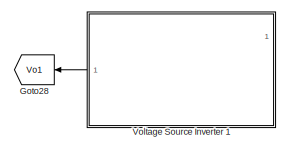
[diagram: root canvas - part 1/6, top center region]
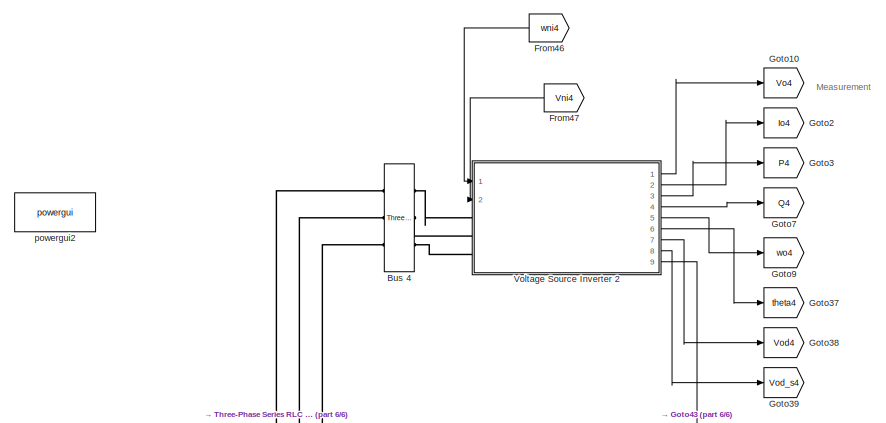
[diagram: root canvas - part 2/6, top right region]
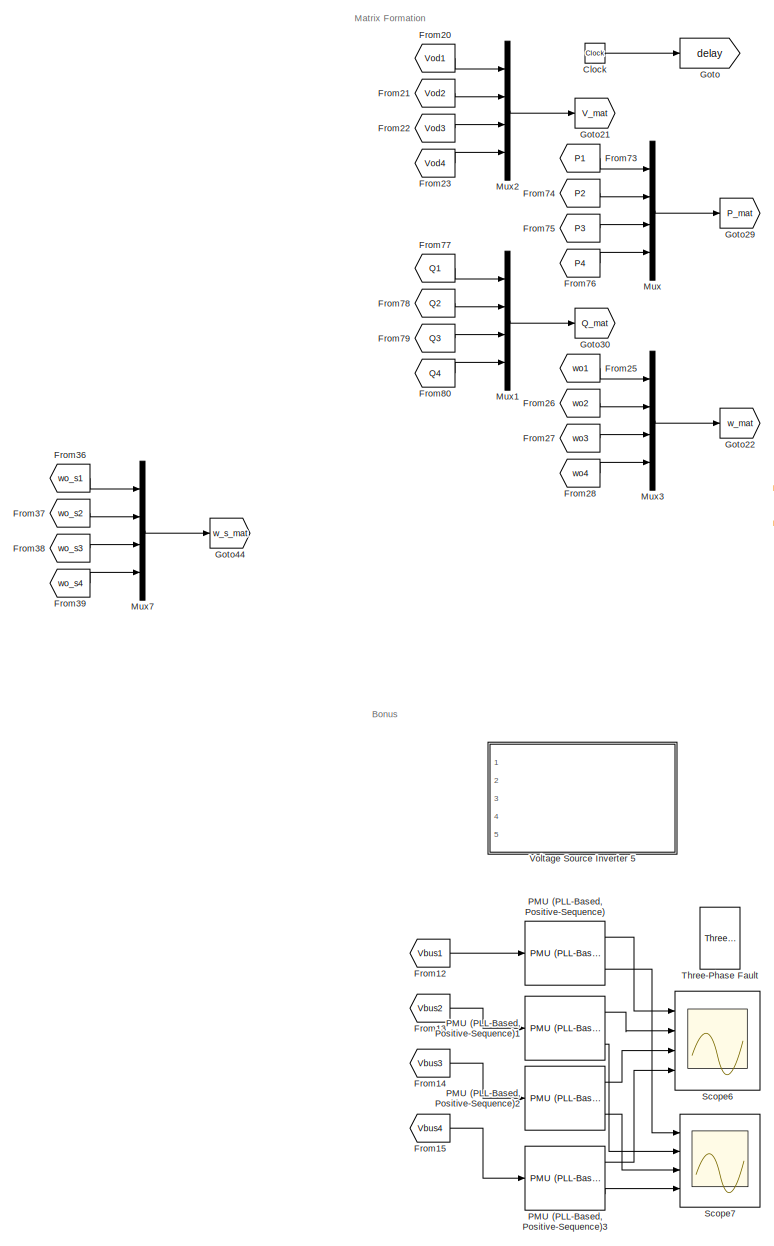
[diagram: root canvas - part 3/6, middle left region]
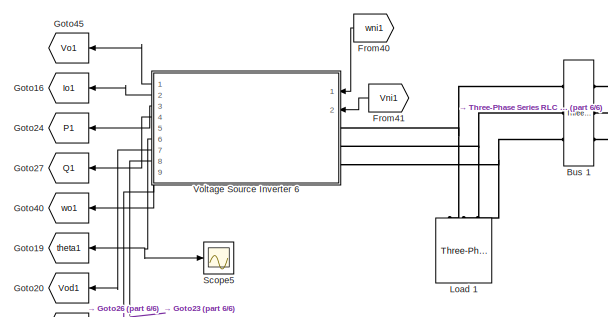
[diagram: root canvas - part 4/6, central region]
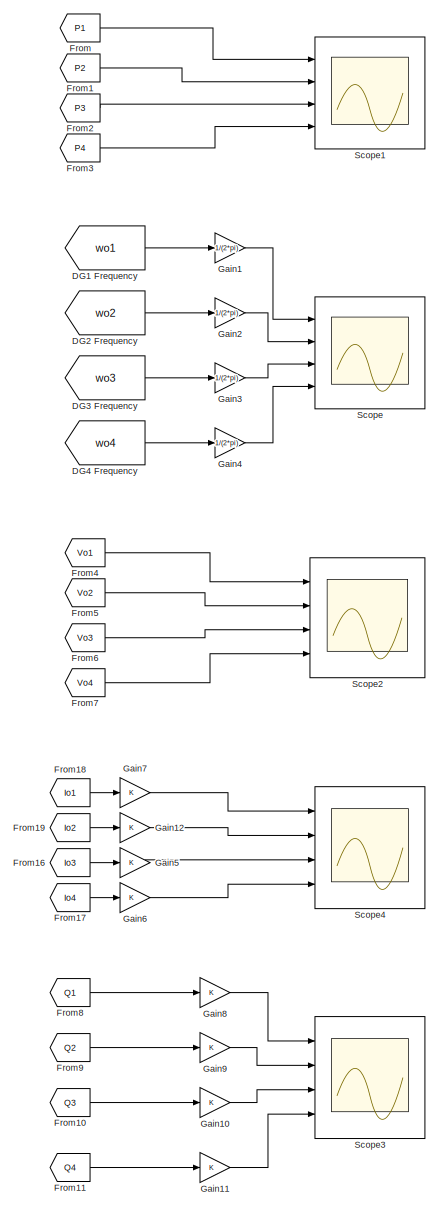
[diagram: root canvas - part 5/6, middle right region]
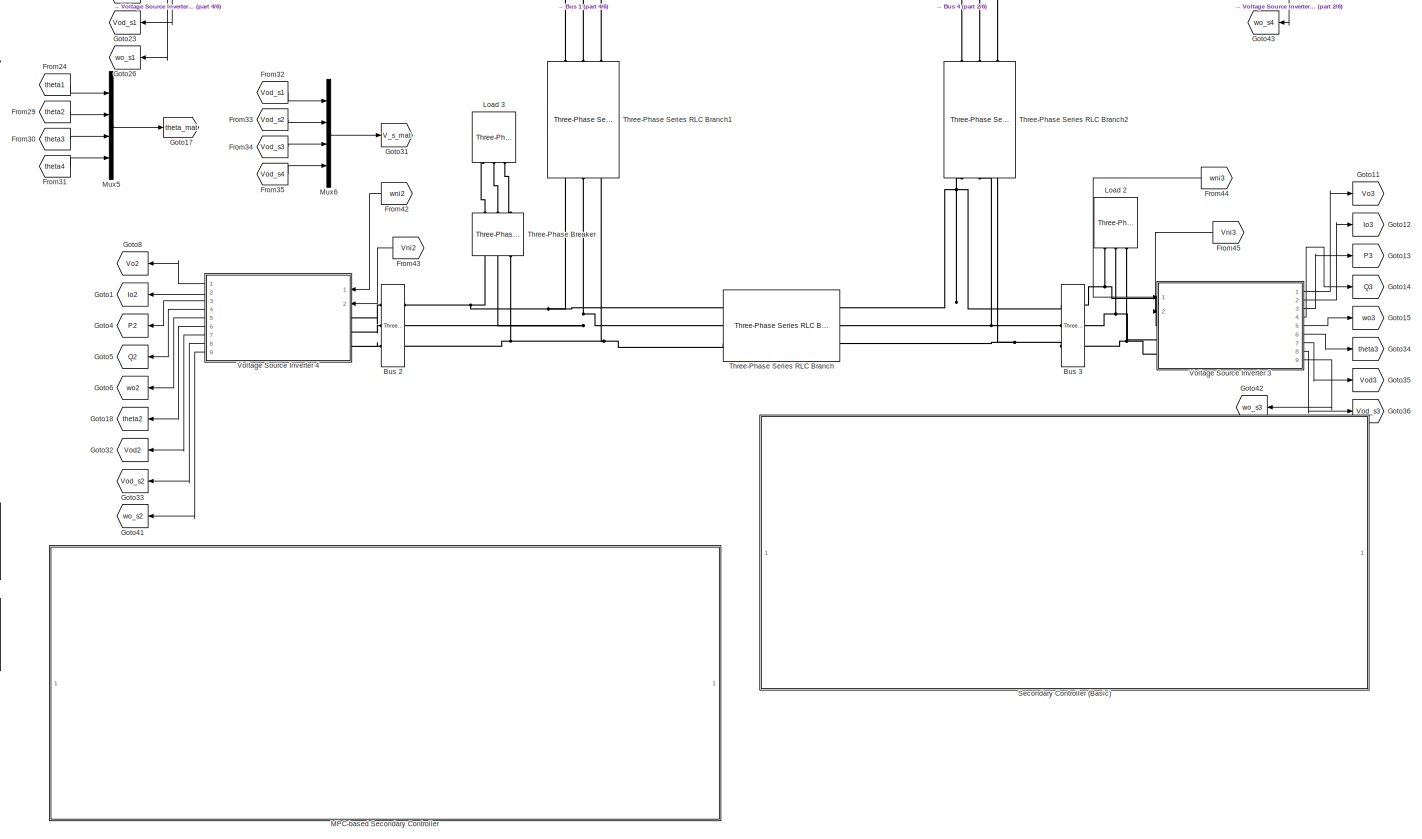
[diagram: root canvas - part 6/6, bottom center region]
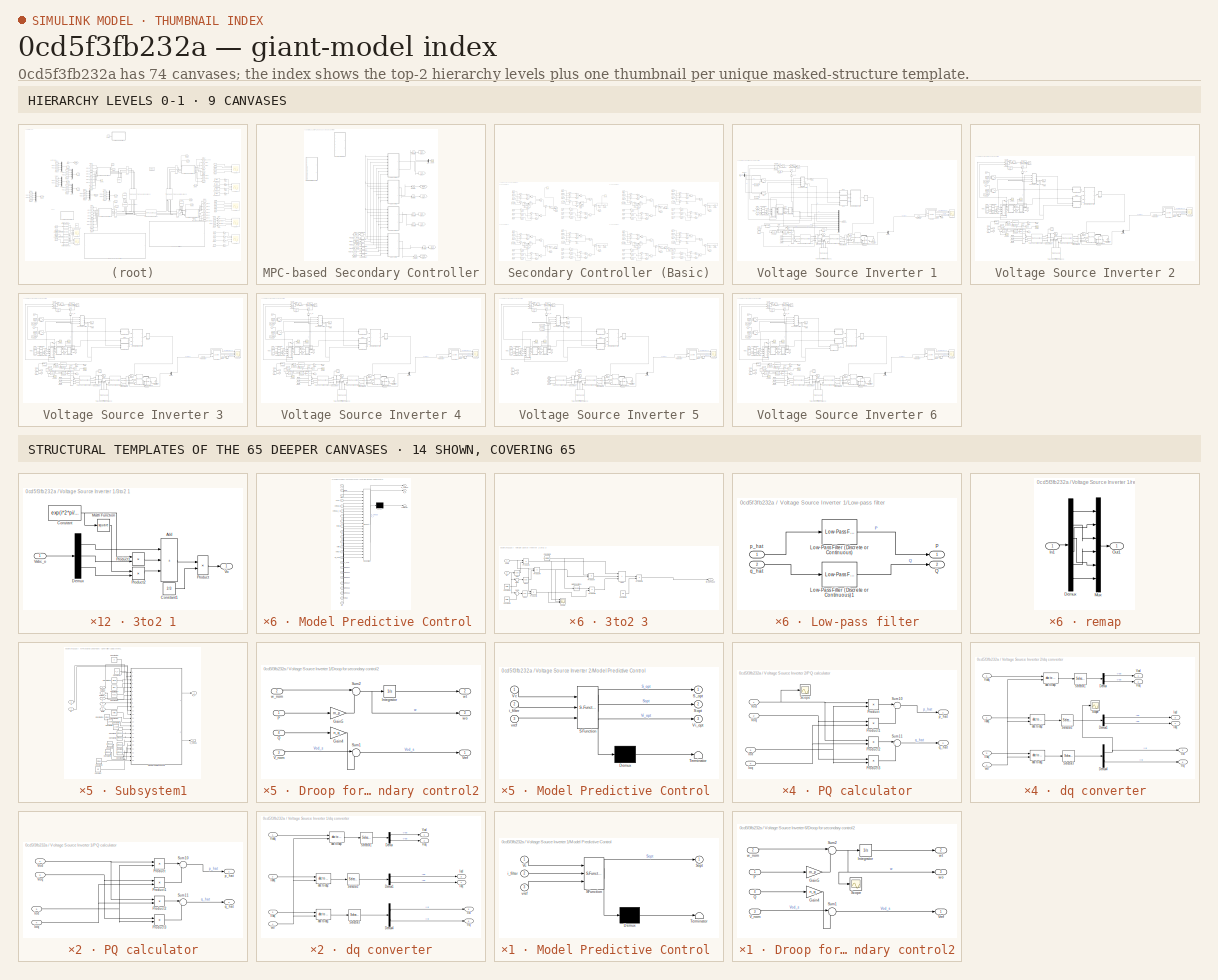
[diagram: thumbnail index - top-2 hierarchy levels (9 canvases) + 14 structural-template representatives of the remaining 65 canvases]
MODEL slx_0cd5f3fb232a
KIND model
CONFIG AbsTol = auto
CONFIG EnableMultiTasking = off
CONFIG FixedStep = auto
CONFIG MaxStep = auto
CONFIG MinStep = auto
CONFIG RelTol = 1e-3
CONFIG SampleTimeConstraint = Unconstrained
CONFIG SolverName = ode23tb
CONFIG StartTime = 0.0
CONFIG StopTime = 10
WORKSPACE source: mxarray member
WORKSPACE Ts: Simulink.Parameter (value not decoded)
WORKSPACE secondary_on: Simulink.Parameter (value not decoded)
BLOCK [Reference] Bus 1  REF=spsThreePhaseVIMeasurementLib/Three-Phase
V-I Measurement
  Ports = [0, 0, 0, 0, 0, 3, 3]
  SourceBlock = spsThreePhaseVIMeasurementLib/Three-Phase\nV-I Measurement
  SourceProductBaseCode = PS
  SourceType = Three-Phase VI Measurement
BLOCK [Reference] Bus 2  REF=spsThreePhaseVIMeasurementLib/Three-Phase
V-I Measurement
  Ports = [0, 0, 0, 0, 0, 3, 3]
  SourceBlock = spsThreePhaseVIMeasurementLib/Three-Phase\nV-I Measurement
  SourceProductBaseCode = PS
  SourceType = Three-Phase VI Measurement
BLOCK [Reference] Bus 3  REF=spsThreePhaseVIMeasurementLib/Three-Phase
V-I Measurement
  Ports = [0, 0, 0, 0, 0, 3, 3]
  SourceBlock = spsThreePhaseVIMeasurementLib/Three-Phase\nV-I Measurement
  SourceProductBaseCode = PS
  SourceType = Three-Phase VI Measurement
BLOCK [Reference] Bus 4  REF=spsThreePhaseVIMeasurementLib/Three-Phase
V-I Measurement
  Ports = [0, 0, 0, 0, 0, 3, 3]
  SourceBlock = spsThreePhaseVIMeasurementLib/Three-Phase\nV-I Measurement
  SourceProductBaseCode = PS
  SourceType = Three-Phase VI Measurement
BLOCK [Clock] Clock
BLOCK [From] DG1 Frequency
  GotoTag = wo1
  TagVisibility = global
BLOCK [From] DG2 Frequency
  GotoTag = wo2
  TagVisibility = global
BLOCK [From] DG3 Frequency
  GotoTag = wo3
  TagVisibility = global
BLOCK [From] DG4 Frequency
  GotoTag = wo4
  TagVisibility = global
BLOCK [From] From
  GotoTag = P1
  TagVisibility = global
BLOCK [From] From1
  GotoTag = P2
  TagVisibility = global
BLOCK [From] From10
  GotoTag = Q3
  TagVisibility = global
BLOCK [From] From11
  GotoTag = Q4
  TagVisibility = global
BLOCK [From] From12
  Commented = on
  GotoTag = Vbus1
  TagVisibility = global
BLOCK [From] From13
  Commented = on
  GotoTag = Vbus2
  TagVisibility = global
BLOCK [From] From14
  Commented = on
  GotoTag = Vbus3
  TagVisibility = global
BLOCK [From] From15
  Commented = on
  GotoTag = Vbus4
  TagVisibility = global
BLOCK [From] From16
  GotoTag = Io3
  TagVisibility = global
BLOCK [From] From17
  GotoTag = Io4
  TagVisibility = global
BLOCK [From] From18
  GotoTag = Io1
  TagVisibility = global
BLOCK [From] From19
  GotoTag = Io2
  TagVisibility = global
BLOCK [From] From2
  GotoTag = P3
  TagVisibility = global
BLOCK [From] From20
  GotoTag = Vod1
  TagVisibility = global
BLOCK [From] From21
  GotoTag = Vod2
  TagVisibility = global
BLOCK [From] From22
  GotoTag = Vod3
  TagVisibility = global
BLOCK [From] From23
  GotoTag = Vod4
  TagVisibility = global
BLOCK [From] From24
  GotoTag = theta1
  TagVisibility = global
BLOCK [From] From25
  GotoTag = wo1
  TagVisibility = global
BLOCK [From] From26
  GotoTag = wo2
  TagVisibility = global
BLOCK [From] From27
  GotoTag = wo3
  TagVisibility = global
BLOCK [From] From28
  GotoTag = wo4
  TagVisibility = global
BLOCK [From] From29
  GotoTag = theta2
BLOCK [From] From3
  GotoTag = P4
  TagVisibility = global
BLOCK [From] From30
  GotoTag = theta3
BLOCK [From] From31
  GotoTag = theta4
BLOCK [From] From32
  GotoTag = Vod_s1
BLOCK [From] From33
  GotoTag = Vod_s2
BLOCK [From] From34
  GotoTag = Vod_s3
BLOCK [From] From35
  GotoTag = Vod_s4
BLOCK [From] From36
  GotoTag = wo_s1
  TagVisibility = global
BLOCK [From] From37
  GotoTag = wo_s2
  TagVisibility = global
BLOCK [From] From38
  GotoTag = wo_s3
  TagVisibility = global
BLOCK [From] From39
  GotoTag = wo_s4
  TagVisibility = global
BLOCK [From] From4
  GotoTag = Vo1
  TagVisibility = global
BLOCK [From] From40
  GotoTag = wni1
  NameLocation = top
BLOCK [From] From41
  GotoTag = Vni1
  NameLocation = top
BLOCK [From] From42
  GotoTag = wni2
  NameLocation = top
BLOCK [From] From43
  GotoTag = Vni2
  NameLocation = top
BLOCK [From] From44
  GotoTag = wni3
  NameLocation = top
BLOCK [From] From45
  GotoTag = Vni3
  NameLocation = top
BLOCK [From] From46
  GotoTag = wni4
  NameLocation = top
BLOCK [From] From47
  GotoTag = Vni4
  NameLocation = top
BLOCK [From] From5
  GotoTag = Vo2
  TagVisibility = global
BLOCK [From] From6
  GotoTag = Vo3
  TagVisibility = global
BLOCK [From] From7
  GotoTag = Vo4
  TagVisibility = global
BLOCK [From] From73
  GotoTag = P1
  TagVisibility = global
BLOCK [From] From74
  GotoTag = P2
  TagVisibility = global
BLOCK [From] From75
  GotoTag = P3
  TagVisibility = global
BLOCK [From] From76
  GotoTag = P4
  TagVisibility = global
BLOCK [From] From77
  GotoTag = Q1
  TagVisibility = global
BLOCK [From] From78
  GotoTag = Q2
  TagVisibility = global
BLOCK [From] From79
  GotoTag = Q3
  TagVisibility = global
BLOCK [From] From8
  GotoTag = Q1
  TagVisibility = global
BLOCK [From] From80
  GotoTag = Q4
  TagVisibility = global
BLOCK [From] From9
  GotoTag = Q2
  TagVisibility = global
BLOCK [Gain] Gain1
  Gain = 1/(2*pi)
BLOCK [Gain] Gain10
BLOCK [Gain] Gain11
BLOCK [Gain] Gain12
BLOCK [Gain] Gain2
  Gain = 1/(2*pi)
BLOCK [Gain] Gain3
  Gain = 1/(2*pi)
BLOCK [Gain] Gain4
  Gain = 1/(2*pi)
BLOCK [Gain] Gain5
BLOCK [Gain] Gain6
BLOCK [Gain] Gain7
BLOCK [Gain] Gain8
BLOCK [Gain] Gain9
BLOCK [Goto] Goto
  GotoTag = delay
  TagVisibility = global
BLOCK [Goto] Goto1
  GotoTag = Io2
  NameLocation = top
  TagVisibility = global
BLOCK [Goto] Goto10
  GotoTag = Vo4
  NameLocation = top
  TagVisibility = global
BLOCK [Goto] Goto11
  GotoTag = Vo3
  NameLocation = top
  TagVisibility = global
BLOCK [Goto] Goto12
  GotoTag = Io3
  NameLocation = top
  TagVisibility = global
BLOCK [Goto] Goto13
  GotoTag = P3
  NameLocation = top
  TagVisibility = global
BLOCK [Goto] Goto14
  GotoTag = Q3
  NameLocation = top
  TagVisibility = global
BLOCK [Goto] Goto15
  GotoTag = wo3
  NameLocation = top
  TagVisibility = global
BLOCK [Goto] Goto16
  GotoTag = Io1
  NameLocation = top
  TagVisibility = global
BLOCK [Goto] Goto17
  GotoTag = theta_mat
  TagVisibility = global
BLOCK [Goto] Goto18
  GotoTag = theta2
  NameLocation = top
BLOCK [Goto] Goto19
  GotoTag = theta1
  NameLocation = top
  TagVisibility = global
BLOCK [Goto] Goto2
  GotoTag = Io4
  NameLocation = top
  TagVisibility = global
BLOCK [Goto] Goto20
  GotoTag = Vod1
  NameLocation = top
  TagVisibility = global
BLOCK [Goto] Goto21
  GotoTag = V_mat
  TagVisibility = global
BLOCK [Goto] Goto22
  GotoTag = w_mat
  TagVisibility = global
BLOCK [Goto] Goto23
  GotoTag = Vod_s1
  NameLocation = top
BLOCK [Goto] Goto24
  GotoTag = P1
  NameLocation = top
  TagVisibility = global
BLOCK [Goto] Goto26
  GotoTag = wo_s1
  NameLocation = top
  TagVisibility = global
BLOCK [Goto] Goto27
  GotoTag = Q1
  NameLocation = top
  TagVisibility = global
BLOCK [Goto] Goto28
  Commented = on
  GotoTag = Vo1
  NameLocation = top
  TagVisibility = global
BLOCK [Goto] Goto29
  GotoTag = P_mat
  TagVisibility = global
BLOCK [Goto] Goto3
  GotoTag = P4
  NameLocation = top
  TagVisibility = global
BLOCK [Goto] Goto30
  GotoTag = Q_mat
  TagVisibility = global
BLOCK [Goto] Goto31
  GotoTag = V_s_mat
  TagVisibility = global
BLOCK [Goto] Goto32
  GotoTag = Vod2
  NameLocation = top
  TagVisibility = global
BLOCK [Goto] Goto33
  GotoTag = Vod_s2
  NameLocation = top
BLOCK [Goto] Goto34
  GotoTag = theta3
BLOCK [Goto] Goto35
  GotoTag = Vod3
  TagVisibility = global
BLOCK [Goto] Goto36
  GotoTag = Vod_s3
BLOCK [Goto] Goto37
  GotoTag = theta4
BLOCK [Goto] Goto38
  GotoTag = Vod4
  TagVisibility = global
BLOCK [Goto] Goto39
  GotoTag = Vod_s4
BLOCK [Goto] Goto4
  GotoTag = P2
  NameLocation = top
  TagVisibility = global
BLOCK [Goto] Goto40
  GotoTag = wo1
  NameLocation = top
  TagVisibility = global
BLOCK [Goto] Goto41
  GotoTag = wo_s2
  NameLocation = top
  TagVisibility = global
BLOCK [Goto] Goto42
  GotoTag = wo_s3
  NameLocation = top
  TagVisibility = global
BLOCK [Goto] Goto43
  GotoTag = wo_s4
  NameLocation = top
  TagVisibility = global
BLOCK [Goto] Goto44
  GotoTag = w_s_mat
  TagVisibility = global
BLOCK [Goto] Goto45
  GotoTag = Vo1
  NameLocation = top
  TagVisibility = global
BLOCK [Goto] Goto5
  GotoTag = Q2
  NameLocation = top
  TagVisibility = global
BLOCK [Goto] Goto6
  GotoTag = wo2
  NameLocation = top
  TagVisibility = global
BLOCK [Goto] Goto7
  GotoTag = Q4
  NameLocation = top
  TagVisibility = global
BLOCK [Goto] Goto8
  GotoTag = Vo2
  NameLocation = top
  TagVisibility = global
BLOCK [Goto] Goto9
  GotoTag = wo4
  NameLocation = top
  TagVisibility = global
BLOCK [Reference] Load 1  REF=spsThreePhaseSeriesRLCLoadLib/Three-Phase
Series RLC Load
  AttributesFormatString = \n
  NameLocation = right
  Ports = [0, 0, 0, 0, 0, 3]
  SourceBlock = spsThreePhaseSeriesRLCLoadLib/Three-Phase\nSeries RLC Load
  SourceProductBaseCode = PS
  SourceType = Three-Phase Series RLC Load
BLOCK [Reference] Load 2  REF=spsThreePhaseSeriesRLCLoadLib/Three-Phase
Series RLC Load
  AttributesFormatString = \n
  NameLocation = right
  Ports = [0, 0, 0, 0, 0, 3]
  SourceBlock = spsThreePhaseSeriesRLCLoadLib/Three-Phase\nSeries RLC Load
  SourceProductBaseCode = PS
  SourceType = Three-Phase Series RLC Load
BLOCK [Reference] Load 3  REF=spsThreePhaseSeriesRLCLoadLib/Three-Phase
Series RLC Load
  AttributesFormatString = \n
  Commented = on
  NameLocation = left
  Ports = [0, 0, 0, 0, 0, 3]
  SourceBlock = spsThreePhaseSeriesRLCLoadLib/Three-Phase\nSeries RLC Load
  SourceProductBaseCode = PS
  SourceType = Three-Phase Series RLC Load
BLOCK [SubSystem] MPC-based Secondary Controller
  Ports = []
  RequestExecContextInheritance = off
BLOCK [From] MPC-based Secondary Controller/From1
  GotoTag = theta_mat
  TagVisibility = global
BLOCK [From] MPC-based Secondary Controller/From2
  GotoTag = w_mat
  TagVisibility = global
BLOCK [From] MPC-based Secondary Controller/From3
  GotoTag = w_s_mat
  TagVisibility = global
BLOCK [From] MPC-based Secondary Controller/From34
  GotoTag = P_mat
  TagVisibility = global
BLOCK [From] MPC-based Secondary Controller/From35
  GotoTag = Q_mat
  TagVisibility = global
BLOCK [From] MPC-based Secondary Controller/From4
  GotoTag = V_mat
  TagVisibility = global
BLOCK [From] MPC-based Secondary Controller/From5
  GotoTag = V_s_mat
  TagVisibility = global
BLOCK [Goto] MPC-based Secondary Controller/Goto23
  Commented = on
  GotoTag = wni1
  TagVisibility = global
BLOCK [Goto] MPC-based Secondary Controller/Goto24
  Commented = on
  GotoTag = Vni1
  TagVisibility = global
BLOCK [Goto] MPC-based Secondary Controller/Goto26
  Commented = on
  GotoTag = wni2
  TagVisibility = global
BLOCK [Goto] MPC-based Secondary Controller/Goto27
  Commented = on
  GotoTag = Vni2
  TagVisibility = global
BLOCK [Goto] MPC-based Secondary Controller/Goto28
  Commented = on
  GotoTag = wni3
  TagVisibility = global
BLOCK [Goto] MPC-based Secondary Controller/Goto31
  Commented = on
  GotoTag = Vni3
  TagVisibility = global
BLOCK [Goto] MPC-based Secondary Controller/Goto32
  Commented = on
  GotoTag = wni4
  TagVisibility = global
BLOCK [Goto] MPC-based Secondary Controller/Goto33
  Commented = on
  GotoTag = Vni4
  TagVisibility = global
BLOCK [Integrator] MPC-based Secondary Controller/Integrator
  Ports = [1, 1]
BLOCK [Integrator] MPC-based Secondary Controller/Integrator2
  Commented = on
  Ports = [1, 1]
BLOCK [Integrator] MPC-based Secondary Controller/Integrator3
  Commented = on
  Ports = [1, 1]
BLOCK [Integrator] MPC-based Secondary Controller/Integrator4
  Commented = on
  Ports = [1, 1]
BLOCK [Integrator] MPC-based Secondary Controller/Integrator5
  Commented = on
  Ports = [1, 1]
BLOCK [Integrator] MPC-based Secondary Controller/Integrator6
  Commented = on
  Ports = [1, 1]
BLOCK [Integrator] MPC-based Secondary Controller/Integrator7
  Commented = on
  Ports = [1, 1]
BLOCK [SubSystem] MPC-based Secondary Controller/Model Predictive Control 
  Commented = on
  ErrorFcn = Stateflow.Translate.translate
  NameLocation = top
  PermitHierarchicalResolution = ExplicitOnly
  Ports = [24, 2]
  RequestExecContextInheritance = off
  SFBlockType = MATLAB Function
BLOCK [Demux] MPC-based Secondary Controller/Model Predictive Control / Demux 
  Outputs = 1
  Ports = [1, 1]
BLOCK [S-Function] MPC-based Secondary Controller/Model Predictive Control / SFunction 
  EnableBusSupport = on
  FunctionName = sf_sfun
  PortCounts = [24 3]
  Ports = [24, 3]
  SFcnIsStateOwnerBlock = off
  SFunctionDeploymentMode = off
  Tag = Stateflow S-Function 9
BLOCK [Terminator] MPC-based Secondary Controller/Model Predictive Control / Terminator 
BLOCK [Inport] MPC-based Secondary Controller/Model Predictive Control /L_f
BLOCK [Inport] MPC-based Secondary Controller/Model Predictive Control /Mpw
  Port = 2
BLOCK [Inport] MPC-based Secondary Controller/Model Predictive Control /Mqv
  Port = 3
BLOCK [Inport] MPC-based Secondary Controller/Model Predictive Control /P
  Port = 10
BLOCK [Inport] MPC-based Secondary Controller/Model Predictive Control /Q
  Port = 11
BLOCK [Inport] MPC-based Secondary Controller/Model Predictive Control /Smax
  Port = 23
BLOCK [Inport] MPC-based Secondary Controller/Model Predictive Control /Tsec
  Port = 4
BLOCK [Inport] MPC-based Secondary Controller/Model Predictive Control /V
  Port = 7
BLOCK [Inport] MPC-based Secondary Controller/Model Predictive Control /V_nom
  Port = 16
BLOCK [Inport] MPC-based Secondary Controller/Model Predictive Control /V_s
  Port = 8
BLOCK [Inport] MPC-based Secondary Controller/Model Predictive Control /Vmax
  Port = 14
BLOCK [Inport] MPC-based Secondary Controller/Model Predictive Control /Vmin
  Port = 13
BLOCK [Inport] MPC-based Secondary Controller/Model Predictive Control /a
  Port = 12
BLOCK [Inport] MPC-based Secondary Controller/Model Predictive Control /aij
  Port = 24
BLOCK [Outport] MPC-based Secondary Controller/Model Predictive Control /d_V
  Port = 2
  VectorParamsAs1DForOutWhenUnconnected = off
BLOCK [Outport] MPC-based Secondary Controller/Model Predictive Control /d_omega
  VectorParamsAs1DForOutWhenUnconnected = off
BLOCK [Inport] MPC-based Secondary Controller/Model Predictive Control /lambda1
  Port = 17
BLOCK [Inport] MPC-based Secondary Controller/Model Predictive Control /lambda2
  Port = 18
BLOCK [Inport] MPC-based Secondary Controller/Model Predictive Control /lambda3
  Port = 19
BLOCK [Inport] MPC-based Secondary Controller/Model Predictive Control /lambda4
  Port = 20
BLOCK [Inport] MPC-based Secondary Controller/Model Predictive Control /lambda5
  Port = 21
BLOCK [Inport] MPC-based Secondary Controller/Model Predictive Control /lambda6
  Port = 22
BLOCK [Inport] MPC-based Secondary Controller/Model Predictive Control /omega
  Port = 5
BLOCK [Inport] MPC-based Secondary Controller/Model Predictive Control /omega_s
  Port = 6
BLOCK [Inport] MPC-based Secondary Controller/Model Predictive Control /theta
  Port = 9
BLOCK [Inport] MPC-based Secondary Controller/Model Predictive Control /w_nom
  Port = 15
BLOCK [Mux] MPC-based Secondary Controller/Mux
  DisplayOption = bar
  Inputs = 2
  Ports = [2, 1]
BLOCK [Scope] MPC-based Secondary Controller/Scope
  Floating = off
  NumInputPorts = 1
  Ports = [1]
  ScopeSpecificationString = Simulink.scopes.TimeScopeBlockCfg('CurrentConfiguration', extmgr.ConfigurationSet(extmgr.Configuration('Core','General UI',true),extmgr.Configuration('Core','Source UI',true),extmgr.Configuration('Sources','WiredSimulink',true,'DataLoggingVariableName','ScopeData1'),extmgr.Configuration('Visuals','Time Domain',true,'SerializedDisplays',{struct('MinYLimReal','-6275.80184','MaxYLimReal','4401.50231'...<+1813ch>
BLOCK [SubSystem] MPC-based Secondary Controller/Subsystem1
  Commented = on
  Ports = [7, 2]
  RequestExecContextInheritance = off
BLOCK [Constant] MPC-based Secondary Controller/Subsystem1/Constant
  Value = aij
BLOCK [Constant] MPC-based Secondary Controller/Subsystem1/Constant1
  Value = Smax
BLOCK [Constant] MPC-based Secondary Controller/Subsystem1/Constant10
  Value = Vmin
BLOCK [Constant] MPC-based Secondary Controller/Subsystem1/Constant11
  Value = Vmax
BLOCK [Constant] MPC-based Secondary Controller/Subsystem1/Constant12
  Value = L_f
BLOCK [Constant] MPC-based Secondary Controller/Subsystem1/Constant13
  Value = Mpw
BLOCK [Constant] MPC-based Secondary Controller/Subsystem1/Constant14
  Value = Mqv
BLOCK [Constant] MPC-based Secondary Controller/Subsystem1/Constant15
  Value = Tsec
BLOCK [Constant] MPC-based Secondary Controller/Subsystem1/Constant16
  Value = a
BLOCK [Constant] MPC-based Secondary Controller/Subsystem1/Constant2
  Value = lambda6
BLOCK [Constant] MPC-based Secondary Controller/Subsystem1/Constant3
  Value = lambda5
BLOCK [Constant] MPC-based Secondary Controller/Subsystem1/Constant4
  Value = lambda4
BLOCK [Constant] MPC-based Secondary Controller/Subsystem1/Constant5
  Value = lambda3
BLOCK [Constant] MPC-based Secondary Controller/Subsystem1/Constant6
  Value = lambda2
BLOCK [Constant] MPC-based Secondary Controller/Subsystem1/Constant7
  Value = lambda1
BLOCK [Constant] MPC-based Secondary Controller/Subsystem1/Constant8
  Value = w_nom
BLOCK [Constant] MPC-based Secondary Controller/Subsystem1/Constant9
  Value = V_nom
BLOCK [SubSystem] MPC-based Secondary Controller/Subsystem1/Model Predictive Control 4
  ErrorFcn = Stateflow.Translate.translate
  NameLocation = top
  PermitHierarchicalResolution = ExplicitOnly
  Ports = [24, 2]
  RequestExecContextInheritance = off
  SFBlockType = MATLAB Function
BLOCK [Demux] MPC-based Secondary Controller/Subsystem1/Model Predictive Control 4/ Demux 
  Outputs = 1
  Ports = [1, 1]
BLOCK [S-Function] MPC-based Secondary Controller/Subsystem1/Model Predictive Control 4/ SFunction 
  EnableBusSupport = on
  FunctionName = sf_sfun
  PortCounts = [24 3]
  Ports = [24, 3]
  SFcnIsStateOwnerBlock = off
  SFunctionDeploymentMode = off
  Tag = Stateflow S-Function 4
BLOCK [Terminator] MPC-based Secondary Controller/Subsystem1/Model Predictive Control 4/ Terminator 
BLOCK [Inport] MPC-based Secondary Controller/Subsystem1/Model Predictive Control 4/L_f
  Port = 2
BLOCK [Inport] MPC-based Secondary Controller/Subsystem1/Model Predictive Control 4/Mpw
  Port = 3
BLOCK [Inport] MPC-based Secondary Controller/Subsystem1/Model Predictive Control 4/Mqv
  Port = 4
BLOCK [Inport] MPC-based Secondary Controller/Subsystem1/Model Predictive Control 4/P
  Port = 11
BLOCK [Inport] MPC-based Secondary Controller/Subsystem1/Model Predictive Control 4/Q
  Port = 12
BLOCK [Inport] MPC-based Secondary Controller/Subsystem1/Model Predictive Control 4/Smax
  Port = 23
BLOCK [Inport] MPC-based Secondary Controller/Subsystem1/Model Predictive Control 4/Tsec
  Port = 5
BLOCK [Inport] MPC-based Secondary Controller/Subsystem1/Model Predictive Control 4/V
  Port = 8
BLOCK [Inport] MPC-based Secondary Controller/Subsystem1/Model Predictive Control 4/V_nom
  Port = 16
BLOCK [Inport] MPC-based Secondary Controller/Subsystem1/Model Predictive Control 4/V_s
  Port = 9
BLOCK [Inport] MPC-based Secondary Controller/Subsystem1/Model Predictive Control 4/Vmax
  Port = 14
BLOCK [Inport] MPC-based Secondary Controller/Subsystem1/Model Predictive Control 4/Vmin
  Port = 13
BLOCK [Inport] MPC-based Secondary Controller/Subsystem1/Model Predictive Control 4/a
BLOCK [Inport] MPC-based Secondary Controller/Subsystem1/Model Predictive Control 4/aij
  Port = 24
BLOCK [Outport] MPC-based Secondary Controller/Subsystem1/Model Predictive Control 4/d_V
BLOCK [Outport] MPC-based Secondary Controller/Subsystem1/Model Predictive Control 4/d_omega
  Port = 2
  VectorParamsAs1DForOutWhenUnconnected = off
BLOCK [Inport] MPC-based Secondary Controller/Subsystem1/Model Predictive Control 4/lambda1
  Port = 17
BLOCK [Inport] MPC-based Secondary Controller/Subsystem1/Model Predictive Control 4/lambda2
  Port = 18
BLOCK [Inport] MPC-based Secondary Controller/Subsystem1/Model Predictive Control 4/lambda3
  Port = 19
BLOCK [Inport] MPC-based Secondary Controller/Subsystem1/Model Predictive Control 4/lambda4
  Port = 20
BLOCK [Inport] MPC-based Secondary Controller/Subsystem1/Model Predictive Control 4/lambda5
  Port = 21
BLOCK [Inport] MPC-based Secondary Controller/Subsystem1/Model Predictive Control 4/lambda6
  Port = 22
BLOCK [Inport] MPC-based Secondary Controller/Subsystem1/Model Predictive Control 4/omega
  Port = 6
BLOCK [Inport] MPC-based Secondary Controller/Subsystem1/Model Predictive Control 4/omega_s
  Port = 7
BLOCK [Inport] MPC-based Secondary Controller/Subsystem1/Model Predictive Control 4/theta
  Port = 10
BLOCK [Inport] MPC-based Secondary Controller/Subsystem1/Model Predictive Control 4/w_nom
  Port = 15
BLOCK [Inport] MPC-based Secondary Controller/Subsystem1/P
  Port = 6
BLOCK [Inport] MPC-based Secondary Controller/Subsystem1/Q
  Port = 7
BLOCK [Inport] MPC-based Secondary Controller/Subsystem1/V
  Port = 3
BLOCK [Inport] MPC-based Secondary Controller/Subsystem1/V_s
  Port = 4
BLOCK [Outport] MPC-based Secondary Controller/Subsystem1/d_V
BLOCK [Outport] MPC-based Secondary Controller/Subsystem1/d_omega
  Port = 2
BLOCK [Inport] MPC-based Secondary Controller/Subsystem1/omega
BLOCK [Inport] MPC-based Secondary Controller/Subsystem1/omega_s
  Port = 2
BLOCK [Inport] MPC-based Secondary Controller/Subsystem1/theta
  Port = 5
BLOCK [SubSystem] MPC-based Secondary Controller/Subsystem2
  Commented = on
  Ports = [7, 2]
  RequestExecContextInheritance = off
BLOCK [Constant] MPC-based Secondary Controller/Subsystem2/Constant
  Value = aij
BLOCK [Constant] MPC-based Secondary Controller/Subsystem2/Constant1
  Value = Smax
BLOCK [Constant] MPC-based Secondary Controller/Subsystem2/Constant10
  Value = Vmin
BLOCK [Constant] MPC-based Secondary Controller/Subsystem2/Constant11
  Value = Vmax
BLOCK [Constant] MPC-based Secondary Controller/Subsystem2/Constant12
  Value = L_f
BLOCK [Constant] MPC-based Secondary Controller/Subsystem2/Constant13
  Value = Mpw
BLOCK [Constant] MPC-based Secondary Controller/Subsystem2/Constant14
  Value = Mqv
BLOCK [Constant] MPC-based Secondary Controller/Subsystem2/Constant15
  Value = Tsec
BLOCK [Constant] MPC-based Secondary Controller/Subsystem2/Constant16
  Value = a
BLOCK [Constant] MPC-based Secondary Controller/Subsystem2/Constant2
  Value = lambda6
BLOCK [Constant] MPC-based Secondary Controller/Subsystem2/Constant3
  Value = lambda5
BLOCK [Constant] MPC-based Secondary Controller/Subsystem2/Constant4
  Value = lambda4
BLOCK [Constant] MPC-based Secondary Controller/Subsystem2/Constant5
  Value = lambda3
BLOCK [Constant] MPC-based Secondary Controller/Subsystem2/Constant6
  Value = lambda2
BLOCK [Constant] MPC-based Secondary Controller/Subsystem2/Constant7
  Value = lambda1
BLOCK [Constant] MPC-based Secondary Controller/Subsystem2/Constant8
  Value = w_nom
BLOCK [Constant] MPC-based Secondary Controller/Subsystem2/Constant9
  Value = V_nom
BLOCK [SubSystem] MPC-based Secondary Controller/Subsystem2/Model Predictive Control 4
  ErrorFcn = Stateflow.Translate.translate
  NameLocation = top
  PermitHierarchicalResolution = ExplicitOnly
  Ports = [24, 2]
  RequestExecContextInheritance = off
  SFBlockType = MATLAB Function
BLOCK [Demux] MPC-based Secondary Controller/Subsystem2/Model Predictive Control 4/ Demux 
  Outputs = 1
  Ports = [1, 1]
BLOCK [S-Function] MPC-based Secondary Controller/Subsystem2/Model Predictive Control 4/ SFunction 
  EnableBusSupport = on
  FunctionName = sf_sfun
  PortCounts = [24 3]
  Ports = [24, 3]
  SFcnIsStateOwnerBlock = off
  SFunctionDeploymentMode = off
  Tag = Stateflow S-Function 6
BLOCK [Terminator] MPC-based Secondary Controller/Subsystem2/Model Predictive Control 4/ Terminator 
BLOCK [Inport] MPC-based Secondary Controller/Subsystem2/Model Predictive Control 4/L_f
  Port = 2
BLOCK [Inport] MPC-based Secondary Controller/Subsystem2/Model Predictive Control 4/Mpw
  Port = 3
BLOCK [Inport] MPC-based Secondary Controller/Subsystem2/Model Predictive Control 4/Mqv
  Port = 4
BLOCK [Inport] MPC-based Secondary Controller/Subsystem2/Model Predictive Control 4/P
  Port = 11
BLOCK [Inport] MPC-based Secondary Controller/Subsystem2/Model Predictive Control 4/Q
  Port = 12
BLOCK [Inport] MPC-based Secondary Controller/Subsystem2/Model Predictive Control 4/Smax
  Port = 23
BLOCK [Inport] MPC-based Secondary Controller/Subsystem2/Model Predictive Control 4/Tsec
  Port = 5
BLOCK [Inport] MPC-based Secondary Controller/Subsystem2/Model Predictive Control 4/V
  Port = 8
BLOCK [Inport] MPC-based Secondary Controller/Subsystem2/Model Predictive Control 4/V_nom
  Port = 16
BLOCK [Inport] MPC-based Secondary Controller/Subsystem2/Model Predictive Control 4/V_s
  Port = 9
BLOCK [Inport] MPC-based Secondary Controller/Subsystem2/Model Predictive Control 4/Vmax
  Port = 14
BLOCK [Inport] MPC-based Secondary Controller/Subsystem2/Model Predictive Control 4/Vmin
  Port = 13
BLOCK [Inport] MPC-based Secondary Controller/Subsystem2/Model Predictive Control 4/a
BLOCK [Inport] MPC-based Secondary Controller/Subsystem2/Model Predictive Control 4/aij
  Port = 24
BLOCK [Outport] MPC-based Secondary Controller/Subsystem2/Model Predictive Control 4/d_V
BLOCK [Outport] MPC-based Secondary Controller/Subsystem2/Model Predictive Control 4/d_omega
  Port = 2
  VectorParamsAs1DForOutWhenUnconnected = off
BLOCK [Inport] MPC-based Secondary Controller/Subsystem2/Model Predictive Control 4/lambda1
  Port = 17
BLOCK [Inport] MPC-based Secondary Controller/Subsystem2/Model Predictive Control 4/lambda2
  Port = 18
BLOCK [Inport] MPC-based Secondary Controller/Subsystem2/Model Predictive Control 4/lambda3
  Port = 19
BLOCK [Inport] MPC-based Secondary Controller/Subsystem2/Model Predictive Control 4/lambda4
  Port = 20
BLOCK [Inport] MPC-based Secondary Controller/Subsystem2/Model Predictive Control 4/lambda5
  Port = 21
BLOCK [Inport] MPC-based Secondary Controller/Subsystem2/Model Predictive Control 4/lambda6
  Port = 22
BLOCK [Inport] MPC-based Secondary Controller/Subsystem2/Model Predictive Control 4/omega
  Port = 6
BLOCK [Inport] MPC-based Secondary Controller/Subsystem2/Model Predictive Control 4/omega_s
  Port = 7
BLOCK [Inport] MPC-based Secondary Controller/Subsystem2/Model Predictive Control 4/theta
  Port = 10
BLOCK [Inport] MPC-based Secondary Controller/Subsystem2/Model Predictive Control 4/w_nom
  Port = 15
BLOCK [Inport] MPC-based Secondary Controller/Subsystem2/P
  Port = 6
BLOCK [Inport] MPC-based Secondary Controller/Subsystem2/Q
  Port = 7
BLOCK [Inport] MPC-based Secondary Controller/Subsystem2/V
  Port = 3
BLOCK [Inport] MPC-based Secondary Controller/Subsystem2/V_s
  Port = 4
BLOCK [Outport] MPC-based Secondary Controller/Subsystem2/d_V
BLOCK [Outport] MPC-based Secondary Controller/Subsystem2/d_omega
  Port = 2
BLOCK [Inport] MPC-based Secondary Controller/Subsystem2/omega
BLOCK [Inport] MPC-based Secondary Controller/Subsystem2/omega_s
  Port = 2
BLOCK [Inport] MPC-based Secondary Controller/Subsystem2/theta
  Port = 5
BLOCK [SubSystem] MPC-based Secondary Controller/Subsystem3
  Ports = [7, 2]
  RequestExecContextInheritance = off
BLOCK [Constant] MPC-based Secondary Controller/Subsystem3/Constant
  Value = aij
BLOCK [Constant] MPC-based Secondary Controller/Subsystem3/Constant1
  Value = Smax
BLOCK [Constant] MPC-based Secondary Controller/Subsystem3/Constant10
  Value = Vmin
BLOCK [Constant] MPC-based Secondary Controller/Subsystem3/Constant11
  Value = Vmax
BLOCK [Constant] MPC-based Secondary Controller/Subsystem3/Constant12
  Value = L_f
BLOCK [Constant] MPC-based Secondary Controller/Subsystem3/Constant13
  Value = Mpw
BLOCK [Constant] MPC-based Secondary Controller/Subsystem3/Constant14
  Value = Mqv
BLOCK [Constant] MPC-based Secondary Controller/Subsystem3/Constant15
  Value = Tsec
BLOCK [Constant] MPC-based Secondary Controller/Subsystem3/Constant16
  Value = a
BLOCK [Constant] MPC-based Secondary Controller/Subsystem3/Constant2
  Value = lambda6
BLOCK [Constant] MPC-based Secondary Controller/Subsystem3/Constant3
  Value = lambda5
BLOCK [Constant] MPC-based Secondary Controller/Subsystem3/Constant4
  Value = lambda4
BLOCK [Constant] MPC-based Secondary Controller/Subsystem3/Constant5
  Value = lambda3
BLOCK [Constant] MPC-based Secondary Controller/Subsystem3/Constant6
  Value = lambda2
BLOCK [Constant] MPC-based Secondary Controller/Subsystem3/Constant7
  Value = lambda1
BLOCK [Constant] MPC-based Secondary Controller/Subsystem3/Constant8
  Value = w_nom
BLOCK [Constant] MPC-based Secondary Controller/Subsystem3/Constant9
  Value = V_nom
BLOCK [SubSystem] MPC-based Secondary Controller/Subsystem3/Model Predictive Control 4
  ErrorFcn = Stateflow.Translate.translate
  NameLocation = top
  PermitHierarchicalResolution = ExplicitOnly
  Ports = [24, 2]
  RequestExecContextInheritance = off
  SFBlockType = MATLAB Function
BLOCK [Demux] MPC-based Secondary Controller/Subsystem3/Model Predictive Control 4/ Demux 
  Outputs = 1
  Ports = [1, 1]
BLOCK [S-Function] MPC-based Secondary Controller/Subsystem3/Model Predictive Control 4/ SFunction 
  EnableBusSupport = on
  FunctionName = sf_sfun
  PortCounts = [24 3]
  Ports = [24, 3]
  SFcnIsStateOwnerBlock = off
  SFunctionDeploymentMode = off
  Tag = Stateflow S-Function 7
BLOCK [Terminator] MPC-based Secondary Controller/Subsystem3/Model Predictive Control 4/ Terminator 
BLOCK [Inport] MPC-based Secondary Controller/Subsystem3/Model Predictive Control 4/L_f
  Port = 2
BLOCK [Inport] MPC-based Secondary Controller/Subsystem3/Model Predictive Control 4/Mpw
  Port = 3
BLOCK [Inport] MPC-based Secondary Controller/Subsystem3/Model Predictive Control 4/Mqv
  Port = 4
BLOCK [Inport] MPC-based Secondary Controller/Subsystem3/Model Predictive Control 4/P
  Port = 11
BLOCK [Inport] MPC-based Secondary Controller/Subsystem3/Model Predictive Control 4/Q
  Port = 12
BLOCK [Inport] MPC-based Secondary Controller/Subsystem3/Model Predictive Control 4/Smax
  Port = 23
BLOCK [Inport] MPC-based Secondary Controller/Subsystem3/Model Predictive Control 4/Tsec
  Port = 5
BLOCK [Inport] MPC-based Secondary Controller/Subsystem3/Model Predictive Control 4/V
  Port = 8
BLOCK [Inport] MPC-based Secondary Controller/Subsystem3/Model Predictive Control 4/V_nom
  Port = 16
BLOCK [Inport] MPC-based Secondary Controller/Subsystem3/Model Predictive Control 4/V_s
  Port = 9
BLOCK [Inport] MPC-based Secondary Controller/Subsystem3/Model Predictive Control 4/Vmax
  Port = 14
BLOCK [Inport] MPC-based Secondary Controller/Subsystem3/Model Predictive Control 4/Vmin
  Port = 13
BLOCK [Inport] MPC-based Secondary Controller/Subsystem3/Model Predictive Control 4/a
BLOCK [Inport] MPC-based Secondary Controller/Subsystem3/Model Predictive Control 4/aij
  Port = 24
BLOCK [Outport] MPC-based Secondary Controller/Subsystem3/Model Predictive Control 4/d_V
BLOCK [Outport] MPC-based Secondary Controller/Subsystem3/Model Predictive Control 4/d_omega
  Port = 2
BLOCK [Inport] MPC-based Secondary Controller/Subsystem3/Model Predictive Control 4/lambda1
  Port = 17
BLOCK [Inport] MPC-based Secondary Controller/Subsystem3/Model Predictive Control 4/lambda2
  Port = 18
BLOCK [Inport] MPC-based Secondary Controller/Subsystem3/Model Predictive Control 4/lambda3
  Port = 19
BLOCK [Inport] MPC-based Secondary Controller/Subsystem3/Model Predictive Control 4/lambda4
  Port = 20
BLOCK [Inport] MPC-based Secondary Controller/Subsystem3/Model Predictive Control 4/lambda5
  Port = 21
BLOCK [Inport] MPC-based Secondary Controller/Subsystem3/Model Predictive Control 4/lambda6
  Port = 22
BLOCK [Inport] MPC-based Secondary Controller/Subsystem3/Model Predictive Control 4/omega
  Port = 6
BLOCK [Inport] MPC-based Secondary Controller/Subsystem3/Model Predictive Control 4/omega_s
  Port = 7
BLOCK [Inport] MPC-based Secondary Controller/Subsystem3/Model Predictive Control 4/theta
  Port = 10
BLOCK [Inport] MPC-based Secondary Controller/Subsystem3/Model Predictive Control 4/w_nom
  Port = 15
BLOCK [Inport] MPC-based Secondary Controller/Subsystem3/P
  Port = 6
BLOCK [Inport] MPC-based Secondary Controller/Subsystem3/Q
  Port = 7
BLOCK [Inport] MPC-based Secondary Controller/Subsystem3/V
  Port = 3
BLOCK [Inport] MPC-based Secondary Controller/Subsystem3/V_s
  Port = 4
BLOCK [Outport] MPC-based Secondary Controller/Subsystem3/d_V
BLOCK [Outport] MPC-based Secondary Controller/Subsystem3/d_omega
  Port = 2
BLOCK [Inport] MPC-based Secondary Controller/Subsystem3/omega
BLOCK [Inport] MPC-based Secondary Controller/Subsystem3/omega_s
  Port = 2
BLOCK [Inport] MPC-based Secondary Controller/Subsystem3/theta
  Port = 5
BLOCK [SubSystem] MPC-based Secondary Controller/Subsystem4
  Commented = on
  Ports = [7, 2]
  RequestExecContextInheritance = off
BLOCK [Constant] MPC-based Secondary Controller/Subsystem4/Constant
  Value = aij
BLOCK [Constant] MPC-based Secondary Controller/Subsystem4/Constant1
  Value = Smax
BLOCK [Constant] MPC-based Secondary Controller/Subsystem4/Constant10
  Value = Vmin
BLOCK [Constant] MPC-based Secondary Controller/Subsystem4/Constant11
  Value = Vmax
BLOCK [Constant] MPC-based Secondary Controller/Subsystem4/Constant12
  Value = L_f
BLOCK [Constant] MPC-based Secondary Controller/Subsystem4/Constant13
  Value = Mpw
BLOCK [Constant] MPC-based Secondary Controller/Subsystem4/Constant14
  Value = Mqv
BLOCK [Constant] MPC-based Secondary Controller/Subsystem4/Constant15
  Value = Tsec
BLOCK [Constant] MPC-based Secondary Controller/Subsystem4/Constant16
  Value = a
BLOCK [Constant] MPC-based Secondary Controller/Subsystem4/Constant2
  Value = lambda6
BLOCK [Constant] MPC-based Secondary Controller/Subsystem4/Constant3
  Value = lambda5
BLOCK [Constant] MPC-based Secondary Controller/Subsystem4/Constant4
  Value = lambda4
BLOCK [Constant] MPC-based Secondary Controller/Subsystem4/Constant5
  Value = lambda3
BLOCK [Constant] MPC-based Secondary Controller/Subsystem4/Constant6
  Value = lambda2
BLOCK [Constant] MPC-based Secondary Controller/Subsystem4/Constant7
  Value = lambda1
BLOCK [Constant] MPC-based Secondary Controller/Subsystem4/Constant8
  Value = w_nom
BLOCK [Constant] MPC-based Secondary Controller/Subsystem4/Constant9
  Value = V_nom
BLOCK [SubSystem] MPC-based Secondary Controller/Subsystem4/Model Predictive Control 4
  ErrorFcn = Stateflow.Translate.translate
  NameLocation = top
  PermitHierarchicalResolution = ExplicitOnly
  Ports = [24, 2]
  RequestExecContextInheritance = off
  SFBlockType = MATLAB Function
BLOCK [Demux] MPC-based Secondary Controller/Subsystem4/Model Predictive Control 4/ Demux 
  Outputs = 1
  Ports = [1, 1]
BLOCK [S-Function] MPC-based Secondary Controller/Subsystem4/Model Predictive Control 4/ SFunction 
  EnableBusSupport = on
  FunctionName = sf_sfun
  PortCounts = [24 3]
  Ports = [24, 3]
  SFcnIsStateOwnerBlock = off
  SFunctionDeploymentMode = off
  Tag = Stateflow S-Function 12
BLOCK [Terminator] MPC-based Secondary Controller/Subsystem4/Model Predictive Control 4/ Terminator 
BLOCK [Inport] MPC-based Secondary Controller/Subsystem4/Model Predictive Control 4/L_f
  Port = 2
BLOCK [Inport] MPC-based Secondary Controller/Subsystem4/Model Predictive Control 4/Mpw
  Port = 3
BLOCK [Inport] MPC-based Secondary Controller/Subsystem4/Model Predictive Control 4/Mqv
  Port = 4
BLOCK [Inport] MPC-based Secondary Controller/Subsystem4/Model Predictive Control 4/P
  Port = 11
BLOCK [Inport] MPC-based Secondary Controller/Subsystem4/Model Predictive Control 4/Q
  Port = 12
BLOCK [Inport] MPC-based Secondary Controller/Subsystem4/Model Predictive Control 4/Smax
  Port = 23
BLOCK [Inport] MPC-based Secondary Controller/Subsystem4/Model Predictive Control 4/Tsec
  Port = 5
BLOCK [Inport] MPC-based Secondary Controller/Subsystem4/Model Predictive Control 4/V
  Port = 8
BLOCK [Inport] MPC-based Secondary Controller/Subsystem4/Model Predictive Control 4/V_nom
  Port = 16
BLOCK [Inport] MPC-based Secondary Controller/Subsystem4/Model Predictive Control 4/V_s
  Port = 9
BLOCK [Inport] MPC-based Secondary Controller/Subsystem4/Model Predictive Control 4/Vmax
  Port = 14
BLOCK [Inport] MPC-based Secondary Controller/Subsystem4/Model Predictive Control 4/Vmin
  Port = 13
BLOCK [Inport] MPC-based Secondary Controller/Subsystem4/Model Predictive Control 4/a
BLOCK [Inport] MPC-based Secondary Controller/Subsystem4/Model Predictive Control 4/aij
  Port = 24
BLOCK [Outport] MPC-based Secondary Controller/Subsystem4/Model Predictive Control 4/d_V
BLOCK [Outport] MPC-based Secondary Controller/Subsystem4/Model Predictive Control 4/d_omega
  Port = 2
  VectorParamsAs1DForOutWhenUnconnected = off
BLOCK [Inport] MPC-based Secondary Controller/Subsystem4/Model Predictive Control 4/lambda1
  Port = 17
BLOCK [Inport] MPC-based Secondary Controller/Subsystem4/Model Predictive Control 4/lambda2
  Port = 18
BLOCK [Inport] MPC-based Secondary Controller/Subsystem4/Model Predictive Control 4/lambda3
  Port = 19
BLOCK [Inport] MPC-based Secondary Controller/Subsystem4/Model Predictive Control 4/lambda4
  Port = 20
BLOCK [Inport] MPC-based Secondary Controller/Subsystem4/Model Predictive Control 4/lambda5
  Port = 21
BLOCK [Inport] MPC-based Secondary Controller/Subsystem4/Model Predictive Control 4/lambda6
  Port = 22
BLOCK [Inport] MPC-based Secondary Controller/Subsystem4/Model Predictive Control 4/omega
  Port = 6
BLOCK [Inport] MPC-based Secondary Controller/Subsystem4/Model Predictive Control 4/omega_s
  Port = 7
BLOCK [Inport] MPC-based Secondary Controller/Subsystem4/Model Predictive Control 4/theta
  Port = 10
BLOCK [Inport] MPC-based Secondary Controller/Subsystem4/Model Predictive Control 4/w_nom
  Port = 15
BLOCK [Inport] MPC-based Secondary Controller/Subsystem4/P
  Port = 6
BLOCK [Inport] MPC-based Secondary Controller/Subsystem4/Q
  Port = 7
BLOCK [Inport] MPC-based Secondary Controller/Subsystem4/V
  Port = 3
BLOCK [Inport] MPC-based Secondary Controller/Subsystem4/V_s
  Port = 4
BLOCK [Outport] MPC-based Secondary Controller/Subsystem4/d_V
BLOCK [Outport] MPC-based Secondary Controller/Subsystem4/d_omega
  Port = 2
BLOCK [Inport] MPC-based Secondary Controller/Subsystem4/omega
BLOCK [Inport] MPC-based Secondary Controller/Subsystem4/omega_s
  Port = 2
BLOCK [Inport] MPC-based Secondary Controller/Subsystem4/theta
  Port = 5
BLOCK [SubSystem] MPC-based Secondary Controller/Subsystem5
  Commented = on
  Ports = [7, 2]
  RequestExecContextInheritance = off
BLOCK [Constant] MPC-based Secondary Controller/Subsystem5/Constant
  Value = aij
BLOCK [Constant] MPC-based Secondary Controller/Subsystem5/Constant1
  Value = Smax
BLOCK [Constant] MPC-based Secondary Controller/Subsystem5/Constant10
  Value = Vmin
BLOCK [Constant] MPC-based Secondary Controller/Subsystem5/Constant11
  Value = Vmax
BLOCK [Constant] MPC-based Secondary Controller/Subsystem5/Constant12
  Value = L_f
BLOCK [Constant] MPC-based Secondary Controller/Subsystem5/Constant13
  Value = Mpw
BLOCK [Constant] MPC-based Secondary Controller/Subsystem5/Constant14
  Value = Mqv
BLOCK [Constant] MPC-based Secondary Controller/Subsystem5/Constant15
  Value = Tsec
BLOCK [Constant] MPC-based Secondary Controller/Subsystem5/Constant16
  Value = a
BLOCK [Constant] MPC-based Secondary Controller/Subsystem5/Constant2
  Value = lambda6
BLOCK [Constant] MPC-based Secondary Controller/Subsystem5/Constant3
  Value = lambda5
BLOCK [Constant] MPC-based Secondary Controller/Subsystem5/Constant4
  Value = lambda4
BLOCK [Constant] MPC-based Secondary Controller/Subsystem5/Constant5
  Value = lambda3
BLOCK [Constant] MPC-based Secondary Controller/Subsystem5/Constant6
  Value = lambda2
BLOCK [Constant] MPC-based Secondary Controller/Subsystem5/Constant7
  Value = lambda1
BLOCK [Constant] MPC-based Secondary Controller/Subsystem5/Constant8
  Value = w_nom
BLOCK [Constant] MPC-based Secondary Controller/Subsystem5/Constant9
  Value = V_nom
BLOCK [SubSystem] MPC-based Secondary Controller/Subsystem5/Model Predictive Control 4
  ErrorFcn = Stateflow.Translate.translate
  NameLocation = top
  PermitHierarchicalResolution = ExplicitOnly
  Ports = [24, 2]
  RequestExecContextInheritance = off
  SFBlockType = MATLAB Function
BLOCK [Demux] MPC-based Secondary Controller/Subsystem5/Model Predictive Control 4/ Demux 
  Outputs = 1
  Ports = [1, 1]
BLOCK [S-Function] MPC-based Secondary Controller/Subsystem5/Model Predictive Control 4/ SFunction 
  EnableBusSupport = on
  FunctionName = sf_sfun
  PortCounts = [24 3]
  Ports = [24, 3]
  SFcnIsStateOwnerBlock = off
  SFunctionDeploymentMode = off
  Tag = Stateflow S-Function 11
BLOCK [Terminator] MPC-based Secondary Controller/Subsystem5/Model Predictive Control 4/ Terminator 
BLOCK [Inport] MPC-based Secondary Controller/Subsystem5/Model Predictive Control 4/L_f
  Port = 2
BLOCK [Inport] MPC-based Secondary Controller/Subsystem5/Model Predictive Control 4/Mpw
  Port = 3
BLOCK [Inport] MPC-based Secondary Controller/Subsystem5/Model Predictive Control 4/Mqv
  Port = 4
BLOCK [Inport] MPC-based Secondary Controller/Subsystem5/Model Predictive Control 4/P
  Port = 11
BLOCK [Inport] MPC-based Secondary Controller/Subsystem5/Model Predictive Control 4/Q
  Port = 12
BLOCK [Inport] MPC-based Secondary Controller/Subsystem5/Model Predictive Control 4/Smax
  Port = 23
BLOCK [Inport] MPC-based Secondary Controller/Subsystem5/Model Predictive Control 4/Tsec
  Port = 5
BLOCK [Inport] MPC-based Secondary Controller/Subsystem5/Model Predictive Control 4/V
  Port = 8
BLOCK [Inport] MPC-based Secondary Controller/Subsystem5/Model Predictive Control 4/V_nom
  Port = 16
BLOCK [Inport] MPC-based Secondary Controller/Subsystem5/Model Predictive Control 4/V_s
  Port = 9
BLOCK [Inport] MPC-based Secondary Controller/Subsystem5/Model Predictive Control 4/Vmax
  Port = 14
BLOCK [Inport] MPC-based Secondary Controller/Subsystem5/Model Predictive Control 4/Vmin
  Port = 13
BLOCK [Inport] MPC-based Secondary Controller/Subsystem5/Model Predictive Control 4/a
BLOCK [Inport] MPC-based Secondary Controller/Subsystem5/Model Predictive Control 4/aij
  Port = 24
BLOCK [Outport] MPC-based Secondary Controller/Subsystem5/Model Predictive Control 4/d_V
BLOCK [Outport] MPC-based Secondary Controller/Subsystem5/Model Predictive Control 4/d_omega
  Port = 2
  VectorParamsAs1DForOutWhenUnconnected = off
BLOCK [Inport] MPC-based Secondary Controller/Subsystem5/Model Predictive Control 4/lambda1
  Port = 17
BLOCK [Inport] MPC-based Secondary Controller/Subsystem5/Model Predictive Control 4/lambda2
  Port = 18
BLOCK [Inport] MPC-based Secondary Controller/Subsystem5/Model Predictive Control 4/lambda3
  Port = 19
BLOCK [Inport] MPC-based Secondary Controller/Subsystem5/Model Predictive Control 4/lambda4
  Port = 20
BLOCK [Inport] MPC-based Secondary Controller/Subsystem5/Model Predictive Control 4/lambda5
  Port = 21
BLOCK [Inport] MPC-based Secondary Controller/Subsystem5/Model Predictive Control 4/lambda6
  Port = 22
BLOCK [Inport] MPC-based Secondary Controller/Subsystem5/Model Predictive Control 4/omega
  Port = 6
BLOCK [Inport] MPC-based Secondary Controller/Subsystem5/Model Predictive Control 4/omega_s
  Port = 7
BLOCK [Inport] MPC-based Secondary Controller/Subsystem5/Model Predictive Control 4/theta
  Port = 10
BLOCK [Inport] MPC-based Secondary Controller/Subsystem5/Model Predictive Control 4/w_nom
  Port = 15
BLOCK [Inport] MPC-based Secondary Controller/Subsystem5/P
  Port = 6
BLOCK [Inport] MPC-based Secondary Controller/Subsystem5/Q
  Port = 7
BLOCK [Inport] MPC-based Secondary Controller/Subsystem5/V
  Port = 3
BLOCK [Inport] MPC-based Secondary Controller/Subsystem5/V_s
  Port = 4
BLOCK [Outport] MPC-based Secondary Controller/Subsystem5/d_V
BLOCK [Outport] MPC-based Secondary Controller/Subsystem5/d_omega
  Port = 2
BLOCK [Inport] MPC-based Secondary Controller/Subsystem5/omega
BLOCK [Inport] MPC-based Secondary Controller/Subsystem5/omega_s
  Port = 2
BLOCK [Inport] MPC-based Secondary Controller/Subsystem5/theta
  Port = 5
BLOCK [ZeroOrderHold] MPC-based Secondary Controller/Zero-Order Hold1
  SampleTime = Tsamp
BLOCK [ZeroOrderHold] MPC-based Secondary Controller/Zero-Order Hold2
  SampleTime = Tsamp
BLOCK [ZeroOrderHold] MPC-based Secondary Controller/Zero-Order Hold3
  SampleTime = Tsamp
BLOCK [ZeroOrderHold] MPC-based Secondary Controller/Zero-Order Hold4
  SampleTime = Tsamp
BLOCK [ZeroOrderHold] MPC-based Secondary Controller/Zero-Order Hold5
  SampleTime = Tsamp
BLOCK [ZeroOrderHold] MPC-based Secondary Controller/Zero-Order Hold6
  SampleTime = Tsamp
BLOCK [ZeroOrderHold] MPC-based Secondary Controller/Zero-Order Hold7
  SampleTime = Tsamp
BLOCK [Mux] Mux
  DisplayOption = bar
  Ports = [4, 1]
BLOCK [Mux] Mux1
  DisplayOption = bar
  Ports = [4, 1]
BLOCK [Mux] Mux2
  DisplayOption = bar
  Ports = [4, 1]
BLOCK [Mux] Mux3
  DisplayOption = bar
  Ports = [4, 1]
BLOCK [Mux] Mux5
  DisplayOption = bar
  Ports = [4, 1]
BLOCK [Mux] Mux6
  DisplayOption = bar
  Ports = [4, 1]
BLOCK [Mux] Mux7
  DisplayOption = bar
  Ports = [4, 1]
BLOCK [Reference] PMU (PLL-Based, Positive-Sequence)  REF=spsPMUPLLBasedPositiveSequenceLib/PMU
(PLL-Based,
Positive-Sequence)
  Commented = on
  Ports = [1, 3]
  SourceBlock = spsPMUPLLBasedPositiveSequenceLib/PMU\n(PLL-Based,\nPositive-Sequence)
  SourceProductBaseCode = PS
  SourceType = PMU (PLL-Based, Positive-Sequence)
BLOCK [Reference] PMU (PLL-Based, Positive-Sequence)1  REF=spsPMUPLLBasedPositiveSequenceLib/PMU
(PLL-Based,
Positive-Sequence)
  Commented = on
  Ports = [1, 3]
  SourceBlock = spsPMUPLLBasedPositiveSequenceLib/PMU\n(PLL-Based,\nPositive-Sequence)
  SourceProductBaseCode = PS
  SourceType = PMU (PLL-Based, Positive-Sequence)
BLOCK [Reference] PMU (PLL-Based, Positive-Sequence)2  REF=spsPMUPLLBasedPositiveSequenceLib/PMU
(PLL-Based,
Positive-Sequence)
  Commented = on
  Ports = [1, 3]
  SourceBlock = spsPMUPLLBasedPositiveSequenceLib/PMU\n(PLL-Based,\nPositive-Sequence)
  SourceProductBaseCode = PS
  SourceType = PMU (PLL-Based, Positive-Sequence)
BLOCK [Reference] PMU (PLL-Based, Positive-Sequence)3  REF=spsPMUPLLBasedPositiveSequenceLib/PMU
(PLL-Based,
Positive-Sequence)
  Commented = on
  Ports = [1, 3]
  SourceBlock = spsPMUPLLBasedPositiveSequenceLib/PMU\n(PLL-Based,\nPositive-Sequence)
  SourceProductBaseCode = PS
  SourceType = PMU (PLL-Based, Positive-Sequence)
BLOCK [Scope] Scope
  Floating = off
  NumInputPorts = 4
  Ports = [4]
  ScopeSpecificationString = Simulink.scopes.TimeScopeBlockCfg('CurrentConfiguration', extmgr.ConfigurationSet(extmgr.Configuration('Core','General UI',true,'FigureColor',[1 1 1]),extmgr.Configuration('Core','Source UI',true),extmgr.Configuration('Sources','WiredSimulink',true,'DataLoggingVariableName','ScopeData1'),extmgr.Configuration('Visuals','Time Domain',true,'SerializedDisplays',{struct('MinYLimReal','49.53435','MaxYLi...<+2346ch>
BLOCK [Scope] Scope1
  Floating = off
  NumInputPorts = 4
  Ports = [4]
  ScopeSpecificationString = Simulink.scopes.TimeScopeBlockCfg('CurrentConfiguration', extmgr.ConfigurationSet(extmgr.Configuration('Core','General UI',true,'FigureColor',[1 1 1]),extmgr.Configuration('Core','Source UI',true),extmgr.Configuration('Sources','WiredSimulink',true,'DataLoggingVariableName','ScopeData2'),extmgr.Configuration('Visuals','Time Domain',true,'SerializedDisplays',{struct('MinYLimReal','19584.29964','Max...<+1974ch>
BLOCK [Scope] Scope2
  Floating = off
  NumInputPorts = 4
  Ports = [4]
  ScopeSpecificationString = Simulink.scopes.TimeScopeBlockCfg('CurrentConfiguration', extmgr.ConfigurationSet(extmgr.Configuration('Core','General UI',true,'FigureColor',[1 1 1]),extmgr.Configuration('Core','Source UI',true),extmgr.Configuration('Sources','WiredSimulink',true,'DataLoggingVariableName','ScopeData3','DataLogging',true),extmgr.Configuration('Visuals','Time Domain',true,'SerializedDisplays',{struct('MinYLimReal'...<+4404ch>
BLOCK [Scope] Scope3
  Floating = off
  NumInputPorts = 4
  Ports = [4]
  ScopeSpecificationString = Simulink.scopes.TimeScopeBlockCfg('CurrentConfiguration', extmgr.ConfigurationSet(extmgr.Configuration('Core','General UI',true),extmgr.Configuration('Core','Source UI',true),extmgr.Configuration('Sources','WiredSimulink',true,'DataLoggingVariableName','ScopeData4'),extmgr.Configuration('Visuals','Time Domain',true,'SerializedDisplays',{struct('MinYLimReal','-4459.17351','MaxYLimReal','28263.31736...<+1829ch>
BLOCK [Scope] Scope4
  Floating = off
  NumInputPorts = 4
  Ports = [4]
  ScopeSpecificationString = Simulink.scopes.TimeScopeBlockCfg('CurrentConfiguration', extmgr.ConfigurationSet(extmgr.Configuration('Core','General UI',true),extmgr.Configuration('Core','Source UI',true),extmgr.Configuration('Sources','WiredSimulink',true,'DataLoggingVariableName','ScopeData1'),extmgr.Configuration('Visuals','Time Domain',true,'SerializedDisplays',{struct('MinYLimReal','-79.68709','MaxYLimReal','83.20742','YL...<+3979ch>
BLOCK [Scope] Scope5
  Floating = off
  NumInputPorts = 1
  Ports = [1]
  ScopeSpecificationString = Simulink.scopes.TimeScopeBlockCfg('CurrentConfiguration', extmgr.ConfigurationSet(extmgr.Configuration('Core','General UI',true),extmgr.Configuration('Core','Source UI',true),extmgr.Configuration('Sources','WiredSimulink',true,'DataLoggingVariableName','ScopeData3'),extmgr.Configuration('Visuals','Time Domain',true,'SerializedDisplays',{struct('MinYLimReal','-0.17141','MaxYLimReal','1.54267','YLab...<+2049ch>
BLOCK [Scope] Scope6
  Commented = on
  Floating = off
  NumInputPorts = 4
  Ports = [4]
  ScopeSpecificationString = Simulink.scopes.TimeScopeBlockCfg('CurrentConfiguration', extmgr.ConfigurationSet(extmgr.Configuration('Core','General UI',true,'FigureColor',[1 1 1]),extmgr.Configuration('Core','Source UI',true),extmgr.Configuration('Sources','WiredSimulink',true,'DataLoggingVariableName','ScopeData6'),extmgr.Configuration('Visuals','Time Domain',true,'SerializedDisplays',{struct('MinYLimReal','0.89706','MaxYLim...<+2081ch>
BLOCK [Scope] Scope7
  Commented = on
  Floating = off
  NumInputPorts = 4
  Ports = [4]
  ScopeSpecificationString = Simulink.scopes.TimeScopeBlockCfg('CurrentConfiguration', extmgr.ConfigurationSet(extmgr.Configuration('Core','General UI',true,'FigureColor',[1 1 1]),extmgr.Configuration('Core','Source UI',true),extmgr.Configuration('Sources','WiredSimulink',true,'DataLoggingVariableName','ScopeData7'),extmgr.Configuration('Visuals','Time Domain',true,'SerializedDisplays',{struct('MinYLimReal','49.48688','MaxYLi...<+1950ch>
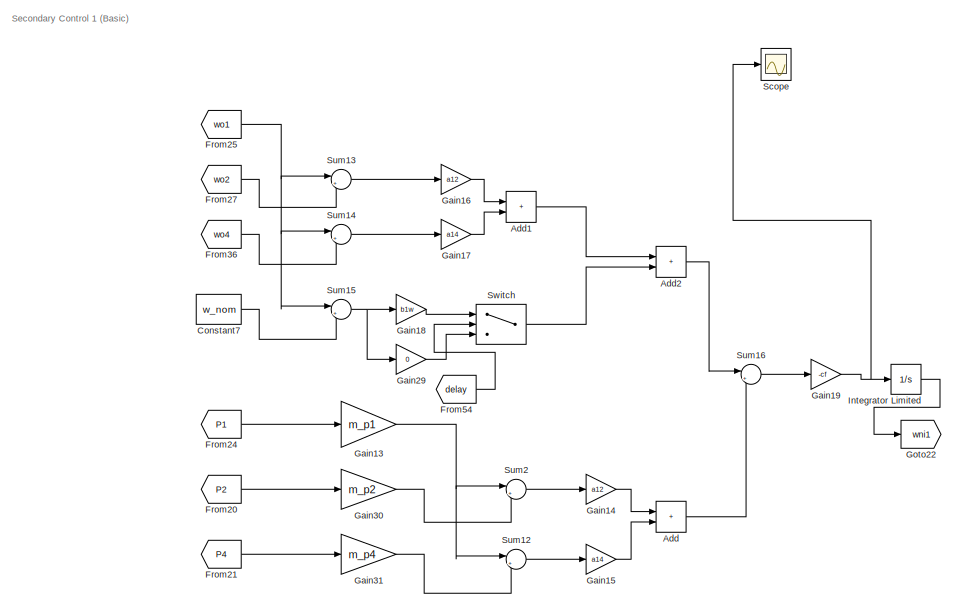
[diagram: Secondary Controller (Basic) - part 1/6, top left region]
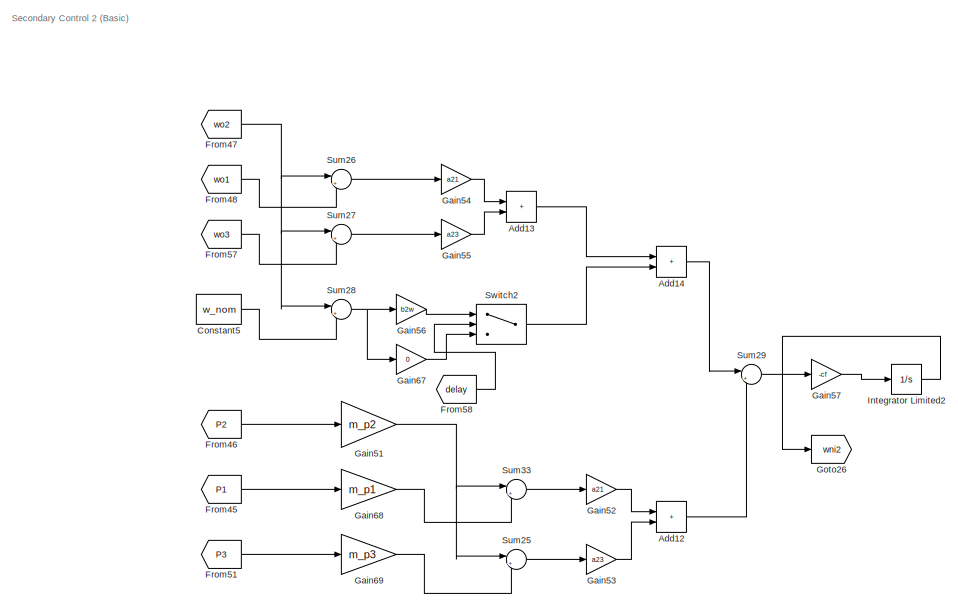
[diagram: Secondary Controller (Basic) - part 2/6, top center region]
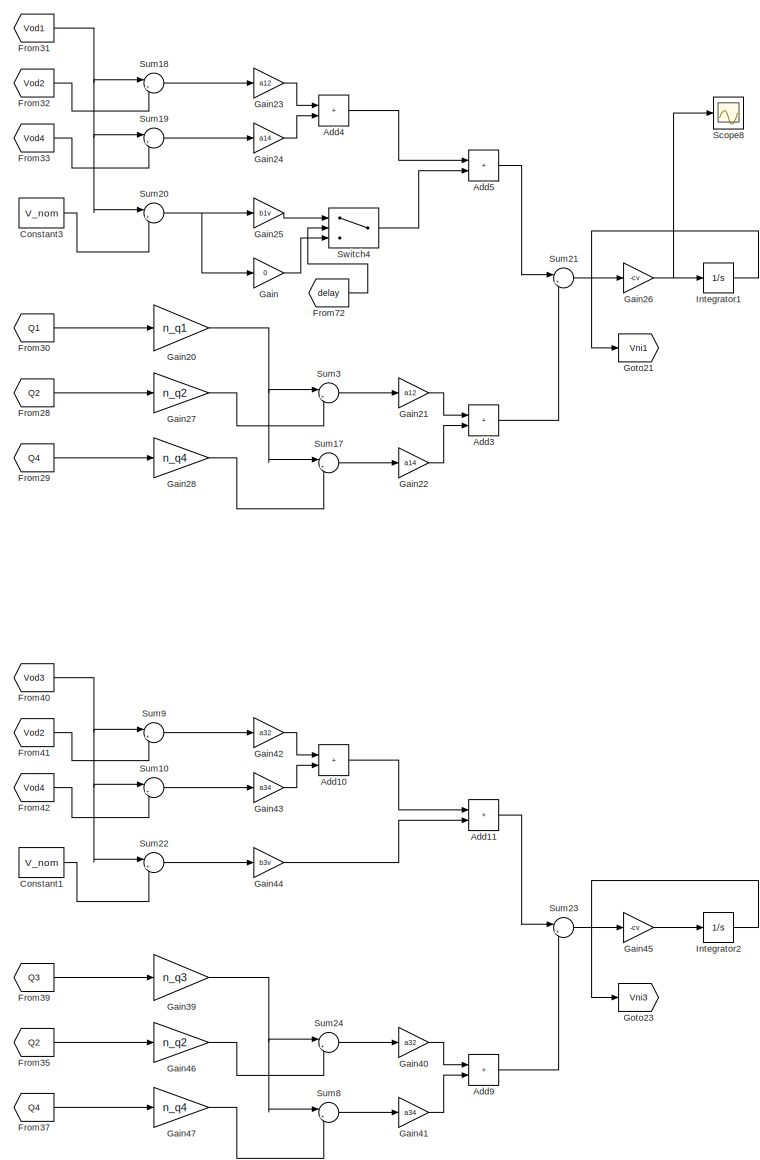
[diagram: Secondary Controller (Basic) - part 3/6, center side, full height]
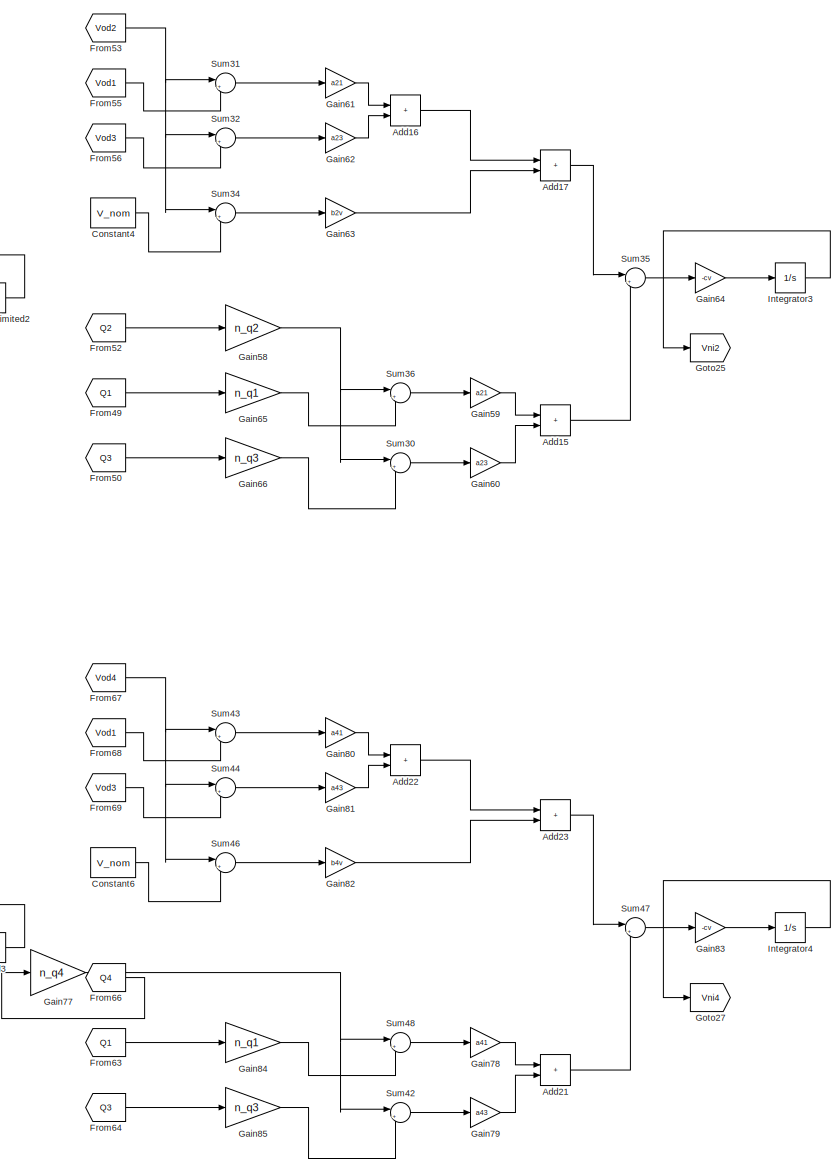
[diagram: Secondary Controller (Basic) - part 4/6, right side, full height]
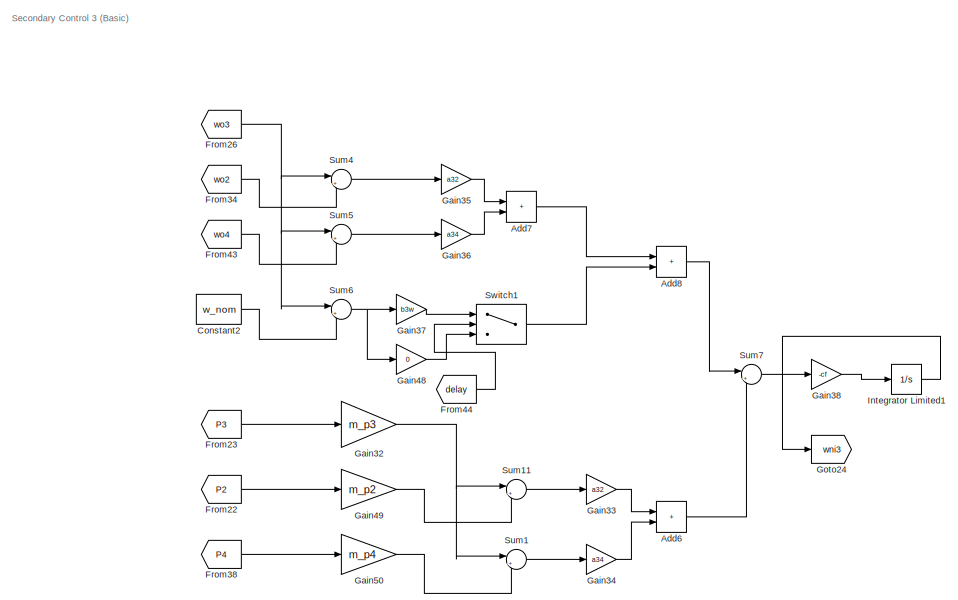
[diagram: Secondary Controller (Basic) - part 5/6, bottom left region]
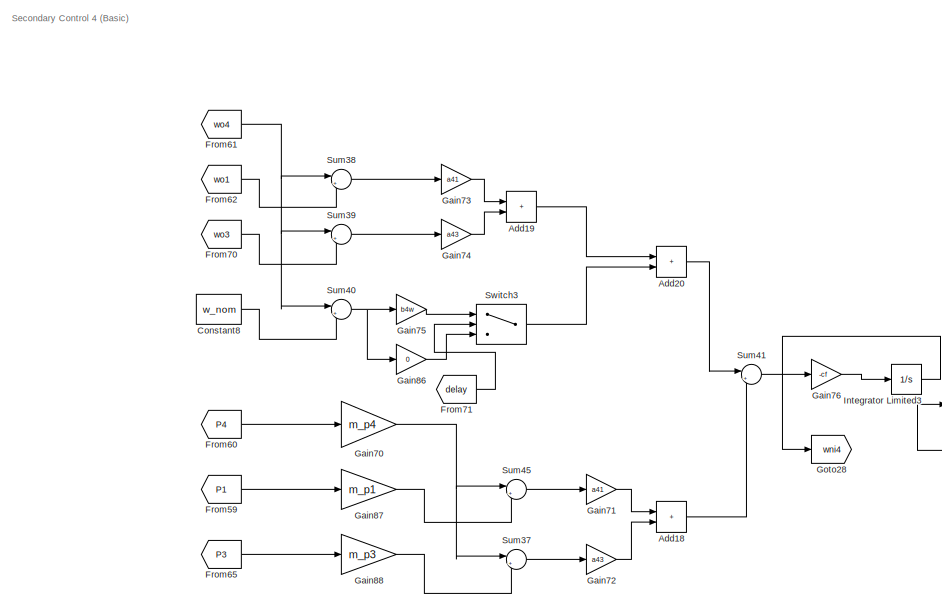
[diagram: Secondary Controller (Basic) - part 6/6, bottom center region]
BLOCK [SubSystem] Secondary Controller (Basic)
  Commented = on
  Ports = []
  RequestExecContextInheritance = off
BLOCK [Sum] Secondary Controller (Basic)/Add
  IconShape = rectangular
  Ports = [2, 1]
BLOCK [Sum] Secondary Controller (Basic)/Add1
  IconShape = rectangular
  Ports = [2, 1]
BLOCK [Sum] Secondary Controller (Basic)/Add10
  IconShape = rectangular
  Ports = [2, 1]
BLOCK [Sum] Secondary Controller (Basic)/Add11
  IconShape = rectangular
  Ports = [2, 1]
BLOCK [Sum] Secondary Controller (Basic)/Add12
  IconShape = rectangular
  Ports = [2, 1]
BLOCK [Sum] Secondary Controller (Basic)/Add13
  IconShape = rectangular
  Ports = [2, 1]
BLOCK [Sum] Secondary Controller (Basic)/Add14
  IconShape = rectangular
  Ports = [2, 1]
BLOCK [Sum] Secondary Controller (Basic)/Add15
  IconShape = rectangular
  Ports = [2, 1]
BLOCK [Sum] Secondary Controller (Basic)/Add16
  IconShape = rectangular
  Ports = [2, 1]
BLOCK [Sum] Secondary Controller (Basic)/Add17
  IconShape = rectangular
  Ports = [2, 1]
BLOCK [Sum] Secondary Controller (Basic)/Add18
  IconShape = rectangular
  Ports = [2, 1]
BLOCK [Sum] Secondary Controller (Basic)/Add19
  IconShape = rectangular
  Ports = [2, 1]
BLOCK [Sum] Secondary Controller (Basic)/Add2
  IconShape = rectangular
  Ports = [2, 1]
BLOCK [Sum] Secondary Controller (Basic)/Add20
  IconShape = rectangular
  Ports = [2, 1]
BLOCK [Sum] Secondary Controller (Basic)/Add21
  IconShape = rectangular
  Ports = [2, 1]
BLOCK [Sum] Secondary Controller (Basic)/Add22
  IconShape = rectangular
  Ports = [2, 1]
BLOCK [Sum] Secondary Controller (Basic)/Add23
  IconShape = rectangular
  Ports = [2, 1]
BLOCK [Sum] Secondary Controller (Basic)/Add3
  IconShape = rectangular
  Ports = [2, 1]
BLOCK [Sum] Secondary Controller (Basic)/Add4
  IconShape = rectangular
  Ports = [2, 1]
BLOCK [Sum] Secondary Controller (Basic)/Add5
  IconShape = rectangular
  Ports = [2, 1]
BLOCK [Sum] Secondary Controller (Basic)/Add6
  IconShape = rectangular
  Ports = [2, 1]
BLOCK [Sum] Secondary Controller (Basic)/Add7
  IconShape = rectangular
  Ports = [2, 1]
BLOCK [Sum] Secondary Controller (Basic)/Add8
  IconShape = rectangular
  Ports = [2, 1]
BLOCK [Sum] Secondary Controller (Basic)/Add9
  IconShape = rectangular
  Ports = [2, 1]
BLOCK [Constant] Secondary Controller (Basic)/Constant1
  Value = V_nom
BLOCK [Constant] Secondary Controller (Basic)/Constant2
  Value = w_nom
BLOCK [Constant] Secondary Controller (Basic)/Constant3
  Value = V_nom
BLOCK [Constant] Secondary Controller (Basic)/Constant4
  Value = V_nom
BLOCK [Constant] Secondary Controller (Basic)/Constant5
  Value = w_nom
BLOCK [Constant] Secondary Controller (Basic)/Constant6
  Value = V_nom
BLOCK [Constant] Secondary Controller (Basic)/Constant7
  Value = w_nom
BLOCK [Constant] Secondary Controller (Basic)/Constant8
  Value = w_nom
BLOCK [From] Secondary Controller (Basic)/From20
  GotoTag = P2
  TagVisibility = global
BLOCK [From] Secondary Controller (Basic)/From21
  GotoTag = P4
  TagVisibility = global
BLOCK [From] Secondary Controller (Basic)/From22
  GotoTag = P2
  TagVisibility = global
BLOCK [From] Secondary Controller (Basic)/From23
  GotoTag = P3
  TagVisibility = global
BLOCK [From] Secondary Controller (Basic)/From24
  GotoTag = P1
  TagVisibility = global
BLOCK [From] Secondary Controller (Basic)/From25
  GotoTag = wo1
  TagVisibility = global
BLOCK [From] Secondary Controller (Basic)/From26
  GotoTag = wo3
  TagVisibility = global
BLOCK [From] Secondary Controller (Basic)/From27
  GotoTag = wo2
  TagVisibility = global
BLOCK [From] Secondary Controller (Basic)/From28
  GotoTag = Q2
  TagVisibility = global
BLOCK [From] Secondary Controller (Basic)/From29
  GotoTag = Q4
  TagVisibility = global
BLOCK [From] Secondary Controller (Basic)/From30
  GotoTag = Q1
  TagVisibility = global
BLOCK [From] Secondary Controller (Basic)/From31
  GotoTag = Vod1
  TagVisibility = global
BLOCK [From] Secondary Controller (Basic)/From32
  GotoTag = Vod2
  TagVisibility = global
BLOCK [From] Secondary Controller (Basic)/From33
  GotoTag = Vod4
  TagVisibility = global
BLOCK [From] Secondary Controller (Basic)/From34
  GotoTag = wo2
  TagVisibility = global
BLOCK [From] Secondary Controller (Basic)/From35
  GotoTag = Q2
  TagVisibility = global
BLOCK [From] Secondary Controller (Basic)/From36
  GotoTag = wo4
  TagVisibility = global
BLOCK [From] Secondary Controller (Basic)/From37
  GotoTag = Q4
  TagVisibility = global
BLOCK [From] Secondary Controller (Basic)/From38
  GotoTag = P4
  TagVisibility = global
BLOCK [From] Secondary Controller (Basic)/From39
  GotoTag = Q3
  TagVisibility = global
BLOCK [From] Secondary Controller (Basic)/From40
  GotoTag = Vod3
  TagVisibility = global
BLOCK [From] Secondary Controller (Basic)/From41
  GotoTag = Vod2
  TagVisibility = global
BLOCK [From] Secondary Controller (Basic)/From42
  GotoTag = Vod4
  TagVisibility = global
BLOCK [From] Secondary Controller (Basic)/From43
  GotoTag = wo4
  TagVisibility = global
BLOCK [From] Secondary Controller (Basic)/From44
  GotoTag = delay
  TagVisibility = global
BLOCK [From] Secondary Controller (Basic)/From45
  GotoTag = P1
  TagVisibility = global
BLOCK [From] Secondary Controller (Basic)/From46
  GotoTag = P2
  TagVisibility = global
BLOCK [From] Secondary Controller (Basic)/From47
  GotoTag = wo2
  TagVisibility = global
BLOCK [From] Secondary Controller (Basic)/From48
  GotoTag = wo1
  TagVisibility = global
BLOCK [From] Secondary Controller (Basic)/From49
  GotoTag = Q1
  TagVisibility = global
BLOCK [From] Secondary Controller (Basic)/From50
  GotoTag = Q3
  TagVisibility = global
BLOCK [From] Secondary Controller (Basic)/From51
  GotoTag = P3
  TagVisibility = global
BLOCK [From] Secondary Controller (Basic)/From52
  GotoTag = Q2
  TagVisibility = global
BLOCK [From] Secondary Controller (Basic)/From53
  GotoTag = Vod2
  TagVisibility = global
BLOCK [From] Secondary Controller (Basic)/From54
  GotoTag = delay
  TagVisibility = global
BLOCK [From] Secondary Controller (Basic)/From55
  GotoTag = Vod1
  TagVisibility = global
BLOCK [From] Secondary Controller (Basic)/From56
  GotoTag = Vod3
  TagVisibility = global
BLOCK [From] Secondary Controller (Basic)/From57
  GotoTag = wo3
  TagVisibility = global
BLOCK [From] Secondary Controller (Basic)/From58
  GotoTag = delay
  TagVisibility = global
BLOCK [From] Secondary Controller (Basic)/From59
  GotoTag = P1
  TagVisibility = global
BLOCK [From] Secondary Controller (Basic)/From60
  GotoTag = P4
  TagVisibility = global
BLOCK [From] Secondary Controller (Basic)/From61
  GotoTag = wo4
  TagVisibility = global
BLOCK [From] Secondary Controller (Basic)/From62
  GotoTag = wo1
  TagVisibility = global
BLOCK [From] Secondary Controller (Basic)/From63
  GotoTag = Q1
  TagVisibility = global
BLOCK [From] Secondary Controller (Basic)/From64
  GotoTag = Q3
  TagVisibility = global
BLOCK [From] Secondary Controller (Basic)/From65
  GotoTag = P3
  TagVisibility = global
BLOCK [From] Secondary Controller (Basic)/From66
  GotoTag = Q4
  TagVisibility = global
BLOCK [From] Secondary Controller (Basic)/From67
  GotoTag = Vod4
  TagVisibility = global
BLOCK [From] Secondary Controller (Basic)/From68
  GotoTag = Vod1
  TagVisibility = global
BLOCK [From] Secondary Controller (Basic)/From69
  GotoTag = Vod3
  TagVisibility = global
BLOCK [From] Secondary Controller (Basic)/From70
  GotoTag = wo3
  TagVisibility = global
BLOCK [From] Secondary Controller (Basic)/From71
  GotoTag = delay
  TagVisibility = global
BLOCK [From] Secondary Controller (Basic)/From72
  GotoTag = delay
  TagVisibility = global
BLOCK [Gain] Secondary Controller (Basic)/Gain
  Gain = 0
BLOCK [Gain] Secondary Controller (Basic)/Gain13
  Gain = m_p1
BLOCK [Gain] Secondary Controller (Basic)/Gain14
  Gain = a12
BLOCK [Gain] Secondary Controller (Basic)/Gain15
  Gain = a14
BLOCK [Gain] Secondary Controller (Basic)/Gain16
  Gain = a12
BLOCK [Gain] Secondary Controller (Basic)/Gain17
  Gain = a14
BLOCK [Gain] Secondary Controller (Basic)/Gain18
  Gain = b1w
BLOCK [Gain] Secondary Controller (Basic)/Gain19
  Gain = -cf
BLOCK [Gain] Secondary Controller (Basic)/Gain20
  Gain = n_q1
BLOCK [Gain] Secondary Controller (Basic)/Gain21
  Gain = a12
BLOCK [Gain] Secondary Controller (Basic)/Gain22
  Gain = a14
BLOCK [Gain] Secondary Controller (Basic)/Gain23
  Gain = a12
BLOCK [Gain] Secondary Controller (Basic)/Gain24
  Gain = a14
BLOCK [Gain] Secondary Controller (Basic)/Gain25
  Gain = b1v
BLOCK [Gain] Secondary Controller (Basic)/Gain26
  Gain = -cv
BLOCK [Gain] Secondary Controller (Basic)/Gain27
  Gain = n_q2
BLOCK [Gain] Secondary Controller (Basic)/Gain28
  Gain = n_q4
BLOCK [Gain] Secondary Controller (Basic)/Gain29
  Gain = 0
BLOCK [Gain] Secondary Controller (Basic)/Gain30
  Gain = m_p2
BLOCK [Gain] Secondary Controller (Basic)/Gain31
  Gain = m_p4
BLOCK [Gain] Secondary Controller (Basic)/Gain32
  Gain = m_p3
BLOCK [Gain] Secondary Controller (Basic)/Gain33
  Gain = a32
BLOCK [Gain] Secondary Controller (Basic)/Gain34
  Gain = a34
BLOCK [Gain] Secondary Controller (Basic)/Gain35
  Gain = a32
BLOCK [Gain] Secondary Controller (Basic)/Gain36
  Gain = a34
BLOCK [Gain] Secondary Controller (Basic)/Gain37
  Gain = b3w
BLOCK [Gain] Secondary Controller (Basic)/Gain38
  Gain = -cf
BLOCK [Gain] Secondary Controller (Basic)/Gain39
  Gain = n_q3
BLOCK [Gain] Secondary Controller (Basic)/Gain40
  Gain = a32
BLOCK [Gain] Secondary Controller (Basic)/Gain41
  Gain = a34
BLOCK [Gain] Secondary Controller (Basic)/Gain42
  Gain = a32
BLOCK [Gain] Secondary Controller (Basic)/Gain43
  Gain = a34
BLOCK [Gain] Secondary Controller (Basic)/Gain44
  Gain = b3v
BLOCK [Gain] Secondary Controller (Basic)/Gain45
  Gain = -cv
BLOCK [Gain] Secondary Controller (Basic)/Gain46
  Gain = n_q2
BLOCK [Gain] Secondary Controller (Basic)/Gain47
  Gain = n_q4
BLOCK [Gain] Secondary Controller (Basic)/Gain48
  Gain = 0
BLOCK [Gain] Secondary Controller (Basic)/Gain49
  Gain = m_p2
BLOCK [Gain] Secondary Controller (Basic)/Gain50
  Gain = m_p4
BLOCK [Gain] Secondary Controller (Basic)/Gain51
  Gain = m_p2
BLOCK [Gain] Secondary Controller (Basic)/Gain52
  Gain = a21
BLOCK [Gain] Secondary Controller (Basic)/Gain53
  Gain = a23
BLOCK [Gain] Secondary Controller (Basic)/Gain54
  Gain = a21
BLOCK [Gain] Secondary Controller (Basic)/Gain55
  Gain = a23
BLOCK [Gain] Secondary Controller (Basic)/Gain56
  Gain = b2w
BLOCK [Gain] Secondary Controller (Basic)/Gain57
  Gain = -cf
BLOCK [Gain] Secondary Controller (Basic)/Gain58
  Gain = n_q2
BLOCK [Gain] Secondary Controller (Basic)/Gain59
  Gain = a21
BLOCK [Gain] Secondary Controller (Basic)/Gain60
  Gain = a23
BLOCK [Gain] Secondary Controller (Basic)/Gain61
  Gain = a21
BLOCK [Gain] Secondary Controller (Basic)/Gain62
  Gain = a23
BLOCK [Gain] Secondary Controller (Basic)/Gain63
  Gain = b2v
BLOCK [Gain] Secondary Controller (Basic)/Gain64
  Gain = -cv
BLOCK [Gain] Secondary Controller (Basic)/Gain65
  Gain = n_q1
BLOCK [Gain] Secondary Controller (Basic)/Gain66
  Gain = n_q3
BLOCK [Gain] Secondary Controller (Basic)/Gain67
  Gain = 0
BLOCK [Gain] Secondary Controller (Basic)/Gain68
  Gain = m_p1
BLOCK [Gain] Secondary Controller (Basic)/Gain69
  Gain = m_p3
BLOCK [Gain] Secondary Controller (Basic)/Gain70
  Gain = m_p4
BLOCK [Gain] Secondary Controller (Basic)/Gain71
  Gain = a41
BLOCK [Gain] Secondary Controller (Basic)/Gain72
  Gain = a43
BLOCK [Gain] Secondary Controller (Basic)/Gain73
  Gain = a41
BLOCK [Gain] Secondary Controller (Basic)/Gain74
  Gain = a43
BLOCK [Gain] Secondary Controller (Basic)/Gain75
  Gain = b4w
BLOCK [Gain] Secondary Controller (Basic)/Gain76
  Gain = -cf
BLOCK [Gain] Secondary Controller (Basic)/Gain77
  Gain = n_q4
BLOCK [Gain] Secondary Controller (Basic)/Gain78
  Gain = a41
BLOCK [Gain] Secondary Controller (Basic)/Gain79
  Gain = a43
BLOCK [Gain] Secondary Controller (Basic)/Gain80
  Gain = a41
BLOCK [Gain] Secondary Controller (Basic)/Gain81
  Gain = a43
BLOCK [Gain] Secondary Controller (Basic)/Gain82
  Gain = b4v
BLOCK [Gain] Secondary Controller (Basic)/Gain83
  Gain = -cv
BLOCK [Gain] Secondary Controller (Basic)/Gain84
  Gain = n_q1
BLOCK [Gain] Secondary Controller (Basic)/Gain85
  Gain = n_q3
BLOCK [Gain] Secondary Controller (Basic)/Gain86
  Gain = 0
BLOCK [Gain] Secondary Controller (Basic)/Gain87
  Gain = m_p1
BLOCK [Gain] Secondary Controller (Basic)/Gain88
  Gain = m_p3
BLOCK [Goto] Secondary Controller (Basic)/Goto21
  GotoTag = Vni1
  TagVisibility = global
BLOCK [Goto] Secondary Controller (Basic)/Goto22
  GotoTag = wni1
  TagVisibility = global
BLOCK [Goto] Secondary Controller (Basic)/Goto23
  GotoTag = Vni3
  TagVisibility = global
BLOCK [Goto] Secondary Controller (Basic)/Goto24
  GotoTag = wni3
  TagVisibility = global
BLOCK [Goto] Secondary Controller (Basic)/Goto25
  GotoTag = Vni2
  TagVisibility = global
BLOCK [Goto] Secondary Controller (Basic)/Goto26
  GotoTag = wni2
  TagVisibility = global
BLOCK [Goto] Secondary Controller (Basic)/Goto27
  GotoTag = Vni4
  TagVisibility = global
BLOCK [Goto] Secondary Controller (Basic)/Goto28
  GotoTag = wni4
  TagVisibility = global
BLOCK [Integrator] Secondary Controller (Basic)/Integrator Limited
  InitialCondition = 50*2*pi
  LowerSaturationLimit = 50*2*pi
  Ports = [1, 1]
  UpperSaturationLimit = 51*2*pi
BLOCK [Integrator] Secondary Controller (Basic)/Integrator Limited1
  InitialCondition = 50*2*pi
  LowerSaturationLimit = 50*2*pi
  Ports = [1, 1]
  UpperSaturationLimit = 51*2*pi
BLOCK [Integrator] Secondary Controller (Basic)/Integrator Limited2
  InitialCondition = 50*2*pi
  LowerSaturationLimit = 50*2*pi
  Ports = [1, 1]
  UpperSaturationLimit = 51*2*pi
BLOCK [Integrator] Secondary Controller (Basic)/Integrator Limited3
  InitialCondition = 50*2*pi
  LowerSaturationLimit = 50*2*pi
  Ports = [1, 1]
  UpperSaturationLimit = 51*2*pi
BLOCK [Integrator] Secondary Controller (Basic)/Integrator1
  InitialCondition = 311
  LowerSaturationLimit = 248.90
  Ports = [1, 1]
  UpperSaturationLimit = 373.35
BLOCK [Integrator] Secondary Controller (Basic)/Integrator2
  InitialCondition = 311
  LowerSaturationLimit = 248.90
  Ports = [1, 1]
  UpperSaturationLimit = 373.35
BLOCK [Integrator] Secondary Controller (Basic)/Integrator3
  InitialCondition = 311
  LowerSaturationLimit = 248.90
  Ports = [1, 1]
  UpperSaturationLimit = 373.35
BLOCK [Integrator] Secondary Controller (Basic)/Integrator4
  InitialCondition = 311
  LowerSaturationLimit = 248.90
  Ports = [1, 1]
  UpperSaturationLimit = 373.35
BLOCK [Scope] Secondary Controller (Basic)/Scope
  Floating = off
  NumInputPorts = 1
  Ports = [1]
  ScopeSpecificationString = Simulink.scopes.TimeScopeBlockCfg('CurrentConfiguration', extmgr.ConfigurationSet(extmgr.Configuration('Core','General UI',true),extmgr.Configuration('Core','Source UI',true),extmgr.Configuration('Sources','WiredSimulink',true,'DataLoggingVariableName','ScopeData1'),extmgr.Configuration('Visuals','Time Domain',true,'SerializedDisplays',{struct('MinYLimReal','-49.29442','MaxYLimReal','232.24454','Y...<+1406ch>
BLOCK [Scope] Secondary Controller (Basic)/Scope8
  Floating = off
  NumInputPorts = 1
  Ports = [1]
  ScopeSpecificationString = Simulink.scopes.TimeScopeBlockCfg('CurrentConfiguration', extmgr.ConfigurationSet(extmgr.Configuration('Core','General UI',true),extmgr.Configuration('Core','Source UI',true),extmgr.Configuration('Sources','WiredSimulink',true,'DataLoggingVariableName','ScopeData2'),extmgr.Configuration('Visuals','Time Domain',true,'SerializedDisplays',{struct('MinYLimReal','-22162.75157','MaxYLimReal','84990.7588...<+1470ch>
BLOCK [Sum] Secondary Controller (Basic)/Sum1
  Inputs = |+-
  Ports = [2, 1]
BLOCK [Sum] Secondary Controller (Basic)/Sum10
  Inputs = |+-
  Ports = [2, 1]
BLOCK [Sum] Secondary Controller (Basic)/Sum11
  Inputs = |+-
  Ports = [2, 1]
BLOCK [Sum] Secondary Controller (Basic)/Sum12
  Inputs = |+-
  Ports = [2, 1]
BLOCK [Sum] Secondary Controller (Basic)/Sum13
  Inputs = |+-
  Ports = [2, 1]
BLOCK [Sum] Secondary Controller (Basic)/Sum14
  Inputs = |+-
  Ports = [2, 1]
BLOCK [Sum] Secondary Controller (Basic)/Sum15
  Inputs = |+-
  Ports = [2, 1]
BLOCK [Sum] Secondary Controller (Basic)/Sum16
  Inputs = |++
  Ports = [2, 1]
BLOCK [Sum] Secondary Controller (Basic)/Sum17
  Inputs = |+-
  Ports = [2, 1]
BLOCK [Sum] Secondary Controller (Basic)/Sum18
  Inputs = |+-
  Ports = [2, 1]
BLOCK [Sum] Secondary Controller (Basic)/Sum19
  Inputs = |+-
  Ports = [2, 1]
BLOCK [Sum] Secondary Controller (Basic)/Sum2
  Inputs = |+-
  Ports = [2, 1]
BLOCK [Sum] Secondary Controller (Basic)/Sum20
  Inputs = |+-
  Ports = [2, 1]
BLOCK [Sum] Secondary Controller (Basic)/Sum21
  Inputs = |++
  Ports = [2, 1]
BLOCK [Sum] Secondary Controller (Basic)/Sum22
  Inputs = |+-
  Ports = [2, 1]
BLOCK [Sum] Secondary Controller (Basic)/Sum23
  Inputs = |++
  Ports = [2, 1]
BLOCK [Sum] Secondary Controller (Basic)/Sum24
  Inputs = |+-
  Ports = [2, 1]
BLOCK [Sum] Secondary Controller (Basic)/Sum25
  Inputs = |+-
  Ports = [2, 1]
BLOCK [Sum] Secondary Controller (Basic)/Sum26
  Inputs = |+-
  Ports = [2, 1]
BLOCK [Sum] Secondary Controller (Basic)/Sum27
  Inputs = |+-
  Ports = [2, 1]
BLOCK [Sum] Secondary Controller (Basic)/Sum28
  Inputs = |+-
  Ports = [2, 1]
BLOCK [Sum] Secondary Controller (Basic)/Sum29
  Inputs = |++
  Ports = [2, 1]
BLOCK [Sum] Secondary Controller (Basic)/Sum3
  Inputs = |+-
  Ports = [2, 1]
BLOCK [Sum] Secondary Controller (Basic)/Sum30
  Inputs = |+-
  Ports = [2, 1]
BLOCK [Sum] Secondary Controller (Basic)/Sum31
  Inputs = |+-
  Ports = [2, 1]
BLOCK [Sum] Secondary Controller (Basic)/Sum32
  Inputs = |+-
  Ports = [2, 1]
BLOCK [Sum] Secondary Controller (Basic)/Sum33
  Inputs = |+-
  Ports = [2, 1]
BLOCK [Sum] Secondary Controller (Basic)/Sum34
  Inputs = |+-
  Ports = [2, 1]
BLOCK [Sum] Secondary Controller (Basic)/Sum35
  Inputs = |++
  Ports = [2, 1]
BLOCK [Sum] Secondary Controller (Basic)/Sum36
  Inputs = |+-
  Ports = [2, 1]
BLOCK [Sum] Secondary Controller (Basic)/Sum37
  Inputs = |+-
  Ports = [2, 1]
BLOCK [Sum] Secondary Controller (Basic)/Sum38
  Inputs = |+-
  Ports = [2, 1]
BLOCK [Sum] Secondary Controller (Basic)/Sum39
  Inputs = |+-
  Ports = [2, 1]
BLOCK [Sum] Secondary Controller (Basic)/Sum4
  Inputs = |+-
  Ports = [2, 1]
BLOCK [Sum] Secondary Controller (Basic)/Sum40
  Inputs = |+-
  Ports = [2, 1]
BLOCK [Sum] Secondary Controller (Basic)/Sum41
  Inputs = |++
  Ports = [2, 1]
BLOCK [Sum] Secondary Controller (Basic)/Sum42
  Inputs = |+-
  Ports = [2, 1]
BLOCK [Sum] Secondary Controller (Basic)/Sum43
  Inputs = |+-
  Ports = [2, 1]
BLOCK [Sum] Secondary Controller (Basic)/Sum44
  Inputs = |+-
  Ports = [2, 1]
BLOCK [Sum] Secondary Controller (Basic)/Sum45
  Inputs = |+-
  Ports = [2, 1]
BLOCK [Sum] Secondary Controller (Basic)/Sum46
  Inputs = |+-
  Ports = [2, 1]
BLOCK [Sum] Secondary Controller (Basic)/Sum47
  Inputs = |++
  Ports = [2, 1]
BLOCK [Sum] Secondary Controller (Basic)/Sum48
  Inputs = |+-
  Ports = [2, 1]
BLOCK [Sum] Secondary Controller (Basic)/Sum5
  Inputs = |+-
  Ports = [2, 1]
BLOCK [Sum] Secondary Controller (Basic)/Sum6
  Inputs = |+-
  Ports = [2, 1]
BLOCK [Sum] Secondary Controller (Basic)/Sum7
  Inputs = |++
  Ports = [2, 1]
BLOCK [Sum] Secondary Controller (Basic)/Sum8
  Inputs = |+-
  Ports = [2, 1]
BLOCK [Sum] Secondary Controller (Basic)/Sum9
  Inputs = |+-
  Ports = [2, 1]
BLOCK [Switch] Secondary Controller (Basic)/Switch
  Criteria = u2 > Threshold
  InputSameDT = off
  SaturateOnIntegerOverflow = off
  Threshold = time_thresh
BLOCK [Switch] Secondary Controller (Basic)/Switch1
  Criteria = u2 > Threshold
  InputSameDT = off
  SaturateOnIntegerOverflow = off
  Threshold = time_thresh
BLOCK [Switch] Secondary Controller (Basic)/Switch2
  Criteria = u2 > Threshold
  InputSameDT = off
  SaturateOnIntegerOverflow = off
  Threshold = time_thresh
BLOCK [Switch] Secondary Controller (Basic)/Switch3
  Criteria = u2 > Threshold
  InputSameDT = off
  SaturateOnIntegerOverflow = off
  Threshold = time_thresh
BLOCK [Switch] Secondary Controller (Basic)/Switch4
  Criteria = u2 > Threshold
  InputSameDT = off
  SaturateOnIntegerOverflow = off
  Threshold = time_thresh
BLOCK [Reference] Three-Phase Breaker  REF=spsThreePhaseBreakerLib/Three-Phase Breaker
  Commented = on
  NameLocation = right
  Ports = [0, 0, 0, 0, 0, 3, 3]
  SourceBlock = spsThreePhaseBreakerLib/Three-Phase Breaker
  SourceProductBaseCode = PS
  SourceType = Three-Phase Breaker
BLOCK [Reference] Three-Phase Fault  REF=spsThreePhaseFaultLib/Three-Phase Fault
  Commented = on
  Ports = [0, 0, 0, 0, 0, 3]
  SourceBlock = spsThreePhaseFaultLib/Three-Phase Fault
  SourceProductBaseCode = PS
  SourceType = Three-Phase Fault
BLOCK [Reference] Three-Phase Series RLC Branch  REF=spsThreePhaseSeriesRLCBranchLib/Three-Phase
Series RLC Branch
  AttributesFormatString = \n
  Ports = [0, 0, 0, 0, 0, 3, 3]
  SourceBlock = spsThreePhaseSeriesRLCBranchLib/Three-Phase\nSeries RLC Branch
  SourceProductBaseCode = PS
  SourceType = Three-Phase Series RLC Branch
BLOCK [Reference] Three-Phase Series RLC Branch1  REF=spsThreePhaseSeriesRLCBranchLib/Three-Phase
Series RLC Branch
  AttributesFormatString = \n
  NameLocation = left
  Ports = [0, 0, 0, 0, 0, 3, 3]
  SourceBlock = spsThreePhaseSeriesRLCBranchLib/Three-Phase\nSeries RLC Branch
  SourceProductBaseCode = PS
  SourceType = Three-Phase Series RLC Branch
BLOCK [Reference] Three-Phase Series RLC Branch2  REF=spsThreePhaseSeriesRLCBranchLib/Three-Phase
Series RLC Branch
  AttributesFormatString = \n
  NameLocation = left
  Ports = [0, 0, 0, 0, 0, 3, 3]
  SourceBlock = spsThreePhaseSeriesRLCBranchLib/Three-Phase\nSeries RLC Branch
  SourceProductBaseCode = PS
  SourceType = Three-Phase Series RLC Branch
BLOCK [SubSystem] Voltage Source Inverter 1
  Commented = on
  NameLocation = top
  Ports = [1, 1, 0, 0, 0, 3]
  RequestExecContextInheritance = off
BLOCK [SubSystem] Voltage Source Inverter 1/3to2 1
  Ports = [1, 1]
  RequestExecContextInheritance = off
BLOCK [Sum] Voltage Source Inverter 1/3to2 1/Add
  IconShape = rectangular
  Inputs = +++
  Ports = [3, 1]
BLOCK [Constant] Voltage Source Inverter 1/3to2 1/Constant
  Value = exp(i*2*pi/3)
BLOCK [Constant] Voltage Source Inverter 1/3to2 1/Constant1
  Value = 2/3
BLOCK [Demux] Voltage Source Inverter 1/3to2 1/Demux
  NameLocation = top
  Outputs = 3
  Ports = [1, 3]
BLOCK [Math] Voltage Source Inverter 1/3to2 1/Math Function
  Operator = square
  Ports = [1, 1]
  SignedPower = on
BLOCK [Product] Voltage Source Inverter 1/3to2 1/Product
  Ports = [2, 1]
  RndMeth = Zero
BLOCK [Product] Voltage Source Inverter 1/3to2 1/Product1
  Ports = [2, 1]
  RndMeth = Zero
BLOCK [Product] Voltage Source Inverter 1/3to2 1/Product2
  Ports = [2, 1]
  RndMeth = Zero
BLOCK [Inport] Voltage Source Inverter 1/3to2 1/Vabc_o 
BLOCK [Outport] Voltage Source Inverter 1/3to2 1/Vo
  VectorParamsAs1DForOutWhenUnconnected = off
BLOCK [SubSystem] Voltage Source Inverter 1/3to2 2
  Ports = [1, 1]
  RequestExecContextInheritance = off
BLOCK [Sum] Voltage Source Inverter 1/3to2 2/Add
  IconShape = rectangular
  Inputs = +++
  Ports = [3, 1]
BLOCK [Constant] Voltage Source Inverter 1/3to2 2/Constant
  Value = exp(i*2*pi/3)
BLOCK [Constant] Voltage Source Inverter 1/3to2 2/Constant1
  Value = 2/3
BLOCK [Demux] Voltage Source Inverter 1/3to2 2/Demux
  NameLocation = top
  Outputs = 3
  Ports = [1, 3]
BLOCK [Inport] Voltage Source Inverter 1/3to2 2/Iabc_o 
BLOCK [Outport] Voltage Source Inverter 1/3to2 2/Il
  VectorParamsAs1DForOutWhenUnconnected = off
BLOCK [Math] Voltage Source Inverter 1/3to2 2/Math Function
  Operator = square
  Ports = [1, 1]
  SignedPower = on
BLOCK [Product] Voltage Source Inverter 1/3to2 2/Product
  Ports = [2, 1]
  RndMeth = Zero
BLOCK [Product] Voltage Source Inverter 1/3to2 2/Product1
  Ports = [2, 1]
  RndMeth = Zero
BLOCK [Product] Voltage Source Inverter 1/3to2 2/Product2
  Ports = [2, 1]
  RndMeth = Zero
BLOCK [SubSystem] Voltage Source Inverter 1/3to2 3
  Ports = [2, 1]
  RequestExecContextInheritance = off
BLOCK [Sum] Voltage Source Inverter 1/3to2 3/Add1
  IconShape = rectangular
  Inputs = +++
  Ports = [3, 1]
BLOCK [Constant] Voltage Source Inverter 1/3to2 3/Constant2
  Value = 2*pi/3
BLOCK [Constant] Voltage Source Inverter 1/3to2 3/Constant3
  Value = -2*pi/3
BLOCK [Constant] Voltage Source Inverter 1/3to2 3/Constant4
  Value = exp(i*2*pi/3)
BLOCK [Constant] Voltage Source Inverter 1/3to2 3/Constant5
  Value = 2/3
BLOCK [Trigonometry] Voltage Source Inverter 1/3to2 3/Cos
  Operator = cos
  Ports = [1, 1]
BLOCK [Trigonometry] Voltage Source Inverter 1/3to2 3/Cos1
  Operator = cos
  Ports = [1, 1]
BLOCK [Trigonometry] Voltage Source Inverter 1/3to2 3/Cos2
  Operator = cos
  Ports = [1, 1]
BLOCK [Math] Voltage Source Inverter 1/3to2 3/Math Function1
  Operator = square
  Ports = [1, 1]
  SignedPower = on
BLOCK [Product] Voltage Source Inverter 1/3to2 3/Product3
  Ports = [2, 1]
  RndMeth = Zero
BLOCK [Product] Voltage Source Inverter 1/3to2 3/Product4
  Ports = [2, 1]
  RndMeth = Zero
BLOCK [Product] Voltage Source Inverter 1/3to2 3/Product5
  Ports = [2, 1]
  RndMeth = Zero
BLOCK [Product] Voltage Source Inverter 1/3to2 3/Product6
  Ports = [2, 1]
  RndMeth = Zero
BLOCK [Product] Voltage Source Inverter 1/3to2 3/Product7
  Ports = [2, 1]
  RndMeth = Zero
BLOCK [Product] Voltage Source Inverter 1/3to2 3/Product8
  Ports = [2, 1]
  RndMeth = Zero
BLOCK [Scope] Voltage Source Inverter 1/3to2 3/Scope
  Floating = off
  NumInputPorts = 3
  Ports = [3]
  ScopeSpecificationString = Simulink.scopes.TimeScopeBlockCfg('CurrentConfiguration', extmgr.ConfigurationSet(extmgr.Configuration('Core','General UI',true),extmgr.Configuration('Core','Source UI',true),extmgr.Configuration('Sources','WiredSimulink',true,'DataLoggingVariableName','ScopeData4'),extmgr.Configuration('Visuals','Time Domain',true,'SerializedDisplays',{struct('MinYLimReal','-388.90873','MaxYLimReal','388.90873','...<+2068ch>  <repeated x6 — deduplicated; at blocks: Scope>
BLOCK [Sum] Voltage Source Inverter 1/3to2 3/Sum
  Inputs = |++
  Ports = [2, 1]
BLOCK [Sum] Voltage Source Inverter 1/3to2 3/Sum1
  Inputs = |++
  Ports = [2, 1]
BLOCK [Inport] Voltage Source Inverter 1/3to2 3/single 
BLOCK [Outport] Voltage Source Inverter 1/3to2 3/threePhase
  VectorParamsAs1DForOutWhenUnconnected = off
BLOCK [Inport] Voltage Source Inverter 1/3to2 3/wt 
  Port = 2
BLOCK [Reference] Voltage Source Inverter 1/Bus 1  REF=spsThreePhaseVIMeasurementLib/Three-Phase
V-I Measurement
  Ports = [0, 2, 0, 0, 0, 3, 3]
  SourceBlock = spsThreePhaseVIMeasurementLib/Three-Phase\nV-I Measurement
  SourceProductBaseCode = PS
  SourceType = Three-Phase VI Measurement
BLOCK [Clock] Voltage Source Inverter 1/Clock
  Decimation = 1
BLOCK [PMIOPort] Voltage Source Inverter 1/Conn1
  Side = Left
BLOCK [PMIOPort] Voltage Source Inverter 1/Conn2
  Port = 2
  Side = Left
BLOCK [PMIOPort] Voltage Source Inverter 1/Conn3
  Port = 3
  Side = Left
BLOCK [Reference] Voltage Source Inverter 1/Counter  REF=dspswit3/Counter
  Ports = [2, 1]
  SourceBlock = dspswit3/Counter
  SourceProductBaseCode = DS
  SourceType = Counter
BLOCK [Reference] Voltage Source Inverter 1/DC Voltage Source1  REF=spsDCVoltageSourceLib/DC Voltage Source
  NameLocation = right
  Ports = [0, 0, 0, 0, 0, 1, 1]
  SourceBlock = spsDCVoltageSourceLib/DC Voltage Source
  SourceProductBaseCode = PS
  SourceType = DC Voltage Source
BLOCK [Demux] Voltage Source Inverter 1/Demux
  Outputs = 3
  Ports = [1, 3]
BLOCK [Demux] Voltage Source Inverter 1/Demux1
  Outputs = 3
  Ports = [1, 3]
BLOCK [Product] Voltage Source Inverter 1/Divide
  Inputs = */
  Ports = [2, 1]
BLOCK [SubSystem] Voltage Source Inverter 1/Droop for secondary control2
  Ports = [4, 3]
  RequestExecContextInheritance = off
BLOCK [Gain] Voltage Source Inverter 1/Droop for secondary control2/Gain4
  Gain = n_q
BLOCK [Gain] Voltage Source Inverter 1/Droop for secondary control2/Gain5
  Gain = m_p
BLOCK [Integrator] Voltage Source Inverter 1/Droop for secondary control2/Integrator
  Ports = [1, 1]
  WrapState = on
  WrappedStateLowerValue = 0
  WrappedStateUpperValue = 2*pi
BLOCK [Inport] Voltage Source Inverter 1/Droop for secondary control2/P
BLOCK [Inport] Voltage Source Inverter 1/Droop for secondary control2/Q
  Port = 4
BLOCK [Sum] Voltage Source Inverter 1/Droop for secondary control2/Sum1
  Inputs = |+-
  Ports = [2, 1]
BLOCK [Sum] Voltage Source Inverter 1/Droop for secondary control2/Sum2
  Inputs = |+-
  Ports = [2, 1]
BLOCK [Inport] Voltage Source Inverter 1/Droop for secondary control2/V_nom
  Port = 3
BLOCK [Outport] Voltage Source Inverter 1/Droop for secondary control2/Vref
BLOCK [Inport] Voltage Source Inverter 1/Droop for secondary control2/w_nom
  Port = 2
BLOCK [Outport] Voltage Source Inverter 1/Droop for secondary control2/wo
  Port = 3
BLOCK [Outport] Voltage Source Inverter 1/Droop for secondary control2/wt
  Port = 2
BLOCK [From] Voltage Source Inverter 1/From2
  GotoTag = Vo
BLOCK [From] Voltage Source Inverter 1/From3
  GotoTag = Io
BLOCK [From] Voltage Source Inverter 1/From4
  GotoTag = Il
BLOCK [From] Voltage Source Inverter 1/From5
  GotoTag = Vo
BLOCK [From] Voltage Source Inverter 1/From6
  GotoTag = Io
BLOCK [Gain] Voltage Source Inverter 1/Gain
  Gain = -1
BLOCK [Gain] Voltage Source Inverter 1/Gain1
  Gain = 3/2
BLOCK [Gain] Voltage Source Inverter 1/Gain2
  Gain = 3/2
BLOCK [Gain] Voltage Source Inverter 1/Gain3
  Gain = -1
BLOCK [Gain] Voltage Source Inverter 1/Gain4
  Gain = 2*pi
BLOCK [Goto] Voltage Source Inverter 1/Goto10
  GotoTag = Il
BLOCK [Goto] Voltage Source Inverter 1/Goto2
  GotoTag = Vo
BLOCK [Goto] Voltage Source Inverter 1/Goto7
  GotoTag = Io
BLOCK [TransferFcn] Voltage Source Inverter 1/High-Pass Filter
  Denominator = w_c_high
  Numerator = [1 0]
BLOCK [Inport] Voltage Source Inverter 1/In
BLOCK [Constant] Voltage Source Inverter 1/LD_ref
  Value = LD_ref
BLOCK [SubSystem] Voltage Source Inverter 1/Low-pass filter
  Ports = [2, 2]
  RequestExecContextInheritance = off
BLOCK [Reference] Voltage Source Inverter 1/Low-pass filter/Low-Pass Filter (Discrete or Continuous)  REF=eeGeneralControl/Low-Pass Filter
(Discrete or Continuous)
  Ports = [1, 1]
  SourceBlock = eeGeneralControl/Low-Pass Filter\n(Discrete or Continuous)
  SourceProductBaseCode = PS
  SourceType = Low-Pass Filter (Discrete or Continuous)
BLOCK [Reference] Voltage Source Inverter 1/Low-pass filter/Low-Pass Filter (Discrete or Continuous)1  REF=eeGeneralControl/Low-Pass Filter
(Discrete or Continuous)
  Ports = [1, 1]
  SourceBlock = eeGeneralControl/Low-Pass Filter\n(Discrete or Continuous)
  SourceProductBaseCode = PS
  SourceType = Low-Pass Filter (Discrete or Continuous)
BLOCK [Outport] Voltage Source Inverter 1/Low-pass filter/P
BLOCK [Outport] Voltage Source Inverter 1/Low-pass filter/Q
  Port = 2
BLOCK [Inport] Voltage Source Inverter 1/Low-pass filter/p_hat
BLOCK [Inport] Voltage Source Inverter 1/Low-pass filter/q_hat
  Port = 2
BLOCK [SubSystem] Voltage Source Inverter 1/Model Predictive Control 
  ErrorFcn = Stateflow.Translate.translate
  NameLocation = top
  PermitHierarchicalResolution = ExplicitOnly
  Ports = [3, 1]
  RequestExecContextInheritance = off
  SFBlockType = MATLAB Function
  TreatAsAtomicUnit = on
BLOCK [Demux] Voltage Source Inverter 1/Model Predictive Control / Demux 
  Outputs = 1
  Ports = [1, 1]
BLOCK [S-Function] Voltage Source Inverter 1/Model Predictive Control / SFunction 
  EnableBusSupport = on
  FunctionName = sf_sfun
  Parameters = Cfilter,Lfilter,Vdc,modT
  PortCounts = [3 2]
  Ports = [3, 2]
  SFcnIsStateOwnerBlock = off
  SFunctionDeploymentMode = off
  Tag = Stateflow S-Function 2
BLOCK [Terminator] Voltage Source Inverter 1/Model Predictive Control / Terminator 
BLOCK [Outport] Voltage Source Inverter 1/Model Predictive Control /Sopt
  VectorParamsAs1DForOutWhenUnconnected = off
BLOCK [Inport] Voltage Source Inverter 1/Model Predictive Control /Vc
BLOCK [Inport] Voltage Source Inverter 1/Model Predictive Control /i_filter
  Port = 2
BLOCK [Inport] Voltage Source Inverter 1/Model Predictive Control /vref
  Port = 3
BLOCK [Mux] Voltage Source Inverter 1/Mux
  DisplayOption = bar
  Inputs = 9
  Ports = [9, 1]
BLOCK [Outport] Voltage Source Inverter 1/Output 9x1
BLOCK [Reference] Voltage Source Inverter 1/PLL (3ph)  REF=spsPLL3phLib/PLL
(3ph)
  Ports = [1, 2]
  SourceBlock = spsPLL3phLib/PLL\n(3ph)
  SourceProductBaseCode = PS
  SourceType = PLL (3ph)
BLOCK [Reference] Voltage Source Inverter 1/PLL (3ph)1  REF=spsPLL3phLib/PLL
(3ph)
  Ports = [1, 2]
  SourceBlock = spsPLL3phLib/PLL\n(3ph)
  SourceProductBaseCode = PS
  SourceType = PLL (3ph)
BLOCK [SubSystem] Voltage Source Inverter 1/PQ calculator
  Ports = [4, 2]
  RequestExecContextInheritance = off
BLOCK [Inport] Voltage Source Inverter 1/PQ calculator/Iod
  Port = 3
BLOCK [Inport] Voltage Source Inverter 1/PQ calculator/Ioq
  Port = 4
BLOCK [Product] Voltage Source Inverter 1/PQ calculator/Product
  Ports = [2, 1]
BLOCK [Product] Voltage Source Inverter 1/PQ calculator/Product1
  Ports = [2, 1]
BLOCK [Product] Voltage Source Inverter 1/PQ calculator/Product2
  Ports = [2, 1]
BLOCK [Product] Voltage Source Inverter 1/PQ calculator/Product3
  Ports = [2, 1]
BLOCK [Sum] Voltage Source Inverter 1/PQ calculator/Sum10
  Inputs = |++
  Ports = [2, 1]
BLOCK [Sum] Voltage Source Inverter 1/PQ calculator/Sum11
  Inputs = |+-
  Ports = [2, 1]
BLOCK [Inport] Voltage Source Inverter 1/PQ calculator/Vod
BLOCK [Inport] Voltage Source Inverter 1/PQ calculator/Voq
  Port = 2
BLOCK [Outport] Voltage Source Inverter 1/PQ calculator/p_hat
BLOCK [Outport] Voltage Source Inverter 1/PQ calculator/q_hat
  Port = 2
BLOCK [Product] Voltage Source Inverter 1/Product
  Ports = [2, 1]
BLOCK [Constant] Voltage Source Inverter 1/Reset every 1 second
BLOCK [Scope] Voltage Source Inverter 1/Scope5
  Floating = off
  NumInputPorts = 4
  Ports = [4]
  ScopeSpecificationString = Simulink.scopes.TimeScopeBlockCfg('CurrentConfiguration', extmgr.ConfigurationSet(extmgr.Configuration('Core','General UI',true,'FigureColor',[1 1 1]),extmgr.Configuration('Core','Source UI',true),extmgr.Configuration('Sources','WiredSimulink',true,'DataLoggingVariableName','ScopeData2'),extmgr.Configuration('Visuals','Time Domain',true,'TimeAxisLabels','All','SerializedDisplays',{struct('MinYLimR...<+4437ch>  <repeated x6 — deduplicated; at blocks: Scope5>
BLOCK [Selector] Voltage Source Inverter 1/Selector1
  IndexOptions = Index vector (dialog)
  Indices = [1]
  InputPortWidth = 3
  OutputSizes = 1
  Ports = [1, 1]
BLOCK [Reference] Voltage Source Inverter 1/Series RLC Branch  REF=spsSeriesRLCBranchLib/Series RLC Branch
  NameLocation = left
  Ports = [0, 0, 0, 0, 0, 1, 1]
  SourceBlock = spsSeriesRLCBranchLib/Series RLC Branch
  SourceProductBaseCode = PS
  SourceType = Series RLC Branch
BLOCK [Math] Voltage Source Inverter 1/Square
  Operator = square
  Ports = [1, 1]
BLOCK [Sqrt] Voltage Source Inverter 1/Square Root
BLOCK [Math] Voltage Source Inverter 1/Square1
  Operator = square
  Ports = [1, 1]
BLOCK [Sum] Voltage Source Inverter 1/Sum
  Inputs = |+-
  Ports = [2, 1]
BLOCK [Sum] Voltage Source Inverter 1/Sum2
  Inputs = |+-
  Ports = [2, 1]
BLOCK [Sum] Voltage Source Inverter 1/Sum3
  Inputs = |++
  Ports = [2, 1]
BLOCK [Sum] Voltage Source Inverter 1/Sum8
  Inputs = |++
  Ports = [2, 1]
BLOCK [Switch] Voltage Source Inverter 1/Switch
  Criteria = u2 > Threshold
  InputSameDT = off
  SaturateOnIntegerOverflow = off
  Threshold = time_thresh
BLOCK [Switch] Voltage Source Inverter 1/Switch1
  Criteria = u2 > Threshold
  InputSameDT = off
  SaturateOnIntegerOverflow = off
  Threshold = time_thresh
BLOCK [Reference] Voltage Source Inverter 1/Three-Phase Series RLC Branch  REF=spsThreePhaseSeriesRLCBranchLib/Three-Phase
Series RLC Branch
  AttributesFormatString = \n
  Ports = [0, 0, 0, 0, 0, 3, 3]
  SourceBlock = spsThreePhaseSeriesRLCBranchLib/Three-Phase\nSeries RLC Branch
  SourceProductBaseCode = PS
  SourceType = Three-Phase Series RLC Branch
BLOCK [Reference] Voltage Source Inverter 1/Three-Phase Series RLC Branch1  REF=spsThreePhaseSeriesRLCBranchLib/Three-Phase
Series RLC Branch
  AttributesFormatString = \n
  Ports = [0, 0, 0, 0, 0, 3, 3]
  SourceBlock = spsThreePhaseSeriesRLCBranchLib/Three-Phase\nSeries RLC Branch
  SourceProductBaseCode = PS
  SourceType = Three-Phase Series RLC Branch
BLOCK [Reference] Voltage Source Inverter 1/Three-Phase Series RLC Branch2  REF=spsThreePhaseSeriesRLCBranchLib/Three-Phase
Series RLC Branch
  AttributesFormatString = \n
  NameLocation = left
  Ports = [0, 0, 0, 0, 0, 3, 3]
  SourceBlock = spsThreePhaseSeriesRLCBranchLib/Three-Phase\nSeries RLC Branch
  SourceProductBaseCode = PS
  SourceType = Three-Phase Series RLC Branch
BLOCK [Reference] Voltage Source Inverter 1/Three-Phase V-I Measurement  REF=spsThreePhaseVIMeasurementLib/Three-Phase
V-I Measurement
  Ports = [0, 2, 0, 0, 0, 3, 3]
  SourceBlock = spsThreePhaseVIMeasurementLib/Three-Phase\nV-I Measurement
  SourceProductBaseCode = PS
  SourceType = Three-Phase VI Measurement
BLOCK [Reference] Voltage Source Inverter 1/Three-Phase V-I Measurement1  REF=spsThreePhaseVIMeasurementLib/Three-Phase
V-I Measurement
  Ports = [0, 2, 0, 0, 0, 3, 3]
  SourceBlock = spsThreePhaseVIMeasurementLib/Three-Phase\nV-I Measurement
  SourceProductBaseCode = PS
  SourceType = Three-Phase VI Measurement
BLOCK [Reference] Voltage Source Inverter 1/Two-Level Converter  REF=spsTwoLevelConverterLib/Two-Level Converter
  Ports = [2, 0, 0, 0, 0, 3, 2]
  SourceBlock = spsTwoLevelConverterLib/Two-Level Converter
  SourceProductBaseCode = PS
  SourceType = Two-Level Converter
BLOCK [Constant] Voltage Source Inverter 1/V_nom1
  Value = V_nom
BLOCK [ZeroOrderHold] Voltage Source Inverter 1/Zero-Order Hold
  SampleTime = modT
BLOCK [ZeroOrderHold] Voltage Source Inverter 1/Zero-Order Hold1
  SampleTime = modT
BLOCK [ZeroOrderHold] Voltage Source Inverter 1/Zero-Order Hold2
  SampleTime = modT
BLOCK [Reference] Voltage Source Inverter 1/abc to dq0  REF=spsabctodq0Lib/abc to dq0
  Ports = [2, 1]
  SourceBlock = spsabctodq0Lib/abc to dq0
  SourceProductBaseCode = PS
  SourceType = abc to dq0 Transformation
BLOCK [SubSystem] Voltage Source Inverter 1/dq converter
  Ports = [4, 6]
  RequestExecContextInheritance = off
BLOCK [Demux] Voltage Source Inverter 1/dq converter/Demux
  Outputs = 2
  Ports = [1, 2]
BLOCK [Demux] Voltage Source Inverter 1/dq converter/Demux1
  Outputs = 2
  Ports = [1, 2]
BLOCK [Demux] Voltage Source Inverter 1/dq converter/Demux4
  Outputs = 2
  Ports = [1, 2]
BLOCK [Outport] Voltage Source Inverter 1/dq converter/Ild
  Port = 5
BLOCK [Inport] Voltage Source Inverter 1/dq converter/Ildq
  Port = 3
BLOCK [Outport] Voltage Source Inverter 1/dq converter/Ilq
  Port = 6
BLOCK [Outport] Voltage Source Inverter 1/dq converter/Iod
  Port = 3
BLOCK [Inport] Voltage Source Inverter 1/dq converter/Iodq
  Port = 2
BLOCK [Outport] Voltage Source Inverter 1/dq converter/Ioq
  Port = 4
BLOCK [Selector] Voltage Source Inverter 1/dq converter/Selector1
  IndexOptions = Index vector (dialog)
  Indices = [1 2]
  InputPortWidth = 3
  OutputSizes = 1
  Ports = [1, 1]
BLOCK [Selector] Voltage Source Inverter 1/dq converter/Selector2
  IndexOptions = Index vector (dialog)
  Indices = [1 2]
  InputPortWidth = 3
  OutputSizes = 1
  Ports = [1, 1]
BLOCK [Selector] Voltage Source Inverter 1/dq converter/Selector3
  IndexOptions = Index vector (dialog)
  Indices = [1 2]
  InputPortWidth = 3
  OutputSizes = 1
  Ports = [1, 1]
BLOCK [Outport] Voltage Source Inverter 1/dq converter/Vod
BLOCK [Inport] Voltage Source Inverter 1/dq converter/Vodq
BLOCK [Outport] Voltage Source Inverter 1/dq converter/Voq
  Port = 2
BLOCK [Reference] Voltage Source Inverter 1/dq converter/abc to dq0  REF=spsabctodq0Lib/abc to dq0
  Ports = [2, 1]
  SourceBlock = spsabctodq0Lib/abc to dq0
  SourceProductBaseCode = PS
  SourceType = abc to dq0 Transformation
BLOCK [Reference] Voltage Source Inverter 1/dq converter/abc to dq1  REF=spsabctodq0Lib/abc to dq0
  Ports = [2, 1]
  SourceBlock = spsabctodq0Lib/abc to dq0
  SourceProductBaseCode = PS
  SourceType = abc to dq0 Transformation
BLOCK [Reference] Voltage Source Inverter 1/dq converter/abc to dq2  REF=spsabctodq0Lib/abc to dq0
  Ports = [2, 1]
  SourceBlock = spsabctodq0Lib/abc to dq0
  SourceProductBaseCode = PS
  SourceType = abc to dq0 Transformation
BLOCK [Inport] Voltage Source Inverter 1/dq converter/wo
  Port = 4
BLOCK [Gain] Voltage Source Inverter 1/k_LD
  Gain = k_LD
  NameLocation = right
BLOCK [SubSystem] Voltage Source Inverter 1/remap
  Ports = [1, 1]
  RequestExecContextInheritance = off
BLOCK [Demux] Voltage Source Inverter 1/remap/Demux
  NameLocation = top
  Outputs = 6
  Ports = [1, 6]
BLOCK [Inport] Voltage Source Inverter 1/remap/In1
BLOCK [Mux] Voltage Source Inverter 1/remap/Mux
  DisplayOption = bar
  Inputs = 6
  Ports = [6, 1]
BLOCK [Outport] Voltage Source Inverter 1/remap/Out1
BLOCK [Constant] Voltage Source Inverter 1/w_nom1
  Value = w_nom
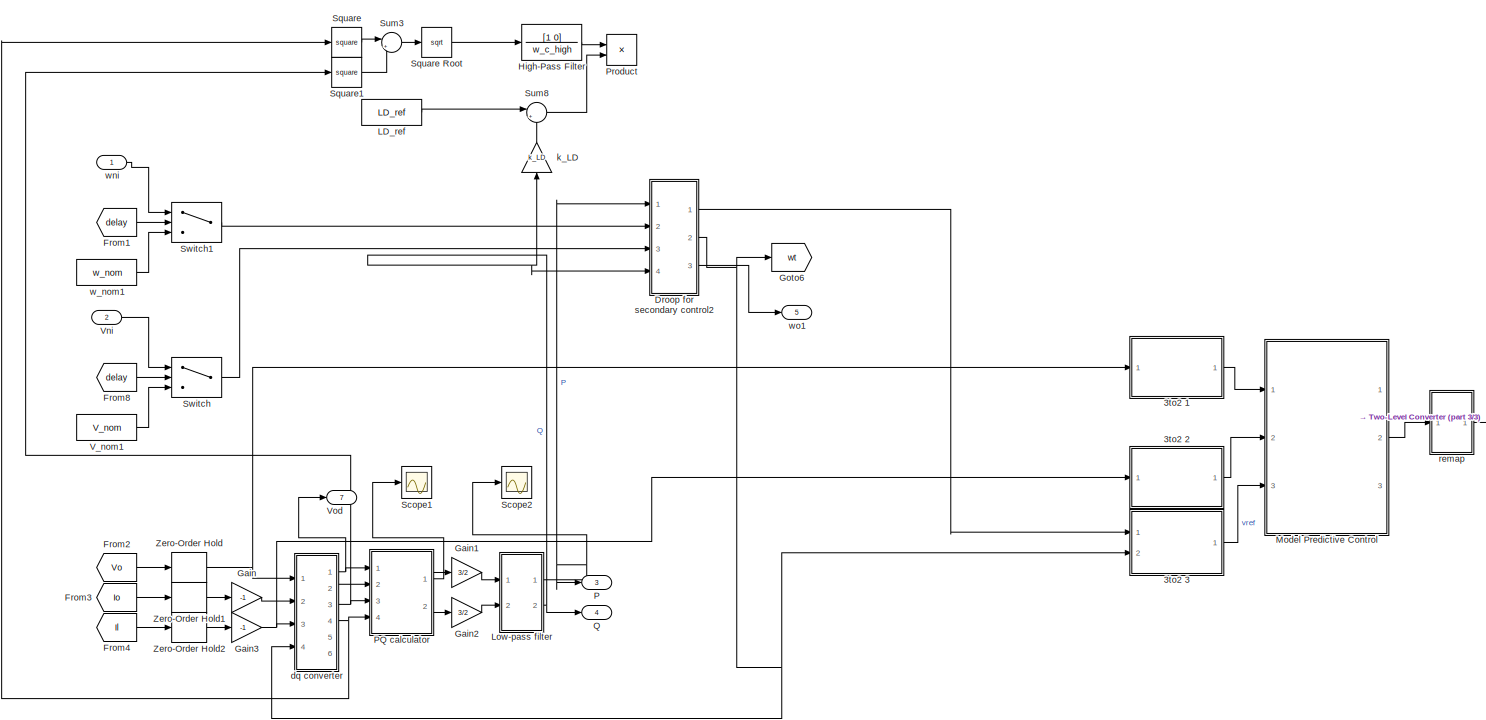
[diagram: Voltage Source Inverter 2 - part 1/3, top left region]
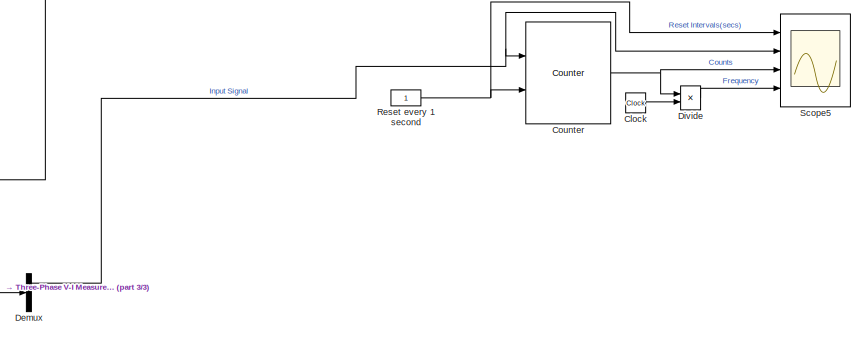
[diagram: Voltage Source Inverter 2 - part 2/3, middle right region]
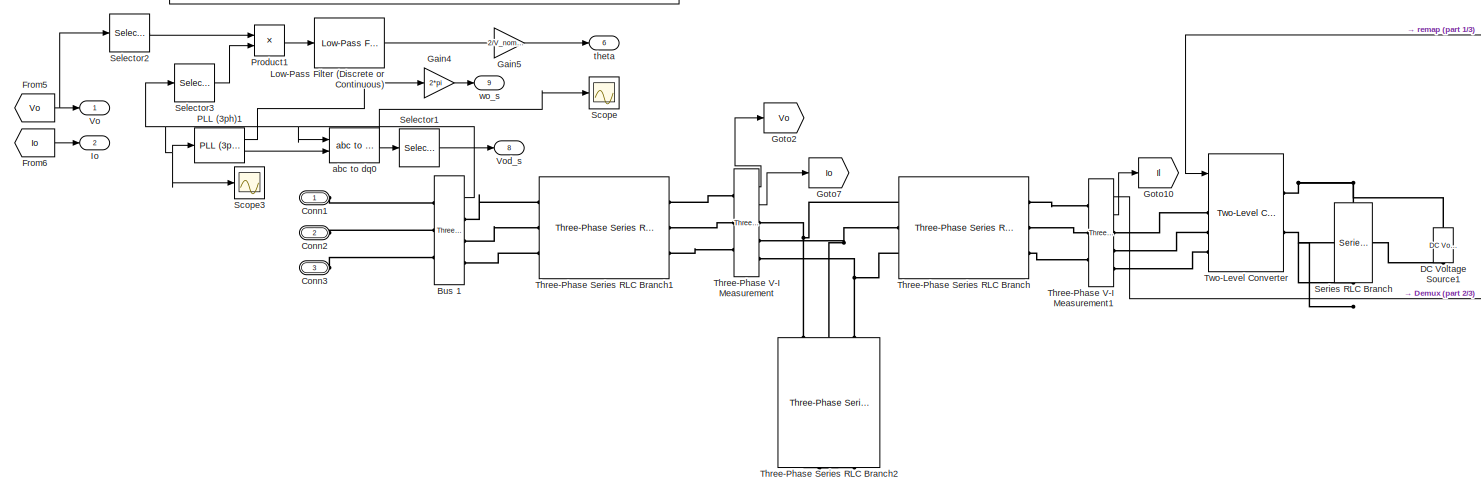
[diagram: Voltage Source Inverter 2 - part 3/3, bottom center region]
BLOCK [SubSystem] Voltage Source Inverter 2
  NameLocation = top
  Ports = [2, 9, 0, 0, 0, 3]
  RequestExecContextInheritance = off
BLOCK [SubSystem] Voltage Source Inverter 2/3to2 1
  Ports = [1, 1]
  RequestExecContextInheritance = off
BLOCK [Sum] Voltage Source Inverter 2/3to2 1/Add
  IconShape = rectangular
  Inputs = +++
  Ports = [3, 1]
BLOCK [Constant] Voltage Source Inverter 2/3to2 1/Constant
  Value = exp(i*2*pi/3)
BLOCK [Constant] Voltage Source Inverter 2/3to2 1/Constant1
  Value = 2/3
BLOCK [Demux] Voltage Source Inverter 2/3to2 1/Demux
  NameLocation = top
  Outputs = 3
  Ports = [1, 3]
BLOCK [Math] Voltage Source Inverter 2/3to2 1/Math Function
  Operator = square
  Ports = [1, 1]
  SignedPower = on
BLOCK [Product] Voltage Source Inverter 2/3to2 1/Product
  Ports = [2, 1]
  RndMeth = Zero
BLOCK [Product] Voltage Source Inverter 2/3to2 1/Product1
  Ports = [2, 1]
  RndMeth = Zero
BLOCK [Product] Voltage Source Inverter 2/3to2 1/Product2
  Ports = [2, 1]
  RndMeth = Zero
BLOCK [Inport] Voltage Source Inverter 2/3to2 1/Vabc_o 
BLOCK [Outport] Voltage Source Inverter 2/3to2 1/Vo
  VectorParamsAs1DForOutWhenUnconnected = off
BLOCK [SubSystem] Voltage Source Inverter 2/3to2 2
  Ports = [1, 1]
  RequestExecContextInheritance = off
BLOCK [Sum] Voltage Source Inverter 2/3to2 2/Add
  IconShape = rectangular
  Inputs = +++
  Ports = [3, 1]
BLOCK [Constant] Voltage Source Inverter 2/3to2 2/Constant
  Value = exp(i*2*pi/3)
BLOCK [Constant] Voltage Source Inverter 2/3to2 2/Constant1
  Value = 2/3
BLOCK [Demux] Voltage Source Inverter 2/3to2 2/Demux
  NameLocation = top
  Outputs = 3
  Ports = [1, 3]
BLOCK [Inport] Voltage Source Inverter 2/3to2 2/Iabc_o 
BLOCK [Outport] Voltage Source Inverter 2/3to2 2/Il
  VectorParamsAs1DForOutWhenUnconnected = off
BLOCK [Math] Voltage Source Inverter 2/3to2 2/Math Function
  Operator = square
  Ports = [1, 1]
  SignedPower = on
BLOCK [Product] Voltage Source Inverter 2/3to2 2/Product
  Ports = [2, 1]
  RndMeth = Zero
BLOCK [Product] Voltage Source Inverter 2/3to2 2/Product1
  Ports = [2, 1]
  RndMeth = Zero
BLOCK [Product] Voltage Source Inverter 2/3to2 2/Product2
  Ports = [2, 1]
  RndMeth = Zero
BLOCK [SubSystem] Voltage Source Inverter 2/3to2 3
  Ports = [2, 1]
  RequestExecContextInheritance = off
BLOCK [Sum] Voltage Source Inverter 2/3to2 3/Add1
  IconShape = rectangular
  Inputs = +++
  Ports = [3, 1]
BLOCK [Constant] Voltage Source Inverter 2/3to2 3/Constant2
  Value = 2*pi/3
BLOCK [Constant] Voltage Source Inverter 2/3to2 3/Constant3
  Value = -2*pi/3
BLOCK [Constant] Voltage Source Inverter 2/3to2 3/Constant4
  Value = exp(i*2*pi/3)
BLOCK [Constant] Voltage Source Inverter 2/3to2 3/Constant5
  Value = 2/3
BLOCK [Trigonometry] Voltage Source Inverter 2/3to2 3/Cos
  Operator = cos
  Ports = [1, 1]
BLOCK [Trigonometry] Voltage Source Inverter 2/3to2 3/Cos1
  Operator = cos
  Ports = [1, 1]
BLOCK [Trigonometry] Voltage Source Inverter 2/3to2 3/Cos2
  Operator = cos
  Ports = [1, 1]
BLOCK [Math] Voltage Source Inverter 2/3to2 3/Math Function1
  Operator = square
  Ports = [1, 1]
  SignedPower = on
BLOCK [Product] Voltage Source Inverter 2/3to2 3/Product3
  Ports = [2, 1]
  RndMeth = Zero
BLOCK [Product] Voltage Source Inverter 2/3to2 3/Product4
  Ports = [2, 1]
  RndMeth = Zero
BLOCK [Product] Voltage Source Inverter 2/3to2 3/Product5
  Ports = [2, 1]
  RndMeth = Zero
BLOCK [Product] Voltage Source Inverter 2/3to2 3/Product6
  Ports = [2, 1]
  RndMeth = Zero
BLOCK [Product] Voltage Source Inverter 2/3to2 3/Product7
  Ports = [2, 1]
  RndMeth = Zero
BLOCK [Product] Voltage Source Inverter 2/3to2 3/Product8
  Ports = [2, 1]
  RndMeth = Zero
BLOCK [Scope] Voltage Source Inverter 2/3to2 3/Scope
  Floating = off
  NumInputPorts = 3
  Ports = [3]
BLOCK [Sum] Voltage Source Inverter 2/3to2 3/Sum
  Inputs = |++
  Ports = [2, 1]
BLOCK [Sum] Voltage Source Inverter 2/3to2 3/Sum1
  Inputs = |++
  Ports = [2, 1]
BLOCK [Inport] Voltage Source Inverter 2/3to2 3/single 
BLOCK [Outport] Voltage Source Inverter 2/3to2 3/threePhase
  VectorParamsAs1DForOutWhenUnconnected = off
BLOCK [Inport] Voltage Source Inverter 2/3to2 3/wt 
  Port = 2
BLOCK [Reference] Voltage Source Inverter 2/Bus 1  REF=spsThreePhaseVIMeasurementLib/Three-Phase
V-I Measurement
  Ports = [0, 1, 0, 0, 0, 3, 3]
  SourceBlock = spsThreePhaseVIMeasurementLib/Three-Phase\nV-I Measurement
  SourceProductBaseCode = PS
  SourceType = Three-Phase VI Measurement
BLOCK [Clock] Voltage Source Inverter 2/Clock
  Decimation = 1
BLOCK [PMIOPort] Voltage Source Inverter 2/Conn1
  Side = Left
BLOCK [PMIOPort] Voltage Source Inverter 2/Conn2
  Port = 2
  Side = Left
BLOCK [PMIOPort] Voltage Source Inverter 2/Conn3
  Port = 3
  Side = Left
BLOCK [Reference] Voltage Source Inverter 2/Counter  REF=dspswit3/Counter
  Ports = [2, 1]
  SourceBlock = dspswit3/Counter
  SourceProductBaseCode = DS
  SourceType = Counter
BLOCK [Reference] Voltage Source Inverter 2/DC Voltage Source1  REF=spsDCVoltageSourceLib/DC Voltage Source
  NameLocation = right
  Ports = [0, 0, 0, 0, 0, 1, 1]
  SourceBlock = spsDCVoltageSourceLib/DC Voltage Source
  SourceProductBaseCode = PS
  SourceType = DC Voltage Source
BLOCK [Demux] Voltage Source Inverter 2/Demux
  Outputs = 3
  Ports = [1, 3]
BLOCK [Product] Voltage Source Inverter 2/Divide
  Inputs = */
  Ports = [2, 1]
BLOCK [SubSystem] Voltage Source Inverter 2/Droop for secondary control2
  Ports = [4, 3]
  RequestExecContextInheritance = off
BLOCK [Gain] Voltage Source Inverter 2/Droop for secondary control2/Gain4
  Gain = n_q
BLOCK [Gain] Voltage Source Inverter 2/Droop for secondary control2/Gain5
  Gain = m_p
BLOCK [Integrator] Voltage Source Inverter 2/Droop for secondary control2/Integrator
  Ports = [1, 1]
  WrapState = on
  WrappedStateLowerValue = 0
  WrappedStateUpperValue = 2*pi
BLOCK [Inport] Voltage Source Inverter 2/Droop for secondary control2/P
BLOCK [Inport] Voltage Source Inverter 2/Droop for secondary control2/Q
  Port = 4
BLOCK [Sum] Voltage Source Inverter 2/Droop for secondary control2/Sum1
  Inputs = |+-
  Ports = [2, 1]
BLOCK [Sum] Voltage Source Inverter 2/Droop for secondary control2/Sum2
  Inputs = |+-
  Ports = [2, 1]
BLOCK [Inport] Voltage Source Inverter 2/Droop for secondary control2/V_nom
  Port = 3
BLOCK [Outport] Voltage Source Inverter 2/Droop for secondary control2/Vref
BLOCK [Inport] Voltage Source Inverter 2/Droop for secondary control2/w_nom
  Port = 2
BLOCK [Outport] Voltage Source Inverter 2/Droop for secondary control2/wo
  Port = 3
BLOCK [Outport] Voltage Source Inverter 2/Droop for secondary control2/wt
  Port = 2
BLOCK [From] Voltage Source Inverter 2/From1
  GotoTag = delay
  TagVisibility = global
BLOCK [From] Voltage Source Inverter 2/From2
  GotoTag = Vo
BLOCK [From] Voltage Source Inverter 2/From3
  GotoTag = Io
BLOCK [From] Voltage Source Inverter 2/From4
  GotoTag = Il
BLOCK [From] Voltage Source Inverter 2/From5
  GotoTag = Vo
BLOCK [From] Voltage Source Inverter 2/From6
  GotoTag = Io
BLOCK [From] Voltage Source Inverter 2/From8
  GotoTag = delay
  TagVisibility = global
BLOCK [Gain] Voltage Source Inverter 2/Gain
  Gain = -1
BLOCK [Gain] Voltage Source Inverter 2/Gain1
  Gain = 3/2
BLOCK [Gain] Voltage Source Inverter 2/Gain2
  Gain = 3/2
BLOCK [Gain] Voltage Source Inverter 2/Gain3
  Gain = -1
BLOCK [Gain] Voltage Source Inverter 2/Gain4
  Gain = 2*pi
BLOCK [Gain] Voltage Source Inverter 2/Gain5
  Gain = 2/V_nom^2
BLOCK [Goto] Voltage Source Inverter 2/Goto10
  GotoTag = Il
BLOCK [Goto] Voltage Source Inverter 2/Goto2
  GotoTag = Vo
BLOCK [Goto] Voltage Source Inverter 2/Goto6
  GotoTag = wt
BLOCK [Goto] Voltage Source Inverter 2/Goto7
  GotoTag = Io
BLOCK [TransferFcn] Voltage Source Inverter 2/High-Pass Filter
  Denominator = w_c_high
  Numerator = [1 0]
BLOCK [Outport] Voltage Source Inverter 2/Io
  Port = 2
BLOCK [Constant] Voltage Source Inverter 2/LD_ref
  Value = LD_ref
BLOCK [Reference] Voltage Source Inverter 2/Low-Pass Filter (Discrete or Continuous)  REF=eeGeneralControl/Low-Pass Filter
(Discrete or Continuous)
  Ports = [1, 1]
  SourceBlock = eeGeneralControl/Low-Pass Filter\n(Discrete or Continuous)
  SourceProductBaseCode = PS
  SourceType = Low-Pass Filter (Discrete or Continuous)
BLOCK [SubSystem] Voltage Source Inverter 2/Low-pass filter
  Ports = [2, 2]
  RequestExecContextInheritance = off
BLOCK [Reference] Voltage Source Inverter 2/Low-pass filter/Low-Pass Filter (Discrete or Continuous)  REF=eeGeneralControl/Low-Pass Filter
(Discrete or Continuous)
  Ports = [1, 1]
  SourceBlock = eeGeneralControl/Low-Pass Filter\n(Discrete or Continuous)
  SourceProductBaseCode = PS
  SourceType = Low-Pass Filter (Discrete or Continuous)
BLOCK [Reference] Voltage Source Inverter 2/Low-pass filter/Low-Pass Filter (Discrete or Continuous)1  REF=eeGeneralControl/Low-Pass Filter
(Discrete or Continuous)
  Ports = [1, 1]
  SourceBlock = eeGeneralControl/Low-Pass Filter\n(Discrete or Continuous)
  SourceProductBaseCode = PS
  SourceType = Low-Pass Filter (Discrete or Continuous)
BLOCK [Outport] Voltage Source Inverter 2/Low-pass filter/P
BLOCK [Outport] Voltage Source Inverter 2/Low-pass filter/Q
  Port = 2
BLOCK [Inport] Voltage Source Inverter 2/Low-pass filter/p_hat
BLOCK [Inport] Voltage Source Inverter 2/Low-pass filter/q_hat
  Port = 2
BLOCK [SubSystem] Voltage Source Inverter 2/Model Predictive Control 
  ErrorFcn = Stateflow.Translate.translate
  NameLocation = top
  PermitHierarchicalResolution = ExplicitOnly
  Ports = [3, 3]
  RequestExecContextInheritance = off
  SFBlockType = MATLAB Function
  TreatAsAtomicUnit = on
BLOCK [Demux] Voltage Source Inverter 2/Model Predictive Control / Demux 
  Outputs = 1
  Ports = [1, 1]
BLOCK [S-Function] Voltage Source Inverter 2/Model Predictive Control / SFunction 
  EnableBusSupport = on
  FunctionName = sf_sfun
  Parameters = Cfilter,Lfilter,Vdc,modT
  PortCounts = [3 4]
  Ports = [3, 4]
  SFcnIsStateOwnerBlock = off
  SFunctionDeploymentMode = off
  Tag = Stateflow S-Function 1
BLOCK [Terminator] Voltage Source Inverter 2/Model Predictive Control / Terminator 
BLOCK [Outport] Voltage Source Inverter 2/Model Predictive Control /S_opt
  VectorParamsAs1DForOutWhenUnconnected = off
BLOCK [Outport] Voltage Source Inverter 2/Model Predictive Control /Sopt
  Port = 2
  VectorParamsAs1DForOutWhenUnconnected = off
BLOCK [Inport] Voltage Source Inverter 2/Model Predictive Control /Vc
BLOCK [Outport] Voltage Source Inverter 2/Model Predictive Control /Vi_opt
  Port = 3
  VectorParamsAs1DForOutWhenUnconnected = off
BLOCK [Inport] Voltage Source Inverter 2/Model Predictive Control /i_filter
  Port = 2
BLOCK [Inport] Voltage Source Inverter 2/Model Predictive Control /vref
  Port = 3
BLOCK [Outport] Voltage Source Inverter 2/P
  Port = 3
BLOCK [Reference] Voltage Source Inverter 2/PLL (3ph)1  REF=spsPLL3phLib/PLL
(3ph)
  Ports = [1, 2]
  SourceBlock = spsPLL3phLib/PLL\n(3ph)
  SourceProductBaseCode = PS
  SourceType = PLL (3ph)
BLOCK [SubSystem] Voltage Source Inverter 2/PQ calculator
  Ports = [4, 2]
  RequestExecContextInheritance = off
BLOCK [Inport] Voltage Source Inverter 2/PQ calculator/Iod
  Port = 3
BLOCK [Inport] Voltage Source Inverter 2/PQ calculator/Ioq
  Port = 4
BLOCK [Product] Voltage Source Inverter 2/PQ calculator/Product
  Ports = [2, 1]
BLOCK [Product] Voltage Source Inverter 2/PQ calculator/Product1
  Ports = [2, 1]
BLOCK [Product] Voltage Source Inverter 2/PQ calculator/Product2
  Ports = [2, 1]
BLOCK [Product] Voltage Source Inverter 2/PQ calculator/Product3
  Ports = [2, 1]
BLOCK [Scope] Voltage Source Inverter 2/PQ calculator/Scope
  Floating = off
  NumInputPorts = 1
  Ports = [1]
  ScopeSpecificationString = Simulink.scopes.TimeScopeBlockCfg('CurrentConfiguration', extmgr.ConfigurationSet(extmgr.Configuration('Core','General UI',true),extmgr.Configuration('Core','Source UI',true),extmgr.Configuration('Sources','WiredSimulink',true,'DataLoggingVariableName','ScopeData2'),extmgr.Configuration('Visuals','Time Domain',true,'SerializedDisplays',{struct('MinYLimReal','296.70971','MaxYLimReal','308.09113','Y...<+2027ch>  <repeated x4 — deduplicated; at blocks: Scope>
BLOCK [Sum] Voltage Source Inverter 2/PQ calculator/Sum10
  Inputs = |++
  Ports = [2, 1]
BLOCK [Sum] Voltage Source Inverter 2/PQ calculator/Sum11
  Inputs = |+-
  Ports = [2, 1]
BLOCK [Inport] Voltage Source Inverter 2/PQ calculator/Vod
BLOCK [Inport] Voltage Source Inverter 2/PQ calculator/Voq
  Port = 2
BLOCK [Outport] Voltage Source Inverter 2/PQ calculator/p_hat
BLOCK [Outport] Voltage Source Inverter 2/PQ calculator/q_hat
  Port = 2
BLOCK [Product] Voltage Source Inverter 2/Product
  Ports = [2, 1]
BLOCK [Product] Voltage Source Inverter 2/Product1
  Ports = [2, 1]
BLOCK [Outport] Voltage Source Inverter 2/Q
  Port = 4
BLOCK [Constant] Voltage Source Inverter 2/Reset every 1 second
BLOCK [Scope] Voltage Source Inverter 2/Scope
  Floating = off
  NumInputPorts = 1
  Ports = [1]
  ScopeSpecificationString = Simulink.scopes.TimeScopeBlockCfg('CurrentConfiguration', extmgr.ConfigurationSet(extmgr.Configuration('Core','General UI',true),extmgr.Configuration('Core','Source UI',true),extmgr.Configuration('Sources','WiredSimulink',true,'DataLoggingVariableName','ScopeData4'),extmgr.Configuration('Visuals','Time Domain',true,'SerializedDisplays',{struct('MinYLimReal','-375.46906','MaxYLimReal','375.09578','...<+2111ch>  <repeated x4 — deduplicated; at blocks: Scope>
BLOCK [Scope] Voltage Source Inverter 2/Scope1
  Floating = off
  NumInputPorts = 1
  Ports = [1]
  ScopeSpecificationString = Simulink.scopes.TimeScopeBlockCfg('CurrentConfiguration', extmgr.ConfigurationSet(extmgr.Configuration('Core','General UI',true),extmgr.Configuration('Core','Source UI',true),extmgr.Configuration('Sources','WiredSimulink',true,'DataLoggingVariableName','ScopeData1'),extmgr.Configuration('Visuals','Time Domain',true,'SerializedDisplays',{struct('MinYLimReal','-2366.98476','MaxYLimReal','21302.8628'...<+1480ch>
BLOCK [Scope] Voltage Source Inverter 2/Scope2
  Floating = off
  NumInputPorts = 1
  Ports = [1]
  ScopeSpecificationString = Simulink.scopes.TimeScopeBlockCfg('CurrentConfiguration', extmgr.ConfigurationSet(extmgr.Configuration('Core','General UI',true),extmgr.Configuration('Core','Source UI',true),extmgr.Configuration('Sources','WiredSimulink',true,'DataLoggingVariableName','ScopeData3'),extmgr.Configuration('Visuals','Time Domain',true,'SerializedDisplays',{struct('MinYLimReal','-11554.77092','MaxYLimReal','22904.3564...<+1468ch>  <repeated x4 — deduplicated; at blocks: Scope2>
BLOCK [Scope] Voltage Source Inverter 2/Scope3
  Floating = off
  NumInputPorts = 1
  Ports = [1]
  ScopeSpecificationString = Simulink.scopes.TimeScopeBlockCfg('CurrentConfiguration', extmgr.ConfigurationSet(extmgr.Configuration('Core','General UI',true),extmgr.Configuration('Core','Source UI',true),extmgr.Configuration('Sources','WiredSimulink',true,'DataLoggingVariableName','ScopeData1'),extmgr.Configuration('Visuals','Time Domain',true,'SerializedDisplays',{struct('MinYLimReal','-368.38254','MaxYLimReal','382.46813','...<+1814ch>  <repeated x3 — deduplicated; at blocks: Scope3>
BLOCK [Scope] Voltage Source Inverter 2/Scope5
  Floating = off
  NumInputPorts = 4
  Ports = [4]
BLOCK [Selector] Voltage Source Inverter 2/Selector1
  IndexOptions = Index vector (dialog)
  Indices = [1]
  InputPortWidth = 3
  OutputSizes = 1
  Ports = [1, 1]
BLOCK [Selector] Voltage Source Inverter 2/Selector2
  IndexOptions = Index vector (dialog)
  Indices = [1]
  InputPortWidth = 3
  OutputSizes = 1
  Ports = [1, 1]
BLOCK [Selector] Voltage Source Inverter 2/Selector3
  IndexOptions = Index vector (dialog)
  Indices = [1]
  InputPortWidth = 3
  OutputSizes = 1
  Ports = [1, 1]
BLOCK [Reference] Voltage Source Inverter 2/Series RLC Branch  REF=spsSeriesRLCBranchLib/Series RLC Branch
  NameLocation = left
  Ports = [0, 0, 0, 0, 0, 1, 1]
  SourceBlock = spsSeriesRLCBranchLib/Series RLC Branch
  SourceProductBaseCode = PS
  SourceType = Series RLC Branch
BLOCK [Math] Voltage Source Inverter 2/Square
  Operator = square
  Ports = [1, 1]
BLOCK [Sqrt] Voltage Source Inverter 2/Square Root
BLOCK [Math] Voltage Source Inverter 2/Square1
  Operator = square
  Ports = [1, 1]
BLOCK [Sum] Voltage Source Inverter 2/Sum3
  Inputs = |++
  Ports = [2, 1]
BLOCK [Sum] Voltage Source Inverter 2/Sum8
  Inputs = |++
  Ports = [2, 1]
BLOCK [Switch] Voltage Source Inverter 2/Switch
  Criteria = u2 > Threshold
  InputSameDT = off
  SaturateOnIntegerOverflow = off
  Threshold = time_thresh
BLOCK [Switch] Voltage Source Inverter 2/Switch1
  Criteria = u2 > Threshold
  InputSameDT = off
  SaturateOnIntegerOverflow = off
  Threshold = time_thresh
BLOCK [Reference] Voltage Source Inverter 2/Three-Phase Series RLC Branch  REF=spsThreePhaseSeriesRLCBranchLib/Three-Phase
Series RLC Branch
  AttributesFormatString = \n
  Ports = [0, 0, 0, 0, 0, 3, 3]
  SourceBlock = spsThreePhaseSeriesRLCBranchLib/Three-Phase\nSeries RLC Branch
  SourceProductBaseCode = PS
  SourceType = Three-Phase Series RLC Branch
BLOCK [Reference] Voltage Source Inverter 2/Three-Phase Series RLC Branch1  REF=spsThreePhaseSeriesRLCBranchLib/Three-Phase
Series RLC Branch
  AttributesFormatString = \n
  Ports = [0, 0, 0, 0, 0, 3, 3]
  SourceBlock = spsThreePhaseSeriesRLCBranchLib/Three-Phase\nSeries RLC Branch
  SourceProductBaseCode = PS
  SourceType = Three-Phase Series RLC Branch
BLOCK [Reference] Voltage Source Inverter 2/Three-Phase Series RLC Branch2  REF=spsThreePhaseSeriesRLCBranchLib/Three-Phase
Series RLC Branch
  AttributesFormatString = \n
  NameLocation = left
  Ports = [0, 0, 0, 0, 0, 3, 3]
  SourceBlock = spsThreePhaseSeriesRLCBranchLib/Three-Phase\nSeries RLC Branch
  SourceProductBaseCode = PS
  SourceType = Three-Phase Series RLC Branch
BLOCK [Reference] Voltage Source Inverter 2/Three-Phase V-I Measurement  REF=spsThreePhaseVIMeasurementLib/Three-Phase
V-I Measurement
  Ports = [0, 2, 0, 0, 0, 3, 3]
  SourceBlock = spsThreePhaseVIMeasurementLib/Three-Phase\nV-I Measurement
  SourceProductBaseCode = PS
  SourceType = Three-Phase VI Measurement
BLOCK [Reference] Voltage Source Inverter 2/Three-Phase V-I Measurement1  REF=spsThreePhaseVIMeasurementLib/Three-Phase
V-I Measurement
  Ports = [0, 2, 0, 0, 0, 3, 3]
  SourceBlock = spsThreePhaseVIMeasurementLib/Three-Phase\nV-I Measurement
  SourceProductBaseCode = PS
  SourceType = Three-Phase VI Measurement
BLOCK [Reference] Voltage Source Inverter 2/Two-Level Converter  REF=spsTwoLevelConverterLib/Two-Level Converter
  Ports = [2, 0, 0, 0, 0, 3, 2]
  SourceBlock = spsTwoLevelConverterLib/Two-Level Converter
  SourceProductBaseCode = PS
  SourceType = Two-Level Converter
BLOCK [Constant] Voltage Source Inverter 2/V_nom1
  Value = V_nom
BLOCK [Inport] Voltage Source Inverter 2/Vni
  Port = 2
BLOCK [Outport] Voltage Source Inverter 2/Vo
BLOCK [Outport] Voltage Source Inverter 2/Vod
  Port = 7
BLOCK [Outport] Voltage Source Inverter 2/Vod_s
  Port = 8
BLOCK [ZeroOrderHold] Voltage Source Inverter 2/Zero-Order Hold
  SampleTime = modT
BLOCK [ZeroOrderHold] Voltage Source Inverter 2/Zero-Order Hold1
  SampleTime = modT
BLOCK [ZeroOrderHold] Voltage Source Inverter 2/Zero-Order Hold2
  SampleTime = modT
BLOCK [Reference] Voltage Source Inverter 2/abc to dq0  REF=spsabctodq0Lib/abc to dq0
  Ports = [2, 1]
  SourceBlock = spsabctodq0Lib/abc to dq0
  SourceProductBaseCode = PS
  SourceType = abc to dq0 Transformation
BLOCK [SubSystem] Voltage Source Inverter 2/dq converter
  Ports = [4, 6]
  RequestExecContextInheritance = off
BLOCK [Demux] Voltage Source Inverter 2/dq converter/Demux
  Outputs = 2
  Ports = [1, 2]
BLOCK [Demux] Voltage Source Inverter 2/dq converter/Demux1
  Outputs = 2
  Ports = [1, 2]
BLOCK [Demux] Voltage Source Inverter 2/dq converter/Demux4
  Outputs = 2
  Ports = [1, 2]
BLOCK [Outport] Voltage Source Inverter 2/dq converter/Ild
  Port = 5
BLOCK [Inport] Voltage Source Inverter 2/dq converter/Ildq
  Port = 3
BLOCK [Outport] Voltage Source Inverter 2/dq converter/Ilq
  Port = 6
BLOCK [Outport] Voltage Source Inverter 2/dq converter/Iod
  Port = 3
BLOCK [Inport] Voltage Source Inverter 2/dq converter/Iodq
  Port = 2
BLOCK [Outport] Voltage Source Inverter 2/dq converter/Ioq
  Port = 4
BLOCK [Scope] Voltage Source Inverter 2/dq converter/Scope
  Floating = off
  NumInputPorts = 1
  Ports = [1]
  ScopeSpecificationString = Simulink.scopes.TimeScopeBlockCfg('CurrentConfiguration', extmgr.ConfigurationSet(extmgr.Configuration('Core','General UI',true),extmgr.Configuration('Core','Source UI',true),extmgr.Configuration('Sources','WiredSimulink',true,'DataLoggingVariableName','ScopeData2'),extmgr.Configuration('Visuals','Time Domain',true,'SerializedDisplays',{struct('MinYLimReal','-96.72069','MaxYLimReal','93.56975','YL...<+1443ch>
BLOCK [Selector] Voltage Source Inverter 2/dq converter/Selector1
  IndexOptions = Index vector (dialog)
  Indices = [1 2]
  InputPortWidth = 3
  OutputSizes = 1
  Ports = [1, 1]
BLOCK [Selector] Voltage Source Inverter 2/dq converter/Selector2
  IndexOptions = Index vector (dialog)
  Indices = [1 2]
  InputPortWidth = 3
  OutputSizes = 1
  Ports = [1, 1]
BLOCK [Selector] Voltage Source Inverter 2/dq converter/Selector3
  IndexOptions = Index vector (dialog)
  Indices = [1 2]
  InputPortWidth = 3
  OutputSizes = 1
  Ports = [1, 1]
BLOCK [Outport] Voltage Source Inverter 2/dq converter/Vod
BLOCK [Inport] Voltage Source Inverter 2/dq converter/Vodq
BLOCK [Outport] Voltage Source Inverter 2/dq converter/Voq
  Port = 2
BLOCK [Reference] Voltage Source Inverter 2/dq converter/abc to dq0  REF=spsabctodq0Lib/abc to dq0
  Ports = [2, 1]
  SourceBlock = spsabctodq0Lib/abc to dq0
  SourceProductBaseCode = PS
  SourceType = abc to dq0 Transformation
BLOCK [Reference] Voltage Source Inverter 2/dq converter/abc to dq1  REF=spsabctodq0Lib/abc to dq0
  Ports = [2, 1]
  SourceBlock = spsabctodq0Lib/abc to dq0
  SourceProductBaseCode = PS
  SourceType = abc to dq0 Transformation
BLOCK [Reference] Voltage Source Inverter 2/dq converter/abc to dq2  REF=spsabctodq0Lib/abc to dq0
  Ports = [2, 1]
  SourceBlock = spsabctodq0Lib/abc to dq0
  SourceProductBaseCode = PS
  SourceType = abc to dq0 Transformation
BLOCK [Inport] Voltage Source Inverter 2/dq converter/wo
  Port = 4
BLOCK [Gain] Voltage Source Inverter 2/k_LD
  Gain = k_LD
  NameLocation = right
BLOCK [SubSystem] Voltage Source Inverter 2/remap
  Ports = [1, 1]
  RequestExecContextInheritance = off
BLOCK [Demux] Voltage Source Inverter 2/remap/Demux
  NameLocation = top
  Outputs = 6
  Ports = [1, 6]
BLOCK [Inport] Voltage Source Inverter 2/remap/In1
BLOCK [Mux] Voltage Source Inverter 2/remap/Mux
  DisplayOption = bar
  Inputs = 6
  Ports = [6, 1]
BLOCK [Outport] Voltage Source Inverter 2/remap/Out1
BLOCK [Outport] Voltage Source Inverter 2/theta
  Port = 6
BLOCK [Constant] Voltage Source Inverter 2/w_nom1
  Value = w_nom
BLOCK [Inport] Voltage Source Inverter 2/wni
BLOCK [Outport] Voltage Source Inverter 2/wo1
  Port = 5
BLOCK [Outport] Voltage Source Inverter 2/wo_s
  Port = 9
BLOCK [SubSystem] Voltage Source Inverter 3
  NameLocation = top
  Ports = [2, 9, 0, 0, 0, 3]
  RequestExecContextInheritance = off
BLOCK [SubSystem] Voltage Source Inverter 3/3to2 1
  Ports = [1, 1]
  RequestExecContextInheritance = off
BLOCK [Sum] Voltage Source Inverter 3/3to2 1/Add
  IconShape = rectangular
  Inputs = +++
  Ports = [3, 1]
BLOCK [Constant] Voltage Source Inverter 3/3to2 1/Constant
  Value = exp(i*2*pi/3)
BLOCK [Constant] Voltage Source Inverter 3/3to2 1/Constant1
  Value = 2/3
BLOCK [Demux] Voltage Source Inverter 3/3to2 1/Demux
  NameLocation = top
  Outputs = 3
  Ports = [1, 3]
BLOCK [Math] Voltage Source Inverter 3/3to2 1/Math Function
  Operator = square
  Ports = [1, 1]
  SignedPower = on
BLOCK [Product] Voltage Source Inverter 3/3to2 1/Product
  Ports = [2, 1]
  RndMeth = Zero
BLOCK [Product] Voltage Source Inverter 3/3to2 1/Product1
  Ports = [2, 1]
  RndMeth = Zero
BLOCK [Product] Voltage Source Inverter 3/3to2 1/Product2
  Ports = [2, 1]
  RndMeth = Zero
BLOCK [Inport] Voltage Source Inverter 3/3to2 1/Vabc_o 
BLOCK [Outport] Voltage Source Inverter 3/3to2 1/Vo
  VectorParamsAs1DForOutWhenUnconnected = off
BLOCK [SubSystem] Voltage Source Inverter 3/3to2 2
  Ports = [1, 1]
  RequestExecContextInheritance = off
BLOCK [Sum] Voltage Source Inverter 3/3to2 2/Add
  IconShape = rectangular
  Inputs = +++
  Ports = [3, 1]
BLOCK [Constant] Voltage Source Inverter 3/3to2 2/Constant
  Value = exp(i*2*pi/3)
BLOCK [Constant] Voltage Source Inverter 3/3to2 2/Constant1
  Value = 2/3
BLOCK [Demux] Voltage Source Inverter 3/3to2 2/Demux
  NameLocation = top
  Outputs = 3
  Ports = [1, 3]
BLOCK [Inport] Voltage Source Inverter 3/3to2 2/Iabc_o 
BLOCK [Outport] Voltage Source Inverter 3/3to2 2/Il
  VectorParamsAs1DForOutWhenUnconnected = off
BLOCK [Math] Voltage Source Inverter 3/3to2 2/Math Function
  Operator = square
  Ports = [1, 1]
  SignedPower = on
BLOCK [Product] Voltage Source Inverter 3/3to2 2/Product
  Ports = [2, 1]
  RndMeth = Zero
BLOCK [Product] Voltage Source Inverter 3/3to2 2/Product1
  Ports = [2, 1]
  RndMeth = Zero
BLOCK [Product] Voltage Source Inverter 3/3to2 2/Product2
  Ports = [2, 1]
  RndMeth = Zero
BLOCK [SubSystem] Voltage Source Inverter 3/3to2 3
  Ports = [2, 1]
  RequestExecContextInheritance = off
BLOCK [Sum] Voltage Source Inverter 3/3to2 3/Add1
  IconShape = rectangular
  Inputs = +++
  Ports = [3, 1]
BLOCK [Constant] Voltage Source Inverter 3/3to2 3/Constant2
  Value = 2*pi/3
BLOCK [Constant] Voltage Source Inverter 3/3to2 3/Constant3
  Value = -2*pi/3
BLOCK [Constant] Voltage Source Inverter 3/3to2 3/Constant4
  Value = exp(i*2*pi/3)
BLOCK [Constant] Voltage Source Inverter 3/3to2 3/Constant5
  Value = 2/3
BLOCK [Trigonometry] Voltage Source Inverter 3/3to2 3/Cos
  Operator = cos
  Ports = [1, 1]
BLOCK [Trigonometry] Voltage Source Inverter 3/3to2 3/Cos1
  Operator = cos
  Ports = [1, 1]
BLOCK [Trigonometry] Voltage Source Inverter 3/3to2 3/Cos2
  Operator = cos
  Ports = [1, 1]
BLOCK [Math] Voltage Source Inverter 3/3to2 3/Math Function1
  Operator = square
  Ports = [1, 1]
  SignedPower = on
BLOCK [Product] Voltage Source Inverter 3/3to2 3/Product3
  Ports = [2, 1]
  RndMeth = Zero
BLOCK [Product] Voltage Source Inverter 3/3to2 3/Product4
  Ports = [2, 1]
  RndMeth = Zero
BLOCK [Product] Voltage Source Inverter 3/3to2 3/Product5
  Ports = [2, 1]
  RndMeth = Zero
BLOCK [Product] Voltage Source Inverter 3/3to2 3/Product6
  Ports = [2, 1]
  RndMeth = Zero
BLOCK [Product] Voltage Source Inverter 3/3to2 3/Product7
  Ports = [2, 1]
  RndMeth = Zero
BLOCK [Product] Voltage Source Inverter 3/3to2 3/Product8
  Ports = [2, 1]
  RndMeth = Zero
BLOCK [Scope] Voltage Source Inverter 3/3to2 3/Scope
  Floating = off
  NumInputPorts = 3
  Ports = [3]
BLOCK [Sum] Voltage Source Inverter 3/3to2 3/Sum
  Inputs = |++
  Ports = [2, 1]
BLOCK [Sum] Voltage Source Inverter 3/3to2 3/Sum1
  Inputs = |++
  Ports = [2, 1]
BLOCK [Inport] Voltage Source Inverter 3/3to2 3/single 
BLOCK [Outport] Voltage Source Inverter 3/3to2 3/threePhase
  VectorParamsAs1DForOutWhenUnconnected = off
BLOCK [Inport] Voltage Source Inverter 3/3to2 3/wt 
  Port = 2
BLOCK [Reference] Voltage Source Inverter 3/Bus 1  REF=spsThreePhaseVIMeasurementLib/Three-Phase
V-I Measurement
  Ports = [0, 1, 0, 0, 0, 3, 3]
  SourceBlock = spsThreePhaseVIMeasurementLib/Three-Phase\nV-I Measurement
  SourceProductBaseCode = PS
  SourceType = Three-Phase VI Measurement
BLOCK [Clock] Voltage Source Inverter 3/Clock
  Decimation = 1
BLOCK [PMIOPort] Voltage Source Inverter 3/Conn1
  Side = Left
BLOCK [PMIOPort] Voltage Source Inverter 3/Conn2
  Port = 2
  Side = Left
BLOCK [PMIOPort] Voltage Source Inverter 3/Conn3
  Port = 3
  Side = Left
BLOCK [Reference] Voltage Source Inverter 3/Counter  REF=dspswit3/Counter
  Ports = [2, 1]
  SourceBlock = dspswit3/Counter
  SourceProductBaseCode = DS
  SourceType = Counter
BLOCK [Reference] Voltage Source Inverter 3/DC Voltage Source1  REF=spsDCVoltageSourceLib/DC Voltage Source
  NameLocation = right
  Ports = [0, 0, 0, 0, 0, 1, 1]
  SourceBlock = spsDCVoltageSourceLib/DC Voltage Source
  SourceProductBaseCode = PS
  SourceType = DC Voltage Source
BLOCK [Demux] Voltage Source Inverter 3/Demux
  Outputs = 3
  Ports = [1, 3]
BLOCK [Product] Voltage Source Inverter 3/Divide
  Inputs = */
  Ports = [2, 1]
BLOCK [SubSystem] Voltage Source Inverter 3/Droop for secondary control2
  Ports = [4, 3]
  RequestExecContextInheritance = off
BLOCK [Gain] Voltage Source Inverter 3/Droop for secondary control2/Gain4
  Gain = n_q
BLOCK [Gain] Voltage Source Inverter 3/Droop for secondary control2/Gain5
  Gain = m_p
BLOCK [Integrator] Voltage Source Inverter 3/Droop for secondary control2/Integrator
  Ports = [1, 1]
  WrapState = on
  WrappedStateLowerValue = 0
  WrappedStateUpperValue = 2*pi
BLOCK [Inport] Voltage Source Inverter 3/Droop for secondary control2/P
BLOCK [Inport] Voltage Source Inverter 3/Droop for secondary control2/Q
  Port = 4
BLOCK [Sum] Voltage Source Inverter 3/Droop for secondary control2/Sum1
  Inputs = |+-
  Ports = [2, 1]
BLOCK [Sum] Voltage Source Inverter 3/Droop for secondary control2/Sum2
  Inputs = |+-
  Ports = [2, 1]
BLOCK [Inport] Voltage Source Inverter 3/Droop for secondary control2/V_nom
  Port = 3
BLOCK [Outport] Voltage Source Inverter 3/Droop for secondary control2/Vref
BLOCK [Inport] Voltage Source Inverter 3/Droop for secondary control2/w_nom
  Port = 2
BLOCK [Outport] Voltage Source Inverter 3/Droop for secondary control2/wo
  Port = 3
BLOCK [Outport] Voltage Source Inverter 3/Droop for secondary control2/wt
  Port = 2
BLOCK [From] Voltage Source Inverter 3/From1
  GotoTag = delay
  TagVisibility = global
BLOCK [From] Voltage Source Inverter 3/From2
  GotoTag = Vo
BLOCK [From] Voltage Source Inverter 3/From3
  GotoTag = Io
BLOCK [From] Voltage Source Inverter 3/From4
  GotoTag = Il
BLOCK [From] Voltage Source Inverter 3/From5
  GotoTag = Vo
BLOCK [From] Voltage Source Inverter 3/From6
  GotoTag = Io
BLOCK [From] Voltage Source Inverter 3/From8
  GotoTag = delay
  TagVisibility = global
BLOCK [Gain] Voltage Source Inverter 3/Gain
  Gain = -1
BLOCK [Gain] Voltage Source Inverter 3/Gain1
  Gain = 3/2
BLOCK [Gain] Voltage Source Inverter 3/Gain2
  Gain = 3/2
BLOCK [Gain] Voltage Source Inverter 3/Gain3
  Gain = -1
BLOCK [Gain] Voltage Source Inverter 3/Gain4
  Gain = 2*pi
BLOCK [Gain] Voltage Source Inverter 3/Gain5
  Gain = 2/V_nom^2
BLOCK [Goto] Voltage Source Inverter 3/Goto10
  GotoTag = Il
BLOCK [Goto] Voltage Source Inverter 3/Goto2
  GotoTag = Vo
BLOCK [Goto] Voltage Source Inverter 3/Goto6
  GotoTag = wt
BLOCK [Goto] Voltage Source Inverter 3/Goto7
  GotoTag = Io
BLOCK [TransferFcn] Voltage Source Inverter 3/High-Pass Filter
  Denominator = w_c_high
  Numerator = [1 0]
BLOCK [Outport] Voltage Source Inverter 3/Io
  Port = 2
BLOCK [Constant] Voltage Source Inverter 3/LD_ref
  Value = LD_ref
BLOCK [Reference] Voltage Source Inverter 3/Low-Pass Filter (Discrete or Continuous)  REF=eeGeneralControl/Low-Pass Filter
(Discrete or Continuous)
  Ports = [1, 1]
  SourceBlock = eeGeneralControl/Low-Pass Filter\n(Discrete or Continuous)
  SourceProductBaseCode = PS
  SourceType = Low-Pass Filter (Discrete or Continuous)
BLOCK [SubSystem] Voltage Source Inverter 3/Low-pass filter
  Ports = [2, 2]
  RequestExecContextInheritance = off
BLOCK [Reference] Voltage Source Inverter 3/Low-pass filter/Low-Pass Filter (Discrete or Continuous)  REF=eeGeneralControl/Low-Pass Filter
(Discrete or Continuous)
  Ports = [1, 1]
  SourceBlock = eeGeneralControl/Low-Pass Filter\n(Discrete or Continuous)
  SourceProductBaseCode = PS
  SourceType = Low-Pass Filter (Discrete or Continuous)
BLOCK [Reference] Voltage Source Inverter 3/Low-pass filter/Low-Pass Filter (Discrete or Continuous)1  REF=eeGeneralControl/Low-Pass Filter
(Discrete or Continuous)
  Ports = [1, 1]
  SourceBlock = eeGeneralControl/Low-Pass Filter\n(Discrete or Continuous)
  SourceProductBaseCode = PS
  SourceType = Low-Pass Filter (Discrete or Continuous)
BLOCK [Outport] Voltage Source Inverter 3/Low-pass filter/P
BLOCK [Outport] Voltage Source Inverter 3/Low-pass filter/Q
  Port = 2
BLOCK [Inport] Voltage Source Inverter 3/Low-pass filter/p_hat
BLOCK [Inport] Voltage Source Inverter 3/Low-pass filter/q_hat
  Port = 2
BLOCK [SubSystem] Voltage Source Inverter 3/Model Predictive Control 
  ErrorFcn = Stateflow.Translate.translate
  NameLocation = top
  PermitHierarchicalResolution = ExplicitOnly
  Ports = [3, 3]
  RequestExecContextInheritance = off
  SFBlockType = MATLAB Function
  TreatAsAtomicUnit = on
BLOCK [Demux] Voltage Source Inverter 3/Model Predictive Control / Demux 
  Outputs = 1
  Ports = [1, 1]
BLOCK [S-Function] Voltage Source Inverter 3/Model Predictive Control / SFunction 
  EnableBusSupport = on
  FunctionName = sf_sfun
  Parameters = Cfilter,Lfilter,Vdc,modT
  PortCounts = [3 4]
  Ports = [3, 4]
  SFcnIsStateOwnerBlock = off
  SFunctionDeploymentMode = off
  Tag = Stateflow S-Function 3
BLOCK [Terminator] Voltage Source Inverter 3/Model Predictive Control / Terminator 
BLOCK [Outport] Voltage Source Inverter 3/Model Predictive Control /S_opt
  VectorParamsAs1DForOutWhenUnconnected = off
BLOCK [Outport] Voltage Source Inverter 3/Model Predictive Control /Sopt
  Port = 2
  VectorParamsAs1DForOutWhenUnconnected = off
BLOCK [Inport] Voltage Source Inverter 3/Model Predictive Control /Vc
BLOCK [Outport] Voltage Source Inverter 3/Model Predictive Control /Vi_opt
  Port = 3
  VectorParamsAs1DForOutWhenUnconnected = off
BLOCK [Inport] Voltage Source Inverter 3/Model Predictive Control /i_filter
  Port = 2
BLOCK [Inport] Voltage Source Inverter 3/Model Predictive Control /vref
  Port = 3
BLOCK [Outport] Voltage Source Inverter 3/P
  Port = 3
BLOCK [Reference] Voltage Source Inverter 3/PLL (3ph)1  REF=spsPLL3phLib/PLL
(3ph)
  Ports = [1, 2]
  SourceBlock = spsPLL3phLib/PLL\n(3ph)
  SourceProductBaseCode = PS
  SourceType = PLL (3ph)
BLOCK [SubSystem] Voltage Source Inverter 3/PQ calculator
  Ports = [4, 2]
  RequestExecContextInheritance = off
BLOCK [Inport] Voltage Source Inverter 3/PQ calculator/Iod
  Port = 3
BLOCK [Inport] Voltage Source Inverter 3/PQ calculator/Ioq
  Port = 4
BLOCK [Product] Voltage Source Inverter 3/PQ calculator/Product
  Ports = [2, 1]
BLOCK [Product] Voltage Source Inverter 3/PQ calculator/Product1
  Ports = [2, 1]
BLOCK [Product] Voltage Source Inverter 3/PQ calculator/Product2
  Ports = [2, 1]
BLOCK [Product] Voltage Source Inverter 3/PQ calculator/Product3
  Ports = [2, 1]
BLOCK [Scope] Voltage Source Inverter 3/PQ calculator/Scope
  Floating = off
  NumInputPorts = 1
  Ports = [1]
BLOCK [Sum] Voltage Source Inverter 3/PQ calculator/Sum10
  Inputs = |++
  Ports = [2, 1]
BLOCK [Sum] Voltage Source Inverter 3/PQ calculator/Sum11
  Inputs = |+-
  Ports = [2, 1]
BLOCK [Inport] Voltage Source Inverter 3/PQ calculator/Vod
BLOCK [Inport] Voltage Source Inverter 3/PQ calculator/Voq
  Port = 2
BLOCK [Outport] Voltage Source Inverter 3/PQ calculator/p_hat
BLOCK [Outport] Voltage Source Inverter 3/PQ calculator/q_hat
  Port = 2
BLOCK [Product] Voltage Source Inverter 3/Product
  Ports = [2, 1]
BLOCK [Product] Voltage Source Inverter 3/Product1
  Ports = [2, 1]
BLOCK [Outport] Voltage Source Inverter 3/Q
  Port = 4
BLOCK [Constant] Voltage Source Inverter 3/Reset every 1 second
BLOCK [Scope] Voltage Source Inverter 3/Scope
  Floating = off
  NumInputPorts = 1
  Ports = [1]
BLOCK [Scope] Voltage Source Inverter 3/Scope1
  Floating = off
  NumInputPorts = 1
  Ports = [1]
  ScopeSpecificationString = Simulink.scopes.TimeScopeBlockCfg('CurrentConfiguration', extmgr.ConfigurationSet(extmgr.Configuration('Core','General UI',true),extmgr.Configuration('Core','Source UI',true),extmgr.Configuration('Sources','WiredSimulink',true,'DataLoggingVariableName','ScopeData1'),extmgr.Configuration('Visuals','Time Domain',true,'SerializedDisplays',{struct('MinYLimReal','-105147.78464','MaxYLimReal','206703.27...<+1487ch>
BLOCK [Scope] Voltage Source Inverter 3/Scope2
  Floating = off
  NumInputPorts = 1
  Ports = [1]
  ScopeSpecificationString = Simulink.scopes.TimeScopeBlockCfg('CurrentConfiguration', extmgr.ConfigurationSet(extmgr.Configuration('Core','General UI',true),extmgr.Configuration('Core','Source UI',true),extmgr.Configuration('Sources','WiredSimulink',true,'DataLoggingVariableName','ScopeData3'),extmgr.Configuration('Visuals','Time Domain',true,'SerializedDisplays',{struct('MinYLimReal','-41485.81862','MaxYLimReal','124843.530...<+1472ch>
BLOCK [Scope] Voltage Source Inverter 3/Scope3
  Floating = off
  NumInputPorts = 1
  Ports = [1]
BLOCK [Scope] Voltage Source Inverter 3/Scope5
  Floating = off
  NumInputPorts = 4
  Ports = [4]
BLOCK [Selector] Voltage Source Inverter 3/Selector1
  IndexOptions = Index vector (dialog)
  Indices = [1]
  InputPortWidth = 3
  OutputSizes = 1
  Ports = [1, 1]
BLOCK [Selector] Voltage Source Inverter 3/Selector2
  IndexOptions = Index vector (dialog)
  Indices = [1]
  InputPortWidth = 3
  OutputSizes = 1
  Ports = [1, 1]
BLOCK [Selector] Voltage Source Inverter 3/Selector3
  IndexOptions = Index vector (dialog)
  Indices = [1]
  InputPortWidth = 3
  OutputSizes = 1
  Ports = [1, 1]
BLOCK [Reference] Voltage Source Inverter 3/Series RLC Branch  REF=spsSeriesRLCBranchLib/Series RLC Branch
  NameLocation = left
  Ports = [0, 0, 0, 0, 0, 1, 1]
  SourceBlock = spsSeriesRLCBranchLib/Series RLC Branch
  SourceProductBaseCode = PS
  SourceType = Series RLC Branch
BLOCK [Math] Voltage Source Inverter 3/Square
  Operator = square
  Ports = [1, 1]
BLOCK [Sqrt] Voltage Source Inverter 3/Square Root
BLOCK [Math] Voltage Source Inverter 3/Square1
  Operator = square
  Ports = [1, 1]
BLOCK [Sum] Voltage Source Inverter 3/Sum3
  Inputs = |++
  Ports = [2, 1]
BLOCK [Sum] Voltage Source Inverter 3/Sum8
  Inputs = |++
  Ports = [2, 1]
BLOCK [Switch] Voltage Source Inverter 3/Switch
  Criteria = u2 > Threshold
  InputSameDT = off
  SaturateOnIntegerOverflow = off
  Threshold = time_thresh
BLOCK [Switch] Voltage Source Inverter 3/Switch1
  Criteria = u2 > Threshold
  InputSameDT = off
  SaturateOnIntegerOverflow = off
  Threshold = time_thresh
BLOCK [Reference] Voltage Source Inverter 3/Three-Phase Series RLC Branch  REF=spsThreePhaseSeriesRLCBranchLib/Three-Phase
Series RLC Branch
  AttributesFormatString = \n
  Ports = [0, 0, 0, 0, 0, 3, 3]
  SourceBlock = spsThreePhaseSeriesRLCBranchLib/Three-Phase\nSeries RLC Branch
  SourceProductBaseCode = PS
  SourceType = Three-Phase Series RLC Branch
BLOCK [Reference] Voltage Source Inverter 3/Three-Phase Series RLC Branch1  REF=spsThreePhaseSeriesRLCBranchLib/Three-Phase
Series RLC Branch
  AttributesFormatString = \n
  Ports = [0, 0, 0, 0, 0, 3, 3]
  SourceBlock = spsThreePhaseSeriesRLCBranchLib/Three-Phase\nSeries RLC Branch
  SourceProductBaseCode = PS
  SourceType = Three-Phase Series RLC Branch
BLOCK [Reference] Voltage Source Inverter 3/Three-Phase Series RLC Branch2  REF=spsThreePhaseSeriesRLCBranchLib/Three-Phase
Series RLC Branch
  AttributesFormatString = \n
  NameLocation = left
  Ports = [0, 0, 0, 0, 0, 3, 3]
  SourceBlock = spsThreePhaseSeriesRLCBranchLib/Three-Phase\nSeries RLC Branch
  SourceProductBaseCode = PS
  SourceType = Three-Phase Series RLC Branch
BLOCK [Reference] Voltage Source Inverter 3/Three-Phase V-I Measurement  REF=spsThreePhaseVIMeasurementLib/Three-Phase
V-I Measurement
  Ports = [0, 2, 0, 0, 0, 3, 3]
  SourceBlock = spsThreePhaseVIMeasurementLib/Three-Phase\nV-I Measurement
  SourceProductBaseCode = PS
  SourceType = Three-Phase VI Measurement
BLOCK [Reference] Voltage Source Inverter 3/Three-Phase V-I Measurement1  REF=spsThreePhaseVIMeasurementLib/Three-Phase
V-I Measurement
  Ports = [0, 2, 0, 0, 0, 3, 3]
  SourceBlock = spsThreePhaseVIMeasurementLib/Three-Phase\nV-I Measurement
  SourceProductBaseCode = PS
  SourceType = Three-Phase VI Measurement
BLOCK [Reference] Voltage Source Inverter 3/Two-Level Converter  REF=spsTwoLevelConverterLib/Two-Level Converter
  Ports = [2, 0, 0, 0, 0, 3, 2]
  SourceBlock = spsTwoLevelConverterLib/Two-Level Converter
  SourceProductBaseCode = PS
  SourceType = Two-Level Converter
BLOCK [Constant] Voltage Source Inverter 3/V_nom1
  Value = V_nom
BLOCK [Inport] Voltage Source Inverter 3/Vni
  Port = 2
BLOCK [Outport] Voltage Source Inverter 3/Vo
BLOCK [Outport] Voltage Source Inverter 3/Vod
  Port = 7
BLOCK [Outport] Voltage Source Inverter 3/Vod_s
  Port = 8
BLOCK [ZeroOrderHold] Voltage Source Inverter 3/Zero-Order Hold
  SampleTime = modT
BLOCK [ZeroOrderHold] Voltage Source Inverter 3/Zero-Order Hold1
  SampleTime = modT
BLOCK [ZeroOrderHold] Voltage Source Inverter 3/Zero-Order Hold2
  SampleTime = modT
BLOCK [Reference] Voltage Source Inverter 3/abc to dq0  REF=spsabctodq0Lib/abc to dq0
  Ports = [2, 1]
  SourceBlock = spsabctodq0Lib/abc to dq0
  SourceProductBaseCode = PS
  SourceType = abc to dq0 Transformation
BLOCK [SubSystem] Voltage Source Inverter 3/dq converter
  Ports = [4, 6]
  RequestExecContextInheritance = off
BLOCK [Demux] Voltage Source Inverter 3/dq converter/Demux
  Outputs = 2
  Ports = [1, 2]
BLOCK [Demux] Voltage Source Inverter 3/dq converter/Demux1
  Outputs = 2
  Ports = [1, 2]
BLOCK [Demux] Voltage Source Inverter 3/dq converter/Demux4
  Outputs = 2
  Ports = [1, 2]
BLOCK [Outport] Voltage Source Inverter 3/dq converter/Ild
  Port = 5
BLOCK [Inport] Voltage Source Inverter 3/dq converter/Ildq
  Port = 3
BLOCK [Outport] Voltage Source Inverter 3/dq converter/Ilq
  Port = 6
BLOCK [Outport] Voltage Source Inverter 3/dq converter/Iod
  Port = 3
BLOCK [Inport] Voltage Source Inverter 3/dq converter/Iodq
  Port = 2
BLOCK [Outport] Voltage Source Inverter 3/dq converter/Ioq
  Port = 4
BLOCK [Scope] Voltage Source Inverter 3/dq converter/Scope
  Floating = off
  NumInputPorts = 1
  Ports = [1]
  ScopeSpecificationString = Simulink.scopes.TimeScopeBlockCfg('CurrentConfiguration', extmgr.ConfigurationSet(extmgr.Configuration('Core','General UI',true),extmgr.Configuration('Core','Source UI',true),extmgr.Configuration('Sources','WiredSimulink',true,'DataLoggingVariableName','ScopeData2'),extmgr.Configuration('Visuals','Time Domain',true,'SerializedDisplays',{struct('MinYLimReal','-74.86301','MaxYLimReal','82.68151','YL...<+1443ch>
BLOCK [Selector] Voltage Source Inverter 3/dq converter/Selector1
  IndexOptions = Index vector (dialog)
  Indices = [1 2]
  InputPortWidth = 3
  OutputSizes = 1
  Ports = [1, 1]
BLOCK [Selector] Voltage Source Inverter 3/dq converter/Selector2
  IndexOptions = Index vector (dialog)
  Indices = [1 2]
  InputPortWidth = 3
  OutputSizes = 1
  Ports = [1, 1]
BLOCK [Selector] Voltage Source Inverter 3/dq converter/Selector3
  IndexOptions = Index vector (dialog)
  Indices = [1 2]
  InputPortWidth = 3
  OutputSizes = 1
  Ports = [1, 1]
BLOCK [Outport] Voltage Source Inverter 3/dq converter/Vod
BLOCK [Inport] Voltage Source Inverter 3/dq converter/Vodq
BLOCK [Outport] Voltage Source Inverter 3/dq converter/Voq
  Port = 2
BLOCK [Reference] Voltage Source Inverter 3/dq converter/abc to dq0  REF=spsabctodq0Lib/abc to dq0
  Ports = [2, 1]
  SourceBlock = spsabctodq0Lib/abc to dq0
  SourceProductBaseCode = PS
  SourceType = abc to dq0 Transformation
BLOCK [Reference] Voltage Source Inverter 3/dq converter/abc to dq1  REF=spsabctodq0Lib/abc to dq0
  Ports = [2, 1]
  SourceBlock = spsabctodq0Lib/abc to dq0
  SourceProductBaseCode = PS
  SourceType = abc to dq0 Transformation
BLOCK [Reference] Voltage Source Inverter 3/dq converter/abc to dq2  REF=spsabctodq0Lib/abc to dq0
  Ports = [2, 1]
  SourceBlock = spsabctodq0Lib/abc to dq0
  SourceProductBaseCode = PS
  SourceType = abc to dq0 Transformation
BLOCK [Inport] Voltage Source Inverter 3/dq converter/wo
  Port = 4
BLOCK [Gain] Voltage Source Inverter 3/k_LD
  Gain = k_LD
  NameLocation = right
BLOCK [SubSystem] Voltage Source Inverter 3/remap
  Ports = [1, 1]
  RequestExecContextInheritance = off
BLOCK [Demux] Voltage Source Inverter 3/remap/Demux
  NameLocation = top
  Outputs = 6
  Ports = [1, 6]
BLOCK [Inport] Voltage Source Inverter 3/remap/In1
BLOCK [Mux] Voltage Source Inverter 3/remap/Mux
  DisplayOption = bar
  Inputs = 6
  Ports = [6, 1]
BLOCK [Outport] Voltage Source Inverter 3/remap/Out1
BLOCK [Outport] Voltage Source Inverter 3/theta
  Port = 6
BLOCK [Constant] Voltage Source Inverter 3/w_nom1
  Value = w_nom
BLOCK [Inport] Voltage Source Inverter 3/wni
BLOCK [Outport] Voltage Source Inverter 3/wo1
  Port = 5
BLOCK [Outport] Voltage Source Inverter 3/wo_s
  Port = 9
BLOCK [SubSystem] Voltage Source Inverter 4
  NameLocation = top
  Ports = [2, 9, 0, 0, 0, 3]
  RequestExecContextInheritance = off
BLOCK [SubSystem] Voltage Source Inverter 4/3to2 1
  Ports = [1, 1]
  RequestExecContextInheritance = off
BLOCK [Sum] Voltage Source Inverter 4/3to2 1/Add
  IconShape = rectangular
  Inputs = +++
  Ports = [3, 1]
BLOCK [Constant] Voltage Source Inverter 4/3to2 1/Constant
  Value = exp(i*2*pi/3)
BLOCK [Constant] Voltage Source Inverter 4/3to2 1/Constant1
  Value = 2/3
BLOCK [Demux] Voltage Source Inverter 4/3to2 1/Demux
  NameLocation = top
  Outputs = 3
  Ports = [1, 3]
BLOCK [Math] Voltage Source Inverter 4/3to2 1/Math Function
  Operator = square
  Ports = [1, 1]
  SignedPower = on
BLOCK [Product] Voltage Source Inverter 4/3to2 1/Product
  Ports = [2, 1]
  RndMeth = Zero
BLOCK [Product] Voltage Source Inverter 4/3to2 1/Product1
  Ports = [2, 1]
  RndMeth = Zero
BLOCK [Product] Voltage Source Inverter 4/3to2 1/Product2
  Ports = [2, 1]
  RndMeth = Zero
BLOCK [Inport] Voltage Source Inverter 4/3to2 1/Vabc_o 
BLOCK [Outport] Voltage Source Inverter 4/3to2 1/Vo
  VectorParamsAs1DForOutWhenUnconnected = off
BLOCK [SubSystem] Voltage Source Inverter 4/3to2 2
  Ports = [1, 1]
  RequestExecContextInheritance = off
BLOCK [Sum] Voltage Source Inverter 4/3to2 2/Add
  IconShape = rectangular
  Inputs = +++
  Ports = [3, 1]
BLOCK [Constant] Voltage Source Inverter 4/3to2 2/Constant
  Value = exp(i*2*pi/3)
BLOCK [Constant] Voltage Source Inverter 4/3to2 2/Constant1
  Value = 2/3
BLOCK [Demux] Voltage Source Inverter 4/3to2 2/Demux
  NameLocation = top
  Outputs = 3
  Ports = [1, 3]
BLOCK [Inport] Voltage Source Inverter 4/3to2 2/Iabc_o 
BLOCK [Outport] Voltage Source Inverter 4/3to2 2/Il
  VectorParamsAs1DForOutWhenUnconnected = off
BLOCK [Math] Voltage Source Inverter 4/3to2 2/Math Function
  Operator = square
  Ports = [1, 1]
  SignedPower = on
BLOCK [Product] Voltage Source Inverter 4/3to2 2/Product
  Ports = [2, 1]
  RndMeth = Zero
BLOCK [Product] Voltage Source Inverter 4/3to2 2/Product1
  Ports = [2, 1]
  RndMeth = Zero
BLOCK [Product] Voltage Source Inverter 4/3to2 2/Product2
  Ports = [2, 1]
  RndMeth = Zero
BLOCK [SubSystem] Voltage Source Inverter 4/3to2 3
  Ports = [2, 1]
  RequestExecContextInheritance = off
BLOCK [Sum] Voltage Source Inverter 4/3to2 3/Add1
  IconShape = rectangular
  Inputs = +++
  Ports = [3, 1]
BLOCK [Constant] Voltage Source Inverter 4/3to2 3/Constant2
  Value = 2*pi/3
BLOCK [Constant] Voltage Source Inverter 4/3to2 3/Constant3
  Value = -2*pi/3
BLOCK [Constant] Voltage Source Inverter 4/3to2 3/Constant4
  Value = exp(i*2*pi/3)
BLOCK [Constant] Voltage Source Inverter 4/3to2 3/Constant5
  Value = 2/3
BLOCK [Trigonometry] Voltage Source Inverter 4/3to2 3/Cos
  Operator = cos
  Ports = [1, 1]
BLOCK [Trigonometry] Voltage Source Inverter 4/3to2 3/Cos1
  Operator = cos
  Ports = [1, 1]
BLOCK [Trigonometry] Voltage Source Inverter 4/3to2 3/Cos2
  Operator = cos
  Ports = [1, 1]
BLOCK [Math] Voltage Source Inverter 4/3to2 3/Math Function1
  Operator = square
  Ports = [1, 1]
  SignedPower = on
BLOCK [Product] Voltage Source Inverter 4/3to2 3/Product3
  Ports = [2, 1]
  RndMeth = Zero
BLOCK [Product] Voltage Source Inverter 4/3to2 3/Product4
  Ports = [2, 1]
  RndMeth = Zero
BLOCK [Product] Voltage Source Inverter 4/3to2 3/Product5
  Ports = [2, 1]
  RndMeth = Zero
BLOCK [Product] Voltage Source Inverter 4/3to2 3/Product6
  Ports = [2, 1]
  RndMeth = Zero
BLOCK [Product] Voltage Source Inverter 4/3to2 3/Product7
  Ports = [2, 1]
  RndMeth = Zero
BLOCK [Product] Voltage Source Inverter 4/3to2 3/Product8
  Ports = [2, 1]
  RndMeth = Zero
BLOCK [Scope] Voltage Source Inverter 4/3to2 3/Scope
  Floating = off
  NumInputPorts = 3
  Ports = [3]
BLOCK [Sum] Voltage Source Inverter 4/3to2 3/Sum
  Inputs = |++
  Ports = [2, 1]
BLOCK [Sum] Voltage Source Inverter 4/3to2 3/Sum1
  Inputs = |++
  Ports = [2, 1]
BLOCK [Inport] Voltage Source Inverter 4/3to2 3/single 
BLOCK [Outport] Voltage Source Inverter 4/3to2 3/threePhase
  VectorParamsAs1DForOutWhenUnconnected = off
BLOCK [Inport] Voltage Source Inverter 4/3to2 3/wt 
  Port = 2
BLOCK [Reference] Voltage Source Inverter 4/Bus 1  REF=spsThreePhaseVIMeasurementLib/Three-Phase
V-I Measurement
  Ports = [0, 1, 0, 0, 0, 3, 3]
  SourceBlock = spsThreePhaseVIMeasurementLib/Three-Phase\nV-I Measurement
  SourceProductBaseCode = PS
  SourceType = Three-Phase VI Measurement
BLOCK [Clock] Voltage Source Inverter 4/Clock
  Decimation = 1
BLOCK [PMIOPort] Voltage Source Inverter 4/Conn1
  Side = Left
BLOCK [PMIOPort] Voltage Source Inverter 4/Conn2
  Port = 2
  Side = Left
BLOCK [PMIOPort] Voltage Source Inverter 4/Conn3
  Port = 3
  Side = Left
BLOCK [Reference] Voltage Source Inverter 4/Counter  REF=dspswit3/Counter
  Ports = [2, 1]
  SourceBlock = dspswit3/Counter
  SourceProductBaseCode = DS
  SourceType = Counter
BLOCK [Reference] Voltage Source Inverter 4/DC Voltage Source1  REF=spsDCVoltageSourceLib/DC Voltage Source
  NameLocation = right
  Ports = [0, 0, 0, 0, 0, 1, 1]
  SourceBlock = spsDCVoltageSourceLib/DC Voltage Source
  SourceProductBaseCode = PS
  SourceType = DC Voltage Source
BLOCK [Demux] Voltage Source Inverter 4/Demux
  Outputs = 3
  Ports = [1, 3]
BLOCK [Product] Voltage Source Inverter 4/Divide
  Inputs = */
  Ports = [2, 1]
BLOCK [SubSystem] Voltage Source Inverter 4/Droop for secondary control2
  Ports = [4, 3]
  RequestExecContextInheritance = off
BLOCK [Gain] Voltage Source Inverter 4/Droop for secondary control2/Gain4
  Gain = n_q
BLOCK [Gain] Voltage Source Inverter 4/Droop for secondary control2/Gain5
  Gain = m_p
BLOCK [Integrator] Voltage Source Inverter 4/Droop for secondary control2/Integrator
  Ports = [1, 1]
  WrapState = on
  WrappedStateLowerValue = 0
  WrappedStateUpperValue = 2*pi
BLOCK [Inport] Voltage Source Inverter 4/Droop for secondary control2/P
BLOCK [Inport] Voltage Source Inverter 4/Droop for secondary control2/Q
  Port = 4
BLOCK [Sum] Voltage Source Inverter 4/Droop for secondary control2/Sum1
  Inputs = |+-
  Ports = [2, 1]
BLOCK [Sum] Voltage Source Inverter 4/Droop for secondary control2/Sum2
  Inputs = |+-
  Ports = [2, 1]
BLOCK [Inport] Voltage Source Inverter 4/Droop for secondary control2/V_nom
  Port = 3
BLOCK [Outport] Voltage Source Inverter 4/Droop for secondary control2/Vref
BLOCK [Inport] Voltage Source Inverter 4/Droop for secondary control2/w_nom
  Port = 2
BLOCK [Outport] Voltage Source Inverter 4/Droop for secondary control2/wo
  Port = 3
BLOCK [Outport] Voltage Source Inverter 4/Droop for secondary control2/wt
  Port = 2
BLOCK [From] Voltage Source Inverter 4/From1
  GotoTag = delay
  TagVisibility = global
BLOCK [From] Voltage Source Inverter 4/From2
  GotoTag = Vo
BLOCK [From] Voltage Source Inverter 4/From3
  GotoTag = Io
BLOCK [From] Voltage Source Inverter 4/From4
  GotoTag = Il
BLOCK [From] Voltage Source Inverter 4/From5
  GotoTag = Vo
BLOCK [From] Voltage Source Inverter 4/From6
  GotoTag = Io
BLOCK [From] Voltage Source Inverter 4/From8
  GotoTag = delay
  TagVisibility = global
BLOCK [Gain] Voltage Source Inverter 4/Gain
  Gain = -1
BLOCK [Gain] Voltage Source Inverter 4/Gain1
  Gain = 3/2
BLOCK [Gain] Voltage Source Inverter 4/Gain2
  Gain = 3/2
BLOCK [Gain] Voltage Source Inverter 4/Gain3
  Gain = -1
BLOCK [Gain] Voltage Source Inverter 4/Gain4
  Gain = 2*pi
BLOCK [Gain] Voltage Source Inverter 4/Gain5
  Gain = 2/V_nom^2
BLOCK [Goto] Voltage Source Inverter 4/Goto10
  GotoTag = Il
BLOCK [Goto] Voltage Source Inverter 4/Goto2
  GotoTag = Vo
BLOCK [Goto] Voltage Source Inverter 4/Goto6
  GotoTag = wt
BLOCK [Goto] Voltage Source Inverter 4/Goto7
  GotoTag = Io
BLOCK [TransferFcn] Voltage Source Inverter 4/High-Pass Filter
  Denominator = w_c_high
  Numerator = [1 0]
BLOCK [Outport] Voltage Source Inverter 4/Io
  Port = 2
BLOCK [Constant] Voltage Source Inverter 4/LD_ref
  Value = LD_ref
BLOCK [Reference] Voltage Source Inverter 4/Low-Pass Filter (Discrete or Continuous)  REF=eeGeneralControl/Low-Pass Filter
(Discrete or Continuous)
  Ports = [1, 1]
  SourceBlock = eeGeneralControl/Low-Pass Filter\n(Discrete or Continuous)
  SourceProductBaseCode = PS
  SourceType = Low-Pass Filter (Discrete or Continuous)
BLOCK [SubSystem] Voltage Source Inverter 4/Low-pass filter
  Ports = [2, 2]
  RequestExecContextInheritance = off
BLOCK [Reference] Voltage Source Inverter 4/Low-pass filter/Low-Pass Filter (Discrete or Continuous)  REF=eeGeneralControl/Low-Pass Filter
(Discrete or Continuous)
  Ports = [1, 1]
  SourceBlock = eeGeneralControl/Low-Pass Filter\n(Discrete or Continuous)
  SourceProductBaseCode = PS
  SourceType = Low-Pass Filter (Discrete or Continuous)
BLOCK [Reference] Voltage Source Inverter 4/Low-pass filter/Low-Pass Filter (Discrete or Continuous)1  REF=eeGeneralControl/Low-Pass Filter
(Discrete or Continuous)
  Ports = [1, 1]
  SourceBlock = eeGeneralControl/Low-Pass Filter\n(Discrete or Continuous)
  SourceProductBaseCode = PS
  SourceType = Low-Pass Filter (Discrete or Continuous)
BLOCK [Outport] Voltage Source Inverter 4/Low-pass filter/P
BLOCK [Outport] Voltage Source Inverter 4/Low-pass filter/Q
  Port = 2
BLOCK [Inport] Voltage Source Inverter 4/Low-pass filter/p_hat
BLOCK [Inport] Voltage Source Inverter 4/Low-pass filter/q_hat
  Port = 2
BLOCK [SubSystem] Voltage Source Inverter 4/Model Predictive Control 
  ErrorFcn = Stateflow.Translate.translate
  NameLocation = top
  PermitHierarchicalResolution = ExplicitOnly
  Ports = [3, 3]
  RequestExecContextInheritance = off
  SFBlockType = MATLAB Function
  TreatAsAtomicUnit = on
BLOCK [Demux] Voltage Source Inverter 4/Model Predictive Control / Demux 
  Outputs = 1
  Ports = [1, 1]
BLOCK [S-Function] Voltage Source Inverter 4/Model Predictive Control / SFunction 
  EnableBusSupport = on
  FunctionName = sf_sfun
  Parameters = Cfilter,Lfilter,Vdc,modT
  PortCounts = [3 4]
  Ports = [3, 4]
  SFcnIsStateOwnerBlock = off
  SFunctionDeploymentMode = off
  Tag = Stateflow S-Function 8
BLOCK [Terminator] Voltage Source Inverter 4/Model Predictive Control / Terminator 
BLOCK [Outport] Voltage Source Inverter 4/Model Predictive Control /S_opt
  VectorParamsAs1DForOutWhenUnconnected = off
BLOCK [Outport] Voltage Source Inverter 4/Model Predictive Control /Sopt
  Port = 2
  VectorParamsAs1DForOutWhenUnconnected = off
BLOCK [Inport] Voltage Source Inverter 4/Model Predictive Control /Vc
BLOCK [Outport] Voltage Source Inverter 4/Model Predictive Control /Vi_opt
  Port = 3
  VectorParamsAs1DForOutWhenUnconnected = off
BLOCK [Inport] Voltage Source Inverter 4/Model Predictive Control /i_filter
  Port = 2
BLOCK [Inport] Voltage Source Inverter 4/Model Predictive Control /vref
  Port = 3
BLOCK [Outport] Voltage Source Inverter 4/P
  Port = 3
BLOCK [Reference] Voltage Source Inverter 4/PLL (3ph)1  REF=spsPLL3phLib/PLL
(3ph)
  Ports = [1, 2]
  SourceBlock = spsPLL3phLib/PLL\n(3ph)
  SourceProductBaseCode = PS
  SourceType = PLL (3ph)
BLOCK [SubSystem] Voltage Source Inverter 4/PQ calculator
  Ports = [4, 2]
  RequestExecContextInheritance = off
BLOCK [Inport] Voltage Source Inverter 4/PQ calculator/Iod
  Port = 3
BLOCK [Inport] Voltage Source Inverter 4/PQ calculator/Ioq
  Port = 4
BLOCK [Product] Voltage Source Inverter 4/PQ calculator/Product
  Ports = [2, 1]
BLOCK [Product] Voltage Source Inverter 4/PQ calculator/Product1
  Ports = [2, 1]
BLOCK [Product] Voltage Source Inverter 4/PQ calculator/Product2
  Ports = [2, 1]
BLOCK [Product] Voltage Source Inverter 4/PQ calculator/Product3
  Ports = [2, 1]
BLOCK [Scope] Voltage Source Inverter 4/PQ calculator/Scope
  Floating = off
  NumInputPorts = 1
  Ports = [1]
BLOCK [Sum] Voltage Source Inverter 4/PQ calculator/Sum10
  Inputs = |++
  Ports = [2, 1]
BLOCK [Sum] Voltage Source Inverter 4/PQ calculator/Sum11
  Inputs = |+-
  Ports = [2, 1]
BLOCK [Inport] Voltage Source Inverter 4/PQ calculator/Vod
BLOCK [Inport] Voltage Source Inverter 4/PQ calculator/Voq
  Port = 2
BLOCK [Outport] Voltage Source Inverter 4/PQ calculator/p_hat
BLOCK [Outport] Voltage Source Inverter 4/PQ calculator/q_hat
  Port = 2
BLOCK [Product] Voltage Source Inverter 4/Product
  Ports = [2, 1]
BLOCK [Product] Voltage Source Inverter 4/Product1
  Ports = [2, 1]
BLOCK [Outport] Voltage Source Inverter 4/Q
  Port = 4
BLOCK [Constant] Voltage Source Inverter 4/Reset every 1 second
BLOCK [Scope] Voltage Source Inverter 4/Scope
  Floating = off
  NumInputPorts = 1
  Ports = [1]
BLOCK [Scope] Voltage Source Inverter 4/Scope1
  Floating = off
  NumInputPorts = 1
  Ports = [1]
  ScopeSpecificationString = Simulink.scopes.TimeScopeBlockCfg('CurrentConfiguration', extmgr.ConfigurationSet(extmgr.Configuration('Core','General UI',true),extmgr.Configuration('Core','Source UI',true),extmgr.Configuration('Sources','WiredSimulink',true,'DataLoggingVariableName','ScopeData1'),extmgr.Configuration('Visuals','Time Domain',true,'SerializedDisplays',{struct('MinYLimReal','-2366.98476','MaxYLimReal','21302.8628'...<+1482ch>
BLOCK [Scope] Voltage Source Inverter 4/Scope2
  Floating = off
  NumInputPorts = 1
  Ports = [1]
BLOCK [Scope] Voltage Source Inverter 4/Scope3
  Floating = off
  NumInputPorts = 1
  Ports = [1]
  ScopeSpecificationString = Simulink.scopes.TimeScopeBlockCfg('CurrentConfiguration', extmgr.ConfigurationSet(extmgr.Configuration('Core','General UI',true),extmgr.Configuration('Core','Source UI',true),extmgr.Configuration('Sources','WiredSimulink',true,'DataLoggingVariableName','ScopeData1'),extmgr.Configuration('Visuals','Time Domain',true,'SerializedDisplays',{struct('MinYLimReal','-368.38254','MaxYLimReal','382.46813','...<+1816ch>
BLOCK [Scope] Voltage Source Inverter 4/Scope5
  Floating = off
  NumInputPorts = 4
  Ports = [4]
BLOCK [Selector] Voltage Source Inverter 4/Selector1
  IndexOptions = Index vector (dialog)
  Indices = [1]
  InputPortWidth = 3
  OutputSizes = 1
  Ports = [1, 1]
BLOCK [Selector] Voltage Source Inverter 4/Selector2
  IndexOptions = Index vector (dialog)
  Indices = [1]
  InputPortWidth = 3
  OutputSizes = 1
  Ports = [1, 1]
BLOCK [Selector] Voltage Source Inverter 4/Selector3
  IndexOptions = Index vector (dialog)
  Indices = [1]
  InputPortWidth = 3
  OutputSizes = 1
  Ports = [1, 1]
BLOCK [Reference] Voltage Source Inverter 4/Series RLC Branch  REF=spsSeriesRLCBranchLib/Series RLC Branch
  NameLocation = left
  Ports = [0, 0, 0, 0, 0, 1, 1]
  SourceBlock = spsSeriesRLCBranchLib/Series RLC Branch
  SourceProductBaseCode = PS
  SourceType = Series RLC Branch
BLOCK [Math] Voltage Source Inverter 4/Square
  Operator = square
  Ports = [1, 1]
BLOCK [Sqrt] Voltage Source Inverter 4/Square Root
BLOCK [Math] Voltage Source Inverter 4/Square1
  Operator = square
  Ports = [1, 1]
BLOCK [Sum] Voltage Source Inverter 4/Sum3
  Inputs = |++
  Ports = [2, 1]
BLOCK [Sum] Voltage Source Inverter 4/Sum8
  Inputs = |++
  Ports = [2, 1]
BLOCK [Switch] Voltage Source Inverter 4/Switch
  Criteria = u2 > Threshold
  InputSameDT = off
  SaturateOnIntegerOverflow = off
  Threshold = time_thresh
BLOCK [Switch] Voltage Source Inverter 4/Switch1
  Criteria = u2 > Threshold
  InputSameDT = off
  SaturateOnIntegerOverflow = off
  Threshold = time_thresh
BLOCK [Reference] Voltage Source Inverter 4/Three-Phase Series RLC Branch  REF=spsThreePhaseSeriesRLCBranchLib/Three-Phase
Series RLC Branch
  AttributesFormatString = \n
  Ports = [0, 0, 0, 0, 0, 3, 3]
  SourceBlock = spsThreePhaseSeriesRLCBranchLib/Three-Phase\nSeries RLC Branch
  SourceProductBaseCode = PS
  SourceType = Three-Phase Series RLC Branch
BLOCK [Reference] Voltage Source Inverter 4/Three-Phase Series RLC Branch1  REF=spsThreePhaseSeriesRLCBranchLib/Three-Phase
Series RLC Branch
  AttributesFormatString = \n
  Ports = [0, 0, 0, 0, 0, 3, 3]
  SourceBlock = spsThreePhaseSeriesRLCBranchLib/Three-Phase\nSeries RLC Branch
  SourceProductBaseCode = PS
  SourceType = Three-Phase Series RLC Branch
BLOCK [Reference] Voltage Source Inverter 4/Three-Phase Series RLC Branch2  REF=spsThreePhaseSeriesRLCBranchLib/Three-Phase
Series RLC Branch
  AttributesFormatString = \n
  NameLocation = left
  Ports = [0, 0, 0, 0, 0, 3, 3]
  SourceBlock = spsThreePhaseSeriesRLCBranchLib/Three-Phase\nSeries RLC Branch
  SourceProductBaseCode = PS
  SourceType = Three-Phase Series RLC Branch
BLOCK [Reference] Voltage Source Inverter 4/Three-Phase V-I Measurement  REF=spsThreePhaseVIMeasurementLib/Three-Phase
V-I Measurement
  Ports = [0, 2, 0, 0, 0, 3, 3]
  SourceBlock = spsThreePhaseVIMeasurementLib/Three-Phase\nV-I Measurement
  SourceProductBaseCode = PS
  SourceType = Three-Phase VI Measurement
BLOCK [Reference] Voltage Source Inverter 4/Three-Phase V-I Measurement1  REF=spsThreePhaseVIMeasurementLib/Three-Phase
V-I Measurement
  Ports = [0, 2, 0, 0, 0, 3, 3]
  SourceBlock = spsThreePhaseVIMeasurementLib/Three-Phase\nV-I Measurement
  SourceProductBaseCode = PS
  SourceType = Three-Phase VI Measurement
BLOCK [Reference] Voltage Source Inverter 4/Two-Level Converter  REF=spsTwoLevelConverterLib/Two-Level Converter
  Ports = [2, 0, 0, 0, 0, 3, 2]
  SourceBlock = spsTwoLevelConverterLib/Two-Level Converter
  SourceProductBaseCode = PS
  SourceType = Two-Level Converter
BLOCK [Constant] Voltage Source Inverter 4/V_nom1
  Value = V_nom
BLOCK [Inport] Voltage Source Inverter 4/Vni
  Port = 2
BLOCK [Outport] Voltage Source Inverter 4/Vo
BLOCK [Outport] Voltage Source Inverter 4/Vod
  Port = 7
BLOCK [Outport] Voltage Source Inverter 4/Vod_s
  Port = 8
BLOCK [ZeroOrderHold] Voltage Source Inverter 4/Zero-Order Hold
  SampleTime = modT
BLOCK [ZeroOrderHold] Voltage Source Inverter 4/Zero-Order Hold1
  SampleTime = modT
BLOCK [ZeroOrderHold] Voltage Source Inverter 4/Zero-Order Hold2
  SampleTime = modT
BLOCK [Reference] Voltage Source Inverter 4/abc to dq0  REF=spsabctodq0Lib/abc to dq0
  Ports = [2, 1]
  SourceBlock = spsabctodq0Lib/abc to dq0
  SourceProductBaseCode = PS
  SourceType = abc to dq0 Transformation
BLOCK [SubSystem] Voltage Source Inverter 4/dq converter
  Ports = [4, 6]
  RequestExecContextInheritance = off
BLOCK [Demux] Voltage Source Inverter 4/dq converter/Demux
  Outputs = 2
  Ports = [1, 2]
BLOCK [Demux] Voltage Source Inverter 4/dq converter/Demux1
  Outputs = 2
  Ports = [1, 2]
BLOCK [Demux] Voltage Source Inverter 4/dq converter/Demux4
  Outputs = 2
  Ports = [1, 2]
BLOCK [Outport] Voltage Source Inverter 4/dq converter/Ild
  Port = 5
BLOCK [Inport] Voltage Source Inverter 4/dq converter/Ildq
  Port = 3
BLOCK [Outport] Voltage Source Inverter 4/dq converter/Ilq
  Port = 6
BLOCK [Outport] Voltage Source Inverter 4/dq converter/Iod
  Port = 3
BLOCK [Inport] Voltage Source Inverter 4/dq converter/Iodq
  Port = 2
BLOCK [Outport] Voltage Source Inverter 4/dq converter/Ioq
  Port = 4
BLOCK [Scope] Voltage Source Inverter 4/dq converter/Scope
  Floating = off
  NumInputPorts = 1
  Ports = [1]
  ScopeSpecificationString = Simulink.scopes.TimeScopeBlockCfg('CurrentConfiguration', extmgr.ConfigurationSet(extmgr.Configuration('Core','General UI',true),extmgr.Configuration('Core','Source UI',true),extmgr.Configuration('Sources','WiredSimulink',true,'DataLoggingVariableName','ScopeData2'),extmgr.Configuration('Visuals','Time Domain',true,'SerializedDisplays',{struct('MinYLimReal','-96.72069','MaxYLimReal','93.56975','YL...<+1448ch>
BLOCK [Selector] Voltage Source Inverter 4/dq converter/Selector1
  IndexOptions = Index vector (dialog)
  Indices = [1 2]
  InputPortWidth = 3
  OutputSizes = 1
  Ports = [1, 1]
BLOCK [Selector] Voltage Source Inverter 4/dq converter/Selector2
  IndexOptions = Index vector (dialog)
  Indices = [1 2]
  InputPortWidth = 3
  OutputSizes = 1
  Ports = [1, 1]
BLOCK [Selector] Voltage Source Inverter 4/dq converter/Selector3
  IndexOptions = Index vector (dialog)
  Indices = [1 2]
  InputPortWidth = 3
  OutputSizes = 1
  Ports = [1, 1]
BLOCK [Outport] Voltage Source Inverter 4/dq converter/Vod
BLOCK [Inport] Voltage Source Inverter 4/dq converter/Vodq
BLOCK [Outport] Voltage Source Inverter 4/dq converter/Voq
  Port = 2
BLOCK [Reference] Voltage Source Inverter 4/dq converter/abc to dq0  REF=spsabctodq0Lib/abc to dq0
  Ports = [2, 1]
  SourceBlock = spsabctodq0Lib/abc to dq0
  SourceProductBaseCode = PS
  SourceType = abc to dq0 Transformation
BLOCK [Reference] Voltage Source Inverter 4/dq converter/abc to dq1  REF=spsabctodq0Lib/abc to dq0
  Ports = [2, 1]
  SourceBlock = spsabctodq0Lib/abc to dq0
  SourceProductBaseCode = PS
  SourceType = abc to dq0 Transformation
BLOCK [Reference] Voltage Source Inverter 4/dq converter/abc to dq2  REF=spsabctodq0Lib/abc to dq0
  Ports = [2, 1]
  SourceBlock = spsabctodq0Lib/abc to dq0
  SourceProductBaseCode = PS
  SourceType = abc to dq0 Transformation
BLOCK [Inport] Voltage Source Inverter 4/dq converter/wo
  Port = 4
BLOCK [Gain] Voltage Source Inverter 4/k_LD
  Gain = k_LD
  NameLocation = right
BLOCK [SubSystem] Voltage Source Inverter 4/remap
  Ports = [1, 1]
  RequestExecContextInheritance = off
BLOCK [Demux] Voltage Source Inverter 4/remap/Demux
  NameLocation = top
  Outputs = 6
  Ports = [1, 6]
BLOCK [Inport] Voltage Source Inverter 4/remap/In1
BLOCK [Mux] Voltage Source Inverter 4/remap/Mux
  DisplayOption = bar
  Inputs = 6
  Ports = [6, 1]
BLOCK [Outport] Voltage Source Inverter 4/remap/Out1
BLOCK [Outport] Voltage Source Inverter 4/theta
  Port = 6
BLOCK [Constant] Voltage Source Inverter 4/w_nom1
  Value = w_nom
BLOCK [Inport] Voltage Source Inverter 4/wni
BLOCK [Outport] Voltage Source Inverter 4/wo1
  Port = 5
BLOCK [Outport] Voltage Source Inverter 4/wo_s
  Port = 9
BLOCK [SubSystem] Voltage Source Inverter 5
  Commented = on
  Ports = [0, 5, 0, 0, 0, 3]
  RequestExecContextInheritance = off
BLOCK [SubSystem] Voltage Source Inverter 5/3to2 1
  Ports = [1, 1]
  RequestExecContextInheritance = off
BLOCK [Sum] Voltage Source Inverter 5/3to2 1/Add
  IconShape = rectangular
  Inputs = +++
  Ports = [3, 1]
BLOCK [Constant] Voltage Source Inverter 5/3to2 1/Constant
  Value = exp(i*2*pi/3)
BLOCK [Constant] Voltage Source Inverter 5/3to2 1/Constant1
  Value = 2/3
BLOCK [Demux] Voltage Source Inverter 5/3to2 1/Demux
  NameLocation = top
  Outputs = 3
  Ports = [1, 3]
BLOCK [Math] Voltage Source Inverter 5/3to2 1/Math Function
  Operator = square
  Ports = [1, 1]
  SignedPower = on
BLOCK [Product] Voltage Source Inverter 5/3to2 1/Product
  Ports = [2, 1]
  RndMeth = Zero
BLOCK [Product] Voltage Source Inverter 5/3to2 1/Product1
  Ports = [2, 1]
  RndMeth = Zero
BLOCK [Product] Voltage Source Inverter 5/3to2 1/Product2
  Ports = [2, 1]
  RndMeth = Zero
BLOCK [Inport] Voltage Source Inverter 5/3to2 1/Vabc_o 
BLOCK [Outport] Voltage Source Inverter 5/3to2 1/Vo
  VectorParamsAs1DForOutWhenUnconnected = off
BLOCK [SubSystem] Voltage Source Inverter 5/3to2 2
  Ports = [1, 1]
  RequestExecContextInheritance = off
BLOCK [Sum] Voltage Source Inverter 5/3to2 2/Add
  IconShape = rectangular
  Inputs = +++
  Ports = [3, 1]
BLOCK [Constant] Voltage Source Inverter 5/3to2 2/Constant
  Value = exp(i*2*pi/3)
BLOCK [Constant] Voltage Source Inverter 5/3to2 2/Constant1
  Value = 2/3
BLOCK [Demux] Voltage Source Inverter 5/3to2 2/Demux
  NameLocation = top
  Outputs = 3
  Ports = [1, 3]
BLOCK [Inport] Voltage Source Inverter 5/3to2 2/Iabc_o 
BLOCK [Outport] Voltage Source Inverter 5/3to2 2/Il
  VectorParamsAs1DForOutWhenUnconnected = off
BLOCK [Math] Voltage Source Inverter 5/3to2 2/Math Function
  Operator = square
  Ports = [1, 1]
  SignedPower = on
BLOCK [Product] Voltage Source Inverter 5/3to2 2/Product
  Ports = [2, 1]
  RndMeth = Zero
BLOCK [Product] Voltage Source Inverter 5/3to2 2/Product1
  Ports = [2, 1]
  RndMeth = Zero
BLOCK [Product] Voltage Source Inverter 5/3to2 2/Product2
  Ports = [2, 1]
  RndMeth = Zero
BLOCK [SubSystem] Voltage Source Inverter 5/3to2 3
  Ports = [2, 1]
  RequestExecContextInheritance = off
BLOCK [Sum] Voltage Source Inverter 5/3to2 3/Add1
  IconShape = rectangular
  Inputs = +++
  Ports = [3, 1]
BLOCK [Constant] Voltage Source Inverter 5/3to2 3/Constant2
  Value = 2*pi/3
BLOCK [Constant] Voltage Source Inverter 5/3to2 3/Constant3
  Value = -2*pi/3
BLOCK [Constant] Voltage Source Inverter 5/3to2 3/Constant4
  Value = exp(i*2*pi/3)
BLOCK [Constant] Voltage Source Inverter 5/3to2 3/Constant5
  Value = 2/3
BLOCK [Trigonometry] Voltage Source Inverter 5/3to2 3/Cos
  Operator = cos
  Ports = [1, 1]
BLOCK [Trigonometry] Voltage Source Inverter 5/3to2 3/Cos1
  Operator = cos
  Ports = [1, 1]
BLOCK [Trigonometry] Voltage Source Inverter 5/3to2 3/Cos2
  Operator = cos
  Ports = [1, 1]
BLOCK [Math] Voltage Source Inverter 5/3to2 3/Math Function1
  Operator = square
  Ports = [1, 1]
  SignedPower = on
BLOCK [Product] Voltage Source Inverter 5/3to2 3/Product3
  Ports = [2, 1]
  RndMeth = Zero
BLOCK [Product] Voltage Source Inverter 5/3to2 3/Product4
  Ports = [2, 1]
  RndMeth = Zero
BLOCK [Product] Voltage Source Inverter 5/3to2 3/Product5
  Ports = [2, 1]
  RndMeth = Zero
BLOCK [Product] Voltage Source Inverter 5/3to2 3/Product6
  Ports = [2, 1]
  RndMeth = Zero
BLOCK [Product] Voltage Source Inverter 5/3to2 3/Product7
  Ports = [2, 1]
  RndMeth = Zero
BLOCK [Product] Voltage Source Inverter 5/3to2 3/Product8
  Ports = [2, 1]
  RndMeth = Zero
BLOCK [Scope] Voltage Source Inverter 5/3to2 3/Scope
  Floating = off
  NumInputPorts = 3
  Ports = [3]
BLOCK [Sum] Voltage Source Inverter 5/3to2 3/Sum
  Inputs = |++
  Ports = [2, 1]
BLOCK [Sum] Voltage Source Inverter 5/3to2 3/Sum1
  Inputs = |++
  Ports = [2, 1]
BLOCK [Inport] Voltage Source Inverter 5/3to2 3/single 
BLOCK [Outport] Voltage Source Inverter 5/3to2 3/threePhase
  VectorParamsAs1DForOutWhenUnconnected = off
BLOCK [Inport] Voltage Source Inverter 5/3to2 3/wt 
  Port = 2
BLOCK [Clock] Voltage Source Inverter 5/Clock
  Decimation = 1
BLOCK [PMIOPort] Voltage Source Inverter 5/Conn1
  Side = Left
BLOCK [PMIOPort] Voltage Source Inverter 5/Conn2
  Port = 2
  Side = Left
BLOCK [PMIOPort] Voltage Source Inverter 5/Conn3
  Port = 3
  Side = Left
BLOCK [Reference] Voltage Source Inverter 5/Counter  REF=dspswit3/Counter
  Ports = [2, 1]
  SourceBlock = dspswit3/Counter
  SourceProductBaseCode = DS
  SourceType = Counter
BLOCK [Reference] Voltage Source Inverter 5/DC Voltage Source1  REF=powerlib/Electrical
Sources/DC Voltage Source
  NameLocation = right
  Ports = [0, 0, 0, 0, 0, 1, 1]
  SourceBlock = powerlib/Electrical\nSources/DC Voltage Source
  SourceProductBaseCode = PS
  SourceType = DC Voltage Source
BLOCK [Demux] Voltage Source Inverter 5/Demux
  Outputs = 3
  Ports = [1, 3]
BLOCK [Product] Voltage Source Inverter 5/Divide
  Inputs = */
  Ports = [2, 1]
BLOCK [SubSystem] Voltage Source Inverter 5/Droop for secondary control2
  Ports = [4, 3]
  RequestExecContextInheritance = off
BLOCK [Gain] Voltage Source Inverter 5/Droop for secondary control2/Gain4
  Gain = n_q
BLOCK [Gain] Voltage Source Inverter 5/Droop for secondary control2/Gain5
  Gain = m_p
BLOCK [Integrator] Voltage Source Inverter 5/Droop for secondary control2/Integrator
  Ports = [1, 1]
  WrapState = on
  WrappedStateLowerValue = 0
  WrappedStateUpperValue = 2*pi
BLOCK [Inport] Voltage Source Inverter 5/Droop for secondary control2/P
BLOCK [Inport] Voltage Source Inverter 5/Droop for secondary control2/Q
  Port = 4
BLOCK [Sum] Voltage Source Inverter 5/Droop for secondary control2/Sum1
  Inputs = |+-
  Ports = [2, 1]
BLOCK [Sum] Voltage Source Inverter 5/Droop for secondary control2/Sum2
  Inputs = |+-
  Ports = [2, 1]
BLOCK [Inport] Voltage Source Inverter 5/Droop for secondary control2/V_nom
  Port = 3
BLOCK [Outport] Voltage Source Inverter 5/Droop for secondary control2/Vref
BLOCK [Inport] Voltage Source Inverter 5/Droop for secondary control2/w_nom
  Port = 2
BLOCK [Outport] Voltage Source Inverter 5/Droop for secondary control2/wo
  Port = 3
BLOCK [Outport] Voltage Source Inverter 5/Droop for secondary control2/wt
  Port = 2
BLOCK [From] Voltage Source Inverter 5/From2
  GotoTag = Vo
BLOCK [From] Voltage Source Inverter 5/From3
  GotoTag = Io
BLOCK [From] Voltage Source Inverter 5/From4
  GotoTag = Il
BLOCK [From] Voltage Source Inverter 5/From5
  GotoTag = Vo
BLOCK [From] Voltage Source Inverter 5/From6
  GotoTag = Io
BLOCK [Gain] Voltage Source Inverter 5/Gain
  Gain = -1
BLOCK [Gain] Voltage Source Inverter 5/Gain1
  Gain = 3/2
BLOCK [Gain] Voltage Source Inverter 5/Gain2
  Gain = 3/2
BLOCK [Gain] Voltage Source Inverter 5/Gain3
  Gain = -1
BLOCK [Goto] Voltage Source Inverter 5/Goto10
  GotoTag = Il
BLOCK [Goto] Voltage Source Inverter 5/Goto2
  GotoTag = Vo
BLOCK [Goto] Voltage Source Inverter 5/Goto6
  GotoTag = wt
BLOCK [Goto] Voltage Source Inverter 5/Goto7
  GotoTag = Io
BLOCK [TransferFcn] Voltage Source Inverter 5/High-Pass Filter
  Denominator = w_c_high
  Numerator = [1 0]
BLOCK [Outport] Voltage Source Inverter 5/Io
  Port = 2
BLOCK [Constant] Voltage Source Inverter 5/LD_ref
  Value = LD_ref
BLOCK [SubSystem] Voltage Source Inverter 5/Low-pass filter
  Ports = [2, 2]
  RequestExecContextInheritance = off
BLOCK [Reference] Voltage Source Inverter 5/Low-pass filter/Low-Pass Filter (Discrete or Continuous)  REF=eeGeneralControl/Low-Pass Filter
(Discrete or Continuous)
  Ports = [1, 1]
  SourceBlock = eeGeneralControl/Low-Pass Filter\n(Discrete or Continuous)
  SourceProductBaseCode = PS
  SourceType = Low-Pass Filter (Discrete or Continuous)
BLOCK [Reference] Voltage Source Inverter 5/Low-pass filter/Low-Pass Filter (Discrete or Continuous)1  REF=eeGeneralControl/Low-Pass Filter
(Discrete or Continuous)
  Ports = [1, 1]
  SourceBlock = eeGeneralControl/Low-Pass Filter\n(Discrete or Continuous)
  SourceProductBaseCode = PS
  SourceType = Low-Pass Filter (Discrete or Continuous)
BLOCK [Outport] Voltage Source Inverter 5/Low-pass filter/P
BLOCK [Outport] Voltage Source Inverter 5/Low-pass filter/Q
  Port = 2
BLOCK [Inport] Voltage Source Inverter 5/Low-pass filter/p_hat
BLOCK [Inport] Voltage Source Inverter 5/Low-pass filter/q_hat
  Port = 2
BLOCK [SubSystem] Voltage Source Inverter 5/Model Predictive Control 
  ErrorFcn = Stateflow.Translate.translate
  NameLocation = top
  PermitHierarchicalResolution = ExplicitOnly
  Ports = [3, 3]
  RequestExecContextInheritance = off
  SFBlockType = MATLAB Function
  TreatAsAtomicUnit = on
BLOCK [Demux] Voltage Source Inverter 5/Model Predictive Control / Demux 
  Outputs = 1
  Ports = [1, 1]
BLOCK [S-Function] Voltage Source Inverter 5/Model Predictive Control / SFunction 
  EnableBusSupport = on
  FunctionName = sf_sfun
  Parameters = Cfilter,Lfilter,Vdc,modT
  PortCounts = [3 4]
  Ports = [3, 4]
  SFcnIsStateOwnerBlock = off
  SFunctionDeploymentMode = off
  Tag = Stateflow S-Function 5
BLOCK [Terminator] Voltage Source Inverter 5/Model Predictive Control / Terminator 
BLOCK [Outport] Voltage Source Inverter 5/Model Predictive Control /S_opt
  VectorParamsAs1DForOutWhenUnconnected = off
BLOCK [Outport] Voltage Source Inverter 5/Model Predictive Control /Sopt
  Port = 2
  VectorParamsAs1DForOutWhenUnconnected = off
BLOCK [Inport] Voltage Source Inverter 5/Model Predictive Control /Vc
BLOCK [Outport] Voltage Source Inverter 5/Model Predictive Control /Vi_opt
  Port = 3
  VectorParamsAs1DForOutWhenUnconnected = off
BLOCK [Inport] Voltage Source Inverter 5/Model Predictive Control /i_filter
  Port = 2
BLOCK [Inport] Voltage Source Inverter 5/Model Predictive Control /vref
  Port = 3
BLOCK [Outport] Voltage Source Inverter 5/P
  Port = 3
BLOCK [SubSystem] Voltage Source Inverter 5/PQ calculator
  Ports = [4, 2]
  RequestExecContextInheritance = off
BLOCK [Inport] Voltage Source Inverter 5/PQ calculator/Iod
  Port = 3
BLOCK [Inport] Voltage Source Inverter 5/PQ calculator/Ioq
  Port = 4
BLOCK [Product] Voltage Source Inverter 5/PQ calculator/Product
  Ports = [2, 1]
BLOCK [Product] Voltage Source Inverter 5/PQ calculator/Product1
  Ports = [2, 1]
BLOCK [Product] Voltage Source Inverter 5/PQ calculator/Product2
  Ports = [2, 1]
BLOCK [Product] Voltage Source Inverter 5/PQ calculator/Product3
  Ports = [2, 1]
BLOCK [Sum] Voltage Source Inverter 5/PQ calculator/Sum10
  Inputs = |++
  Ports = [2, 1]
BLOCK [Sum] Voltage Source Inverter 5/PQ calculator/Sum11
  Inputs = |+-
  Ports = [2, 1]
BLOCK [Inport] Voltage Source Inverter 5/PQ calculator/Vod
BLOCK [Inport] Voltage Source Inverter 5/PQ calculator/Voq
  Port = 2
BLOCK [Outport] Voltage Source Inverter 5/PQ calculator/p_hat
BLOCK [Outport] Voltage Source Inverter 5/PQ calculator/q_hat
  Port = 2
BLOCK [Product] Voltage Source Inverter 5/Product
  Ports = [2, 1]
BLOCK [Outport] Voltage Source Inverter 5/Q
  Port = 4
BLOCK [Constant] Voltage Source Inverter 5/Reset every 1 second
BLOCK [Scope] Voltage Source Inverter 5/Scope1
  Floating = off
  NumInputPorts = 1
  Ports = [1]
  ScopeSpecificationString = Simulink.scopes.TimeScopeBlockCfg('CurrentConfiguration', extmgr.ConfigurationSet(extmgr.Configuration('Core','General UI',true),extmgr.Configuration('Core','Source UI',true),extmgr.Configuration('Sources','WiredSimulink',true,'DataLoggingVariableName','ScopeData1'),extmgr.Configuration('Visuals','Time Domain',true,'SerializedDisplays',{struct('MinYLimReal','-26212.54117','MaxYLimReal','19346.5566...<+1483ch>
BLOCK [Scope] Voltage Source Inverter 5/Scope2
  Floating = off
  NumInputPorts = 1
  Ports = [1]
BLOCK [Scope] Voltage Source Inverter 5/Scope5
  Floating = off
  NumInputPorts = 4
  Ports = [4]
BLOCK [Reference] Voltage Source Inverter 5/Series RLC Branch  REF=powerlib/Elements/Series RLC Branch
  NameLocation = left
  Ports = [0, 0, 0, 0, 0, 1, 1]
  SourceBlock = powerlib/Elements/Series RLC Branch
  SourceProductBaseCode = PS
  SourceType = Series RLC Branch
BLOCK [Math] Voltage Source Inverter 5/Square
  Operator = square
  Ports = [1, 1]
BLOCK [Sqrt] Voltage Source Inverter 5/Square Root
BLOCK [Math] Voltage Source Inverter 5/Square1
  Operator = square
  Ports = [1, 1]
BLOCK [Sum] Voltage Source Inverter 5/Sum2
  Inputs = |+-
  Ports = [2, 1]
BLOCK [Sum] Voltage Source Inverter 5/Sum3
  Inputs = |++
  Ports = [2, 1]
BLOCK [Sum] Voltage Source Inverter 5/Sum8
  Inputs = |++
  Ports = [2, 1]
BLOCK [Reference] Voltage Source Inverter 5/Three-Phase Series RLC Branch  REF=spsThreePhaseSeriesRLCBranchLib/Three-Phase
Series RLC Branch
  AttributesFormatString = \n
  Ports = [0, 0, 0, 0, 0, 3, 3]
  SourceBlock = spsThreePhaseSeriesRLCBranchLib/Three-Phase\nSeries RLC Branch
  SourceProductBaseCode = PS
  SourceType = Three-Phase Series RLC Branch
BLOCK [Reference] Voltage Source Inverter 5/Three-Phase Series RLC Branch1  REF=spsThreePhaseSeriesRLCBranchLib/Three-Phase
Series RLC Branch
  AttributesFormatString = \n
  Ports = [0, 0, 0, 0, 0, 3, 3]
  SourceBlock = spsThreePhaseSeriesRLCBranchLib/Three-Phase\nSeries RLC Branch
  SourceProductBaseCode = PS
  SourceType = Three-Phase Series RLC Branch
BLOCK [Reference] Voltage Source Inverter 5/Three-Phase Series RLC Branch2  REF=spsThreePhaseSeriesRLCBranchLib/Three-Phase
Series RLC Branch
  AttributesFormatString = \n
  NameLocation = left
  Ports = [0, 0, 0, 0, 0, 3, 3]
  SourceBlock = spsThreePhaseSeriesRLCBranchLib/Three-Phase\nSeries RLC Branch
  SourceProductBaseCode = PS
  SourceType = Three-Phase Series RLC Branch
BLOCK [Reference] Voltage Source Inverter 5/Three-Phase V-I Measurement  REF=powerlib/Measurements/Three-Phase
V-I Measurement
  Ports = [0, 2, 0, 0, 0, 3, 3]
  SourceBlock = powerlib/Measurements/Three-Phase\nV-I Measurement
  SourceProductBaseCode = PS
  SourceType = Three-Phase VI Measurement
BLOCK [Reference] Voltage Source Inverter 5/Three-Phase V-I Measurement1  REF=powerlib/Measurements/Three-Phase
V-I Measurement
  Ports = [0, 2, 0, 0, 0, 3, 3]
  SourceBlock = powerlib/Measurements/Three-Phase\nV-I Measurement
  SourceProductBaseCode = PS
  SourceType = Three-Phase VI Measurement
BLOCK [Reference] Voltage Source Inverter 5/Two-Level Converter  REF=powerlib/Power
Electronics/Two-Level Converter
  Ports = [2, 0, 0, 0, 0, 3, 2]
  SourceBlock = powerlib/Power\nElectronics/Two-Level Converter
  SourceProductBaseCode = PS
  SourceType = Two-Level Converter
BLOCK [Constant] Voltage Source Inverter 5/V_nom1
  Value = V_nom
BLOCK [Outport] Voltage Source Inverter 5/Vo
BLOCK [ZeroOrderHold] Voltage Source Inverter 5/Zero-Order Hold
  SampleTime = modT
BLOCK [ZeroOrderHold] Voltage Source Inverter 5/Zero-Order Hold1
  SampleTime = modT
BLOCK [ZeroOrderHold] Voltage Source Inverter 5/Zero-Order Hold2
  SampleTime = modT
BLOCK [SubSystem] Voltage Source Inverter 5/dq converter
  Ports = [4, 6]
  RequestExecContextInheritance = off
BLOCK [Demux] Voltage Source Inverter 5/dq converter/Demux
  Outputs = 2
  Ports = [1, 2]
BLOCK [Demux] Voltage Source Inverter 5/dq converter/Demux1
  Outputs = 2
  Ports = [1, 2]
BLOCK [Demux] Voltage Source Inverter 5/dq converter/Demux4
  Outputs = 2
  Ports = [1, 2]
BLOCK [Outport] Voltage Source Inverter 5/dq converter/Ild
  Port = 5
BLOCK [Inport] Voltage Source Inverter 5/dq converter/Ildq
  Port = 3
BLOCK [Outport] Voltage Source Inverter 5/dq converter/Ilq
  Port = 6
BLOCK [Outport] Voltage Source Inverter 5/dq converter/Iod
  Port = 3
BLOCK [Inport] Voltage Source Inverter 5/dq converter/Iodq
  Port = 2
BLOCK [Outport] Voltage Source Inverter 5/dq converter/Ioq
  Port = 4
BLOCK [Selector] Voltage Source Inverter 5/dq converter/Selector1
  IndexOptions = Index vector (dialog)
  Indices = [1 2]
  InputPortWidth = 3
  OutputSizes = 1
  Ports = [1, 1]
BLOCK [Selector] Voltage Source Inverter 5/dq converter/Selector2
  IndexOptions = Index vector (dialog)
  Indices = [1 2]
  InputPortWidth = 3
  OutputSizes = 1
  Ports = [1, 1]
BLOCK [Selector] Voltage Source Inverter 5/dq converter/Selector3
  IndexOptions = Index vector (dialog)
  Indices = [1 2]
  InputPortWidth = 3
  OutputSizes = 1
  Ports = [1, 1]
BLOCK [Outport] Voltage Source Inverter 5/dq converter/Vod
BLOCK [Inport] Voltage Source Inverter 5/dq converter/Vodq
BLOCK [Outport] Voltage Source Inverter 5/dq converter/Voq
  Port = 2
BLOCK [Reference] Voltage Source Inverter 5/dq converter/abc to dq0  REF=powerlib_meascontrol/Transformations/abc to dq0
  Ports = [2, 1]
  SourceBlock = powerlib_meascontrol/Transformations/abc to dq0
  SourceProductBaseCode = PS
  SourceType = abc to dq0 Transformation
BLOCK [Reference] Voltage Source Inverter 5/dq converter/abc to dq1  REF=powerlib_meascontrol/Transformations/abc to dq0
  Ports = [2, 1]
  SourceBlock = powerlib_meascontrol/Transformations/abc to dq0
  SourceProductBaseCode = PS
  SourceType = abc to dq0 Transformation
BLOCK [Reference] Voltage Source Inverter 5/dq converter/abc to dq2  REF=powerlib_meascontrol/Transformations/abc to dq0
  Ports = [2, 1]
  SourceBlock = powerlib_meascontrol/Transformations/abc to dq0
  SourceProductBaseCode = PS
  SourceType = abc to dq0 Transformation
BLOCK [Inport] Voltage Source Inverter 5/dq converter/wo
  Port = 4
BLOCK [Gain] Voltage Source Inverter 5/k_LD
  Gain = k_LD
  NameLocation = right
BLOCK [SubSystem] Voltage Source Inverter 5/remap
  Ports = [1, 1]
  RequestExecContextInheritance = off
BLOCK [Demux] Voltage Source Inverter 5/remap/Demux
  NameLocation = top
  Outputs = 6
  Ports = [1, 6]
BLOCK [Inport] Voltage Source Inverter 5/remap/In1
BLOCK [Mux] Voltage Source Inverter 5/remap/Mux
  DisplayOption = bar
  Inputs = 6
  Ports = [6, 1]
BLOCK [Outport] Voltage Source Inverter 5/remap/Out1
BLOCK [Constant] Voltage Source Inverter 5/w_nom1
  Value = w_nom
BLOCK [Outport] Voltage Source Inverter 5/wo1
  Port = 5
BLOCK [SubSystem] Voltage Source Inverter 6
  NameLocation = top
  Ports = [2, 9, 0, 0, 0, 3]
  RequestExecContextInheritance = off
BLOCK [SubSystem] Voltage Source Inverter 6/3to2 1
  Ports = [1, 1]
  RequestExecContextInheritance = off
BLOCK [Sum] Voltage Source Inverter 6/3to2 1/Add
  IconShape = rectangular
  Inputs = +++
  Ports = [3, 1]
BLOCK [Constant] Voltage Source Inverter 6/3to2 1/Constant
  Value = exp(i*2*pi/3)
BLOCK [Constant] Voltage Source Inverter 6/3to2 1/Constant1
  Value = 2/3
BLOCK [Demux] Voltage Source Inverter 6/3to2 1/Demux
  NameLocation = top
  Outputs = 3
  Ports = [1, 3]
BLOCK [Math] Voltage Source Inverter 6/3to2 1/Math Function
  Operator = square
  Ports = [1, 1]
  SignedPower = on
BLOCK [Product] Voltage Source Inverter 6/3to2 1/Product
  Ports = [2, 1]
  RndMeth = Zero
BLOCK [Product] Voltage Source Inverter 6/3to2 1/Product1
  Ports = [2, 1]
  RndMeth = Zero
BLOCK [Product] Voltage Source Inverter 6/3to2 1/Product2
  Ports = [2, 1]
  RndMeth = Zero
BLOCK [Inport] Voltage Source Inverter 6/3to2 1/Vabc_o 
BLOCK [Outport] Voltage Source Inverter 6/3to2 1/Vo
  VectorParamsAs1DForOutWhenUnconnected = off
BLOCK [SubSystem] Voltage Source Inverter 6/3to2 2
  Ports = [1, 1]
  RequestExecContextInheritance = off
BLOCK [Sum] Voltage Source Inverter 6/3to2 2/Add
  IconShape = rectangular
  Inputs = +++
  Ports = [3, 1]
BLOCK [Constant] Voltage Source Inverter 6/3to2 2/Constant
  Value = exp(i*2*pi/3)
BLOCK [Constant] Voltage Source Inverter 6/3to2 2/Constant1
  Value = 2/3
BLOCK [Demux] Voltage Source Inverter 6/3to2 2/Demux
  NameLocation = top
  Outputs = 3
  Ports = [1, 3]
BLOCK [Inport] Voltage Source Inverter 6/3to2 2/Iabc_o 
BLOCK [Outport] Voltage Source Inverter 6/3to2 2/Il
  VectorParamsAs1DForOutWhenUnconnected = off
BLOCK [Math] Voltage Source Inverter 6/3to2 2/Math Function
  Operator = square
  Ports = [1, 1]
  SignedPower = on
BLOCK [Product] Voltage Source Inverter 6/3to2 2/Product
  Ports = [2, 1]
  RndMeth = Zero
BLOCK [Product] Voltage Source Inverter 6/3to2 2/Product1
  Ports = [2, 1]
  RndMeth = Zero
BLOCK [Product] Voltage Source Inverter 6/3to2 2/Product2
  Ports = [2, 1]
  RndMeth = Zero
BLOCK [SubSystem] Voltage Source Inverter 6/3to2 3
  Ports = [2, 1]
  RequestExecContextInheritance = off
BLOCK [Sum] Voltage Source Inverter 6/3to2 3/Add1
  IconShape = rectangular
  Inputs = +++
  Ports = [3, 1]
BLOCK [Constant] Voltage Source Inverter 6/3to2 3/Constant2
  Value = 2*pi/3
BLOCK [Constant] Voltage Source Inverter 6/3to2 3/Constant3
  Value = -2*pi/3
BLOCK [Constant] Voltage Source Inverter 6/3to2 3/Constant4
  Value = exp(i*2*pi/3)
BLOCK [Constant] Voltage Source Inverter 6/3to2 3/Constant5
  Value = 2/3
BLOCK [Trigonometry] Voltage Source Inverter 6/3to2 3/Cos
  Operator = cos
  Ports = [1, 1]
BLOCK [Trigonometry] Voltage Source Inverter 6/3to2 3/Cos1
  Operator = cos
  Ports = [1, 1]
BLOCK [Trigonometry] Voltage Source Inverter 6/3to2 3/Cos2
  Operator = cos
  Ports = [1, 1]
BLOCK [Math] Voltage Source Inverter 6/3to2 3/Math Function1
  Operator = square
  Ports = [1, 1]
  SignedPower = on
BLOCK [Product] Voltage Source Inverter 6/3to2 3/Product3
  Ports = [2, 1]
  RndMeth = Zero
BLOCK [Product] Voltage Source Inverter 6/3to2 3/Product4
  Ports = [2, 1]
  RndMeth = Zero
BLOCK [Product] Voltage Source Inverter 6/3to2 3/Product5
  Ports = [2, 1]
  RndMeth = Zero
BLOCK [Product] Voltage Source Inverter 6/3to2 3/Product6
  Ports = [2, 1]
  RndMeth = Zero
BLOCK [Product] Voltage Source Inverter 6/3to2 3/Product7
  Ports = [2, 1]
  RndMeth = Zero
BLOCK [Product] Voltage Source Inverter 6/3to2 3/Product8
  Ports = [2, 1]
  RndMeth = Zero
BLOCK [Scope] Voltage Source Inverter 6/3to2 3/Scope
  Floating = off
  NumInputPorts = 3
  Ports = [3]
BLOCK [Sum] Voltage Source Inverter 6/3to2 3/Sum
  Inputs = |++
  Ports = [2, 1]
BLOCK [Sum] Voltage Source Inverter 6/3to2 3/Sum1
  Inputs = |++
  Ports = [2, 1]
BLOCK [Inport] Voltage Source Inverter 6/3to2 3/single 
BLOCK [Outport] Voltage Source Inverter 6/3to2 3/threePhase
  VectorParamsAs1DForOutWhenUnconnected = off
BLOCK [Inport] Voltage Source Inverter 6/3to2 3/wt 
  Port = 2
BLOCK [Reference] Voltage Source Inverter 6/Bus 1  REF=spsThreePhaseVIMeasurementLib/Three-Phase
V-I Measurement
  Ports = [0, 1, 0, 0, 0, 3, 3]
  SourceBlock = spsThreePhaseVIMeasurementLib/Three-Phase\nV-I Measurement
  SourceProductBaseCode = PS
  SourceType = Three-Phase VI Measurement
BLOCK [Clock] Voltage Source Inverter 6/Clock
  Decimation = 1
BLOCK [PMIOPort] Voltage Source Inverter 6/Conn1
  Side = Left
BLOCK [PMIOPort] Voltage Source Inverter 6/Conn2
  Port = 2
  Side = Left
BLOCK [PMIOPort] Voltage Source Inverter 6/Conn3
  Port = 3
  Side = Left
BLOCK [Reference] Voltage Source Inverter 6/Counter  REF=dspswit3/Counter
  Ports = [2, 1]
  SourceBlock = dspswit3/Counter
  SourceProductBaseCode = DS
  SourceType = Counter
BLOCK [Reference] Voltage Source Inverter 6/DC Voltage Source1  REF=spsDCVoltageSourceLib/DC Voltage Source
  NameLocation = right
  Ports = [0, 0, 0, 0, 0, 1, 1]
  SourceBlock = spsDCVoltageSourceLib/DC Voltage Source
  SourceProductBaseCode = PS
  SourceType = DC Voltage Source
BLOCK [Demux] Voltage Source Inverter 6/Demux
  Outputs = 3
  Ports = [1, 3]
BLOCK [Product] Voltage Source Inverter 6/Divide
  Inputs = */
  Ports = [2, 1]
BLOCK [SubSystem] Voltage Source Inverter 6/Droop for secondary control2
  Ports = [4, 3]
  RequestExecContextInheritance = off
BLOCK [Gain] Voltage Source Inverter 6/Droop for secondary control2/Gain4
  Gain = n_q
BLOCK [Gain] Voltage Source Inverter 6/Droop for secondary control2/Gain5
  Gain = m_p
BLOCK [Integrator] Voltage Source Inverter 6/Droop for secondary control2/Integrator
  Ports = [1, 1]
  WrapState = on
  WrappedStateLowerValue = 0
  WrappedStateUpperValue = 2*pi
BLOCK [Inport] Voltage Source Inverter 6/Droop for secondary control2/P
BLOCK [Inport] Voltage Source Inverter 6/Droop for secondary control2/Q
  Port = 4
BLOCK [Scope] Voltage Source Inverter 6/Droop for secondary control2/Scope
  Floating = off
  NumInputPorts = 1
  Ports = [1]
  ScopeSpecificationString = Simulink.scopes.TimeScopeBlockCfg('CurrentConfiguration', extmgr.ConfigurationSet(extmgr.Configuration('Core','General UI',true),extmgr.Configuration('Core','Source UI',true),extmgr.Configuration('Sources','WiredSimulink',true,'DataLoggingVariableName','ScopeData1'),extmgr.Configuration('Visuals','Time Domain',true,'SerializedDisplays',{struct('MinYLimReal','312.10276','MaxYLimReal','312.14129','Y...<+1450ch>
BLOCK [Sum] Voltage Source Inverter 6/Droop for secondary control2/Sum1
  Inputs = |+-
  Ports = [2, 1]
BLOCK [Sum] Voltage Source Inverter 6/Droop for secondary control2/Sum2
  Inputs = |+-
  Ports = [2, 1]
BLOCK [Inport] Voltage Source Inverter 6/Droop for secondary control2/V_nom
  Port = 3
BLOCK [Outport] Voltage Source Inverter 6/Droop for secondary control2/Vref
BLOCK [Inport] Voltage Source Inverter 6/Droop for secondary control2/w_nom
  Port = 2
BLOCK [Outport] Voltage Source Inverter 6/Droop for secondary control2/wo
  Port = 3
BLOCK [Outport] Voltage Source Inverter 6/Droop for secondary control2/wt
  Port = 2
BLOCK [From] Voltage Source Inverter 6/From1
  GotoTag = delay
  TagVisibility = global
BLOCK [From] Voltage Source Inverter 6/From2
  GotoTag = Vo
BLOCK [From] Voltage Source Inverter 6/From3
  GotoTag = Io
BLOCK [From] Voltage Source Inverter 6/From4
  GotoTag = Il
BLOCK [From] Voltage Source Inverter 6/From5
  GotoTag = Vo
BLOCK [From] Voltage Source Inverter 6/From6
  GotoTag = Io
BLOCK [From] Voltage Source Inverter 6/From8
  GotoTag = delay
  TagVisibility = global
BLOCK [Gain] Voltage Source Inverter 6/Gain
  Gain = -1
BLOCK [Gain] Voltage Source Inverter 6/Gain1
  Gain = 3/2
BLOCK [Gain] Voltage Source Inverter 6/Gain2
  Gain = 3/2
BLOCK [Gain] Voltage Source Inverter 6/Gain3
  Gain = -1
BLOCK [Gain] Voltage Source Inverter 6/Gain4
  Gain = 2*pi
BLOCK [Gain] Voltage Source Inverter 6/Gain5
  Gain = 2/V_nom^2
BLOCK [Goto] Voltage Source Inverter 6/Goto10
  GotoTag = Il
BLOCK [Goto] Voltage Source Inverter 6/Goto2
  GotoTag = Vo
BLOCK [Goto] Voltage Source Inverter 6/Goto6
  GotoTag = wt
BLOCK [Goto] Voltage Source Inverter 6/Goto7
  GotoTag = Io
BLOCK [TransferFcn] Voltage Source Inverter 6/High-Pass Filter
  Denominator = w_c_high
  Numerator = [1 0]
BLOCK [Outport] Voltage Source Inverter 6/Io
  Port = 2
BLOCK [Constant] Voltage Source Inverter 6/LD_ref
  Value = LD_ref
BLOCK [Reference] Voltage Source Inverter 6/Low-Pass Filter (Discrete or Continuous)  REF=eeGeneralControl/Low-Pass Filter
(Discrete or Continuous)
  Ports = [1, 1]
  SourceBlock = eeGeneralControl/Low-Pass Filter\n(Discrete or Continuous)
  SourceProductBaseCode = PS
  SourceType = Low-Pass Filter (Discrete or Continuous)
BLOCK [SubSystem] Voltage Source Inverter 6/Low-pass filter
  Ports = [2, 2]
  RequestExecContextInheritance = off
BLOCK [Reference] Voltage Source Inverter 6/Low-pass filter/Low-Pass Filter (Discrete or Continuous)  REF=eeGeneralControl/Low-Pass Filter
(Discrete or Continuous)
  Ports = [1, 1]
  SourceBlock = eeGeneralControl/Low-Pass Filter\n(Discrete or Continuous)
  SourceProductBaseCode = PS
  SourceType = Low-Pass Filter (Discrete or Continuous)
BLOCK [Reference] Voltage Source Inverter 6/Low-pass filter/Low-Pass Filter (Discrete or Continuous)1  REF=eeGeneralControl/Low-Pass Filter
(Discrete or Continuous)
  Ports = [1, 1]
  SourceBlock = eeGeneralControl/Low-Pass Filter\n(Discrete or Continuous)
  SourceProductBaseCode = PS
  SourceType = Low-Pass Filter (Discrete or Continuous)
BLOCK [Outport] Voltage Source Inverter 6/Low-pass filter/P
BLOCK [Outport] Voltage Source Inverter 6/Low-pass filter/Q
  Port = 2
BLOCK [Inport] Voltage Source Inverter 6/Low-pass filter/p_hat
BLOCK [Inport] Voltage Source Inverter 6/Low-pass filter/q_hat
  Port = 2
BLOCK [SubSystem] Voltage Source Inverter 6/Model Predictive Control 
  ErrorFcn = Stateflow.Translate.translate
  NameLocation = top
  PermitHierarchicalResolution = ExplicitOnly
  Ports = [3, 3]
  RequestExecContextInheritance = off
  SFBlockType = MATLAB Function
  TreatAsAtomicUnit = on
BLOCK [Demux] Voltage Source Inverter 6/Model Predictive Control / Demux 
  Outputs = 1
  Ports = [1, 1]
BLOCK [S-Function] Voltage Source Inverter 6/Model Predictive Control / SFunction 
  EnableBusSupport = on
  FunctionName = sf_sfun
  Parameters = Cfilter,Lfilter,Vdc,modT
  PortCounts = [3 4]
  Ports = [3, 4]
  SFcnIsStateOwnerBlock = off
  SFunctionDeploymentMode = off
  Tag = Stateflow S-Function 10
BLOCK [Terminator] Voltage Source Inverter 6/Model Predictive Control / Terminator 
BLOCK [Outport] Voltage Source Inverter 6/Model Predictive Control /S_opt
  VectorParamsAs1DForOutWhenUnconnected = off
BLOCK [Outport] Voltage Source Inverter 6/Model Predictive Control /Sopt
  Port = 2
  VectorParamsAs1DForOutWhenUnconnected = off
BLOCK [Inport] Voltage Source Inverter 6/Model Predictive Control /Vc
BLOCK [Outport] Voltage Source Inverter 6/Model Predictive Control /Vi_opt
  Port = 3
  VectorParamsAs1DForOutWhenUnconnected = off
BLOCK [Inport] Voltage Source Inverter 6/Model Predictive Control /i_filter
  Port = 2
BLOCK [Inport] Voltage Source Inverter 6/Model Predictive Control /vref
  Port = 3
BLOCK [Outport] Voltage Source Inverter 6/P
  Port = 3
BLOCK [Reference] Voltage Source Inverter 6/PLL (3ph)1  REF=spsPLL3phLib/PLL
(3ph)
  Ports = [1, 2]
  SourceBlock = spsPLL3phLib/PLL\n(3ph)
  SourceProductBaseCode = PS
  SourceType = PLL (3ph)
BLOCK [SubSystem] Voltage Source Inverter 6/PQ calculator
  Ports = [4, 2]
  RequestExecContextInheritance = off
BLOCK [Inport] Voltage Source Inverter 6/PQ calculator/Iod
  Port = 3
BLOCK [Inport] Voltage Source Inverter 6/PQ calculator/Ioq
  Port = 4
BLOCK [Product] Voltage Source Inverter 6/PQ calculator/Product
  Ports = [2, 1]
BLOCK [Product] Voltage Source Inverter 6/PQ calculator/Product1
  Ports = [2, 1]
BLOCK [Product] Voltage Source Inverter 6/PQ calculator/Product2
  Ports = [2, 1]
BLOCK [Product] Voltage Source Inverter 6/PQ calculator/Product3
  Ports = [2, 1]
BLOCK [Scope] Voltage Source Inverter 6/PQ calculator/Scope
  Floating = off
  NumInputPorts = 1
  Ports = [1]
BLOCK [Sum] Voltage Source Inverter 6/PQ calculator/Sum10
  Inputs = |++
  Ports = [2, 1]
BLOCK [Sum] Voltage Source Inverter 6/PQ calculator/Sum11
  Inputs = |+-
  Ports = [2, 1]
BLOCK [Inport] Voltage Source Inverter 6/PQ calculator/Vod
BLOCK [Inport] Voltage Source Inverter 6/PQ calculator/Voq
  Port = 2
BLOCK [Outport] Voltage Source Inverter 6/PQ calculator/p_hat
BLOCK [Outport] Voltage Source Inverter 6/PQ calculator/q_hat
  Port = 2
BLOCK [Product] Voltage Source Inverter 6/Product
  Ports = [2, 1]
BLOCK [Product] Voltage Source Inverter 6/Product1
  Ports = [2, 1]
BLOCK [Outport] Voltage Source Inverter 6/Q
  Port = 4
BLOCK [Constant] Voltage Source Inverter 6/Reset every 1 second
BLOCK [Scope] Voltage Source Inverter 6/Scope
  Floating = off
  NumInputPorts = 1
  Ports = [1]
BLOCK [Scope] Voltage Source Inverter 6/Scope1
  Floating = off
  NumInputPorts = 1
  Ports = [1]
  ScopeSpecificationString = Simulink.scopes.TimeScopeBlockCfg('CurrentConfiguration', extmgr.ConfigurationSet(extmgr.Configuration('Core','General UI',true),extmgr.Configuration('Core','Source UI',true),extmgr.Configuration('Sources','WiredSimulink',true,'DataLoggingVariableName','ScopeData1'),extmgr.Configuration('Visuals','Time Domain',true,'SerializedDisplays',{struct('MinYLimReal','-2366.98476','MaxYLimReal','21302.8628'...<+1475ch>
BLOCK [Scope] Voltage Source Inverter 6/Scope2
  Floating = off
  NumInputPorts = 1
  Ports = [1]
BLOCK [Scope] Voltage Source Inverter 6/Scope3
  Floating = off
  NumInputPorts = 1
  Ports = [1]
BLOCK [Scope] Voltage Source Inverter 6/Scope5
  Floating = off
  NumInputPorts = 4
  Ports = [4]
BLOCK [Selector] Voltage Source Inverter 6/Selector1
  IndexOptions = Index vector (dialog)
  Indices = [1]
  InputPortWidth = 3
  OutputSizes = 1
  Ports = [1, 1]
BLOCK [Selector] Voltage Source Inverter 6/Selector2
  IndexOptions = Index vector (dialog)
  Indices = [1]
  InputPortWidth = 3
  OutputSizes = 1
  Ports = [1, 1]
BLOCK [Selector] Voltage Source Inverter 6/Selector3
  IndexOptions = Index vector (dialog)
  Indices = [1]
  InputPortWidth = 3
  OutputSizes = 1
  Ports = [1, 1]
BLOCK [Reference] Voltage Source Inverter 6/Series RLC Branch  REF=spsSeriesRLCBranchLib/Series RLC Branch
  NameLocation = left
  Ports = [0, 0, 0, 0, 0, 1, 1]
  SourceBlock = spsSeriesRLCBranchLib/Series RLC Branch
  SourceProductBaseCode = PS
  SourceType = Series RLC Branch
BLOCK [Math] Voltage Source Inverter 6/Square
  Operator = square
  Ports = [1, 1]
BLOCK [Sqrt] Voltage Source Inverter 6/Square Root
BLOCK [Math] Voltage Source Inverter 6/Square1
  Operator = square
  Ports = [1, 1]
BLOCK [Sum] Voltage Source Inverter 6/Sum3
  Inputs = |++
  Ports = [2, 1]
BLOCK [Sum] Voltage Source Inverter 6/Sum8
  Inputs = |++
  Ports = [2, 1]
BLOCK [Switch] Voltage Source Inverter 6/Switch
  Criteria = u2 > Threshold
  InputSameDT = off
  SaturateOnIntegerOverflow = off
  Threshold = time_thresh
BLOCK [Switch] Voltage Source Inverter 6/Switch1
  Criteria = u2 > Threshold
  InputSameDT = off
  SaturateOnIntegerOverflow = off
  Threshold = time_thresh
BLOCK [Reference] Voltage Source Inverter 6/Three-Phase Series RLC Branch  REF=spsThreePhaseSeriesRLCBranchLib/Three-Phase
Series RLC Branch
  AttributesFormatString = \n
  Ports = [0, 0, 0, 0, 0, 3, 3]
  SourceBlock = spsThreePhaseSeriesRLCBranchLib/Three-Phase\nSeries RLC Branch
  SourceProductBaseCode = PS
  SourceType = Three-Phase Series RLC Branch
BLOCK [Reference] Voltage Source Inverter 6/Three-Phase Series RLC Branch1  REF=spsThreePhaseSeriesRLCBranchLib/Three-Phase
Series RLC Branch
  AttributesFormatString = \n
  Ports = [0, 0, 0, 0, 0, 3, 3]
  SourceBlock = spsThreePhaseSeriesRLCBranchLib/Three-Phase\nSeries RLC Branch
  SourceProductBaseCode = PS
  SourceType = Three-Phase Series RLC Branch
BLOCK [Reference] Voltage Source Inverter 6/Three-Phase Series RLC Branch2  REF=spsThreePhaseSeriesRLCBranchLib/Three-Phase
Series RLC Branch
  AttributesFormatString = \n
  NameLocation = left
  Ports = [0, 0, 0, 0, 0, 3, 3]
  SourceBlock = spsThreePhaseSeriesRLCBranchLib/Three-Phase\nSeries RLC Branch
  SourceProductBaseCode = PS
  SourceType = Three-Phase Series RLC Branch
BLOCK [Reference] Voltage Source Inverter 6/Three-Phase V-I Measurement  REF=spsThreePhaseVIMeasurementLib/Three-Phase
V-I Measurement
  Ports = [0, 2, 0, 0, 0, 3, 3]
  SourceBlock = spsThreePhaseVIMeasurementLib/Three-Phase\nV-I Measurement
  SourceProductBaseCode = PS
  SourceType = Three-Phase VI Measurement
BLOCK [Reference] Voltage Source Inverter 6/Three-Phase V-I Measurement1  REF=spsThreePhaseVIMeasurementLib/Three-Phase
V-I Measurement
  Ports = [0, 2, 0, 0, 0, 3, 3]
  SourceBlock = spsThreePhaseVIMeasurementLib/Three-Phase\nV-I Measurement
  SourceProductBaseCode = PS
  SourceType = Three-Phase VI Measurement
BLOCK [Reference] Voltage Source Inverter 6/Two-Level Converter  REF=spsTwoLevelConverterLib/Two-Level Converter
  Ports = [2, 0, 0, 0, 0, 3, 2]
  SourceBlock = spsTwoLevelConverterLib/Two-Level Converter
  SourceProductBaseCode = PS
  SourceType = Two-Level Converter
BLOCK [Constant] Voltage Source Inverter 6/V_nom1
  Value = V_nom
BLOCK [Inport] Voltage Source Inverter 6/Vni
  Port = 2
BLOCK [Outport] Voltage Source Inverter 6/Vo
BLOCK [Outport] Voltage Source Inverter 6/Vod
  Port = 7
BLOCK [Outport] Voltage Source Inverter 6/Vod_s
  Port = 8
BLOCK [ZeroOrderHold] Voltage Source Inverter 6/Zero-Order Hold
  SampleTime = modT
BLOCK [ZeroOrderHold] Voltage Source Inverter 6/Zero-Order Hold1
  SampleTime = modT
BLOCK [ZeroOrderHold] Voltage Source Inverter 6/Zero-Order Hold2
  SampleTime = modT
BLOCK [Reference] Voltage Source Inverter 6/abc to dq0  REF=spsabctodq0Lib/abc to dq0
  Ports = [2, 1]
  SourceBlock = spsabctodq0Lib/abc to dq0
  SourceProductBaseCode = PS
  SourceType = abc to dq0 Transformation
BLOCK [SubSystem] Voltage Source Inverter 6/dq converter
  Ports = [4, 6]
  RequestExecContextInheritance = off
BLOCK [Demux] Voltage Source Inverter 6/dq converter/Demux
  Outputs = 2
  Ports = [1, 2]
BLOCK [Demux] Voltage Source Inverter 6/dq converter/Demux1
  Outputs = 2
  Ports = [1, 2]
BLOCK [Demux] Voltage Source Inverter 6/dq converter/Demux4
  Outputs = 2
  Ports = [1, 2]
BLOCK [Outport] Voltage Source Inverter 6/dq converter/Ild
  Port = 5
BLOCK [Inport] Voltage Source Inverter 6/dq converter/Ildq
  Port = 3
BLOCK [Outport] Voltage Source Inverter 6/dq converter/Ilq
  Port = 6
BLOCK [Outport] Voltage Source Inverter 6/dq converter/Iod
  Port = 3
BLOCK [Inport] Voltage Source Inverter 6/dq converter/Iodq
  Port = 2
BLOCK [Outport] Voltage Source Inverter 6/dq converter/Ioq
  Port = 4
BLOCK [Scope] Voltage Source Inverter 6/dq converter/Scope
  Floating = off
  NumInputPorts = 1
  Ports = [1]
  ScopeSpecificationString = Simulink.scopes.TimeScopeBlockCfg('CurrentConfiguration', extmgr.ConfigurationSet(extmgr.Configuration('Core','General UI',true),extmgr.Configuration('Core','Source UI',true),extmgr.Configuration('Sources','WiredSimulink',true,'DataLoggingVariableName','ScopeData2'),extmgr.Configuration('Visuals','Time Domain',true,'SerializedDisplays',{struct('MinYLimReal','-82.54779','MaxYLimReal','82.2534','YLa...<+1441ch>
BLOCK [Selector] Voltage Source Inverter 6/dq converter/Selector1
  IndexOptions = Index vector (dialog)
  Indices = [1 2]
  InputPortWidth = 3
  OutputSizes = 1
  Ports = [1, 1]
BLOCK [Selector] Voltage Source Inverter 6/dq converter/Selector2
  IndexOptions = Index vector (dialog)
  Indices = [1 2]
  InputPortWidth = 3
  OutputSizes = 1
  Ports = [1, 1]
BLOCK [Selector] Voltage Source Inverter 6/dq converter/Selector3
  IndexOptions = Index vector (dialog)
  Indices = [1 2]
  InputPortWidth = 3
  OutputSizes = 1
  Ports = [1, 1]
BLOCK [Outport] Voltage Source Inverter 6/dq converter/Vod
BLOCK [Inport] Voltage Source Inverter 6/dq converter/Vodq
BLOCK [Outport] Voltage Source Inverter 6/dq converter/Voq
  Port = 2
BLOCK [Reference] Voltage Source Inverter 6/dq converter/abc to dq0  REF=spsabctodq0Lib/abc to dq0
  Ports = [2, 1]
  SourceBlock = spsabctodq0Lib/abc to dq0
  SourceProductBaseCode = PS
  SourceType = abc to dq0 Transformation
BLOCK [Reference] Voltage Source Inverter 6/dq converter/abc to dq1  REF=spsabctodq0Lib/abc to dq0
  Ports = [2, 1]
  SourceBlock = spsabctodq0Lib/abc to dq0
  SourceProductBaseCode = PS
  SourceType = abc to dq0 Transformation
BLOCK [Reference] Voltage Source Inverter 6/dq converter/abc to dq2  REF=spsabctodq0Lib/abc to dq0
  Ports = [2, 1]
  SourceBlock = spsabctodq0Lib/abc to dq0
  SourceProductBaseCode = PS
  SourceType = abc to dq0 Transformation
BLOCK [Inport] Voltage Source Inverter 6/dq converter/wo
  Port = 4
BLOCK [Gain] Voltage Source Inverter 6/k_LD
  Gain = k_LD
  NameLocation = right
BLOCK [SubSystem] Voltage Source Inverter 6/remap
  Ports = [1, 1]
  RequestExecContextInheritance = off
BLOCK [Demux] Voltage Source Inverter 6/remap/Demux
  NameLocation = top
  Outputs = 6
  Ports = [1, 6]
BLOCK [Inport] Voltage Source Inverter 6/remap/In1
BLOCK [Mux] Voltage Source Inverter 6/remap/Mux
  DisplayOption = bar
  Inputs = 6
  Ports = [6, 1]
BLOCK [Outport] Voltage Source Inverter 6/remap/Out1
BLOCK [Outport] Voltage Source Inverter 6/theta
  Port = 6
BLOCK [Constant] Voltage Source Inverter 6/w_nom1
  Value = w_nom
BLOCK [Inport] Voltage Source Inverter 6/wni
BLOCK [Outport] Voltage Source Inverter 6/wo1
  Port = 5
BLOCK [Outport] Voltage Source Inverter 6/wo_s
  Port = 9
BLOCK [Reference] powergui2  REF=spspowerguiLib/powergui
  Ports = []
  Priority = 1
  SourceBlock = spspowerguiLib/powergui
  SourceProductBaseCode = PS
  SourceType = PSB option menu block
ANNOTATION (root): Bonus
ANNOTATION (root): Matrix Formation
ANNOTATION (root): Measurement
ANNOTATION Secondary Controller (Basic): Secondary Control 1 (Basic)
ANNOTATION Secondary Controller (Basic): Secondary Control 2 (Basic)
ANNOTATION Secondary Controller (Basic): Secondary Control 3 (Basic)
ANNOTATION Secondary Controller (Basic): Secondary Control 4 (Basic)
LINE Clock:1 -> Goto:1
LINE DG1 Frequency:1 -> Gain1:1
LINE DG2 Frequency:1 -> Gain2:1
LINE DG3 Frequency:1 -> Gain3:1
LINE DG4 Frequency:1 -> Gain4:1
LINE From10:1 -> Gain10:1
LINE From11:1 -> Gain11:1
LINE From12:1 -> PMU (PLL-Based, Positive-Sequence):1
LINE From13:1 -> PMU (PLL-Based, Positive-Sequence)1:1
LINE From14:1 -> PMU (PLL-Based, Positive-Sequence)2:1
LINE From15:1 -> PMU (PLL-Based, Positive-Sequence)3:1
LINE From16:1 -> Gain5:1
LINE From17:1 -> Gain6:1
LINE From18:1 -> Gain7:1
LINE From19:1 -> Gain12:1
LINE From1:1 -> Scope1:2
LINE From20:1 -> Mux2:1
LINE From21:1 -> Mux2:2
LINE From22:1 -> Mux2:3
LINE From23:1 -> Mux2:4
LINE From24:1 -> Mux5:1
LINE From25:1 -> Mux3:1
LINE From26:1 -> Mux3:2
LINE From27:1 -> Mux3:3
LINE From28:1 -> Mux3:4
LINE From29:1 -> Mux5:2
LINE From2:1 -> Scope1:3
LINE From30:1 -> Mux5:3
LINE From31:1 -> Mux5:4
LINE From32:1 -> Mux6:1
LINE From33:1 -> Mux6:2
LINE From34:1 -> Mux6:3
LINE From35:1 -> Mux6:4
LINE From36:1 -> Mux7:1
LINE From37:1 -> Mux7:2
LINE From38:1 -> Mux7:3
LINE From39:1 -> Mux7:4
LINE From3:1 -> Scope1:4
LINE From40:1 -> Voltage Source Inverter 6:1
LINE From41:1 -> Voltage Source Inverter 6:2
LINE From42:1 -> Voltage Source Inverter 4:1
LINE From43:1 -> Voltage Source Inverter 4:2
LINE From44:1 -> Voltage Source Inverter 3:1
LINE From45:1 -> Voltage Source Inverter 3:2
LINE From46:1 -> Voltage Source Inverter 2:1
LINE From47:1 -> Voltage Source Inverter 2:2
LINE From4:1 -> Scope2:1
LINE From5:1 -> Scope2:2
LINE From6:1 -> Scope2:3
LINE From73:1 -> Mux:1
LINE From74:1 -> Mux:2
LINE From75:1 -> Mux:3
LINE From76:1 -> Mux:4
LINE From77:1 -> Mux1:1
LINE From78:1 -> Mux1:2
LINE From79:1 -> Mux1:3
LINE From7:1 -> Scope2:4
LINE From80:1 -> Mux1:4
LINE From8:1 -> Gain8:1
LINE From9:1 -> Gain9:1
LINE From:1 -> Scope1:1
LINE Gain10:1 -> Scope3:3
LINE Gain11:1 -> Scope3:4
LINE Gain12:1 -> Scope4:2
LINE Gain1:1 -> Scope:1
LINE Gain2:1 -> Scope:2
LINE Gain3:1 -> Scope:3
LINE Gain4:1 -> Scope:4
LINE Gain5:1 -> Scope4:3
LINE Gain6:1 -> Scope4:4
LINE Gain7:1 -> Scope4:1
LINE Gain8:1 -> Scope3:1
LINE Gain9:1 -> Scope3:2
LINE MPC-based Secondary Controller/From1:1 -> MPC-based Secondary Controller/Zero-Order Hold4:1
LINE MPC-based Secondary Controller/From2:1 -> MPC-based Secondary Controller/Zero-Order Hold6:1
LINE MPC-based Secondary Controller/From34:1 -> MPC-based Secondary Controller/Zero-Order Hold5:1
LINE MPC-based Secondary Controller/From35:1 -> MPC-based Secondary Controller/Zero-Order Hold7:1
LINE MPC-based Secondary Controller/From3:1 -> MPC-based Secondary Controller/Zero-Order Hold1:1
LINE MPC-based Secondary Controller/From4:1 -> MPC-based Secondary Controller/Zero-Order Hold2:1
LINE MPC-based Secondary Controller/From5:1 -> MPC-based Secondary Controller/Zero-Order Hold3:1
LINE MPC-based Secondary Controller/Integrator2:1 -> MPC-based Secondary Controller/Goto26:1
LINE MPC-based Secondary Controller/Integrator3:1 -> MPC-based Secondary Controller/Goto27:1
LINE MPC-based Secondary Controller/Integrator4:1 -> MPC-based Secondary Controller/Goto28:1
LINE MPC-based Secondary Controller/Integrator5:1 -> MPC-based Secondary Controller/Goto31:1
LINE MPC-based Secondary Controller/Integrator6:1 -> MPC-based Secondary Controller/Goto32:1
LINE MPC-based Secondary Controller/Integrator7:1 -> MPC-based Secondary Controller/Goto33:1
NET MPC-based Secondary Controller/Integrator:1 -> MPC-based Secondary Controller/Goto23:1, MPC-based Secondary Controller/Mux:1
LINE MPC-based Secondary Controller/Mux:1 -> MPC-based Secondary Controller/Scope:1
LINE MPC-based Secondary Controller/Subsystem1/Constant10:1 -> MPC-based Secondary Controller/Subsystem1/Model Predictive Control 4:13
LINE MPC-based Secondary Controller/Subsystem1/Constant11:1 -> MPC-based Secondary Controller/Subsystem1/Model Predictive Control 4:14
LINE MPC-based Secondary Controller/Subsystem1/Constant12:1 -> MPC-based Secondary Controller/Subsystem1/Model Predictive Control 4:2
LINE MPC-based Secondary Controller/Subsystem1/Constant13:1 -> MPC-based Secondary Controller/Subsystem1/Model Predictive Control 4:3
LINE MPC-based Secondary Controller/Subsystem1/Constant14:1 -> MPC-based Secondary Controller/Subsystem1/Model Predictive Control 4:4
LINE MPC-based Secondary Controller/Subsystem1/Constant15:1 -> MPC-based Secondary Controller/Subsystem1/Model Predictive Control 4:5
LINE MPC-based Secondary Controller/Subsystem1/Constant16:1 -> MPC-based Secondary Controller/Subsystem1/Model Predictive Control 4:1
LINE MPC-based Secondary Controller/Subsystem1/Constant1:1 -> MPC-based Secondary Controller/Subsystem1/Model Predictive Control 4:23
LINE MPC-based Secondary Controller/Subsystem1/Constant2:1 -> MPC-based Secondary Controller/Subsystem1/Model Predictive Control 4:22
LINE MPC-based Secondary Controller/Subsystem1/Constant3:1 -> MPC-based Secondary Controller/Subsystem1/Model Predictive Control 4:21
LINE MPC-based Secondary Controller/Subsystem1/Constant4:1 -> MPC-based Secondary Controller/Subsystem1/Model Predictive Control 4:20
LINE MPC-based Secondary Controller/Subsystem1/Constant5:1 -> MPC-based Secondary Controller/Subsystem1/Model Predictive Control 4:19
LINE MPC-based Secondary Controller/Subsystem1/Constant6:1 -> MPC-based Secondary Controller/Subsystem1/Model Predictive Control 4:18
LINE MPC-based Secondary Controller/Subsystem1/Constant7:1 -> MPC-based Secondary Controller/Subsystem1/Model Predictive Control 4:17
LINE MPC-based Secondary Controller/Subsystem1/Constant8:1 -> MPC-based Secondary Controller/Subsystem1/Model Predictive Control 4:15
LINE MPC-based Secondary Controller/Subsystem1/Constant9:1 -> MPC-based Secondary Controller/Subsystem1/Model Predictive Control 4:16
LINE MPC-based Secondary Controller/Subsystem1/Constant:1 -> MPC-based Secondary Controller/Subsystem1/Model Predictive Control 4:24
LINE MPC-based Secondary Controller/Subsystem1/Model Predictive Control 4:1 -> MPC-based Secondary Controller/Subsystem1/d_V:1
LINE MPC-based Secondary Controller/Subsystem1/Model Predictive Control 4:2 -> MPC-based Secondary Controller/Subsystem1/d_omega:1
LINE MPC-based Secondary Controller/Subsystem1/P:1 -> MPC-based Secondary Controller/Subsystem1/Model Predictive Control 4:11
LINE MPC-based Secondary Controller/Subsystem1/Q:1 -> MPC-based Secondary Controller/Subsystem1/Model Predictive Control 4:12
LINE MPC-based Secondary Controller/Subsystem1/V:1 -> MPC-based Secondary Controller/Subsystem1/Model Predictive Control 4:8
LINE MPC-based Secondary Controller/Subsystem1/V_s:1 -> MPC-based Secondary Controller/Subsystem1/Model Predictive Control 4:9
LINE MPC-based Secondary Controller/Subsystem1/omega:1 -> MPC-based Secondary Controller/Subsystem1/Model Predictive Control 4:6
LINE MPC-based Secondary Controller/Subsystem1/omega_s:1 -> MPC-based Secondary Controller/Subsystem1/Model Predictive Control 4:7
LINE MPC-based Secondary Controller/Subsystem1/theta:1 -> MPC-based Secondary Controller/Subsystem1/Model Predictive Control 4:10
LINE MPC-based Secondary Controller/Subsystem1:1 -> MPC-based Secondary Controller/Integrator5:1
LINE MPC-based Secondary Controller/Subsystem1:2 -> MPC-based Secondary Controller/Integrator4:1
LINE MPC-based Secondary Controller/Subsystem2/Constant10:1 -> MPC-based Secondary Controller/Subsystem2/Model Predictive Control 4:13
LINE MPC-based Secondary Controller/Subsystem2/Constant11:1 -> MPC-based Secondary Controller/Subsystem2/Model Predictive Control 4:14
LINE MPC-based Secondary Controller/Subsystem2/Constant12:1 -> MPC-based Secondary Controller/Subsystem2/Model Predictive Control 4:2
LINE MPC-based Secondary Controller/Subsystem2/Constant13:1 -> MPC-based Secondary Controller/Subsystem2/Model Predictive Control 4:3
LINE MPC-based Secondary Controller/Subsystem2/Constant14:1 -> MPC-based Secondary Controller/Subsystem2/Model Predictive Control 4:4
LINE MPC-based Secondary Controller/Subsystem2/Constant15:1 -> MPC-based Secondary Controller/Subsystem2/Model Predictive Control 4:5
LINE MPC-based Secondary Controller/Subsystem2/Constant16:1 -> MPC-based Secondary Controller/Subsystem2/Model Predictive Control 4:1
LINE MPC-based Secondary Controller/Subsystem2/Constant1:1 -> MPC-based Secondary Controller/Subsystem2/Model Predictive Control 4:23
LINE MPC-based Secondary Controller/Subsystem2/Constant2:1 -> MPC-based Secondary Controller/Subsystem2/Model Predictive Control 4:22
LINE MPC-based Secondary Controller/Subsystem2/Constant3:1 -> MPC-based Secondary Controller/Subsystem2/Model Predictive Control 4:21
LINE MPC-based Secondary Controller/Subsystem2/Constant4:1 -> MPC-based Secondary Controller/Subsystem2/Model Predictive Control 4:20
LINE MPC-based Secondary Controller/Subsystem2/Constant5:1 -> MPC-based Secondary Controller/Subsystem2/Model Predictive Control 4:19
LINE MPC-based Secondary Controller/Subsystem2/Constant6:1 -> MPC-based Secondary Controller/Subsystem2/Model Predictive Control 4:18
LINE MPC-based Secondary Controller/Subsystem2/Constant7:1 -> MPC-based Secondary Controller/Subsystem2/Model Predictive Control 4:17
LINE MPC-based Secondary Controller/Subsystem2/Constant8:1 -> MPC-based Secondary Controller/Subsystem2/Model Predictive Control 4:15
LINE MPC-based Secondary Controller/Subsystem2/Constant9:1 -> MPC-based Secondary Controller/Subsystem2/Model Predictive Control 4:16
LINE MPC-based Secondary Controller/Subsystem2/Constant:1 -> MPC-based Secondary Controller/Subsystem2/Model Predictive Control 4:24
LINE MPC-based Secondary Controller/Subsystem2/Model Predictive Control 4:1 -> MPC-based Secondary Controller/Subsystem2/d_V:1
LINE MPC-based Secondary Controller/Subsystem2/Model Predictive Control 4:2 -> MPC-based Secondary Controller/Subsystem2/d_omega:1
LINE MPC-based Secondary Controller/Subsystem2/P:1 -> MPC-based Secondary Controller/Subsystem2/Model Predictive Control 4:11
LINE MPC-based Secondary Controller/Subsystem2/Q:1 -> MPC-based Secondary Controller/Subsystem2/Model Predictive Control 4:12
LINE MPC-based Secondary Controller/Subsystem2/V:1 -> MPC-based Secondary Controller/Subsystem2/Model Predictive Control 4:8
LINE MPC-based Secondary Controller/Subsystem2/V_s:1 -> MPC-based Secondary Controller/Subsystem2/Model Predictive Control 4:9
LINE MPC-based Secondary Controller/Subsystem2/omega:1 -> MPC-based Secondary Controller/Subsystem2/Model Predictive Control 4:6
LINE MPC-based Secondary Controller/Subsystem2/omega_s:1 -> MPC-based Secondary Controller/Subsystem2/Model Predictive Control 4:7
LINE MPC-based Secondary Controller/Subsystem2/theta:1 -> MPC-based Secondary Controller/Subsystem2/Model Predictive Control 4:10
LINE MPC-based Secondary Controller/Subsystem2:1 -> MPC-based Secondary Controller/Integrator3:1
LINE MPC-based Secondary Controller/Subsystem2:2 -> MPC-based Secondary Controller/Integrator2:1
LINE MPC-based Secondary Controller/Subsystem3/Constant10:1 -> MPC-based Secondary Controller/Subsystem3/Model Predictive Control 4:13
LINE MPC-based Secondary Controller/Subsystem3/Constant11:1 -> MPC-based Secondary Controller/Subsystem3/Model Predictive Control 4:14
LINE MPC-based Secondary Controller/Subsystem3/Constant12:1 -> MPC-based Secondary Controller/Subsystem3/Model Predictive Control 4:2
LINE MPC-based Secondary Controller/Subsystem3/Constant13:1 -> MPC-based Secondary Controller/Subsystem3/Model Predictive Control 4:3
LINE MPC-based Secondary Controller/Subsystem3/Constant14:1 -> MPC-based Secondary Controller/Subsystem3/Model Predictive Control 4:4
LINE MPC-based Secondary Controller/Subsystem3/Constant15:1 -> MPC-based Secondary Controller/Subsystem3/Model Predictive Control 4:5
LINE MPC-based Secondary Controller/Subsystem3/Constant16:1 -> MPC-based Secondary Controller/Subsystem3/Model Predictive Control 4:1
LINE MPC-based Secondary Controller/Subsystem3/Constant1:1 -> MPC-based Secondary Controller/Subsystem3/Model Predictive Control 4:23
LINE MPC-based Secondary Controller/Subsystem3/Constant2:1 -> MPC-based Secondary Controller/Subsystem3/Model Predictive Control 4:22
LINE MPC-based Secondary Controller/Subsystem3/Constant3:1 -> MPC-based Secondary Controller/Subsystem3/Model Predictive Control 4:21
LINE MPC-based Secondary Controller/Subsystem3/Constant4:1 -> MPC-based Secondary Controller/Subsystem3/Model Predictive Control 4:20
LINE MPC-based Secondary Controller/Subsystem3/Constant5:1 -> MPC-based Secondary Controller/Subsystem3/Model Predictive Control 4:19
LINE MPC-based Secondary Controller/Subsystem3/Constant6:1 -> MPC-based Secondary Controller/Subsystem3/Model Predictive Control 4:18
LINE MPC-based Secondary Controller/Subsystem3/Constant7:1 -> MPC-based Secondary Controller/Subsystem3/Model Predictive Control 4:17
LINE MPC-based Secondary Controller/Subsystem3/Constant8:1 -> MPC-based Secondary Controller/Subsystem3/Model Predictive Control 4:15
LINE MPC-based Secondary Controller/Subsystem3/Constant9:1 -> MPC-based Secondary Controller/Subsystem3/Model Predictive Control 4:16
LINE MPC-based Secondary Controller/Subsystem3/Constant:1 -> MPC-based Secondary Controller/Subsystem3/Model Predictive Control 4:24
LINE MPC-based Secondary Controller/Subsystem3/Model Predictive Control 4:1 -> MPC-based Secondary Controller/Subsystem3/d_V:1
LINE MPC-based Secondary Controller/Subsystem3/Model Predictive Control 4:2 -> MPC-based Secondary Controller/Subsystem3/d_omega:1
LINE MPC-based Secondary Controller/Subsystem3/P:1 -> MPC-based Secondary Controller/Subsystem3/Model Predictive Control 4:11
LINE MPC-based Secondary Controller/Subsystem3/Q:1 -> MPC-based Secondary Controller/Subsystem3/Model Predictive Control 4:12
LINE MPC-based Secondary Controller/Subsystem3/V:1 -> MPC-based Secondary Controller/Subsystem3/Model Predictive Control 4:8
LINE MPC-based Secondary Controller/Subsystem3/V_s:1 -> MPC-based Secondary Controller/Subsystem3/Model Predictive Control 4:9
LINE MPC-based Secondary Controller/Subsystem3/omega:1 -> MPC-based Secondary Controller/Subsystem3/Model Predictive Control 4:6
LINE MPC-based Secondary Controller/Subsystem3/omega_s:1 -> MPC-based Secondary Controller/Subsystem3/Model Predictive Control 4:7
LINE MPC-based Secondary Controller/Subsystem3/theta:1 -> MPC-based Secondary Controller/Subsystem3/Model Predictive Control 4:10
NET MPC-based Secondary Controller/Subsystem3:1 -> MPC-based Secondary Controller/Goto24:1, MPC-based Secondary Controller/Mux:2
LINE MPC-based Secondary Controller/Subsystem3:2 -> MPC-based Secondary Controller/Integrator:1
LINE MPC-based Secondary Controller/Subsystem4/Constant10:1 -> MPC-based Secondary Controller/Subsystem4/Model Predictive Control 4:13
LINE MPC-based Secondary Controller/Subsystem4/Constant11:1 -> MPC-based Secondary Controller/Subsystem4/Model Predictive Control 4:14
LINE MPC-based Secondary Controller/Subsystem4/Constant12:1 -> MPC-based Secondary Controller/Subsystem4/Model Predictive Control 4:2
LINE MPC-based Secondary Controller/Subsystem4/Constant13:1 -> MPC-based Secondary Controller/Subsystem4/Model Predictive Control 4:3
LINE MPC-based Secondary Controller/Subsystem4/Constant14:1 -> MPC-based Secondary Controller/Subsystem4/Model Predictive Control 4:4
LINE MPC-based Secondary Controller/Subsystem4/Constant15:1 -> MPC-based Secondary Controller/Subsystem4/Model Predictive Control 4:5
LINE MPC-based Secondary Controller/Subsystem4/Constant16:1 -> MPC-based Secondary Controller/Subsystem4/Model Predictive Control 4:1
LINE MPC-based Secondary Controller/Subsystem4/Constant1:1 -> MPC-based Secondary Controller/Subsystem4/Model Predictive Control 4:23
LINE MPC-based Secondary Controller/Subsystem4/Constant2:1 -> MPC-based Secondary Controller/Subsystem4/Model Predictive Control 4:22
LINE MPC-based Secondary Controller/Subsystem4/Constant3:1 -> MPC-based Secondary Controller/Subsystem4/Model Predictive Control 4:21
LINE MPC-based Secondary Controller/Subsystem4/Constant4:1 -> MPC-based Secondary Controller/Subsystem4/Model Predictive Control 4:20
LINE MPC-based Secondary Controller/Subsystem4/Constant5:1 -> MPC-based Secondary Controller/Subsystem4/Model Predictive Control 4:19
LINE MPC-based Secondary Controller/Subsystem4/Constant6:1 -> MPC-based Secondary Controller/Subsystem4/Model Predictive Control 4:18
LINE MPC-based Secondary Controller/Subsystem4/Constant7:1 -> MPC-based Secondary Controller/Subsystem4/Model Predictive Control 4:17
LINE MPC-based Secondary Controller/Subsystem4/Constant8:1 -> MPC-based Secondary Controller/Subsystem4/Model Predictive Control 4:15
LINE MPC-based Secondary Controller/Subsystem4/Constant9:1 -> MPC-based Secondary Controller/Subsystem4/Model Predictive Control 4:16
LINE MPC-based Secondary Controller/Subsystem4/Constant:1 -> MPC-based Secondary Controller/Subsystem4/Model Predictive Control 4:24
LINE MPC-based Secondary Controller/Subsystem4/Model Predictive Control 4:1 -> MPC-based Secondary Controller/Subsystem4/d_V:1
LINE MPC-based Secondary Controller/Subsystem4/Model Predictive Control 4:2 -> MPC-based Secondary Controller/Subsystem4/d_omega:1
LINE MPC-based Secondary Controller/Subsystem4/P:1 -> MPC-based Secondary Controller/Subsystem4/Model Predictive Control 4:11
LINE MPC-based Secondary Controller/Subsystem4/Q:1 -> MPC-based Secondary Controller/Subsystem4/Model Predictive Control 4:12
LINE MPC-based Secondary Controller/Subsystem4/V:1 -> MPC-based Secondary Controller/Subsystem4/Model Predictive Control 4:8
LINE MPC-based Secondary Controller/Subsystem4/V_s:1 -> MPC-based Secondary Controller/Subsystem4/Model Predictive Control 4:9
LINE MPC-based Secondary Controller/Subsystem4/omega:1 -> MPC-based Secondary Controller/Subsystem4/Model Predictive Control 4:6
LINE MPC-based Secondary Controller/Subsystem4/omega_s:1 -> MPC-based Secondary Controller/Subsystem4/Model Predictive Control 4:7
LINE MPC-based Secondary Controller/Subsystem4/theta:1 -> MPC-based Secondary Controller/Subsystem4/Model Predictive Control 4:10
LINE MPC-based Secondary Controller/Subsystem5/Constant10:1 -> MPC-based Secondary Controller/Subsystem5/Model Predictive Control 4:13
LINE MPC-based Secondary Controller/Subsystem5/Constant11:1 -> MPC-based Secondary Controller/Subsystem5/Model Predictive Control 4:14
LINE MPC-based Secondary Controller/Subsystem5/Constant12:1 -> MPC-based Secondary Controller/Subsystem5/Model Predictive Control 4:2
LINE MPC-based Secondary Controller/Subsystem5/Constant13:1 -> MPC-based Secondary Controller/Subsystem5/Model Predictive Control 4:3
LINE MPC-based Secondary Controller/Subsystem5/Constant14:1 -> MPC-based Secondary Controller/Subsystem5/Model Predictive Control 4:4
LINE MPC-based Secondary Controller/Subsystem5/Constant15:1 -> MPC-based Secondary Controller/Subsystem5/Model Predictive Control 4:5
LINE MPC-based Secondary Controller/Subsystem5/Constant16:1 -> MPC-based Secondary Controller/Subsystem5/Model Predictive Control 4:1
LINE MPC-based Secondary Controller/Subsystem5/Constant1:1 -> MPC-based Secondary Controller/Subsystem5/Model Predictive Control 4:23
LINE MPC-based Secondary Controller/Subsystem5/Constant2:1 -> MPC-based Secondary Controller/Subsystem5/Model Predictive Control 4:22
LINE MPC-based Secondary Controller/Subsystem5/Constant3:1 -> MPC-based Secondary Controller/Subsystem5/Model Predictive Control 4:21
LINE MPC-based Secondary Controller/Subsystem5/Constant4:1 -> MPC-based Secondary Controller/Subsystem5/Model Predictive Control 4:20
LINE MPC-based Secondary Controller/Subsystem5/Constant5:1 -> MPC-based Secondary Controller/Subsystem5/Model Predictive Control 4:19
LINE MPC-based Secondary Controller/Subsystem5/Constant6:1 -> MPC-based Secondary Controller/Subsystem5/Model Predictive Control 4:18
LINE MPC-based Secondary Controller/Subsystem5/Constant7:1 -> MPC-based Secondary Controller/Subsystem5/Model Predictive Control 4:17
LINE MPC-based Secondary Controller/Subsystem5/Constant8:1 -> MPC-based Secondary Controller/Subsystem5/Model Predictive Control 4:15
LINE MPC-based Secondary Controller/Subsystem5/Constant9:1 -> MPC-based Secondary Controller/Subsystem5/Model Predictive Control 4:16
LINE MPC-based Secondary Controller/Subsystem5/Constant:1 -> MPC-based Secondary Controller/Subsystem5/Model Predictive Control 4:24
LINE MPC-based Secondary Controller/Subsystem5/Model Predictive Control 4:1 -> MPC-based Secondary Controller/Subsystem5/d_V:1
LINE MPC-based Secondary Controller/Subsystem5/Model Predictive Control 4:2 -> MPC-based Secondary Controller/Subsystem5/d_omega:1
LINE MPC-based Secondary Controller/Subsystem5/P:1 -> MPC-based Secondary Controller/Subsystem5/Model Predictive Control 4:11
LINE MPC-based Secondary Controller/Subsystem5/Q:1 -> MPC-based Secondary Controller/Subsystem5/Model Predictive Control 4:12
LINE MPC-based Secondary Controller/Subsystem5/V:1 -> MPC-based Secondary Controller/Subsystem5/Model Predictive Control 4:8
LINE MPC-based Secondary Controller/Subsystem5/V_s:1 -> MPC-based Secondary Controller/Subsystem5/Model Predictive Control 4:9
LINE MPC-based Secondary Controller/Subsystem5/omega:1 -> MPC-based Secondary Controller/Subsystem5/Model Predictive Control 4:6
LINE MPC-based Secondary Controller/Subsystem5/omega_s:1 -> MPC-based Secondary Controller/Subsystem5/Model Predictive Control 4:7
LINE MPC-based Secondary Controller/Subsystem5/theta:1 -> MPC-based Secondary Controller/Subsystem5/Model Predictive Control 4:10
LINE MPC-based Secondary Controller/Subsystem5:1 -> MPC-based Secondary Controller/Integrator7:1
LINE MPC-based Secondary Controller/Subsystem5:2 -> MPC-based Secondary Controller/Integrator6:1
NET MPC-based Secondary Controller/Zero-Order Hold1:1 -> MPC-based Secondary Controller/Subsystem1:2, MPC-based Secondary Controller/Subsystem2:2, MPC-based Secondary Controller/Subsystem3:2, MPC-based Secondary Controller/Subsystem5:2
NET MPC-based Secondary Controller/Zero-Order Hold2:1 -> MPC-based Secondary Controller/Subsystem1:3, MPC-based Secondary Controller/Subsystem2:3, MPC-based Secondary Controller/Subsystem3:3, MPC-based Secondary Controller/Subsystem5:3
NET MPC-based Secondary Controller/Zero-Order Hold3:1 -> MPC-based Secondary Controller/Subsystem1:4, MPC-based Secondary Controller/Subsystem2:4, MPC-based Secondary Controller/Subsystem3:4, MPC-based Secondary Controller/Subsystem5:4
NET MPC-based Secondary Controller/Zero-Order Hold4:1 -> MPC-based Secondary Controller/Subsystem1:5, MPC-based Secondary Controller/Subsystem2:5, MPC-based Secondary Controller/Subsystem3:5, MPC-based Secondary Controller/Subsystem5:5
NET MPC-based Secondary Controller/Zero-Order Hold5:1 -> MPC-based Secondary Controller/Subsystem1:6, MPC-based Secondary Controller/Subsystem2:6, MPC-based Secondary Controller/Subsystem3:6, MPC-based Secondary Controller/Subsystem5:6
NET MPC-based Secondary Controller/Zero-Order Hold6:1 -> MPC-based Secondary Controller/Subsystem1:1, MPC-based Secondary Controller/Subsystem2:1, MPC-based Secondary Controller/Subsystem3:1, MPC-based Secondary Controller/Subsystem5:1
NET MPC-based Secondary Controller/Zero-Order Hold7:1 -> MPC-based Secondary Controller/Subsystem1:7, MPC-based Secondary Controller/Subsystem2:7, MPC-based Secondary Controller/Subsystem3:7, MPC-based Secondary Controller/Subsystem5:7
LINE Mux1:1 -> Goto30:1
LINE Mux2:1 -> Goto21:1
LINE Mux3:1 -> Goto22:1
LINE Mux5:1 -> Goto17:1
LINE Mux6:1 -> Goto31:1
LINE Mux7:1 -> Goto44:1
LINE Mux:1 -> Goto29:1
LINE PMU (PLL-Based, Positive-Sequence)1:1 -> Scope6:2
LINE PMU (PLL-Based, Positive-Sequence)1:3 -> Scope7:2
LINE PMU (PLL-Based, Positive-Sequence)2:1 -> Scope6:3
LINE PMU (PLL-Based, Positive-Sequence)2:3 -> Scope7:3
LINE PMU (PLL-Based, Positive-Sequence)3:1 -> Scope6:4
LINE PMU (PLL-Based, Positive-Sequence)3:3 -> Scope7:4
LINE PMU (PLL-Based, Positive-Sequence):1 -> Scope6:1
LINE PMU (PLL-Based, Positive-Sequence):3 -> Scope7:1
LINE Secondary Controller (Basic)/Add10:1 -> Secondary Controller (Basic)/Add11:1
LINE Secondary Controller (Basic)/Add11:1 -> Secondary Controller (Basic)/Sum23:1
LINE Secondary Controller (Basic)/Add12:1 -> Secondary Controller (Basic)/Sum29:2
LINE Secondary Controller (Basic)/Add13:1 -> Secondary Controller (Basic)/Add14:1
LINE Secondary Controller (Basic)/Add14:1 -> Secondary Controller (Basic)/Sum29:1
LINE Secondary Controller (Basic)/Add15:1 -> Secondary Controller (Basic)/Sum35:2
LINE Secondary Controller (Basic)/Add16:1 -> Secondary Controller (Basic)/Add17:1
LINE Secondary Controller (Basic)/Add17:1 -> Secondary Controller (Basic)/Sum35:1
LINE Secondary Controller (Basic)/Add18:1 -> Secondary Controller (Basic)/Sum41:2
LINE Secondary Controller (Basic)/Add19:1 -> Secondary Controller (Basic)/Add20:1
LINE Secondary Controller (Basic)/Add1:1 -> Secondary Controller (Basic)/Add2:1
LINE Secondary Controller (Basic)/Add20:1 -> Secondary Controller (Basic)/Sum41:1
LINE Secondary Controller (Basic)/Add21:1 -> Secondary Controller (Basic)/Sum47:2
LINE Secondary Controller (Basic)/Add22:1 -> Secondary Controller (Basic)/Add23:1
LINE Secondary Controller (Basic)/Add23:1 -> Secondary Controller (Basic)/Sum47:1
LINE Secondary Controller (Basic)/Add2:1 -> Secondary Controller (Basic)/Sum16:1
LINE Secondary Controller (Basic)/Add3:1 -> Secondary Controller (Basic)/Sum21:2
LINE Secondary Controller (Basic)/Add4:1 -> Secondary Controller (Basic)/Add5:1
LINE Secondary Controller (Basic)/Add5:1 -> Secondary Controller (Basic)/Sum21:1
LINE Secondary Controller (Basic)/Add6:1 -> Secondary Controller (Basic)/Sum7:2
LINE Secondary Controller (Basic)/Add7:1 -> Secondary Controller (Basic)/Add8:1
LINE Secondary Controller (Basic)/Add8:1 -> Secondary Controller (Basic)/Sum7:1
LINE Secondary Controller (Basic)/Add9:1 -> Secondary Controller (Basic)/Sum23:2
LINE Secondary Controller (Basic)/Add:1 -> Secondary Controller (Basic)/Sum16:2
LINE Secondary Controller (Basic)/Constant1:1 -> Secondary Controller (Basic)/Sum22:2
LINE Secondary Controller (Basic)/Constant2:1 -> Secondary Controller (Basic)/Sum6:2
LINE Secondary Controller (Basic)/Constant3:1 -> Secondary Controller (Basic)/Sum20:2
LINE Secondary Controller (Basic)/Constant4:1 -> Secondary Controller (Basic)/Sum34:2
LINE Secondary Controller (Basic)/Constant5:1 -> Secondary Controller (Basic)/Sum28:2
LINE Secondary Controller (Basic)/Constant6:1 -> Secondary Controller (Basic)/Sum46:2
LINE Secondary Controller (Basic)/Constant7:1 -> Secondary Controller (Basic)/Sum15:2
LINE Secondary Controller (Basic)/Constant8:1 -> Secondary Controller (Basic)/Sum40:2
LINE Secondary Controller (Basic)/From20:1 -> Secondary Controller (Basic)/Gain30:1
LINE Secondary Controller (Basic)/From21:1 -> Secondary Controller (Basic)/Gain31:1
LINE Secondary Controller (Basic)/From22:1 -> Secondary Controller (Basic)/Gain49:1
LINE Secondary Controller (Basic)/From23:1 -> Secondary Controller (Basic)/Gain32:1
LINE Secondary Controller (Basic)/From24:1 -> Secondary Controller (Basic)/Gain13:1
NET Secondary Controller (Basic)/From25:1 -> Secondary Controller (Basic)/Sum13:1, Secondary Controller (Basic)/Sum14:1, Secondary Controller (Basic)/Sum15:1
NET Secondary Controller (Basic)/From26:1 -> Secondary Controller (Basic)/Sum4:1, Secondary Controller (Basic)/Sum5:1, Secondary Controller (Basic)/Sum6:1
LINE Secondary Controller (Basic)/From27:1 -> Secondary Controller (Basic)/Sum13:2
LINE Secondary Controller (Basic)/From28:1 -> Secondary Controller (Basic)/Gain27:1
LINE Secondary Controller (Basic)/From29:1 -> Secondary Controller (Basic)/Gain28:1
LINE Secondary Controller (Basic)/From30:1 -> Secondary Controller (Basic)/Gain20:1
NET Secondary Controller (Basic)/From31:1 -> Secondary Controller (Basic)/Sum18:1, Secondary Controller (Basic)/Sum19:1, Secondary Controller (Basic)/Sum20:1
LINE Secondary Controller (Basic)/From32:1 -> Secondary Controller (Basic)/Sum18:2
LINE Secondary Controller (Basic)/From33:1 -> Secondary Controller (Basic)/Sum19:2
LINE Secondary Controller (Basic)/From34:1 -> Secondary Controller (Basic)/Sum4:2
LINE Secondary Controller (Basic)/From35:1 -> Secondary Controller (Basic)/Gain46:1
LINE Secondary Controller (Basic)/From36:1 -> Secondary Controller (Basic)/Sum14:2
LINE Secondary Controller (Basic)/From37:1 -> Secondary Controller (Basic)/Gain47:1
LINE Secondary Controller (Basic)/From38:1 -> Secondary Controller (Basic)/Gain50:1
LINE Secondary Controller (Basic)/From39:1 -> Secondary Controller (Basic)/Gain39:1
NET Secondary Controller (Basic)/From40:1 -> Secondary Controller (Basic)/Sum10:1, Secondary Controller (Basic)/Sum22:1, Secondary Controller (Basic)/Sum9:1
LINE Secondary Controller (Basic)/From41:1 -> Secondary Controller (Basic)/Sum9:2
LINE Secondary Controller (Basic)/From42:1 -> Secondary Controller (Basic)/Sum10:2
LINE Secondary Controller (Basic)/From43:1 -> Secondary Controller (Basic)/Sum5:2
LINE Secondary Controller (Basic)/From44:1 -> Secondary Controller (Basic)/Switch1:2
LINE Secondary Controller (Basic)/From45:1 -> Secondary Controller (Basic)/Gain68:1
LINE Secondary Controller (Basic)/From46:1 -> Secondary Controller (Basic)/Gain51:1
NET Secondary Controller (Basic)/From47:1 -> Secondary Controller (Basic)/Sum26:1, Secondary Controller (Basic)/Sum27:1, Secondary Controller (Basic)/Sum28:1
LINE Secondary Controller (Basic)/From48:1 -> Secondary Controller (Basic)/Sum26:2
LINE Secondary Controller (Basic)/From49:1 -> Secondary Controller (Basic)/Gain65:1
LINE Secondary Controller (Basic)/From50:1 -> Secondary Controller (Basic)/Gain66:1
LINE Secondary Controller (Basic)/From51:1 -> Secondary Controller (Basic)/Gain69:1
LINE Secondary Controller (Basic)/From52:1 -> Secondary Controller (Basic)/Gain58:1
NET Secondary Controller (Basic)/From53:1 -> Secondary Controller (Basic)/Sum31:1, Secondary Controller (Basic)/Sum32:1, Secondary Controller (Basic)/Sum34:1
LINE Secondary Controller (Basic)/From54:1 -> Secondary Controller (Basic)/Switch:2
LINE Secondary Controller (Basic)/From55:1 -> Secondary Controller (Basic)/Sum31:2
LINE Secondary Controller (Basic)/From56:1 -> Secondary Controller (Basic)/Sum32:2
LINE Secondary Controller (Basic)/From57:1 -> Secondary Controller (Basic)/Sum27:2
LINE Secondary Controller (Basic)/From58:1 -> Secondary Controller (Basic)/Switch2:2
LINE Secondary Controller (Basic)/From59:1 -> Secondary Controller (Basic)/Gain87:1
LINE Secondary Controller (Basic)/From60:1 -> Secondary Controller (Basic)/Gain70:1
NET Secondary Controller (Basic)/From61:1 -> Secondary Controller (Basic)/Sum38:1, Secondary Controller (Basic)/Sum39:1, Secondary Controller (Basic)/Sum40:1
LINE Secondary Controller (Basic)/From62:1 -> Secondary Controller (Basic)/Sum38:2
LINE Secondary Controller (Basic)/From63:1 -> Secondary Controller (Basic)/Gain84:1
LINE Secondary Controller (Basic)/From64:1 -> Secondary Controller (Basic)/Gain85:1
LINE Secondary Controller (Basic)/From65:1 -> Secondary Controller (Basic)/Gain88:1
LINE Secondary Controller (Basic)/From66:1 -> Secondary Controller (Basic)/Gain77:1
NET Secondary Controller (Basic)/From67:1 -> Secondary Controller (Basic)/Sum43:1, Secondary Controller (Basic)/Sum44:1, Secondary Controller (Basic)/Sum46:1
LINE Secondary Controller (Basic)/From68:1 -> Secondary Controller (Basic)/Sum43:2
LINE Secondary Controller (Basic)/From69:1 -> Secondary Controller (Basic)/Sum44:2
LINE Secondary Controller (Basic)/From70:1 -> Secondary Controller (Basic)/Sum39:2
LINE Secondary Controller (Basic)/From71:1 -> Secondary Controller (Basic)/Switch3:2
LINE Secondary Controller (Basic)/From72:1 -> Secondary Controller (Basic)/Switch4:2
NET Secondary Controller (Basic)/Gain13:1 -> Secondary Controller (Basic)/Sum12:1, Secondary Controller (Basic)/Sum2:1
LINE Secondary Controller (Basic)/Gain14:1 -> Secondary Controller (Basic)/Add:1
LINE Secondary Controller (Basic)/Gain15:1 -> Secondary Controller (Basic)/Add:2
LINE Secondary Controller (Basic)/Gain16:1 -> Secondary Controller (Basic)/Add1:1
LINE Secondary Controller (Basic)/Gain17:1 -> Secondary Controller (Basic)/Add1:2
LINE Secondary Controller (Basic)/Gain18:1 -> Secondary Controller (Basic)/Switch:1
NET Secondary Controller (Basic)/Gain19:1 -> Secondary Controller (Basic)/Integrator Limited:1, Secondary Controller (Basic)/Scope:1
NET Secondary Controller (Basic)/Gain20:1 -> Secondary Controller (Basic)/Sum17:1, Secondary Controller (Basic)/Sum3:1
LINE Secondary Controller (Basic)/Gain21:1 -> Secondary Controller (Basic)/Add3:1
LINE Secondary Controller (Basic)/Gain22:1 -> Secondary Controller (Basic)/Add3:2
LINE Secondary Controller (Basic)/Gain23:1 -> Secondary Controller (Basic)/Add4:1
LINE Secondary Controller (Basic)/Gain24:1 -> Secondary Controller (Basic)/Add4:2
LINE Secondary Controller (Basic)/Gain25:1 -> Secondary Controller (Basic)/Switch4:1
NET Secondary Controller (Basic)/Gain26:1 -> Secondary Controller (Basic)/Integrator1:1, Secondary Controller (Basic)/Scope8:1
LINE Secondary Controller (Basic)/Gain27:1 -> Secondary Controller (Basic)/Sum3:2
LINE Secondary Controller (Basic)/Gain28:1 -> Secondary Controller (Basic)/Sum17:2
LINE Secondary Controller (Basic)/Gain29:1 -> Secondary Controller (Basic)/Switch:3
LINE Secondary Controller (Basic)/Gain30:1 -> Secondary Controller (Basic)/Sum2:2
LINE Secondary Controller (Basic)/Gain31:1 -> Secondary Controller (Basic)/Sum12:2
NET Secondary Controller (Basic)/Gain32:1 -> Secondary Controller (Basic)/Sum11:1, Secondary Controller (Basic)/Sum1:1
LINE Secondary Controller (Basic)/Gain33:1 -> Secondary Controller (Basic)/Add6:1
LINE Secondary Controller (Basic)/Gain34:1 -> Secondary Controller (Basic)/Add6:2
LINE Secondary Controller (Basic)/Gain35:1 -> Secondary Controller (Basic)/Add7:1
LINE Secondary Controller (Basic)/Gain36:1 -> Secondary Controller (Basic)/Add7:2
LINE Secondary Controller (Basic)/Gain37:1 -> Secondary Controller (Basic)/Switch1:1
LINE Secondary Controller (Basic)/Gain38:1 -> Secondary Controller (Basic)/Integrator Limited1:1
NET Secondary Controller (Basic)/Gain39:1 -> Secondary Controller (Basic)/Sum24:1, Secondary Controller (Basic)/Sum8:1
LINE Secondary Controller (Basic)/Gain40:1 -> Secondary Controller (Basic)/Add9:1
LINE Secondary Controller (Basic)/Gain41:1 -> Secondary Controller (Basic)/Add9:2
LINE Secondary Controller (Basic)/Gain42:1 -> Secondary Controller (Basic)/Add10:1
LINE Secondary Controller (Basic)/Gain43:1 -> Secondary Controller (Basic)/Add10:2
LINE Secondary Controller (Basic)/Gain44:1 -> Secondary Controller (Basic)/Add11:2
LINE Secondary Controller (Basic)/Gain45:1 -> Secondary Controller (Basic)/Integrator2:1
LINE Secondary Controller (Basic)/Gain46:1 -> Secondary Controller (Basic)/Sum24:2
LINE Secondary Controller (Basic)/Gain47:1 -> Secondary Controller (Basic)/Sum8:2
LINE Secondary Controller (Basic)/Gain48:1 -> Secondary Controller (Basic)/Switch1:3
LINE Secondary Controller (Basic)/Gain49:1 -> Secondary Controller (Basic)/Sum11:2
LINE Secondary Controller (Basic)/Gain50:1 -> Secondary Controller (Basic)/Sum1:2
NET Secondary Controller (Basic)/Gain51:1 -> Secondary Controller (Basic)/Sum25:1, Secondary Controller (Basic)/Sum33:1
LINE Secondary Controller (Basic)/Gain52:1 -> Secondary Controller (Basic)/Add12:1
LINE Secondary Controller (Basic)/Gain53:1 -> Secondary Controller (Basic)/Add12:2
LINE Secondary Controller (Basic)/Gain54:1 -> Secondary Controller (Basic)/Add13:1
LINE Secondary Controller (Basic)/Gain55:1 -> Secondary Controller (Basic)/Add13:2
LINE Secondary Controller (Basic)/Gain56:1 -> Secondary Controller (Basic)/Switch2:1
LINE Secondary Controller (Basic)/Gain57:1 -> Secondary Controller (Basic)/Integrator Limited2:1
NET Secondary Controller (Basic)/Gain58:1 -> Secondary Controller (Basic)/Sum30:1, Secondary Controller (Basic)/Sum36:1
LINE Secondary Controller (Basic)/Gain59:1 -> Secondary Controller (Basic)/Add15:1
LINE Secondary Controller (Basic)/Gain60:1 -> Secondary Controller (Basic)/Add15:2
LINE Secondary Controller (Basic)/Gain61:1 -> Secondary Controller (Basic)/Add16:1
LINE Secondary Controller (Basic)/Gain62:1 -> Secondary Controller (Basic)/Add16:2
LINE Secondary Controller (Basic)/Gain63:1 -> Secondary Controller (Basic)/Add17:2
LINE Secondary Controller (Basic)/Gain64:1 -> Secondary Controller (Basic)/Integrator3:1
LINE Secondary Controller (Basic)/Gain65:1 -> Secondary Controller (Basic)/Sum36:2
LINE Secondary Controller (Basic)/Gain66:1 -> Secondary Controller (Basic)/Sum30:2
LINE Secondary Controller (Basic)/Gain67:1 -> Secondary Controller (Basic)/Switch2:3
LINE Secondary Controller (Basic)/Gain68:1 -> Secondary Controller (Basic)/Sum33:2
LINE Secondary Controller (Basic)/Gain69:1 -> Secondary Controller (Basic)/Sum25:2
NET Secondary Controller (Basic)/Gain70:1 -> Secondary Controller (Basic)/Sum37:1, Secondary Controller (Basic)/Sum45:1
LINE Secondary Controller (Basic)/Gain71:1 -> Secondary Controller (Basic)/Add18:1
LINE Secondary Controller (Basic)/Gain72:1 -> Secondary Controller (Basic)/Add18:2
LINE Secondary Controller (Basic)/Gain73:1 -> Secondary Controller (Basic)/Add19:1
LINE Secondary Controller (Basic)/Gain74:1 -> Secondary Controller (Basic)/Add19:2
LINE Secondary Controller (Basic)/Gain75:1 -> Secondary Controller (Basic)/Switch3:1
LINE Secondary Controller (Basic)/Gain76:1 -> Secondary Controller (Basic)/Integrator Limited3:1
NET Secondary Controller (Basic)/Gain77:1 -> Secondary Controller (Basic)/Sum42:1, Secondary Controller (Basic)/Sum48:1
LINE Secondary Controller (Basic)/Gain78:1 -> Secondary Controller (Basic)/Add21:1
LINE Secondary Controller (Basic)/Gain79:1 -> Secondary Controller (Basic)/Add21:2
LINE Secondary Controller (Basic)/Gain80:1 -> Secondary Controller (Basic)/Add22:1
LINE Secondary Controller (Basic)/Gain81:1 -> Secondary Controller (Basic)/Add22:2
LINE Secondary Controller (Basic)/Gain82:1 -> Secondary Controller (Basic)/Add23:2
LINE Secondary Controller (Basic)/Gain83:1 -> Secondary Controller (Basic)/Integrator4:1
LINE Secondary Controller (Basic)/Gain84:1 -> Secondary Controller (Basic)/Sum48:2
LINE Secondary Controller (Basic)/Gain85:1 -> Secondary Controller (Basic)/Sum42:2
LINE Secondary Controller (Basic)/Gain86:1 -> Secondary Controller (Basic)/Switch3:3
LINE Secondary Controller (Basic)/Gain87:1 -> Secondary Controller (Basic)/Sum45:2
LINE Secondary Controller (Basic)/Gain88:1 -> Secondary Controller (Basic)/Sum37:2
LINE Secondary Controller (Basic)/Gain:1 -> Secondary Controller (Basic)/Switch4:3
LINE Secondary Controller (Basic)/Integrator Limited1:1 -> Secondary Controller (Basic)/Goto24:1
LINE Secondary Controller (Basic)/Integrator Limited2:1 -> Secondary Controller (Basic)/Goto26:1
LINE Secondary Controller (Basic)/Integrator Limited3:1 -> Secondary Controller (Basic)/Goto28:1
LINE Secondary Controller (Basic)/Integrator Limited:1 -> Secondary Controller (Basic)/Goto22:1
LINE Secondary Controller (Basic)/Integrator1:1 -> Secondary Controller (Basic)/Goto21:1
LINE Secondary Controller (Basic)/Integrator2:1 -> Secondary Controller (Basic)/Goto23:1
LINE Secondary Controller (Basic)/Integrator3:1 -> Secondary Controller (Basic)/Goto25:1
LINE Secondary Controller (Basic)/Integrator4:1 -> Secondary Controller (Basic)/Goto27:1
LINE Secondary Controller (Basic)/Sum10:1 -> Secondary Controller (Basic)/Gain43:1
LINE Secondary Controller (Basic)/Sum11:1 -> Secondary Controller (Basic)/Gain33:1
LINE Secondary Controller (Basic)/Sum12:1 -> Secondary Controller (Basic)/Gain15:1
LINE Secondary Controller (Basic)/Sum13:1 -> Secondary Controller (Basic)/Gain16:1
LINE Secondary Controller (Basic)/Sum14:1 -> Secondary Controller (Basic)/Gain17:1
NET Secondary Controller (Basic)/Sum15:1 -> Secondary Controller (Basic)/Gain18:1, Secondary Controller (Basic)/Gain29:1
LINE Secondary Controller (Basic)/Sum16:1 -> Secondary Controller (Basic)/Gain19:1
LINE Secondary Controller (Basic)/Sum17:1 -> Secondary Controller (Basic)/Gain22:1
LINE Secondary Controller (Basic)/Sum18:1 -> Secondary Controller (Basic)/Gain23:1
LINE Secondary Controller (Basic)/Sum19:1 -> Secondary Controller (Basic)/Gain24:1
LINE Secondary Controller (Basic)/Sum1:1 -> Secondary Controller (Basic)/Gain34:1
NET Secondary Controller (Basic)/Sum20:1 -> Secondary Controller (Basic)/Gain25:1, Secondary Controller (Basic)/Gain:1
LINE Secondary Controller (Basic)/Sum21:1 -> Secondary Controller (Basic)/Gain26:1
LINE Secondary Controller (Basic)/Sum22:1 -> Secondary Controller (Basic)/Gain44:1
LINE Secondary Controller (Basic)/Sum23:1 -> Secondary Controller (Basic)/Gain45:1
LINE Secondary Controller (Basic)/Sum24:1 -> Secondary Controller (Basic)/Gain40:1
LINE Secondary Controller (Basic)/Sum25:1 -> Secondary Controller (Basic)/Gain53:1
LINE Secondary Controller (Basic)/Sum26:1 -> Secondary Controller (Basic)/Gain54:1
LINE Secondary Controller (Basic)/Sum27:1 -> Secondary Controller (Basic)/Gain55:1
NET Secondary Controller (Basic)/Sum28:1 -> Secondary Controller (Basic)/Gain56:1, Secondary Controller (Basic)/Gain67:1
LINE Secondary Controller (Basic)/Sum29:1 -> Secondary Controller (Basic)/Gain57:1
LINE Secondary Controller (Basic)/Sum2:1 -> Secondary Controller (Basic)/Gain14:1
LINE Secondary Controller (Basic)/Sum30:1 -> Secondary Controller (Basic)/Gain60:1
LINE Secondary Controller (Basic)/Sum31:1 -> Secondary Controller (Basic)/Gain61:1
LINE Secondary Controller (Basic)/Sum32:1 -> Secondary Controller (Basic)/Gain62:1
LINE Secondary Controller (Basic)/Sum33:1 -> Secondary Controller (Basic)/Gain52:1
LINE Secondary Controller (Basic)/Sum34:1 -> Secondary Controller (Basic)/Gain63:1
LINE Secondary Controller (Basic)/Sum35:1 -> Secondary Controller (Basic)/Gain64:1
LINE Secondary Controller (Basic)/Sum36:1 -> Secondary Controller (Basic)/Gain59:1
LINE Secondary Controller (Basic)/Sum37:1 -> Secondary Controller (Basic)/Gain72:1
LINE Secondary Controller (Basic)/Sum38:1 -> Secondary Controller (Basic)/Gain73:1
LINE Secondary Controller (Basic)/Sum39:1 -> Secondary Controller (Basic)/Gain74:1
LINE Secondary Controller (Basic)/Sum3:1 -> Secondary Controller (Basic)/Gain21:1
NET Secondary Controller (Basic)/Sum40:1 -> Secondary Controller (Basic)/Gain75:1, Secondary Controller (Basic)/Gain86:1
LINE Secondary Controller (Basic)/Sum41:1 -> Secondary Controller (Basic)/Gain76:1
LINE Secondary Controller (Basic)/Sum42:1 -> Secondary Controller (Basic)/Gain79:1
LINE Secondary Controller (Basic)/Sum43:1 -> Secondary Controller (Basic)/Gain80:1
LINE Secondary Controller (Basic)/Sum44:1 -> Secondary Controller (Basic)/Gain81:1
LINE Secondary Controller (Basic)/Sum45:1 -> Secondary Controller (Basic)/Gain71:1
LINE Secondary Controller (Basic)/Sum46:1 -> Secondary Controller (Basic)/Gain82:1
LINE Secondary Controller (Basic)/Sum47:1 -> Secondary Controller (Basic)/Gain83:1
LINE Secondary Controller (Basic)/Sum48:1 -> Secondary Controller (Basic)/Gain78:1
LINE Secondary Controller (Basic)/Sum4:1 -> Secondary Controller (Basic)/Gain35:1
LINE Secondary Controller (Basic)/Sum5:1 -> Secondary Controller (Basic)/Gain36:1
NET Secondary Controller (Basic)/Sum6:1 -> Secondary Controller (Basic)/Gain37:1, Secondary Controller (Basic)/Gain48:1
LINE Secondary Controller (Basic)/Sum7:1 -> Secondary Controller (Basic)/Gain38:1
LINE Secondary Controller (Basic)/Sum8:1 -> Secondary Controller (Basic)/Gain41:1
LINE Secondary Controller (Basic)/Sum9:1 -> Secondary Controller (Basic)/Gain42:1
LINE Secondary Controller (Basic)/Switch1:1 -> Secondary Controller (Basic)/Add8:2
LINE Secondary Controller (Basic)/Switch2:1 -> Secondary Controller (Basic)/Add14:2
LINE Secondary Controller (Basic)/Switch3:1 -> Secondary Controller (Basic)/Add20:2
LINE Secondary Controller (Basic)/Switch4:1 -> Secondary Controller (Basic)/Add5:2
LINE Secondary Controller (Basic)/Switch:1 -> Secondary Controller (Basic)/Add2:2
LINE Voltage Source Inverter 1/3to2 1/Add:1 -> Voltage Source Inverter 1/3to2 1/Product:1
LINE Voltage Source Inverter 1/3to2 1/Constant1:1 -> Voltage Source Inverter 1/3to2 1/Product:2
NET Voltage Source Inverter 1/3to2 1/Constant:1 -> Voltage Source Inverter 1/3to2 1/Math Function:1, Voltage Source Inverter 1/3to2 1/Product1:1
LINE Voltage Source Inverter 1/3to2 1/Demux:1 -> Voltage Source Inverter 1/3to2 1/Add:1
LINE Voltage Source Inverter 1/3to2 1/Demux:2 -> Voltage Source Inverter 1/3to2 1/Product1:2
LINE Voltage Source Inverter 1/3to2 1/Demux:3 -> Voltage Source Inverter 1/3to2 1/Product2:2
LINE Voltage Source Inverter 1/3to2 1/Math Function:1 -> Voltage Source Inverter 1/3to2 1/Product2:1
LINE Voltage Source Inverter 1/3to2 1/Product1:1 -> Voltage Source Inverter 1/3to2 1/Add:2
LINE Voltage Source Inverter 1/3to2 1/Product2:1 -> Voltage Source Inverter 1/3to2 1/Add:3
LINE Voltage Source Inverter 1/3to2 1/Product:1 -> Voltage Source Inverter 1/3to2 1/Vo:1
LINE Voltage Source Inverter 1/3to2 1/Vabc_o :1 -> Voltage Source Inverter 1/3to2 1/Demux:1
LINE Voltage Source Inverter 1/3to2 1:1 -> Voltage Source Inverter 1/Model Predictive Control :1
LINE Voltage Source Inverter 1/3to2 2/Add:1 -> Voltage Source Inverter 1/3to2 2/Product:1
LINE Voltage Source Inverter 1/3to2 2/Constant1:1 -> Voltage Source Inverter 1/3to2 2/Product:2
NET Voltage Source Inverter 1/3to2 2/Constant:1 -> Voltage Source Inverter 1/3to2 2/Math Function:1, Voltage Source Inverter 1/3to2 2/Product1:1
LINE Voltage Source Inverter 1/3to2 2/Demux:1 -> Voltage Source Inverter 1/3to2 2/Add:1
LINE Voltage Source Inverter 1/3to2 2/Demux:2 -> Voltage Source Inverter 1/3to2 2/Product1:2
LINE Voltage Source Inverter 1/3to2 2/Demux:3 -> Voltage Source Inverter 1/3to2 2/Product2:2
LINE Voltage Source Inverter 1/3to2 2/Iabc_o :1 -> Voltage Source Inverter 1/3to2 2/Demux:1
LINE Voltage Source Inverter 1/3to2 2/Math Function:1 -> Voltage Source Inverter 1/3to2 2/Product2:1
LINE Voltage Source Inverter 1/3to2 2/Product1:1 -> Voltage Source Inverter 1/3to2 2/Add:2
LINE Voltage Source Inverter 1/3to2 2/Product2:1 -> Voltage Source Inverter 1/3to2 2/Add:3
LINE Voltage Source Inverter 1/3to2 2/Product:1 -> Voltage Source Inverter 1/3to2 2/Il:1
LINE Voltage Source Inverter 1/3to2 2:1 -> Voltage Source Inverter 1/Model Predictive Control :2
LINE Voltage Source Inverter 1/3to2 3/Add1:1 -> Voltage Source Inverter 1/3to2 3/Product6:1
LINE Voltage Source Inverter 1/3to2 3/Constant2:1 -> Voltage Source Inverter 1/3to2 3/Sum:2
LINE Voltage Source Inverter 1/3to2 3/Constant3:1 -> Voltage Source Inverter 1/3to2 3/Sum1:2
NET Voltage Source Inverter 1/3to2 3/Constant4:1 -> Voltage Source Inverter 1/3to2 3/Math Function1:1, Voltage Source Inverter 1/3to2 3/Product7:1
LINE Voltage Source Inverter 1/3to2 3/Constant5:1 -> Voltage Source Inverter 1/3to2 3/Product6:2
LINE Voltage Source Inverter 1/3to2 3/Cos1:1 -> Voltage Source Inverter 1/3to2 3/Product4:2
LINE Voltage Source Inverter 1/3to2 3/Cos2:1 -> Voltage Source Inverter 1/3to2 3/Product5:2
LINE Voltage Source Inverter 1/3to2 3/Cos:1 -> Voltage Source Inverter 1/3to2 3/Product3:2
LINE Voltage Source Inverter 1/3to2 3/Math Function1:1 -> Voltage Source Inverter 1/3to2 3/Product8:1
NET Voltage Source Inverter 1/3to2 3/Product3:1 -> Voltage Source Inverter 1/3to2 3/Add1:1, Voltage Source Inverter 1/3to2 3/Scope:1
NET Voltage Source Inverter 1/3to2 3/Product4:1 -> Voltage Source Inverter 1/3to2 3/Product7:2, Voltage Source Inverter 1/3to2 3/Scope:2
NET Voltage Source Inverter 1/3to2 3/Product5:1 -> Voltage Source Inverter 1/3to2 3/Product8:2, Voltage Source Inverter 1/3to2 3/Scope:3
LINE Voltage Source Inverter 1/3to2 3/Product6:1 -> Voltage Source Inverter 1/3to2 3/threePhase:1
LINE Voltage Source Inverter 1/3to2 3/Product7:1 -> Voltage Source Inverter 1/3to2 3/Add1:2
LINE Voltage Source Inverter 1/3to2 3/Product8:1 -> Voltage Source Inverter 1/3to2 3/Add1:3
LINE Voltage Source Inverter 1/3to2 3/Sum1:1 -> Voltage Source Inverter 1/3to2 3/Cos2:1
LINE Voltage Source Inverter 1/3to2 3/Sum:1 -> Voltage Source Inverter 1/3to2 3/Cos1:1
NET Voltage Source Inverter 1/3to2 3/single :1 -> Voltage Source Inverter 1/3to2 3/Product3:1, Voltage Source Inverter 1/3to2 3/Product4:1, Voltage Source Inverter 1/3to2 3/Product5:1
NET Voltage Source Inverter 1/3to2 3/wt :1 -> Voltage Source Inverter 1/3to2 3/Cos:1, Voltage Source Inverter 1/3to2 3/Sum1:1, Voltage Source Inverter 1/3to2 3/Sum:1
LINE Voltage Source Inverter 1/3to2 3:1 -> Voltage Source Inverter 1/Model Predictive Control :3
NET Voltage Source Inverter 1/Bus 1:1 -> Voltage Source Inverter 1/PLL (3ph)1:1, Voltage Source Inverter 1/abc to dq0:1
LINE Voltage Source Inverter 1/Clock:1 -> Voltage Source Inverter 1/Divide:2
NET Voltage Source Inverter 1/Counter:1 -> Voltage Source Inverter 1/Divide:1, Voltage Source Inverter 1/Scope5:3
LINE Voltage Source Inverter 1/Demux1:1 -> Voltage Source Inverter 1/Switch1:1
LINE Voltage Source Inverter 1/Demux1:2 -> Voltage Source Inverter 1/Switch:1
NET Voltage Source Inverter 1/Demux1:3 -> Voltage Source Inverter 1/Switch1:2, Voltage Source Inverter 1/Switch:2
NET Voltage Source Inverter 1/Demux:1 -> Voltage Source Inverter 1/Counter:1, Voltage Source Inverter 1/Scope5:2
LINE Voltage Source Inverter 1/Divide:1 -> Voltage Source Inverter 1/Scope5:4
LINE Voltage Source Inverter 1/Droop for secondary control2/Gain4:1 -> Voltage Source Inverter 1/Droop for secondary control2/Sum1:2
LINE Voltage Source Inverter 1/Droop for secondary control2/Gain5:1 -> Voltage Source Inverter 1/Droop for secondary control2/Sum2:2
LINE Voltage Source Inverter 1/Droop for secondary control2/Integrator:1 -> Voltage Source Inverter 1/Droop for secondary control2/wt:1
LINE Voltage Source Inverter 1/Droop for secondary control2/P:1 -> Voltage Source Inverter 1/Droop for secondary control2/Gain5:1
LINE Voltage Source Inverter 1/Droop for secondary control2/Q:1 -> Voltage Source Inverter 1/Droop for secondary control2/Gain4:1
LINE Voltage Source Inverter 1/Droop for secondary control2/Sum1:1 -> Voltage Source Inverter 1/Droop for secondary control2/Vref:1
NET Voltage Source Inverter 1/Droop for secondary control2/Sum2:1 -> Voltage Source Inverter 1/Droop for secondary control2/Integrator:1, Voltage Source Inverter 1/Droop for secondary control2/wo:1
LINE Voltage Source Inverter 1/Droop for secondary control2/V_nom:1 -> Voltage Source Inverter 1/Droop for secondary control2/Sum1:1
LINE Voltage Source Inverter 1/Droop for secondary control2/w_nom:1 -> Voltage Source Inverter 1/Droop for secondary control2/Sum2:1
LINE Voltage Source Inverter 1/Droop for secondary control2:1 -> Voltage Source Inverter 1/Sum2:1
NET Voltage Source Inverter 1/Droop for secondary control2:2 -> Voltage Source Inverter 1/3to2 3:2, Voltage Source Inverter 1/dq converter:4
LINE Voltage Source Inverter 1/Droop for secondary control2:3 -> Voltage Source Inverter 1/Mux:5
LINE Voltage Source Inverter 1/From2:1 -> Voltage Source Inverter 1/Zero-Order Hold:1
LINE Voltage Source Inverter 1/From3:1 -> Voltage Source Inverter 1/Zero-Order Hold1:1
LINE Voltage Source Inverter 1/From4:1 -> Voltage Source Inverter 1/Zero-Order Hold2:1
NET Voltage Source Inverter 1/From5:1 -> Voltage Source Inverter 1/Mux:1, Voltage Source Inverter 1/PLL (3ph):1
LINE Voltage Source Inverter 1/From6:1 -> Voltage Source Inverter 1/Mux:2
LINE Voltage Source Inverter 1/Gain1:1 -> Voltage Source Inverter 1/Low-pass filter:1
LINE Voltage Source Inverter 1/Gain2:1 -> Voltage Source Inverter 1/Low-pass filter:2
NET Voltage Source Inverter 1/Gain3:1 -> Voltage Source Inverter 1/3to2 2:1, Voltage Source Inverter 1/dq converter:3
LINE Voltage Source Inverter 1/Gain4:1 -> Voltage Source Inverter 1/Mux:9
LINE Voltage Source Inverter 1/Gain:1 -> Voltage Source Inverter 1/dq converter:2
LINE Voltage Source Inverter 1/High-Pass Filter:1 -> Voltage Source Inverter 1/Product:1
LINE Voltage Source Inverter 1/In:1 -> Voltage Source Inverter 1/Demux1:1
LINE Voltage Source Inverter 1/LD_ref:1 -> Voltage Source Inverter 1/Sum8:1
LINE Voltage Source Inverter 1/Low-pass filter/Low-Pass Filter (Discrete or Continuous)1:1 -> Voltage Source Inverter 1/Low-pass filter/Q:1
LINE Voltage Source Inverter 1/Low-pass filter/Low-Pass Filter (Discrete or Continuous):1 -> Voltage Source Inverter 1/Low-pass filter/P:1
LINE Voltage Source Inverter 1/Low-pass filter/p_hat:1 -> Voltage Source Inverter 1/Low-pass filter/Low-Pass Filter (Discrete or Continuous):1
LINE Voltage Source Inverter 1/Low-pass filter/q_hat:1 -> Voltage Source Inverter 1/Low-pass filter/Low-Pass Filter (Discrete or Continuous)1:1
NET Voltage Source Inverter 1/Low-pass filter:1 -> Voltage Source Inverter 1/Droop for secondary control2:1, Voltage Source Inverter 1/Mux:3
NET Voltage Source Inverter 1/Low-pass filter:2 -> Voltage Source Inverter 1/Droop for secondary control2:4, Voltage Source Inverter 1/Mux:4, Voltage Source Inverter 1/k_LD:1
LINE Voltage Source Inverter 1/Model Predictive Control :1 -> Voltage Source Inverter 1/remap:1
LINE Voltage Source Inverter 1/Mux:1 -> Voltage Source Inverter 1/Output 9x1:1
LINE Voltage Source Inverter 1/PLL (3ph)1:1 -> Voltage Source Inverter 1/Gain4:1
NET Voltage Source Inverter 1/PLL (3ph)1:2 -> Voltage Source Inverter 1/Sum:2, Voltage Source Inverter 1/abc to dq0:2
LINE Voltage Source Inverter 1/PLL (3ph):2 -> Voltage Source Inverter 1/Sum:1
NET Voltage Source Inverter 1/PQ calculator/Iod:1 -> Voltage Source Inverter 1/PQ calculator/Product3:2, Voltage Source Inverter 1/PQ calculator/Product:2
NET Voltage Source Inverter 1/PQ calculator/Ioq:1 -> Voltage Source Inverter 1/PQ calculator/Product1:2, Voltage Source Inverter 1/PQ calculator/Product2:2
LINE Voltage Source Inverter 1/PQ calculator/Product1:1 -> Voltage Source Inverter 1/PQ calculator/Sum10:2
LINE Voltage Source Inverter 1/PQ calculator/Product2:1 -> Voltage Source Inverter 1/PQ calculator/Sum11:1
LINE Voltage Source Inverter 1/PQ calculator/Product3:1 -> Voltage Source Inverter 1/PQ calculator/Sum11:2
LINE Voltage Source Inverter 1/PQ calculator/Product:1 -> Voltage Source Inverter 1/PQ calculator/Sum10:1
LINE Voltage Source Inverter 1/PQ calculator/Sum10:1 -> Voltage Source Inverter 1/PQ calculator/p_hat:1
LINE Voltage Source Inverter 1/PQ calculator/Sum11:1 -> Voltage Source Inverter 1/PQ calculator/q_hat:1
NET Voltage Source Inverter 1/PQ calculator/Vod:1 -> Voltage Source Inverter 1/PQ calculator/Product2:1, Voltage Source Inverter 1/PQ calculator/Product:1
NET Voltage Source Inverter 1/PQ calculator/Voq:1 -> Voltage Source Inverter 1/PQ calculator/Product1:1, Voltage Source Inverter 1/PQ calculator/Product3:1
LINE Voltage Source Inverter 1/PQ calculator:1 -> Voltage Source Inverter 1/Gain1:1
LINE Voltage Source Inverter 1/PQ calculator:2 -> Voltage Source Inverter 1/Gain2:1
LINE Voltage Source Inverter 1/Product:1 -> Voltage Source Inverter 1/Sum2:2
NET Voltage Source Inverter 1/Reset every 1 second:1 -> Voltage Source Inverter 1/Counter:2, Voltage Source Inverter 1/Scope5:1
LINE Voltage Source Inverter 1/Selector1:1 -> Voltage Source Inverter 1/Mux:8
LINE Voltage Source Inverter 1/Square Root:1 -> Voltage Source Inverter 1/High-Pass Filter:1
LINE Voltage Source Inverter 1/Square1:1 -> Voltage Source Inverter 1/Sum3:2
LINE Voltage Source Inverter 1/Square:1 -> Voltage Source Inverter 1/Sum3:1
LINE Voltage Source Inverter 1/Sum2:1 -> Voltage Source Inverter 1/3to2 3:1
LINE Voltage Source Inverter 1/Sum3:1 -> Voltage Source Inverter 1/Square Root:1
LINE Voltage Source Inverter 1/Sum8:1 -> Voltage Source Inverter 1/Product:2
LINE Voltage Source Inverter 1/Sum:1 -> Voltage Source Inverter 1/Mux:6
LINE Voltage Source Inverter 1/Switch1:1 -> Voltage Source Inverter 1/Droop for secondary control2:2
LINE Voltage Source Inverter 1/Switch:1 -> Voltage Source Inverter 1/Droop for secondary control2:3
LINE Voltage Source Inverter 1/Three-Phase V-I Measurement1:1 -> Voltage Source Inverter 1/Demux:1
LINE Voltage Source Inverter 1/Three-Phase V-I Measurement1:2 -> Voltage Source Inverter 1/Goto10:1
LINE Voltage Source Inverter 1/Three-Phase V-I Measurement:1 -> Voltage Source Inverter 1/Goto2:1
LINE Voltage Source Inverter 1/Three-Phase V-I Measurement:2 -> Voltage Source Inverter 1/Goto7:1
LINE Voltage Source Inverter 1/V_nom1:1 -> Voltage Source Inverter 1/Switch:3
LINE Voltage Source Inverter 1/Zero-Order Hold1:1 -> Voltage Source Inverter 1/Gain:1
LINE Voltage Source Inverter 1/Zero-Order Hold2:1 -> Voltage Source Inverter 1/Gain3:1
NET Voltage Source Inverter 1/Zero-Order Hold:1 -> Voltage Source Inverter 1/3to2 1:1, Voltage Source Inverter 1/dq converter:1
LINE Voltage Source Inverter 1/abc to dq0:1 -> Voltage Source Inverter 1/Selector1:1
LINE Voltage Source Inverter 1/dq converter/Demux1:1 -> Voltage Source Inverter 1/dq converter/Iod:1
LINE Voltage Source Inverter 1/dq converter/Demux1:2 -> Voltage Source Inverter 1/dq converter/Ioq:1
LINE Voltage Source Inverter 1/dq converter/Demux4:1 -> Voltage Source Inverter 1/dq converter/Ild:1
LINE Voltage Source Inverter 1/dq converter/Demux4:2 -> Voltage Source Inverter 1/dq converter/Ilq:1
LINE Voltage Source Inverter 1/dq converter/Demux:1 -> Voltage Source Inverter 1/dq converter/Vod:1
LINE Voltage Source Inverter 1/dq converter/Demux:2 -> Voltage Source Inverter 1/dq converter/Voq:1
LINE Voltage Source Inverter 1/dq converter/Ildq:1 -> Voltage Source Inverter 1/dq converter/abc to dq1:1
LINE Voltage Source Inverter 1/dq converter/Iodq:1 -> Voltage Source Inverter 1/dq converter/abc to dq2:1
LINE Voltage Source Inverter 1/dq converter/Selector1:1 -> Voltage Source Inverter 1/dq converter/Demux:1
LINE Voltage Source Inverter 1/dq converter/Selector2:1 -> Voltage Source Inverter 1/dq converter/Demux1:1
LINE Voltage Source Inverter 1/dq converter/Selector3:1 -> Voltage Source Inverter 1/dq converter/Demux4:1
LINE Voltage Source Inverter 1/dq converter/Vodq:1 -> Voltage Source Inverter 1/dq converter/abc to dq0:1
LINE Voltage Source Inverter 1/dq converter/abc to dq0:1 -> Voltage Source Inverter 1/dq converter/Selector1:1
LINE Voltage Source Inverter 1/dq converter/abc to dq1:1 -> Voltage Source Inverter 1/dq converter/Selector3:1
LINE Voltage Source Inverter 1/dq converter/abc to dq2:1 -> Voltage Source Inverter 1/dq converter/Selector2:1
NET Voltage Source Inverter 1/dq converter/wo:1 -> Voltage Source Inverter 1/dq converter/abc to dq0:2, Voltage Source Inverter 1/dq converter/abc to dq1:2, Voltage Source Inverter 1/dq converter/abc to dq2:2
NET Voltage Source Inverter 1/dq converter:1 -> Voltage Source Inverter 1/Mux:7, Voltage Source Inverter 1/PQ calculator:1
LINE Voltage Source Inverter 1/dq converter:2 -> Voltage Source Inverter 1/PQ calculator:2
NET Voltage Source Inverter 1/dq converter:3 -> Voltage Source Inverter 1/PQ calculator:3, Voltage Source Inverter 1/Square1:1
NET Voltage Source Inverter 1/dq converter:4 -> Voltage Source Inverter 1/PQ calculator:4, Voltage Source Inverter 1/Square:1
LINE Voltage Source Inverter 1/k_LD:1 -> Voltage Source Inverter 1/Sum8:2
LINE Voltage Source Inverter 1/remap/Demux:1 -> Voltage Source Inverter 1/remap/Mux:1
LINE Voltage Source Inverter 1/remap/Demux:2 -> Voltage Source Inverter 1/remap/Mux:3
LINE Voltage Source Inverter 1/remap/Demux:3 -> Voltage Source Inverter 1/remap/Mux:5
LINE Voltage Source Inverter 1/remap/Demux:4 -> Voltage Source Inverter 1/remap/Mux:2
LINE Voltage Source Inverter 1/remap/Demux:5 -> Voltage Source Inverter 1/remap/Mux:4
LINE Voltage Source Inverter 1/remap/Demux:6 -> Voltage Source Inverter 1/remap/Mux:6
LINE Voltage Source Inverter 1/remap/In1:1 -> Voltage Source Inverter 1/remap/Demux:1
LINE Voltage Source Inverter 1/remap/Mux:1 -> Voltage Source Inverter 1/remap/Out1:1
LINE Voltage Source Inverter 1/remap:1 -> Voltage Source Inverter 1/Two-Level Converter:1
LINE Voltage Source Inverter 1/w_nom1:1 -> Voltage Source Inverter 1/Switch1:3
LINE Voltage Source Inverter 1:1 -> Goto28:1
LINE Voltage Source Inverter 2/3to2 1/Add:1 -> Voltage Source Inverter 2/3to2 1/Product:1
LINE Voltage Source Inverter 2/3to2 1/Constant1:1 -> Voltage Source Inverter 2/3to2 1/Product:2
NET Voltage Source Inverter 2/3to2 1/Constant:1 -> Voltage Source Inverter 2/3to2 1/Math Function:1, Voltage Source Inverter 2/3to2 1/Product1:1
LINE Voltage Source Inverter 2/3to2 1/Demux:1 -> Voltage Source Inverter 2/3to2 1/Add:1
LINE Voltage Source Inverter 2/3to2 1/Demux:2 -> Voltage Source Inverter 2/3to2 1/Product1:2
LINE Voltage Source Inverter 2/3to2 1/Demux:3 -> Voltage Source Inverter 2/3to2 1/Product2:2
LINE Voltage Source Inverter 2/3to2 1/Math Function:1 -> Voltage Source Inverter 2/3to2 1/Product2:1
LINE Voltage Source Inverter 2/3to2 1/Product1:1 -> Voltage Source Inverter 2/3to2 1/Add:2
LINE Voltage Source Inverter 2/3to2 1/Product2:1 -> Voltage Source Inverter 2/3to2 1/Add:3
LINE Voltage Source Inverter 2/3to2 1/Product:1 -> Voltage Source Inverter 2/3to2 1/Vo:1
LINE Voltage Source Inverter 2/3to2 1/Vabc_o :1 -> Voltage Source Inverter 2/3to2 1/Demux:1
LINE Voltage Source Inverter 2/3to2 1:1 -> Voltage Source Inverter 2/Model Predictive Control :1
LINE Voltage Source Inverter 2/3to2 2/Add:1 -> Voltage Source Inverter 2/3to2 2/Product:1
LINE Voltage Source Inverter 2/3to2 2/Constant1:1 -> Voltage Source Inverter 2/3to2 2/Product:2
NET Voltage Source Inverter 2/3to2 2/Constant:1 -> Voltage Source Inverter 2/3to2 2/Math Function:1, Voltage Source Inverter 2/3to2 2/Product1:1
LINE Voltage Source Inverter 2/3to2 2/Demux:1 -> Voltage Source Inverter 2/3to2 2/Add:1
LINE Voltage Source Inverter 2/3to2 2/Demux:2 -> Voltage Source Inverter 2/3to2 2/Product1:2
LINE Voltage Source Inverter 2/3to2 2/Demux:3 -> Voltage Source Inverter 2/3to2 2/Product2:2
LINE Voltage Source Inverter 2/3to2 2/Iabc_o :1 -> Voltage Source Inverter 2/3to2 2/Demux:1
LINE Voltage Source Inverter 2/3to2 2/Math Function:1 -> Voltage Source Inverter 2/3to2 2/Product2:1
LINE Voltage Source Inverter 2/3to2 2/Product1:1 -> Voltage Source Inverter 2/3to2 2/Add:2
LINE Voltage Source Inverter 2/3to2 2/Product2:1 -> Voltage Source Inverter 2/3to2 2/Add:3
LINE Voltage Source Inverter 2/3to2 2/Product:1 -> Voltage Source Inverter 2/3to2 2/Il:1
LINE Voltage Source Inverter 2/3to2 2:1 -> Voltage Source Inverter 2/Model Predictive Control :2
LINE Voltage Source Inverter 2/3to2 3/Add1:1 -> Voltage Source Inverter 2/3to2 3/Product6:1
LINE Voltage Source Inverter 2/3to2 3/Constant2:1 -> Voltage Source Inverter 2/3to2 3/Sum:2
LINE Voltage Source Inverter 2/3to2 3/Constant3:1 -> Voltage Source Inverter 2/3to2 3/Sum1:2
NET Voltage Source Inverter 2/3to2 3/Constant4:1 -> Voltage Source Inverter 2/3to2 3/Math Function1:1, Voltage Source Inverter 2/3to2 3/Product7:1
LINE Voltage Source Inverter 2/3to2 3/Constant5:1 -> Voltage Source Inverter 2/3to2 3/Product6:2
LINE Voltage Source Inverter 2/3to2 3/Cos1:1 -> Voltage Source Inverter 2/3to2 3/Product4:2
LINE Voltage Source Inverter 2/3to2 3/Cos2:1 -> Voltage Source Inverter 2/3to2 3/Product5:2
LINE Voltage Source Inverter 2/3to2 3/Cos:1 -> Voltage Source Inverter 2/3to2 3/Product3:2
LINE Voltage Source Inverter 2/3to2 3/Math Function1:1 -> Voltage Source Inverter 2/3to2 3/Product8:1
NET Voltage Source Inverter 2/3to2 3/Product3:1 -> Voltage Source Inverter 2/3to2 3/Add1:1, Voltage Source Inverter 2/3to2 3/Scope:1
NET Voltage Source Inverter 2/3to2 3/Product4:1 -> Voltage Source Inverter 2/3to2 3/Product7:2, Voltage Source Inverter 2/3to2 3/Scope:2
NET Voltage Source Inverter 2/3to2 3/Product5:1 -> Voltage Source Inverter 2/3to2 3/Product8:2, Voltage Source Inverter 2/3to2 3/Scope:3
LINE Voltage Source Inverter 2/3to2 3/Product6:1 -> Voltage Source Inverter 2/3to2 3/threePhase:1
LINE Voltage Source Inverter 2/3to2 3/Product7:1 -> Voltage Source Inverter 2/3to2 3/Add1:2
LINE Voltage Source Inverter 2/3to2 3/Product8:1 -> Voltage Source Inverter 2/3to2 3/Add1:3
LINE Voltage Source Inverter 2/3to2 3/Sum1:1 -> Voltage Source Inverter 2/3to2 3/Cos2:1
LINE Voltage Source Inverter 2/3to2 3/Sum:1 -> Voltage Source Inverter 2/3to2 3/Cos1:1
NET Voltage Source Inverter 2/3to2 3/single :1 -> Voltage Source Inverter 2/3to2 3/Product3:1, Voltage Source Inverter 2/3to2 3/Product4:1, Voltage Source Inverter 2/3to2 3/Product5:1
NET Voltage Source Inverter 2/3to2 3/wt :1 -> Voltage Source Inverter 2/3to2 3/Cos:1, Voltage Source Inverter 2/3to2 3/Sum1:1, Voltage Source Inverter 2/3to2 3/Sum:1
LINE Voltage Source Inverter 2/3to2 3:1 -> Voltage Source Inverter 2/Model Predictive Control :3
NET Voltage Source Inverter 2/Bus 1:1 -> Voltage Source Inverter 2/PLL (3ph)1:1, Voltage Source Inverter 2/Scope3:1, Voltage Source Inverter 2/Selector3:1, Voltage Source Inverter 2/abc to dq0:1
LINE Voltage Source Inverter 2/Clock:1 -> Voltage Source Inverter 2/Divide:2
NET Voltage Source Inverter 2/Counter:1 -> Voltage Source Inverter 2/Divide:1, Voltage Source Inverter 2/Scope5:3
NET Voltage Source Inverter 2/Demux:1 -> Voltage Source Inverter 2/Counter:1, Voltage Source Inverter 2/Scope5:2
LINE Voltage Source Inverter 2/Divide:1 -> Voltage Source Inverter 2/Scope5:4
LINE Voltage Source Inverter 2/Droop for secondary control2/Gain4:1 -> Voltage Source Inverter 2/Droop for secondary control2/Sum1:2
LINE Voltage Source Inverter 2/Droop for secondary control2/Gain5:1 -> Voltage Source Inverter 2/Droop for secondary control2/Sum2:2
LINE Voltage Source Inverter 2/Droop for secondary control2/Integrator:1 -> Voltage Source Inverter 2/Droop for secondary control2/wt:1
LINE Voltage Source Inverter 2/Droop for secondary control2/P:1 -> Voltage Source Inverter 2/Droop for secondary control2/Gain5:1
LINE Voltage Source Inverter 2/Droop for secondary control2/Q:1 -> Voltage Source Inverter 2/Droop for secondary control2/Gain4:1
LINE Voltage Source Inverter 2/Droop for secondary control2/Sum1:1 -> Voltage Source Inverter 2/Droop for secondary control2/Vref:1
NET Voltage Source Inverter 2/Droop for secondary control2/Sum2:1 -> Voltage Source Inverter 2/Droop for secondary control2/Integrator:1, Voltage Source Inverter 2/Droop for secondary control2/wo:1
LINE Voltage Source Inverter 2/Droop for secondary control2/V_nom:1 -> Voltage Source Inverter 2/Droop for secondary control2/Sum1:1
LINE Voltage Source Inverter 2/Droop for secondary control2/w_nom:1 -> Voltage Source Inverter 2/Droop for secondary control2/Sum2:1
LINE Voltage Source Inverter 2/Droop for secondary control2:1 -> Voltage Source Inverter 2/3to2 3:1
NET Voltage Source Inverter 2/Droop for secondary control2:2 -> Voltage Source Inverter 2/3to2 3:2, Voltage Source Inverter 2/Goto6:1, Voltage Source Inverter 2/dq converter:4
LINE Voltage Source Inverter 2/Droop for secondary control2:3 -> Voltage Source Inverter 2/wo1:1
LINE Voltage Source Inverter 2/From1:1 -> Voltage Source Inverter 2/Switch1:2
LINE Voltage Source Inverter 2/From2:1 -> Voltage Source Inverter 2/Zero-Order Hold:1
LINE Voltage Source Inverter 2/From3:1 -> Voltage Source Inverter 2/Zero-Order Hold1:1
LINE Voltage Source Inverter 2/From4:1 -> Voltage Source Inverter 2/Zero-Order Hold2:1
NET Voltage Source Inverter 2/From5:1 -> Voltage Source Inverter 2/Selector2:1, Voltage Source Inverter 2/Vo:1
LINE Voltage Source Inverter 2/From6:1 -> Voltage Source Inverter 2/Io:1
LINE Voltage Source Inverter 2/From8:1 -> Voltage Source Inverter 2/Switch:2
LINE Voltage Source Inverter 2/Gain1:1 -> Voltage Source Inverter 2/Low-pass filter:1
LINE Voltage Source Inverter 2/Gain2:1 -> Voltage Source Inverter 2/Low-pass filter:2
NET Voltage Source Inverter 2/Gain3:1 -> Voltage Source Inverter 2/3to2 2:1, Voltage Source Inverter 2/dq converter:3
LINE Voltage Source Inverter 2/Gain4:1 -> Voltage Source Inverter 2/wo_s:1
LINE Voltage Source Inverter 2/Gain5:1 -> Voltage Source Inverter 2/theta:1
LINE Voltage Source Inverter 2/Gain:1 -> Voltage Source Inverter 2/dq converter:2
LINE Voltage Source Inverter 2/High-Pass Filter:1 -> Voltage Source Inverter 2/Product:1
LINE Voltage Source Inverter 2/LD_ref:1 -> Voltage Source Inverter 2/Sum8:1
LINE Voltage Source Inverter 2/Low-Pass Filter (Discrete or Continuous):1 -> Voltage Source Inverter 2/Gain5:1
LINE Voltage Source Inverter 2/Low-pass filter/Low-Pass Filter (Discrete or Continuous)1:1 -> Voltage Source Inverter 2/Low-pass filter/Q:1
LINE Voltage Source Inverter 2/Low-pass filter/Low-Pass Filter (Discrete or Continuous):1 -> Voltage Source Inverter 2/Low-pass filter/P:1
LINE Voltage Source Inverter 2/Low-pass filter/p_hat:1 -> Voltage Source Inverter 2/Low-pass filter/Low-Pass Filter (Discrete or Continuous):1
LINE Voltage Source Inverter 2/Low-pass filter/q_hat:1 -> Voltage Source Inverter 2/Low-pass filter/Low-Pass Filter (Discrete or Continuous)1:1
NET Voltage Source Inverter 2/Low-pass filter:1 -> Voltage Source Inverter 2/Droop for secondary control2:1, Voltage Source Inverter 2/P:1, Voltage Source Inverter 2/Scope2:1
NET Voltage Source Inverter 2/Low-pass filter:2 -> Voltage Source Inverter 2/Droop for secondary control2:4, Voltage Source Inverter 2/Q:1, Voltage Source Inverter 2/k_LD:1
LINE Voltage Source Inverter 2/Model Predictive Control :2 -> Voltage Source Inverter 2/remap:1
LINE Voltage Source Inverter 2/PLL (3ph)1:1 -> Voltage Source Inverter 2/Gain4:1
LINE Voltage Source Inverter 2/PLL (3ph)1:2 -> Voltage Source Inverter 2/abc to dq0:2
NET Voltage Source Inverter 2/PQ calculator/Iod:1 -> Voltage Source Inverter 2/PQ calculator/Product3:2, Voltage Source Inverter 2/PQ calculator/Product:2
NET Voltage Source Inverter 2/PQ calculator/Ioq:1 -> Voltage Source Inverter 2/PQ calculator/Product1:2, Voltage Source Inverter 2/PQ calculator/Product2:2
LINE Voltage Source Inverter 2/PQ calculator/Product1:1 -> Voltage Source Inverter 2/PQ calculator/Sum10:2
LINE Voltage Source Inverter 2/PQ calculator/Product2:1 -> Voltage Source Inverter 2/PQ calculator/Sum11:1
LINE Voltage Source Inverter 2/PQ calculator/Product3:1 -> Voltage Source Inverter 2/PQ calculator/Sum11:2
LINE Voltage Source Inverter 2/PQ calculator/Product:1 -> Voltage Source Inverter 2/PQ calculator/Sum10:1
LINE Voltage Source Inverter 2/PQ calculator/Sum10:1 -> Voltage Source Inverter 2/PQ calculator/p_hat:1
LINE Voltage Source Inverter 2/PQ calculator/Sum11:1 -> Voltage Source Inverter 2/PQ calculator/q_hat:1
NET Voltage Source Inverter 2/PQ calculator/Vod:1 -> Voltage Source Inverter 2/PQ calculator/Product2:1, Voltage Source Inverter 2/PQ calculator/Product:1, Voltage Source Inverter 2/PQ calculator/Scope:1
NET Voltage Source Inverter 2/PQ calculator/Voq:1 -> Voltage Source Inverter 2/PQ calculator/Product1:1, Voltage Source Inverter 2/PQ calculator/Product3:1
NET Voltage Source Inverter 2/PQ calculator:1 -> Voltage Source Inverter 2/Gain1:1, Voltage Source Inverter 2/Scope1:1
LINE Voltage Source Inverter 2/PQ calculator:2 -> Voltage Source Inverter 2/Gain2:1
LINE Voltage Source Inverter 2/Product1:1 -> Voltage Source Inverter 2/Low-Pass Filter (Discrete or Continuous):1
NET Voltage Source Inverter 2/Reset every 1 second:1 -> Voltage Source Inverter 2/Counter:2, Voltage Source Inverter 2/Scope5:1
LINE Voltage Source Inverter 2/Selector1:1 -> Voltage Source Inverter 2/Vod_s:1
LINE Voltage Source Inverter 2/Selector2:1 -> Voltage Source Inverter 2/Product1:1
LINE Voltage Source Inverter 2/Selector3:1 -> Voltage Source Inverter 2/Product1:2
LINE Voltage Source Inverter 2/Square Root:1 -> Voltage Source Inverter 2/High-Pass Filter:1
LINE Voltage Source Inverter 2/Square1:1 -> Voltage Source Inverter 2/Sum3:2
LINE Voltage Source Inverter 2/Square:1 -> Voltage Source Inverter 2/Sum3:1
LINE Voltage Source Inverter 2/Sum3:1 -> Voltage Source Inverter 2/Square Root:1
LINE Voltage Source Inverter 2/Sum8:1 -> Voltage Source Inverter 2/Product:2
LINE Voltage Source Inverter 2/Switch1:1 -> Voltage Source Inverter 2/Droop for secondary control2:2
LINE Voltage Source Inverter 2/Switch:1 -> Voltage Source Inverter 2/Droop for secondary control2:3
LINE Voltage Source Inverter 2/Three-Phase V-I Measurement1:1 -> Voltage Source Inverter 2/Demux:1
LINE Voltage Source Inverter 2/Three-Phase V-I Measurement1:2 -> Voltage Source Inverter 2/Goto10:1
LINE Voltage Source Inverter 2/Three-Phase V-I Measurement:1 -> Voltage Source Inverter 2/Goto2:1
LINE Voltage Source Inverter 2/Three-Phase V-I Measurement:2 -> Voltage Source Inverter 2/Goto7:1
LINE Voltage Source Inverter 2/V_nom1:1 -> Voltage Source Inverter 2/Switch:3
LINE Voltage Source Inverter 2/Vni:1 -> Voltage Source Inverter 2/Switch:1
LINE Voltage Source Inverter 2/Zero-Order Hold1:1 -> Voltage Source Inverter 2/Gain:1
LINE Voltage Source Inverter 2/Zero-Order Hold2:1 -> Voltage Source Inverter 2/Gain3:1
NET Voltage Source Inverter 2/Zero-Order Hold:1 -> Voltage Source Inverter 2/3to2 1:1, Voltage Source Inverter 2/dq converter:1
NET Voltage Source Inverter 2/abc to dq0:1 -> Voltage Source Inverter 2/Scope:1, Voltage Source Inverter 2/Selector1:1
LINE Voltage Source Inverter 2/dq converter/Demux1:1 -> Voltage Source Inverter 2/dq converter/Iod:1
LINE Voltage Source Inverter 2/dq converter/Demux1:2 -> Voltage Source Inverter 2/dq converter/Ioq:1
NET Voltage Source Inverter 2/dq converter/Demux4:1 -> Voltage Source Inverter 2/dq converter/Ild:1, Voltage Source Inverter 2/dq converter/Scope:1
LINE Voltage Source Inverter 2/dq converter/Demux4:2 -> Voltage Source Inverter 2/dq converter/Ilq:1
LINE Voltage Source Inverter 2/dq converter/Demux:1 -> Voltage Source Inverter 2/dq converter/Vod:1
LINE Voltage Source Inverter 2/dq converter/Demux:2 -> Voltage Source Inverter 2/dq converter/Voq:1
LINE Voltage Source Inverter 2/dq converter/Ildq:1 -> Voltage Source Inverter 2/dq converter/abc to dq1:1
LINE Voltage Source Inverter 2/dq converter/Iodq:1 -> Voltage Source Inverter 2/dq converter/abc to dq2:1
LINE Voltage Source Inverter 2/dq converter/Selector1:1 -> Voltage Source Inverter 2/dq converter/Demux:1
LINE Voltage Source Inverter 2/dq converter/Selector2:1 -> Voltage Source Inverter 2/dq converter/Demux1:1
LINE Voltage Source Inverter 2/dq converter/Selector3:1 -> Voltage Source Inverter 2/dq converter/Demux4:1
LINE Voltage Source Inverter 2/dq converter/Vodq:1 -> Voltage Source Inverter 2/dq converter/abc to dq0:1
LINE Voltage Source Inverter 2/dq converter/abc to dq0:1 -> Voltage Source Inverter 2/dq converter/Selector1:1
LINE Voltage Source Inverter 2/dq converter/abc to dq1:1 -> Voltage Source Inverter 2/dq converter/Selector3:1
LINE Voltage Source Inverter 2/dq converter/abc to dq2:1 -> Voltage Source Inverter 2/dq converter/Selector2:1
NET Voltage Source Inverter 2/dq converter/wo:1 -> Voltage Source Inverter 2/dq converter/abc to dq0:2, Voltage Source Inverter 2/dq converter/abc to dq1:2, Voltage Source Inverter 2/dq converter/abc to dq2:2
NET Voltage Source Inverter 2/dq converter:1 -> Voltage Source Inverter 2/PQ calculator:1, Voltage Source Inverter 2/Vod:1
LINE Voltage Source Inverter 2/dq converter:2 -> Voltage Source Inverter 2/PQ calculator:2
NET Voltage Source Inverter 2/dq converter:3 -> Voltage Source Inverter 2/PQ calculator:3, Voltage Source Inverter 2/Square1:1
NET Voltage Source Inverter 2/dq converter:4 -> Voltage Source Inverter 2/PQ calculator:4, Voltage Source Inverter 2/Square:1
LINE Voltage Source Inverter 2/k_LD:1 -> Voltage Source Inverter 2/Sum8:2
LINE Voltage Source Inverter 2/remap/Demux:1 -> Voltage Source Inverter 2/remap/Mux:1
LINE Voltage Source Inverter 2/remap/Demux:2 -> Voltage Source Inverter 2/remap/Mux:3
LINE Voltage Source Inverter 2/remap/Demux:3 -> Voltage Source Inverter 2/remap/Mux:5
LINE Voltage Source Inverter 2/remap/Demux:4 -> Voltage Source Inverter 2/remap/Mux:2
LINE Voltage Source Inverter 2/remap/Demux:5 -> Voltage Source Inverter 2/remap/Mux:4
LINE Voltage Source Inverter 2/remap/Demux:6 -> Voltage Source Inverter 2/remap/Mux:6
LINE Voltage Source Inverter 2/remap/In1:1 -> Voltage Source Inverter 2/remap/Demux:1
LINE Voltage Source Inverter 2/remap/Mux:1 -> Voltage Source Inverter 2/remap/Out1:1
LINE Voltage Source Inverter 2/remap:1 -> Voltage Source Inverter 2/Two-Level Converter:1
LINE Voltage Source Inverter 2/w_nom1:1 -> Voltage Source Inverter 2/Switch1:3
LINE Voltage Source Inverter 2/wni:1 -> Voltage Source Inverter 2/Switch1:1
LINE Voltage Source Inverter 2:1 -> Goto10:1
LINE Voltage Source Inverter 2:2 -> Goto2:1
LINE Voltage Source Inverter 2:3 -> Goto3:1
LINE Voltage Source Inverter 2:4 -> Goto7:1
LINE Voltage Source Inverter 2:5 -> Goto9:1
LINE Voltage Source Inverter 2:6 -> Goto37:1
LINE Voltage Source Inverter 2:7 -> Goto38:1
LINE Voltage Source Inverter 2:8 -> Goto39:1
LINE Voltage Source Inverter 2:9 -> Goto43:1
LINE Voltage Source Inverter 3/3to2 1/Add:1 -> Voltage Source Inverter 3/3to2 1/Product:1
LINE Voltage Source Inverter 3/3to2 1/Constant1:1 -> Voltage Source Inverter 3/3to2 1/Product:2
NET Voltage Source Inverter 3/3to2 1/Constant:1 -> Voltage Source Inverter 3/3to2 1/Math Function:1, Voltage Source Inverter 3/3to2 1/Product1:1
LINE Voltage Source Inverter 3/3to2 1/Demux:1 -> Voltage Source Inverter 3/3to2 1/Add:1
LINE Voltage Source Inverter 3/3to2 1/Demux:2 -> Voltage Source Inverter 3/3to2 1/Product1:2
LINE Voltage Source Inverter 3/3to2 1/Demux:3 -> Voltage Source Inverter 3/3to2 1/Product2:2
LINE Voltage Source Inverter 3/3to2 1/Math Function:1 -> Voltage Source Inverter 3/3to2 1/Product2:1
LINE Voltage Source Inverter 3/3to2 1/Product1:1 -> Voltage Source Inverter 3/3to2 1/Add:2
LINE Voltage Source Inverter 3/3to2 1/Product2:1 -> Voltage Source Inverter 3/3to2 1/Add:3
LINE Voltage Source Inverter 3/3to2 1/Product:1 -> Voltage Source Inverter 3/3to2 1/Vo:1
LINE Voltage Source Inverter 3/3to2 1/Vabc_o :1 -> Voltage Source Inverter 3/3to2 1/Demux:1
LINE Voltage Source Inverter 3/3to2 1:1 -> Voltage Source Inverter 3/Model Predictive Control :1
LINE Voltage Source Inverter 3/3to2 2/Add:1 -> Voltage Source Inverter 3/3to2 2/Product:1
LINE Voltage Source Inverter 3/3to2 2/Constant1:1 -> Voltage Source Inverter 3/3to2 2/Product:2
NET Voltage Source Inverter 3/3to2 2/Constant:1 -> Voltage Source Inverter 3/3to2 2/Math Function:1, Voltage Source Inverter 3/3to2 2/Product1:1
LINE Voltage Source Inverter 3/3to2 2/Demux:1 -> Voltage Source Inverter 3/3to2 2/Add:1
LINE Voltage Source Inverter 3/3to2 2/Demux:2 -> Voltage Source Inverter 3/3to2 2/Product1:2
LINE Voltage Source Inverter 3/3to2 2/Demux:3 -> Voltage Source Inverter 3/3to2 2/Product2:2
LINE Voltage Source Inverter 3/3to2 2/Iabc_o :1 -> Voltage Source Inverter 3/3to2 2/Demux:1
LINE Voltage Source Inverter 3/3to2 2/Math Function:1 -> Voltage Source Inverter 3/3to2 2/Product2:1
LINE Voltage Source Inverter 3/3to2 2/Product1:1 -> Voltage Source Inverter 3/3to2 2/Add:2
LINE Voltage Source Inverter 3/3to2 2/Product2:1 -> Voltage Source Inverter 3/3to2 2/Add:3
LINE Voltage Source Inverter 3/3to2 2/Product:1 -> Voltage Source Inverter 3/3to2 2/Il:1
LINE Voltage Source Inverter 3/3to2 2:1 -> Voltage Source Inverter 3/Model Predictive Control :2
LINE Voltage Source Inverter 3/3to2 3/Add1:1 -> Voltage Source Inverter 3/3to2 3/Product6:1
LINE Voltage Source Inverter 3/3to2 3/Constant2:1 -> Voltage Source Inverter 3/3to2 3/Sum:2
LINE Voltage Source Inverter 3/3to2 3/Constant3:1 -> Voltage Source Inverter 3/3to2 3/Sum1:2
NET Voltage Source Inverter 3/3to2 3/Constant4:1 -> Voltage Source Inverter 3/3to2 3/Math Function1:1, Voltage Source Inverter 3/3to2 3/Product7:1
LINE Voltage Source Inverter 3/3to2 3/Constant5:1 -> Voltage Source Inverter 3/3to2 3/Product6:2
LINE Voltage Source Inverter 3/3to2 3/Cos1:1 -> Voltage Source Inverter 3/3to2 3/Product4:2
LINE Voltage Source Inverter 3/3to2 3/Cos2:1 -> Voltage Source Inverter 3/3to2 3/Product5:2
LINE Voltage Source Inverter 3/3to2 3/Cos:1 -> Voltage Source Inverter 3/3to2 3/Product3:2
LINE Voltage Source Inverter 3/3to2 3/Math Function1:1 -> Voltage Source Inverter 3/3to2 3/Product8:1
NET Voltage Source Inverter 3/3to2 3/Product3:1 -> Voltage Source Inverter 3/3to2 3/Add1:1, Voltage Source Inverter 3/3to2 3/Scope:1
NET Voltage Source Inverter 3/3to2 3/Product4:1 -> Voltage Source Inverter 3/3to2 3/Product7:2, Voltage Source Inverter 3/3to2 3/Scope:2
NET Voltage Source Inverter 3/3to2 3/Product5:1 -> Voltage Source Inverter 3/3to2 3/Product8:2, Voltage Source Inverter 3/3to2 3/Scope:3
LINE Voltage Source Inverter 3/3to2 3/Product6:1 -> Voltage Source Inverter 3/3to2 3/threePhase:1
LINE Voltage Source Inverter 3/3to2 3/Product7:1 -> Voltage Source Inverter 3/3to2 3/Add1:2
LINE Voltage Source Inverter 3/3to2 3/Product8:1 -> Voltage Source Inverter 3/3to2 3/Add1:3
LINE Voltage Source Inverter 3/3to2 3/Sum1:1 -> Voltage Source Inverter 3/3to2 3/Cos2:1
LINE Voltage Source Inverter 3/3to2 3/Sum:1 -> Voltage Source Inverter 3/3to2 3/Cos1:1
NET Voltage Source Inverter 3/3to2 3/single :1 -> Voltage Source Inverter 3/3to2 3/Product3:1, Voltage Source Inverter 3/3to2 3/Product4:1, Voltage Source Inverter 3/3to2 3/Product5:1
NET Voltage Source Inverter 3/3to2 3/wt :1 -> Voltage Source Inverter 3/3to2 3/Cos:1, Voltage Source Inverter 3/3to2 3/Sum1:1, Voltage Source Inverter 3/3to2 3/Sum:1
LINE Voltage Source Inverter 3/3to2 3:1 -> Voltage Source Inverter 3/Model Predictive Control :3
NET Voltage Source Inverter 3/Bus 1:1 -> Voltage Source Inverter 3/PLL (3ph)1:1, Voltage Source Inverter 3/Scope3:1, Voltage Source Inverter 3/Selector3:1, Voltage Source Inverter 3/abc to dq0:1
LINE Voltage Source Inverter 3/Clock:1 -> Voltage Source Inverter 3/Divide:2
NET Voltage Source Inverter 3/Counter:1 -> Voltage Source Inverter 3/Divide:1, Voltage Source Inverter 3/Scope5:3
NET Voltage Source Inverter 3/Demux:1 -> Voltage Source Inverter 3/Counter:1, Voltage Source Inverter 3/Scope5:2
LINE Voltage Source Inverter 3/Divide:1 -> Voltage Source Inverter 3/Scope5:4
LINE Voltage Source Inverter 3/Droop for secondary control2/Gain4:1 -> Voltage Source Inverter 3/Droop for secondary control2/Sum1:2
LINE Voltage Source Inverter 3/Droop for secondary control2/Gain5:1 -> Voltage Source Inverter 3/Droop for secondary control2/Sum2:2
LINE Voltage Source Inverter 3/Droop for secondary control2/Integrator:1 -> Voltage Source Inverter 3/Droop for secondary control2/wt:1
LINE Voltage Source Inverter 3/Droop for secondary control2/P:1 -> Voltage Source Inverter 3/Droop for secondary control2/Gain5:1
LINE Voltage Source Inverter 3/Droop for secondary control2/Q:1 -> Voltage Source Inverter 3/Droop for secondary control2/Gain4:1
LINE Voltage Source Inverter 3/Droop for secondary control2/Sum1:1 -> Voltage Source Inverter 3/Droop for secondary control2/Vref:1
NET Voltage Source Inverter 3/Droop for secondary control2/Sum2:1 -> Voltage Source Inverter 3/Droop for secondary control2/Integrator:1, Voltage Source Inverter 3/Droop for secondary control2/wo:1
LINE Voltage Source Inverter 3/Droop for secondary control2/V_nom:1 -> Voltage Source Inverter 3/Droop for secondary control2/Sum1:1
LINE Voltage Source Inverter 3/Droop for secondary control2/w_nom:1 -> Voltage Source Inverter 3/Droop for secondary control2/Sum2:1
LINE Voltage Source Inverter 3/Droop for secondary control2:1 -> Voltage Source Inverter 3/3to2 3:1
NET Voltage Source Inverter 3/Droop for secondary control2:2 -> Voltage Source Inverter 3/3to2 3:2, Voltage Source Inverter 3/Goto6:1, Voltage Source Inverter 3/dq converter:4
LINE Voltage Source Inverter 3/Droop for secondary control2:3 -> Voltage Source Inverter 3/wo1:1
LINE Voltage Source Inverter 3/From1:1 -> Voltage Source Inverter 3/Switch1:2
LINE Voltage Source Inverter 3/From2:1 -> Voltage Source Inverter 3/Zero-Order Hold:1
LINE Voltage Source Inverter 3/From3:1 -> Voltage Source Inverter 3/Zero-Order Hold1:1
LINE Voltage Source Inverter 3/From4:1 -> Voltage Source Inverter 3/Zero-Order Hold2:1
NET Voltage Source Inverter 3/From5:1 -> Voltage Source Inverter 3/Selector2:1, Voltage Source Inverter 3/Vo:1
LINE Voltage Source Inverter 3/From6:1 -> Voltage Source Inverter 3/Io:1
LINE Voltage Source Inverter 3/From8:1 -> Voltage Source Inverter 3/Switch:2
LINE Voltage Source Inverter 3/Gain1:1 -> Voltage Source Inverter 3/Low-pass filter:1
LINE Voltage Source Inverter 3/Gain2:1 -> Voltage Source Inverter 3/Low-pass filter:2
NET Voltage Source Inverter 3/Gain3:1 -> Voltage Source Inverter 3/3to2 2:1, Voltage Source Inverter 3/dq converter:3
LINE Voltage Source Inverter 3/Gain4:1 -> Voltage Source Inverter 3/wo_s:1
LINE Voltage Source Inverter 3/Gain5:1 -> Voltage Source Inverter 3/theta:1
LINE Voltage Source Inverter 3/Gain:1 -> Voltage Source Inverter 3/dq converter:2
LINE Voltage Source Inverter 3/High-Pass Filter:1 -> Voltage Source Inverter 3/Product:1
LINE Voltage Source Inverter 3/LD_ref:1 -> Voltage Source Inverter 3/Sum8:1
LINE Voltage Source Inverter 3/Low-Pass Filter (Discrete or Continuous):1 -> Voltage Source Inverter 3/Gain5:1
LINE Voltage Source Inverter 3/Low-pass filter/Low-Pass Filter (Discrete or Continuous)1:1 -> Voltage Source Inverter 3/Low-pass filter/Q:1
LINE Voltage Source Inverter 3/Low-pass filter/Low-Pass Filter (Discrete or Continuous):1 -> Voltage Source Inverter 3/Low-pass filter/P:1
LINE Voltage Source Inverter 3/Low-pass filter/p_hat:1 -> Voltage Source Inverter 3/Low-pass filter/Low-Pass Filter (Discrete or Continuous):1
LINE Voltage Source Inverter 3/Low-pass filter/q_hat:1 -> Voltage Source Inverter 3/Low-pass filter/Low-Pass Filter (Discrete or Continuous)1:1
NET Voltage Source Inverter 3/Low-pass filter:1 -> Voltage Source Inverter 3/Droop for secondary control2:1, Voltage Source Inverter 3/P:1, Voltage Source Inverter 3/Scope2:1
NET Voltage Source Inverter 3/Low-pass filter:2 -> Voltage Source Inverter 3/Droop for secondary control2:4, Voltage Source Inverter 3/Q:1, Voltage Source Inverter 3/k_LD:1
LINE Voltage Source Inverter 3/Model Predictive Control :2 -> Voltage Source Inverter 3/remap:1
LINE Voltage Source Inverter 3/PLL (3ph)1:1 -> Voltage Source Inverter 3/Gain4:1
LINE Voltage Source Inverter 3/PLL (3ph)1:2 -> Voltage Source Inverter 3/abc to dq0:2
NET Voltage Source Inverter 3/PQ calculator/Iod:1 -> Voltage Source Inverter 3/PQ calculator/Product3:2, Voltage Source Inverter 3/PQ calculator/Product:2
NET Voltage Source Inverter 3/PQ calculator/Ioq:1 -> Voltage Source Inverter 3/PQ calculator/Product1:2, Voltage Source Inverter 3/PQ calculator/Product2:2
LINE Voltage Source Inverter 3/PQ calculator/Product1:1 -> Voltage Source Inverter 3/PQ calculator/Sum10:2
LINE Voltage Source Inverter 3/PQ calculator/Product2:1 -> Voltage Source Inverter 3/PQ calculator/Sum11:1
LINE Voltage Source Inverter 3/PQ calculator/Product3:1 -> Voltage Source Inverter 3/PQ calculator/Sum11:2
LINE Voltage Source Inverter 3/PQ calculator/Product:1 -> Voltage Source Inverter 3/PQ calculator/Sum10:1
LINE Voltage Source Inverter 3/PQ calculator/Sum10:1 -> Voltage Source Inverter 3/PQ calculator/p_hat:1
LINE Voltage Source Inverter 3/PQ calculator/Sum11:1 -> Voltage Source Inverter 3/PQ calculator/q_hat:1
NET Voltage Source Inverter 3/PQ calculator/Vod:1 -> Voltage Source Inverter 3/PQ calculator/Product2:1, Voltage Source Inverter 3/PQ calculator/Product:1, Voltage Source Inverter 3/PQ calculator/Scope:1
NET Voltage Source Inverter 3/PQ calculator/Voq:1 -> Voltage Source Inverter 3/PQ calculator/Product1:1, Voltage Source Inverter 3/PQ calculator/Product3:1
NET Voltage Source Inverter 3/PQ calculator:1 -> Voltage Source Inverter 3/Gain1:1, Voltage Source Inverter 3/Scope1:1
LINE Voltage Source Inverter 3/PQ calculator:2 -> Voltage Source Inverter 3/Gain2:1
LINE Voltage Source Inverter 3/Product1:1 -> Voltage Source Inverter 3/Low-Pass Filter (Discrete or Continuous):1
NET Voltage Source Inverter 3/Reset every 1 second:1 -> Voltage Source Inverter 3/Counter:2, Voltage Source Inverter 3/Scope5:1
LINE Voltage Source Inverter 3/Selector1:1 -> Voltage Source Inverter 3/Vod_s:1
LINE Voltage Source Inverter 3/Selector2:1 -> Voltage Source Inverter 3/Product1:1
LINE Voltage Source Inverter 3/Selector3:1 -> Voltage Source Inverter 3/Product1:2
LINE Voltage Source Inverter 3/Square Root:1 -> Voltage Source Inverter 3/High-Pass Filter:1
LINE Voltage Source Inverter 3/Square1:1 -> Voltage Source Inverter 3/Sum3:2
LINE Voltage Source Inverter 3/Square:1 -> Voltage Source Inverter 3/Sum3:1
LINE Voltage Source Inverter 3/Sum3:1 -> Voltage Source Inverter 3/Square Root:1
LINE Voltage Source Inverter 3/Sum8:1 -> Voltage Source Inverter 3/Product:2
LINE Voltage Source Inverter 3/Switch1:1 -> Voltage Source Inverter 3/Droop for secondary control2:2
LINE Voltage Source Inverter 3/Switch:1 -> Voltage Source Inverter 3/Droop for secondary control2:3
LINE Voltage Source Inverter 3/Three-Phase V-I Measurement1:1 -> Voltage Source Inverter 3/Demux:1
LINE Voltage Source Inverter 3/Three-Phase V-I Measurement1:2 -> Voltage Source Inverter 3/Goto10:1
LINE Voltage Source Inverter 3/Three-Phase V-I Measurement:1 -> Voltage Source Inverter 3/Goto2:1
LINE Voltage Source Inverter 3/Three-Phase V-I Measurement:2 -> Voltage Source Inverter 3/Goto7:1
LINE Voltage Source Inverter 3/V_nom1:1 -> Voltage Source Inverter 3/Switch:3
LINE Voltage Source Inverter 3/Vni:1 -> Voltage Source Inverter 3/Switch:1
LINE Voltage Source Inverter 3/Zero-Order Hold1:1 -> Voltage Source Inverter 3/Gain:1
LINE Voltage Source Inverter 3/Zero-Order Hold2:1 -> Voltage Source Inverter 3/Gain3:1
NET Voltage Source Inverter 3/Zero-Order Hold:1 -> Voltage Source Inverter 3/3to2 1:1, Voltage Source Inverter 3/dq converter:1
NET Voltage Source Inverter 3/abc to dq0:1 -> Voltage Source Inverter 3/Scope:1, Voltage Source Inverter 3/Selector1:1
LINE Voltage Source Inverter 3/dq converter/Demux1:1 -> Voltage Source Inverter 3/dq converter/Iod:1
LINE Voltage Source Inverter 3/dq converter/Demux1:2 -> Voltage Source Inverter 3/dq converter/Ioq:1
NET Voltage Source Inverter 3/dq converter/Demux4:1 -> Voltage Source Inverter 3/dq converter/Ild:1, Voltage Source Inverter 3/dq converter/Scope:1
LINE Voltage Source Inverter 3/dq converter/Demux4:2 -> Voltage Source Inverter 3/dq converter/Ilq:1
LINE Voltage Source Inverter 3/dq converter/Demux:1 -> Voltage Source Inverter 3/dq converter/Vod:1
LINE Voltage Source Inverter 3/dq converter/Demux:2 -> Voltage Source Inverter 3/dq converter/Voq:1
LINE Voltage Source Inverter 3/dq converter/Ildq:1 -> Voltage Source Inverter 3/dq converter/abc to dq1:1
LINE Voltage Source Inverter 3/dq converter/Iodq:1 -> Voltage Source Inverter 3/dq converter/abc to dq2:1
LINE Voltage Source Inverter 3/dq converter/Selector1:1 -> Voltage Source Inverter 3/dq converter/Demux:1
LINE Voltage Source Inverter 3/dq converter/Selector2:1 -> Voltage Source Inverter 3/dq converter/Demux1:1
LINE Voltage Source Inverter 3/dq converter/Selector3:1 -> Voltage Source Inverter 3/dq converter/Demux4:1
LINE Voltage Source Inverter 3/dq converter/Vodq:1 -> Voltage Source Inverter 3/dq converter/abc to dq0:1
LINE Voltage Source Inverter 3/dq converter/abc to dq0:1 -> Voltage Source Inverter 3/dq converter/Selector1:1
LINE Voltage Source Inverter 3/dq converter/abc to dq1:1 -> Voltage Source Inverter 3/dq converter/Selector3:1
LINE Voltage Source Inverter 3/dq converter/abc to dq2:1 -> Voltage Source Inverter 3/dq converter/Selector2:1
NET Voltage Source Inverter 3/dq converter/wo:1 -> Voltage Source Inverter 3/dq converter/abc to dq0:2, Voltage Source Inverter 3/dq converter/abc to dq1:2, Voltage Source Inverter 3/dq converter/abc to dq2:2
NET Voltage Source Inverter 3/dq converter:1 -> Voltage Source Inverter 3/PQ calculator:1, Voltage Source Inverter 3/Vod:1
LINE Voltage Source Inverter 3/dq converter:2 -> Voltage Source Inverter 3/PQ calculator:2
NET Voltage Source Inverter 3/dq converter:3 -> Voltage Source Inverter 3/PQ calculator:3, Voltage Source Inverter 3/Square1:1
NET Voltage Source Inverter 3/dq converter:4 -> Voltage Source Inverter 3/PQ calculator:4, Voltage Source Inverter 3/Square:1
LINE Voltage Source Inverter 3/k_LD:1 -> Voltage Source Inverter 3/Sum8:2
LINE Voltage Source Inverter 3/remap/Demux:1 -> Voltage Source Inverter 3/remap/Mux:1
LINE Voltage Source Inverter 3/remap/Demux:2 -> Voltage Source Inverter 3/remap/Mux:3
LINE Voltage Source Inverter 3/remap/Demux:3 -> Voltage Source Inverter 3/remap/Mux:5
LINE Voltage Source Inverter 3/remap/Demux:4 -> Voltage Source Inverter 3/remap/Mux:2
LINE Voltage Source Inverter 3/remap/Demux:5 -> Voltage Source Inverter 3/remap/Mux:4
LINE Voltage Source Inverter 3/remap/Demux:6 -> Voltage Source Inverter 3/remap/Mux:6
LINE Voltage Source Inverter 3/remap/In1:1 -> Voltage Source Inverter 3/remap/Demux:1
LINE Voltage Source Inverter 3/remap/Mux:1 -> Voltage Source Inverter 3/remap/Out1:1
LINE Voltage Source Inverter 3/remap:1 -> Voltage Source Inverter 3/Two-Level Converter:1
LINE Voltage Source Inverter 3/w_nom1:1 -> Voltage Source Inverter 3/Switch1:3
LINE Voltage Source Inverter 3/wni:1 -> Voltage Source Inverter 3/Switch1:1
LINE Voltage Source Inverter 3:1 -> Goto11:1
LINE Voltage Source Inverter 3:2 -> Goto12:1
LINE Voltage Source Inverter 3:3 -> Goto13:1
LINE Voltage Source Inverter 3:4 -> Goto14:1
LINE Voltage Source Inverter 3:5 -> Goto15:1
LINE Voltage Source Inverter 3:6 -> Goto34:1
LINE Voltage Source Inverter 3:7 -> Goto35:1
LINE Voltage Source Inverter 3:8 -> Goto36:1
LINE Voltage Source Inverter 3:9 -> Goto42:1
LINE Voltage Source Inverter 4/3to2 1/Add:1 -> Voltage Source Inverter 4/3to2 1/Product:1
LINE Voltage Source Inverter 4/3to2 1/Constant1:1 -> Voltage Source Inverter 4/3to2 1/Product:2
NET Voltage Source Inverter 4/3to2 1/Constant:1 -> Voltage Source Inverter 4/3to2 1/Math Function:1, Voltage Source Inverter 4/3to2 1/Product1:1
LINE Voltage Source Inverter 4/3to2 1/Demux:1 -> Voltage Source Inverter 4/3to2 1/Add:1
LINE Voltage Source Inverter 4/3to2 1/Demux:2 -> Voltage Source Inverter 4/3to2 1/Product1:2
LINE Voltage Source Inverter 4/3to2 1/Demux:3 -> Voltage Source Inverter 4/3to2 1/Product2:2
LINE Voltage Source Inverter 4/3to2 1/Math Function:1 -> Voltage Source Inverter 4/3to2 1/Product2:1
LINE Voltage Source Inverter 4/3to2 1/Product1:1 -> Voltage Source Inverter 4/3to2 1/Add:2
LINE Voltage Source Inverter 4/3to2 1/Product2:1 -> Voltage Source Inverter 4/3to2 1/Add:3
LINE Voltage Source Inverter 4/3to2 1/Product:1 -> Voltage Source Inverter 4/3to2 1/Vo:1
LINE Voltage Source Inverter 4/3to2 1/Vabc_o :1 -> Voltage Source Inverter 4/3to2 1/Demux:1
LINE Voltage Source Inverter 4/3to2 1:1 -> Voltage Source Inverter 4/Model Predictive Control :1
LINE Voltage Source Inverter 4/3to2 2/Add:1 -> Voltage Source Inverter 4/3to2 2/Product:1
LINE Voltage Source Inverter 4/3to2 2/Constant1:1 -> Voltage Source Inverter 4/3to2 2/Product:2
NET Voltage Source Inverter 4/3to2 2/Constant:1 -> Voltage Source Inverter 4/3to2 2/Math Function:1, Voltage Source Inverter 4/3to2 2/Product1:1
LINE Voltage Source Inverter 4/3to2 2/Demux:1 -> Voltage Source Inverter 4/3to2 2/Add:1
LINE Voltage Source Inverter 4/3to2 2/Demux:2 -> Voltage Source Inverter 4/3to2 2/Product1:2
LINE Voltage Source Inverter 4/3to2 2/Demux:3 -> Voltage Source Inverter 4/3to2 2/Product2:2
LINE Voltage Source Inverter 4/3to2 2/Iabc_o :1 -> Voltage Source Inverter 4/3to2 2/Demux:1
LINE Voltage Source Inverter 4/3to2 2/Math Function:1 -> Voltage Source Inverter 4/3to2 2/Product2:1
LINE Voltage Source Inverter 4/3to2 2/Product1:1 -> Voltage Source Inverter 4/3to2 2/Add:2
LINE Voltage Source Inverter 4/3to2 2/Product2:1 -> Voltage Source Inverter 4/3to2 2/Add:3
LINE Voltage Source Inverter 4/3to2 2/Product:1 -> Voltage Source Inverter 4/3to2 2/Il:1
LINE Voltage Source Inverter 4/3to2 2:1 -> Voltage Source Inverter 4/Model Predictive Control :2
LINE Voltage Source Inverter 4/3to2 3/Add1:1 -> Voltage Source Inverter 4/3to2 3/Product6:1
LINE Voltage Source Inverter 4/3to2 3/Constant2:1 -> Voltage Source Inverter 4/3to2 3/Sum:2
LINE Voltage Source Inverter 4/3to2 3/Constant3:1 -> Voltage Source Inverter 4/3to2 3/Sum1:2
NET Voltage Source Inverter 4/3to2 3/Constant4:1 -> Voltage Source Inverter 4/3to2 3/Math Function1:1, Voltage Source Inverter 4/3to2 3/Product7:1
LINE Voltage Source Inverter 4/3to2 3/Constant5:1 -> Voltage Source Inverter 4/3to2 3/Product6:2
LINE Voltage Source Inverter 4/3to2 3/Cos1:1 -> Voltage Source Inverter 4/3to2 3/Product4:2
LINE Voltage Source Inverter 4/3to2 3/Cos2:1 -> Voltage Source Inverter 4/3to2 3/Product5:2
LINE Voltage Source Inverter 4/3to2 3/Cos:1 -> Voltage Source Inverter 4/3to2 3/Product3:2
LINE Voltage Source Inverter 4/3to2 3/Math Function1:1 -> Voltage Source Inverter 4/3to2 3/Product8:1
NET Voltage Source Inverter 4/3to2 3/Product3:1 -> Voltage Source Inverter 4/3to2 3/Add1:1, Voltage Source Inverter 4/3to2 3/Scope:1
NET Voltage Source Inverter 4/3to2 3/Product4:1 -> Voltage Source Inverter 4/3to2 3/Product7:2, Voltage Source Inverter 4/3to2 3/Scope:2
NET Voltage Source Inverter 4/3to2 3/Product5:1 -> Voltage Source Inverter 4/3to2 3/Product8:2, Voltage Source Inverter 4/3to2 3/Scope:3
LINE Voltage Source Inverter 4/3to2 3/Product6:1 -> Voltage Source Inverter 4/3to2 3/threePhase:1
LINE Voltage Source Inverter 4/3to2 3/Product7:1 -> Voltage Source Inverter 4/3to2 3/Add1:2
LINE Voltage Source Inverter 4/3to2 3/Product8:1 -> Voltage Source Inverter 4/3to2 3/Add1:3
LINE Voltage Source Inverter 4/3to2 3/Sum1:1 -> Voltage Source Inverter 4/3to2 3/Cos2:1
LINE Voltage Source Inverter 4/3to2 3/Sum:1 -> Voltage Source Inverter 4/3to2 3/Cos1:1
NET Voltage Source Inverter 4/3to2 3/single :1 -> Voltage Source Inverter 4/3to2 3/Product3:1, Voltage Source Inverter 4/3to2 3/Product4:1, Voltage Source Inverter 4/3to2 3/Product5:1
NET Voltage Source Inverter 4/3to2 3/wt :1 -> Voltage Source Inverter 4/3to2 3/Cos:1, Voltage Source Inverter 4/3to2 3/Sum1:1, Voltage Source Inverter 4/3to2 3/Sum:1
LINE Voltage Source Inverter 4/3to2 3:1 -> Voltage Source Inverter 4/Model Predictive Control :3
NET Voltage Source Inverter 4/Bus 1:1 -> Voltage Source Inverter 4/PLL (3ph)1:1, Voltage Source Inverter 4/Scope3:1, Voltage Source Inverter 4/Selector3:1, Voltage Source Inverter 4/abc to dq0:1
LINE Voltage Source Inverter 4/Clock:1 -> Voltage Source Inverter 4/Divide:2
NET Voltage Source Inverter 4/Counter:1 -> Voltage Source Inverter 4/Divide:1, Voltage Source Inverter 4/Scope5:3
NET Voltage Source Inverter 4/Demux:1 -> Voltage Source Inverter 4/Counter:1, Voltage Source Inverter 4/Scope5:2
LINE Voltage Source Inverter 4/Divide:1 -> Voltage Source Inverter 4/Scope5:4
LINE Voltage Source Inverter 4/Droop for secondary control2/Gain4:1 -> Voltage Source Inverter 4/Droop for secondary control2/Sum1:2
LINE Voltage Source Inverter 4/Droop for secondary control2/Gain5:1 -> Voltage Source Inverter 4/Droop for secondary control2/Sum2:2
LINE Voltage Source Inverter 4/Droop for secondary control2/Integrator:1 -> Voltage Source Inverter 4/Droop for secondary control2/wt:1
LINE Voltage Source Inverter 4/Droop for secondary control2/P:1 -> Voltage Source Inverter 4/Droop for secondary control2/Gain5:1
LINE Voltage Source Inverter 4/Droop for secondary control2/Q:1 -> Voltage Source Inverter 4/Droop for secondary control2/Gain4:1
LINE Voltage Source Inverter 4/Droop for secondary control2/Sum1:1 -> Voltage Source Inverter 4/Droop for secondary control2/Vref:1
NET Voltage Source Inverter 4/Droop for secondary control2/Sum2:1 -> Voltage Source Inverter 4/Droop for secondary control2/Integrator:1, Voltage Source Inverter 4/Droop for secondary control2/wo:1
LINE Voltage Source Inverter 4/Droop for secondary control2/V_nom:1 -> Voltage Source Inverter 4/Droop for secondary control2/Sum1:1
LINE Voltage Source Inverter 4/Droop for secondary control2/w_nom:1 -> Voltage Source Inverter 4/Droop for secondary control2/Sum2:1
LINE Voltage Source Inverter 4/Droop for secondary control2:1 -> Voltage Source Inverter 4/3to2 3:1
NET Voltage Source Inverter 4/Droop for secondary control2:2 -> Voltage Source Inverter 4/3to2 3:2, Voltage Source Inverter 4/Goto6:1, Voltage Source Inverter 4/dq converter:4
LINE Voltage Source Inverter 4/Droop for secondary control2:3 -> Voltage Source Inverter 4/wo1:1
LINE Voltage Source Inverter 4/From1:1 -> Voltage Source Inverter 4/Switch1:2
LINE Voltage Source Inverter 4/From2:1 -> Voltage Source Inverter 4/Zero-Order Hold:1
LINE Voltage Source Inverter 4/From3:1 -> Voltage Source Inverter 4/Zero-Order Hold1:1
LINE Voltage Source Inverter 4/From4:1 -> Voltage Source Inverter 4/Zero-Order Hold2:1
NET Voltage Source Inverter 4/From5:1 -> Voltage Source Inverter 4/Selector2:1, Voltage Source Inverter 4/Vo:1
LINE Voltage Source Inverter 4/From6:1 -> Voltage Source Inverter 4/Io:1
LINE Voltage Source Inverter 4/From8:1 -> Voltage Source Inverter 4/Switch:2
LINE Voltage Source Inverter 4/Gain1:1 -> Voltage Source Inverter 4/Low-pass filter:1
LINE Voltage Source Inverter 4/Gain2:1 -> Voltage Source Inverter 4/Low-pass filter:2
NET Voltage Source Inverter 4/Gain3:1 -> Voltage Source Inverter 4/3to2 2:1, Voltage Source Inverter 4/dq converter:3
LINE Voltage Source Inverter 4/Gain4:1 -> Voltage Source Inverter 4/wo_s:1
LINE Voltage Source Inverter 4/Gain5:1 -> Voltage Source Inverter 4/theta:1
LINE Voltage Source Inverter 4/Gain:1 -> Voltage Source Inverter 4/dq converter:2
LINE Voltage Source Inverter 4/High-Pass Filter:1 -> Voltage Source Inverter 4/Product:1
LINE Voltage Source Inverter 4/LD_ref:1 -> Voltage Source Inverter 4/Sum8:1
LINE Voltage Source Inverter 4/Low-Pass Filter (Discrete or Continuous):1 -> Voltage Source Inverter 4/Gain5:1
LINE Voltage Source Inverter 4/Low-pass filter/Low-Pass Filter (Discrete or Continuous)1:1 -> Voltage Source Inverter 4/Low-pass filter/Q:1
LINE Voltage Source Inverter 4/Low-pass filter/Low-Pass Filter (Discrete or Continuous):1 -> Voltage Source Inverter 4/Low-pass filter/P:1
LINE Voltage Source Inverter 4/Low-pass filter/p_hat:1 -> Voltage Source Inverter 4/Low-pass filter/Low-Pass Filter (Discrete or Continuous):1
LINE Voltage Source Inverter 4/Low-pass filter/q_hat:1 -> Voltage Source Inverter 4/Low-pass filter/Low-Pass Filter (Discrete or Continuous)1:1
NET Voltage Source Inverter 4/Low-pass filter:1 -> Voltage Source Inverter 4/Droop for secondary control2:1, Voltage Source Inverter 4/P:1, Voltage Source Inverter 4/Scope2:1
NET Voltage Source Inverter 4/Low-pass filter:2 -> Voltage Source Inverter 4/Droop for secondary control2:4, Voltage Source Inverter 4/Q:1, Voltage Source Inverter 4/k_LD:1
LINE Voltage Source Inverter 4/Model Predictive Control :2 -> Voltage Source Inverter 4/remap:1
LINE Voltage Source Inverter 4/PLL (3ph)1:1 -> Voltage Source Inverter 4/Gain4:1
LINE Voltage Source Inverter 4/PLL (3ph)1:2 -> Voltage Source Inverter 4/abc to dq0:2
NET Voltage Source Inverter 4/PQ calculator/Iod:1 -> Voltage Source Inverter 4/PQ calculator/Product3:2, Voltage Source Inverter 4/PQ calculator/Product:2
NET Voltage Source Inverter 4/PQ calculator/Ioq:1 -> Voltage Source Inverter 4/PQ calculator/Product1:2, Voltage Source Inverter 4/PQ calculator/Product2:2
LINE Voltage Source Inverter 4/PQ calculator/Product1:1 -> Voltage Source Inverter 4/PQ calculator/Sum10:2
LINE Voltage Source Inverter 4/PQ calculator/Product2:1 -> Voltage Source Inverter 4/PQ calculator/Sum11:1
LINE Voltage Source Inverter 4/PQ calculator/Product3:1 -> Voltage Source Inverter 4/PQ calculator/Sum11:2
LINE Voltage Source Inverter 4/PQ calculator/Product:1 -> Voltage Source Inverter 4/PQ calculator/Sum10:1
LINE Voltage Source Inverter 4/PQ calculator/Sum10:1 -> Voltage Source Inverter 4/PQ calculator/p_hat:1
LINE Voltage Source Inverter 4/PQ calculator/Sum11:1 -> Voltage Source Inverter 4/PQ calculator/q_hat:1
NET Voltage Source Inverter 4/PQ calculator/Vod:1 -> Voltage Source Inverter 4/PQ calculator/Product2:1, Voltage Source Inverter 4/PQ calculator/Product:1, Voltage Source Inverter 4/PQ calculator/Scope:1
NET Voltage Source Inverter 4/PQ calculator/Voq:1 -> Voltage Source Inverter 4/PQ calculator/Product1:1, Voltage Source Inverter 4/PQ calculator/Product3:1
NET Voltage Source Inverter 4/PQ calculator:1 -> Voltage Source Inverter 4/Gain1:1, Voltage Source Inverter 4/Scope1:1
LINE Voltage Source Inverter 4/PQ calculator:2 -> Voltage Source Inverter 4/Gain2:1
LINE Voltage Source Inverter 4/Product1:1 -> Voltage Source Inverter 4/Low-Pass Filter (Discrete or Continuous):1
NET Voltage Source Inverter 4/Reset every 1 second:1 -> Voltage Source Inverter 4/Counter:2, Voltage Source Inverter 4/Scope5:1
LINE Voltage Source Inverter 4/Selector1:1 -> Voltage Source Inverter 4/Vod_s:1
LINE Voltage Source Inverter 4/Selector2:1 -> Voltage Source Inverter 4/Product1:1
LINE Voltage Source Inverter 4/Selector3:1 -> Voltage Source Inverter 4/Product1:2
LINE Voltage Source Inverter 4/Square Root:1 -> Voltage Source Inverter 4/High-Pass Filter:1
LINE Voltage Source Inverter 4/Square1:1 -> Voltage Source Inverter 4/Sum3:2
LINE Voltage Source Inverter 4/Square:1 -> Voltage Source Inverter 4/Sum3:1
LINE Voltage Source Inverter 4/Sum3:1 -> Voltage Source Inverter 4/Square Root:1
LINE Voltage Source Inverter 4/Sum8:1 -> Voltage Source Inverter 4/Product:2
LINE Voltage Source Inverter 4/Switch1:1 -> Voltage Source Inverter 4/Droop for secondary control2:2
LINE Voltage Source Inverter 4/Switch:1 -> Voltage Source Inverter 4/Droop for secondary control2:3
LINE Voltage Source Inverter 4/Three-Phase V-I Measurement1:1 -> Voltage Source Inverter 4/Demux:1
LINE Voltage Source Inverter 4/Three-Phase V-I Measurement1:2 -> Voltage Source Inverter 4/Goto10:1
LINE Voltage Source Inverter 4/Three-Phase V-I Measurement:1 -> Voltage Source Inverter 4/Goto2:1
LINE Voltage Source Inverter 4/Three-Phase V-I Measurement:2 -> Voltage Source Inverter 4/Goto7:1
LINE Voltage Source Inverter 4/V_nom1:1 -> Voltage Source Inverter 4/Switch:3
LINE Voltage Source Inverter 4/Vni:1 -> Voltage Source Inverter 4/Switch:1
LINE Voltage Source Inverter 4/Zero-Order Hold1:1 -> Voltage Source Inverter 4/Gain:1
LINE Voltage Source Inverter 4/Zero-Order Hold2:1 -> Voltage Source Inverter 4/Gain3:1
NET Voltage Source Inverter 4/Zero-Order Hold:1 -> Voltage Source Inverter 4/3to2 1:1, Voltage Source Inverter 4/dq converter:1
NET Voltage Source Inverter 4/abc to dq0:1 -> Voltage Source Inverter 4/Scope:1, Voltage Source Inverter 4/Selector1:1
LINE Voltage Source Inverter 4/dq converter/Demux1:1 -> Voltage Source Inverter 4/dq converter/Iod:1
LINE Voltage Source Inverter 4/dq converter/Demux1:2 -> Voltage Source Inverter 4/dq converter/Ioq:1
NET Voltage Source Inverter 4/dq converter/Demux4:1 -> Voltage Source Inverter 4/dq converter/Ild:1, Voltage Source Inverter 4/dq converter/Scope:1
LINE Voltage Source Inverter 4/dq converter/Demux4:2 -> Voltage Source Inverter 4/dq converter/Ilq:1
LINE Voltage Source Inverter 4/dq converter/Demux:1 -> Voltage Source Inverter 4/dq converter/Vod:1
LINE Voltage Source Inverter 4/dq converter/Demux:2 -> Voltage Source Inverter 4/dq converter/Voq:1
LINE Voltage Source Inverter 4/dq converter/Ildq:1 -> Voltage Source Inverter 4/dq converter/abc to dq1:1
LINE Voltage Source Inverter 4/dq converter/Iodq:1 -> Voltage Source Inverter 4/dq converter/abc to dq2:1
LINE Voltage Source Inverter 4/dq converter/Selector1:1 -> Voltage Source Inverter 4/dq converter/Demux:1
LINE Voltage Source Inverter 4/dq converter/Selector2:1 -> Voltage Source Inverter 4/dq converter/Demux1:1
LINE Voltage Source Inverter 4/dq converter/Selector3:1 -> Voltage Source Inverter 4/dq converter/Demux4:1
LINE Voltage Source Inverter 4/dq converter/Vodq:1 -> Voltage Source Inverter 4/dq converter/abc to dq0:1
LINE Voltage Source Inverter 4/dq converter/abc to dq0:1 -> Voltage Source Inverter 4/dq converter/Selector1:1
LINE Voltage Source Inverter 4/dq converter/abc to dq1:1 -> Voltage Source Inverter 4/dq converter/Selector3:1
LINE Voltage Source Inverter 4/dq converter/abc to dq2:1 -> Voltage Source Inverter 4/dq converter/Selector2:1
NET Voltage Source Inverter 4/dq converter/wo:1 -> Voltage Source Inverter 4/dq converter/abc to dq0:2, Voltage Source Inverter 4/dq converter/abc to dq1:2, Voltage Source Inverter 4/dq converter/abc to dq2:2
NET Voltage Source Inverter 4/dq converter:1 -> Voltage Source Inverter 4/PQ calculator:1, Voltage Source Inverter 4/Vod:1
LINE Voltage Source Inverter 4/dq converter:2 -> Voltage Source Inverter 4/PQ calculator:2
NET Voltage Source Inverter 4/dq converter:3 -> Voltage Source Inverter 4/PQ calculator:3, Voltage Source Inverter 4/Square1:1
NET Voltage Source Inverter 4/dq converter:4 -> Voltage Source Inverter 4/PQ calculator:4, Voltage Source Inverter 4/Square:1
LINE Voltage Source Inverter 4/k_LD:1 -> Voltage Source Inverter 4/Sum8:2
LINE Voltage Source Inverter 4/remap/Demux:1 -> Voltage Source Inverter 4/remap/Mux:1
LINE Voltage Source Inverter 4/remap/Demux:2 -> Voltage Source Inverter 4/remap/Mux:3
LINE Voltage Source Inverter 4/remap/Demux:3 -> Voltage Source Inverter 4/remap/Mux:5
LINE Voltage Source Inverter 4/remap/Demux:4 -> Voltage Source Inverter 4/remap/Mux:2
LINE Voltage Source Inverter 4/remap/Demux:5 -> Voltage Source Inverter 4/remap/Mux:4
LINE Voltage Source Inverter 4/remap/Demux:6 -> Voltage Source Inverter 4/remap/Mux:6
LINE Voltage Source Inverter 4/remap/In1:1 -> Voltage Source Inverter 4/remap/Demux:1
LINE Voltage Source Inverter 4/remap/Mux:1 -> Voltage Source Inverter 4/remap/Out1:1
LINE Voltage Source Inverter 4/remap:1 -> Voltage Source Inverter 4/Two-Level Converter:1
LINE Voltage Source Inverter 4/w_nom1:1 -> Voltage Source Inverter 4/Switch1:3
LINE Voltage Source Inverter 4/wni:1 -> Voltage Source Inverter 4/Switch1:1
LINE Voltage Source Inverter 4:1 -> Goto8:1
LINE Voltage Source Inverter 4:2 -> Goto1:1
LINE Voltage Source Inverter 4:3 -> Goto4:1
LINE Voltage Source Inverter 4:4 -> Goto5:1
LINE Voltage Source Inverter 4:5 -> Goto6:1
LINE Voltage Source Inverter 4:6 -> Goto18:1
LINE Voltage Source Inverter 4:7 -> Goto32:1
LINE Voltage Source Inverter 4:8 -> Goto33:1
LINE Voltage Source Inverter 4:9 -> Goto41:1
LINE Voltage Source Inverter 5/3to2 1/Add:1 -> Voltage Source Inverter 5/3to2 1/Product:1
LINE Voltage Source Inverter 5/3to2 1/Constant1:1 -> Voltage Source Inverter 5/3to2 1/Product:2
NET Voltage Source Inverter 5/3to2 1/Constant:1 -> Voltage Source Inverter 5/3to2 1/Math Function:1, Voltage Source Inverter 5/3to2 1/Product1:1
LINE Voltage Source Inverter 5/3to2 1/Demux:1 -> Voltage Source Inverter 5/3to2 1/Add:1
LINE Voltage Source Inverter 5/3to2 1/Demux:2 -> Voltage Source Inverter 5/3to2 1/Product1:2
LINE Voltage Source Inverter 5/3to2 1/Demux:3 -> Voltage Source Inverter 5/3to2 1/Product2:2
LINE Voltage Source Inverter 5/3to2 1/Math Function:1 -> Voltage Source Inverter 5/3to2 1/Product2:1
LINE Voltage Source Inverter 5/3to2 1/Product1:1 -> Voltage Source Inverter 5/3to2 1/Add:2
LINE Voltage Source Inverter 5/3to2 1/Product2:1 -> Voltage Source Inverter 5/3to2 1/Add:3
LINE Voltage Source Inverter 5/3to2 1/Product:1 -> Voltage Source Inverter 5/3to2 1/Vo:1
LINE Voltage Source Inverter 5/3to2 1/Vabc_o :1 -> Voltage Source Inverter 5/3to2 1/Demux:1
LINE Voltage Source Inverter 5/3to2 1:1 -> Voltage Source Inverter 5/Model Predictive Control :1
LINE Voltage Source Inverter 5/3to2 2/Add:1 -> Voltage Source Inverter 5/3to2 2/Product:1
LINE Voltage Source Inverter 5/3to2 2/Constant1:1 -> Voltage Source Inverter 5/3to2 2/Product:2
NET Voltage Source Inverter 5/3to2 2/Constant:1 -> Voltage Source Inverter 5/3to2 2/Math Function:1, Voltage Source Inverter 5/3to2 2/Product1:1
LINE Voltage Source Inverter 5/3to2 2/Demux:1 -> Voltage Source Inverter 5/3to2 2/Add:1
LINE Voltage Source Inverter 5/3to2 2/Demux:2 -> Voltage Source Inverter 5/3to2 2/Product1:2
LINE Voltage Source Inverter 5/3to2 2/Demux:3 -> Voltage Source Inverter 5/3to2 2/Product2:2
LINE Voltage Source Inverter 5/3to2 2/Iabc_o :1 -> Voltage Source Inverter 5/3to2 2/Demux:1
LINE Voltage Source Inverter 5/3to2 2/Math Function:1 -> Voltage Source Inverter 5/3to2 2/Product2:1
LINE Voltage Source Inverter 5/3to2 2/Product1:1 -> Voltage Source Inverter 5/3to2 2/Add:2
LINE Voltage Source Inverter 5/3to2 2/Product2:1 -> Voltage Source Inverter 5/3to2 2/Add:3
LINE Voltage Source Inverter 5/3to2 2/Product:1 -> Voltage Source Inverter 5/3to2 2/Il:1
LINE Voltage Source Inverter 5/3to2 2:1 -> Voltage Source Inverter 5/Model Predictive Control :2
LINE Voltage Source Inverter 5/3to2 3/Add1:1 -> Voltage Source Inverter 5/3to2 3/Product6:1
LINE Voltage Source Inverter 5/3to2 3/Constant2:1 -> Voltage Source Inverter 5/3to2 3/Sum:2
LINE Voltage Source Inverter 5/3to2 3/Constant3:1 -> Voltage Source Inverter 5/3to2 3/Sum1:2
NET Voltage Source Inverter 5/3to2 3/Constant4:1 -> Voltage Source Inverter 5/3to2 3/Math Function1:1, Voltage Source Inverter 5/3to2 3/Product7:1
LINE Voltage Source Inverter 5/3to2 3/Constant5:1 -> Voltage Source Inverter 5/3to2 3/Product6:2
LINE Voltage Source Inverter 5/3to2 3/Cos1:1 -> Voltage Source Inverter 5/3to2 3/Product4:2
LINE Voltage Source Inverter 5/3to2 3/Cos2:1 -> Voltage Source Inverter 5/3to2 3/Product5:2
LINE Voltage Source Inverter 5/3to2 3/Cos:1 -> Voltage Source Inverter 5/3to2 3/Product3:2
LINE Voltage Source Inverter 5/3to2 3/Math Function1:1 -> Voltage Source Inverter 5/3to2 3/Product8:1
NET Voltage Source Inverter 5/3to2 3/Product3:1 -> Voltage Source Inverter 5/3to2 3/Add1:1, Voltage Source Inverter 5/3to2 3/Scope:1
NET Voltage Source Inverter 5/3to2 3/Product4:1 -> Voltage Source Inverter 5/3to2 3/Product7:2, Voltage Source Inverter 5/3to2 3/Scope:2
NET Voltage Source Inverter 5/3to2 3/Product5:1 -> Voltage Source Inverter 5/3to2 3/Product8:2, Voltage Source Inverter 5/3to2 3/Scope:3
LINE Voltage Source Inverter 5/3to2 3/Product6:1 -> Voltage Source Inverter 5/3to2 3/threePhase:1
LINE Voltage Source Inverter 5/3to2 3/Product7:1 -> Voltage Source Inverter 5/3to2 3/Add1:2
LINE Voltage Source Inverter 5/3to2 3/Product8:1 -> Voltage Source Inverter 5/3to2 3/Add1:3
LINE Voltage Source Inverter 5/3to2 3/Sum1:1 -> Voltage Source Inverter 5/3to2 3/Cos2:1
LINE Voltage Source Inverter 5/3to2 3/Sum:1 -> Voltage Source Inverter 5/3to2 3/Cos1:1
NET Voltage Source Inverter 5/3to2 3/single :1 -> Voltage Source Inverter 5/3to2 3/Product3:1, Voltage Source Inverter 5/3to2 3/Product4:1, Voltage Source Inverter 5/3to2 3/Product5:1
NET Voltage Source Inverter 5/3to2 3/wt :1 -> Voltage Source Inverter 5/3to2 3/Cos:1, Voltage Source Inverter 5/3to2 3/Sum1:1, Voltage Source Inverter 5/3to2 3/Sum:1
LINE Voltage Source Inverter 5/3to2 3:1 -> Voltage Source Inverter 5/Model Predictive Control :3
LINE Voltage Source Inverter 5/Clock:1 -> Voltage Source Inverter 5/Divide:2
NET Voltage Source Inverter 5/Counter:1 -> Voltage Source Inverter 5/Divide:1, Voltage Source Inverter 5/Scope5:3
NET Voltage Source Inverter 5/Demux:1 -> Voltage Source Inverter 5/Counter:1, Voltage Source Inverter 5/Scope5:2
LINE Voltage Source Inverter 5/Divide:1 -> Voltage Source Inverter 5/Scope5:4
LINE Voltage Source Inverter 5/Droop for secondary control2/Gain4:1 -> Voltage Source Inverter 5/Droop for secondary control2/Sum1:2
LINE Voltage Source Inverter 5/Droop for secondary control2/Gain5:1 -> Voltage Source Inverter 5/Droop for secondary control2/Sum2:2
LINE Voltage Source Inverter 5/Droop for secondary control2/Integrator:1 -> Voltage Source Inverter 5/Droop for secondary control2/wt:1
LINE Voltage Source Inverter 5/Droop for secondary control2/P:1 -> Voltage Source Inverter 5/Droop for secondary control2/Gain5:1
LINE Voltage Source Inverter 5/Droop for secondary control2/Q:1 -> Voltage Source Inverter 5/Droop for secondary control2/Gain4:1
LINE Voltage Source Inverter 5/Droop for secondary control2/Sum1:1 -> Voltage Source Inverter 5/Droop for secondary control2/Vref:1
NET Voltage Source Inverter 5/Droop for secondary control2/Sum2:1 -> Voltage Source Inverter 5/Droop for secondary control2/Integrator:1, Voltage Source Inverter 5/Droop for secondary control2/wo:1
LINE Voltage Source Inverter 5/Droop for secondary control2/V_nom:1 -> Voltage Source Inverter 5/Droop for secondary control2/Sum1:1
LINE Voltage Source Inverter 5/Droop for secondary control2/w_nom:1 -> Voltage Source Inverter 5/Droop for secondary control2/Sum2:1
LINE Voltage Source Inverter 5/Droop for secondary control2:1 -> Voltage Source Inverter 5/Sum2:1
NET Voltage Source Inverter 5/Droop for secondary control2:2 -> Voltage Source Inverter 5/3to2 3:2, Voltage Source Inverter 5/Goto6:1, Voltage Source Inverter 5/dq converter:4
LINE Voltage Source Inverter 5/Droop for secondary control2:3 -> Voltage Source Inverter 5/wo1:1
LINE Voltage Source Inverter 5/From2:1 -> Voltage Source Inverter 5/Zero-Order Hold:1
LINE Voltage Source Inverter 5/From3:1 -> Voltage Source Inverter 5/Zero-Order Hold1:1
LINE Voltage Source Inverter 5/From4:1 -> Voltage Source Inverter 5/Zero-Order Hold2:1
LINE Voltage Source Inverter 5/From5:1 -> Voltage Source Inverter 5/Vo:1
LINE Voltage Source Inverter 5/From6:1 -> Voltage Source Inverter 5/Io:1
LINE Voltage Source Inverter 5/Gain1:1 -> Voltage Source Inverter 5/Low-pass filter:1
LINE Voltage Source Inverter 5/Gain2:1 -> Voltage Source Inverter 5/Low-pass filter:2
NET Voltage Source Inverter 5/Gain3:1 -> Voltage Source Inverter 5/3to2 2:1, Voltage Source Inverter 5/dq converter:3
LINE Voltage Source Inverter 5/Gain:1 -> Voltage Source Inverter 5/dq converter:2
LINE Voltage Source Inverter 5/High-Pass Filter:1 -> Voltage Source Inverter 5/Product:1
LINE Voltage Source Inverter 5/LD_ref:1 -> Voltage Source Inverter 5/Sum8:1
LINE Voltage Source Inverter 5/Low-pass filter/Low-Pass Filter (Discrete or Continuous)1:1 -> Voltage Source Inverter 5/Low-pass filter/Q:1
LINE Voltage Source Inverter 5/Low-pass filter/Low-Pass Filter (Discrete or Continuous):1 -> Voltage Source Inverter 5/Low-pass filter/P:1
LINE Voltage Source Inverter 5/Low-pass filter/p_hat:1 -> Voltage Source Inverter 5/Low-pass filter/Low-Pass Filter (Discrete or Continuous):1
LINE Voltage Source Inverter 5/Low-pass filter/q_hat:1 -> Voltage Source Inverter 5/Low-pass filter/Low-Pass Filter (Discrete or Continuous)1:1
NET Voltage Source Inverter 5/Low-pass filter:1 -> Voltage Source Inverter 5/Droop for secondary control2:1, Voltage Source Inverter 5/P:1, Voltage Source Inverter 5/Scope2:1
NET Voltage Source Inverter 5/Low-pass filter:2 -> Voltage Source Inverter 5/Droop for secondary control2:4, Voltage Source Inverter 5/Q:1, Voltage Source Inverter 5/k_LD:1
LINE Voltage Source Inverter 5/Model Predictive Control :2 -> Voltage Source Inverter 5/remap:1
NET Voltage Source Inverter 5/PQ calculator/Iod:1 -> Voltage Source Inverter 5/PQ calculator/Product3:2, Voltage Source Inverter 5/PQ calculator/Product:2
NET Voltage Source Inverter 5/PQ calculator/Ioq:1 -> Voltage Source Inverter 5/PQ calculator/Product1:2, Voltage Source Inverter 5/PQ calculator/Product2:2
LINE Voltage Source Inverter 5/PQ calculator/Product1:1 -> Voltage Source Inverter 5/PQ calculator/Sum10:2
LINE Voltage Source Inverter 5/PQ calculator/Product2:1 -> Voltage Source Inverter 5/PQ calculator/Sum11:1
LINE Voltage Source Inverter 5/PQ calculator/Product3:1 -> Voltage Source Inverter 5/PQ calculator/Sum11:2
LINE Voltage Source Inverter 5/PQ calculator/Product:1 -> Voltage Source Inverter 5/PQ calculator/Sum10:1
LINE Voltage Source Inverter 5/PQ calculator/Sum10:1 -> Voltage Source Inverter 5/PQ calculator/p_hat:1
LINE Voltage Source Inverter 5/PQ calculator/Sum11:1 -> Voltage Source Inverter 5/PQ calculator/q_hat:1
NET Voltage Source Inverter 5/PQ calculator/Vod:1 -> Voltage Source Inverter 5/PQ calculator/Product2:1, Voltage Source Inverter 5/PQ calculator/Product:1
NET Voltage Source Inverter 5/PQ calculator/Voq:1 -> Voltage Source Inverter 5/PQ calculator/Product1:1, Voltage Source Inverter 5/PQ calculator/Product3:1
NET Voltage Source Inverter 5/PQ calculator:1 -> Voltage Source Inverter 5/Gain1:1, Voltage Source Inverter 5/Scope1:1
LINE Voltage Source Inverter 5/PQ calculator:2 -> Voltage Source Inverter 5/Gain2:1
LINE Voltage Source Inverter 5/Product:1 -> Voltage Source Inverter 5/Sum2:2
NET Voltage Source Inverter 5/Reset every 1 second:1 -> Voltage Source Inverter 5/Counter:2, Voltage Source Inverter 5/Scope5:1
LINE Voltage Source Inverter 5/Square Root:1 -> Voltage Source Inverter 5/High-Pass Filter:1
LINE Voltage Source Inverter 5/Square1:1 -> Voltage Source Inverter 5/Sum3:2
LINE Voltage Source Inverter 5/Square:1 -> Voltage Source Inverter 5/Sum3:1
LINE Voltage Source Inverter 5/Sum2:1 -> Voltage Source Inverter 5/3to2 3:1
LINE Voltage Source Inverter 5/Sum3:1 -> Voltage Source Inverter 5/Square Root:1
LINE Voltage Source Inverter 5/Sum8:1 -> Voltage Source Inverter 5/Product:2
LINE Voltage Source Inverter 5/Three-Phase V-I Measurement1:1 -> Voltage Source Inverter 5/Demux:1
LINE Voltage Source Inverter 5/Three-Phase V-I Measurement1:2 -> Voltage Source Inverter 5/Goto10:1
LINE Voltage Source Inverter 5/Three-Phase V-I Measurement:1 -> Voltage Source Inverter 5/Goto2:1
LINE Voltage Source Inverter 5/Three-Phase V-I Measurement:2 -> Voltage Source Inverter 5/Goto7:1
LINE Voltage Source Inverter 5/V_nom1:1 -> Voltage Source Inverter 5/Droop for secondary control2:3
LINE Voltage Source Inverter 5/Zero-Order Hold1:1 -> Voltage Source Inverter 5/Gain:1
LINE Voltage Source Inverter 5/Zero-Order Hold2:1 -> Voltage Source Inverter 5/Gain3:1
NET Voltage Source Inverter 5/Zero-Order Hold:1 -> Voltage Source Inverter 5/3to2 1:1, Voltage Source Inverter 5/dq converter:1
LINE Voltage Source Inverter 5/dq converter/Demux1:1 -> Voltage Source Inverter 5/dq converter/Iod:1
LINE Voltage Source Inverter 5/dq converter/Demux1:2 -> Voltage Source Inverter 5/dq converter/Ioq:1
LINE Voltage Source Inverter 5/dq converter/Demux4:1 -> Voltage Source Inverter 5/dq converter/Ild:1
LINE Voltage Source Inverter 5/dq converter/Demux4:2 -> Voltage Source Inverter 5/dq converter/Ilq:1
LINE Voltage Source Inverter 5/dq converter/Demux:1 -> Voltage Source Inverter 5/dq converter/Vod:1
LINE Voltage Source Inverter 5/dq converter/Demux:2 -> Voltage Source Inverter 5/dq converter/Voq:1
LINE Voltage Source Inverter 5/dq converter/Ildq:1 -> Voltage Source Inverter 5/dq converter/abc to dq1:1
LINE Voltage Source Inverter 5/dq converter/Iodq:1 -> Voltage Source Inverter 5/dq converter/abc to dq2:1
LINE Voltage Source Inverter 5/dq converter/Selector1:1 -> Voltage Source Inverter 5/dq converter/Demux:1
LINE Voltage Source Inverter 5/dq converter/Selector2:1 -> Voltage Source Inverter 5/dq converter/Demux1:1
LINE Voltage Source Inverter 5/dq converter/Selector3:1 -> Voltage Source Inverter 5/dq converter/Demux4:1
LINE Voltage Source Inverter 5/dq converter/Vodq:1 -> Voltage Source Inverter 5/dq converter/abc to dq0:1
LINE Voltage Source Inverter 5/dq converter/abc to dq0:1 -> Voltage Source Inverter 5/dq converter/Selector1:1
LINE Voltage Source Inverter 5/dq converter/abc to dq1:1 -> Voltage Source Inverter 5/dq converter/Selector3:1
LINE Voltage Source Inverter 5/dq converter/abc to dq2:1 -> Voltage Source Inverter 5/dq converter/Selector2:1
NET Voltage Source Inverter 5/dq converter/wo:1 -> Voltage Source Inverter 5/dq converter/abc to dq0:2, Voltage Source Inverter 5/dq converter/abc to dq1:2, Voltage Source Inverter 5/dq converter/abc to dq2:2
LINE Voltage Source Inverter 5/dq converter:1 -> Voltage Source Inverter 5/PQ calculator:1
LINE Voltage Source Inverter 5/dq converter:2 -> Voltage Source Inverter 5/PQ calculator:2
NET Voltage Source Inverter 5/dq converter:3 -> Voltage Source Inverter 5/PQ calculator:3, Voltage Source Inverter 5/Square1:1
NET Voltage Source Inverter 5/dq converter:4 -> Voltage Source Inverter 5/PQ calculator:4, Voltage Source Inverter 5/Square:1
LINE Voltage Source Inverter 5/k_LD:1 -> Voltage Source Inverter 5/Sum8:2
LINE Voltage Source Inverter 5/remap/Demux:1 -> Voltage Source Inverter 5/remap/Mux:1
LINE Voltage Source Inverter 5/remap/Demux:2 -> Voltage Source Inverter 5/remap/Mux:3
LINE Voltage Source Inverter 5/remap/Demux:3 -> Voltage Source Inverter 5/remap/Mux:5
LINE Voltage Source Inverter 5/remap/Demux:4 -> Voltage Source Inverter 5/remap/Mux:2
LINE Voltage Source Inverter 5/remap/Demux:5 -> Voltage Source Inverter 5/remap/Mux:4
LINE Voltage Source Inverter 5/remap/Demux:6 -> Voltage Source Inverter 5/remap/Mux:6
LINE Voltage Source Inverter 5/remap/In1:1 -> Voltage Source Inverter 5/remap/Demux:1
LINE Voltage Source Inverter 5/remap/Mux:1 -> Voltage Source Inverter 5/remap/Out1:1
LINE Voltage Source Inverter 5/remap:1 -> Voltage Source Inverter 5/Two-Level Converter:1
LINE Voltage Source Inverter 5/w_nom1:1 -> Voltage Source Inverter 5/Droop for secondary control2:2
LINE Voltage Source Inverter 6/3to2 1/Add:1 -> Voltage Source Inverter 6/3to2 1/Product:1
LINE Voltage Source Inverter 6/3to2 1/Constant1:1 -> Voltage Source Inverter 6/3to2 1/Product:2
NET Voltage Source Inverter 6/3to2 1/Constant:1 -> Voltage Source Inverter 6/3to2 1/Math Function:1, Voltage Source Inverter 6/3to2 1/Product1:1
LINE Voltage Source Inverter 6/3to2 1/Demux:1 -> Voltage Source Inverter 6/3to2 1/Add:1
LINE Voltage Source Inverter 6/3to2 1/Demux:2 -> Voltage Source Inverter 6/3to2 1/Product1:2
LINE Voltage Source Inverter 6/3to2 1/Demux:3 -> Voltage Source Inverter 6/3to2 1/Product2:2
LINE Voltage Source Inverter 6/3to2 1/Math Function:1 -> Voltage Source Inverter 6/3to2 1/Product2:1
LINE Voltage Source Inverter 6/3to2 1/Product1:1 -> Voltage Source Inverter 6/3to2 1/Add:2
LINE Voltage Source Inverter 6/3to2 1/Product2:1 -> Voltage Source Inverter 6/3to2 1/Add:3
LINE Voltage Source Inverter 6/3to2 1/Product:1 -> Voltage Source Inverter 6/3to2 1/Vo:1
LINE Voltage Source Inverter 6/3to2 1/Vabc_o :1 -> Voltage Source Inverter 6/3to2 1/Demux:1
LINE Voltage Source Inverter 6/3to2 1:1 -> Voltage Source Inverter 6/Model Predictive Control :1
LINE Voltage Source Inverter 6/3to2 2/Add:1 -> Voltage Source Inverter 6/3to2 2/Product:1
LINE Voltage Source Inverter 6/3to2 2/Constant1:1 -> Voltage Source Inverter 6/3to2 2/Product:2
NET Voltage Source Inverter 6/3to2 2/Constant:1 -> Voltage Source Inverter 6/3to2 2/Math Function:1, Voltage Source Inverter 6/3to2 2/Product1:1
LINE Voltage Source Inverter 6/3to2 2/Demux:1 -> Voltage Source Inverter 6/3to2 2/Add:1
LINE Voltage Source Inverter 6/3to2 2/Demux:2 -> Voltage Source Inverter 6/3to2 2/Product1:2
LINE Voltage Source Inverter 6/3to2 2/Demux:3 -> Voltage Source Inverter 6/3to2 2/Product2:2
LINE Voltage Source Inverter 6/3to2 2/Iabc_o :1 -> Voltage Source Inverter 6/3to2 2/Demux:1
LINE Voltage Source Inverter 6/3to2 2/Math Function:1 -> Voltage Source Inverter 6/3to2 2/Product2:1
LINE Voltage Source Inverter 6/3to2 2/Product1:1 -> Voltage Source Inverter 6/3to2 2/Add:2
LINE Voltage Source Inverter 6/3to2 2/Product2:1 -> Voltage Source Inverter 6/3to2 2/Add:3
LINE Voltage Source Inverter 6/3to2 2/Product:1 -> Voltage Source Inverter 6/3to2 2/Il:1
LINE Voltage Source Inverter 6/3to2 2:1 -> Voltage Source Inverter 6/Model Predictive Control :2
LINE Voltage Source Inverter 6/3to2 3/Add1:1 -> Voltage Source Inverter 6/3to2 3/Product6:1
LINE Voltage Source Inverter 6/3to2 3/Constant2:1 -> Voltage Source Inverter 6/3to2 3/Sum:2
LINE Voltage Source Inverter 6/3to2 3/Constant3:1 -> Voltage Source Inverter 6/3to2 3/Sum1:2
NET Voltage Source Inverter 6/3to2 3/Constant4:1 -> Voltage Source Inverter 6/3to2 3/Math Function1:1, Voltage Source Inverter 6/3to2 3/Product7:1
LINE Voltage Source Inverter 6/3to2 3/Constant5:1 -> Voltage Source Inverter 6/3to2 3/Product6:2
LINE Voltage Source Inverter 6/3to2 3/Cos1:1 -> Voltage Source Inverter 6/3to2 3/Product4:2
LINE Voltage Source Inverter 6/3to2 3/Cos2:1 -> Voltage Source Inverter 6/3to2 3/Product5:2
LINE Voltage Source Inverter 6/3to2 3/Cos:1 -> Voltage Source Inverter 6/3to2 3/Product3:2
LINE Voltage Source Inverter 6/3to2 3/Math Function1:1 -> Voltage Source Inverter 6/3to2 3/Product8:1
NET Voltage Source Inverter 6/3to2 3/Product3:1 -> Voltage Source Inverter 6/3to2 3/Add1:1, Voltage Source Inverter 6/3to2 3/Scope:1
NET Voltage Source Inverter 6/3to2 3/Product4:1 -> Voltage Source Inverter 6/3to2 3/Product7:2, Voltage Source Inverter 6/3to2 3/Scope:2
NET Voltage Source Inverter 6/3to2 3/Product5:1 -> Voltage Source Inverter 6/3to2 3/Product8:2, Voltage Source Inverter 6/3to2 3/Scope:3
LINE Voltage Source Inverter 6/3to2 3/Product6:1 -> Voltage Source Inverter 6/3to2 3/threePhase:1
LINE Voltage Source Inverter 6/3to2 3/Product7:1 -> Voltage Source Inverter 6/3to2 3/Add1:2
LINE Voltage Source Inverter 6/3to2 3/Product8:1 -> Voltage Source Inverter 6/3to2 3/Add1:3
LINE Voltage Source Inverter 6/3to2 3/Sum1:1 -> Voltage Source Inverter 6/3to2 3/Cos2:1
LINE Voltage Source Inverter 6/3to2 3/Sum:1 -> Voltage Source Inverter 6/3to2 3/Cos1:1
NET Voltage Source Inverter 6/3to2 3/single :1 -> Voltage Source Inverter 6/3to2 3/Product3:1, Voltage Source Inverter 6/3to2 3/Product4:1, Voltage Source Inverter 6/3to2 3/Product5:1
NET Voltage Source Inverter 6/3to2 3/wt :1 -> Voltage Source Inverter 6/3to2 3/Cos:1, Voltage Source Inverter 6/3to2 3/Sum1:1, Voltage Source Inverter 6/3to2 3/Sum:1
LINE Voltage Source Inverter 6/3to2 3:1 -> Voltage Source Inverter 6/Model Predictive Control :3
NET Voltage Source Inverter 6/Bus 1:1 -> Voltage Source Inverter 6/PLL (3ph)1:1, Voltage Source Inverter 6/Scope3:1, Voltage Source Inverter 6/Selector3:1, Voltage Source Inverter 6/abc to dq0:1
LINE Voltage Source Inverter 6/Clock:1 -> Voltage Source Inverter 6/Divide:2
NET Voltage Source Inverter 6/Counter:1 -> Voltage Source Inverter 6/Divide:1, Voltage Source Inverter 6/Scope5:3
NET Voltage Source Inverter 6/Demux:1 -> Voltage Source Inverter 6/Counter:1, Voltage Source Inverter 6/Scope5:2
LINE Voltage Source Inverter 6/Divide:1 -> Voltage Source Inverter 6/Scope5:4
LINE Voltage Source Inverter 6/Droop for secondary control2/Gain4:1 -> Voltage Source Inverter 6/Droop for secondary control2/Sum1:2
LINE Voltage Source Inverter 6/Droop for secondary control2/Gain5:1 -> Voltage Source Inverter 6/Droop for secondary control2/Sum2:2
LINE Voltage Source Inverter 6/Droop for secondary control2/Integrator:1 -> Voltage Source Inverter 6/Droop for secondary control2/wt:1
LINE Voltage Source Inverter 6/Droop for secondary control2/P:1 -> Voltage Source Inverter 6/Droop for secondary control2/Gain5:1
LINE Voltage Source Inverter 6/Droop for secondary control2/Q:1 -> Voltage Source Inverter 6/Droop for secondary control2/Gain4:1
LINE Voltage Source Inverter 6/Droop for secondary control2/Sum1:1 -> Voltage Source Inverter 6/Droop for secondary control2/Vref:1
NET Voltage Source Inverter 6/Droop for secondary control2/Sum2:1 -> Voltage Source Inverter 6/Droop for secondary control2/Integrator:1, Voltage Source Inverter 6/Droop for secondary control2/Scope:1, Voltage Source Inverter 6/Droop for secondary control2/wo:1
LINE Voltage Source Inverter 6/Droop for secondary control2/V_nom:1 -> Voltage Source Inverter 6/Droop for secondary control2/Sum1:1
LINE Voltage Source Inverter 6/Droop for secondary control2/w_nom:1 -> Voltage Source Inverter 6/Droop for secondary control2/Sum2:1
LINE Voltage Source Inverter 6/Droop for secondary control2:1 -> Voltage Source Inverter 6/3to2 3:1
NET Voltage Source Inverter 6/Droop for secondary control2:2 -> Voltage Source Inverter 6/3to2 3:2, Voltage Source Inverter 6/Goto6:1, Voltage Source Inverter 6/dq converter:4
LINE Voltage Source Inverter 6/Droop for secondary control2:3 -> Voltage Source Inverter 6/wo1:1
LINE Voltage Source Inverter 6/From1:1 -> Voltage Source Inverter 6/Switch1:2
LINE Voltage Source Inverter 6/From2:1 -> Voltage Source Inverter 6/Zero-Order Hold:1
LINE Voltage Source Inverter 6/From3:1 -> Voltage Source Inverter 6/Zero-Order Hold1:1
LINE Voltage Source Inverter 6/From4:1 -> Voltage Source Inverter 6/Zero-Order Hold2:1
NET Voltage Source Inverter 6/From5:1 -> Voltage Source Inverter 6/Selector2:1, Voltage Source Inverter 6/Vo:1
LINE Voltage Source Inverter 6/From6:1 -> Voltage Source Inverter 6/Io:1
LINE Voltage Source Inverter 6/From8:1 -> Voltage Source Inverter 6/Switch:2
LINE Voltage Source Inverter 6/Gain1:1 -> Voltage Source Inverter 6/Low-pass filter:1
LINE Voltage Source Inverter 6/Gain2:1 -> Voltage Source Inverter 6/Low-pass filter:2
NET Voltage Source Inverter 6/Gain3:1 -> Voltage Source Inverter 6/3to2 2:1, Voltage Source Inverter 6/dq converter:3
LINE Voltage Source Inverter 6/Gain4:1 -> Voltage Source Inverter 6/wo_s:1
LINE Voltage Source Inverter 6/Gain5:1 -> Voltage Source Inverter 6/theta:1
LINE Voltage Source Inverter 6/Gain:1 -> Voltage Source Inverter 6/dq converter:2
LINE Voltage Source Inverter 6/High-Pass Filter:1 -> Voltage Source Inverter 6/Product:1
LINE Voltage Source Inverter 6/LD_ref:1 -> Voltage Source Inverter 6/Sum8:1
LINE Voltage Source Inverter 6/Low-Pass Filter (Discrete or Continuous):1 -> Voltage Source Inverter 6/Gain5:1
LINE Voltage Source Inverter 6/Low-pass filter/Low-Pass Filter (Discrete or Continuous)1:1 -> Voltage Source Inverter 6/Low-pass filter/Q:1
LINE Voltage Source Inverter 6/Low-pass filter/Low-Pass Filter (Discrete or Continuous):1 -> Voltage Source Inverter 6/Low-pass filter/P:1
LINE Voltage Source Inverter 6/Low-pass filter/p_hat:1 -> Voltage Source Inverter 6/Low-pass filter/Low-Pass Filter (Discrete or Continuous):1
LINE Voltage Source Inverter 6/Low-pass filter/q_hat:1 -> Voltage Source Inverter 6/Low-pass filter/Low-Pass Filter (Discrete or Continuous)1:1
NET Voltage Source Inverter 6/Low-pass filter:1 -> Voltage Source Inverter 6/Droop for secondary control2:1, Voltage Source Inverter 6/P:1, Voltage Source Inverter 6/Scope2:1
NET Voltage Source Inverter 6/Low-pass filter:2 -> Voltage Source Inverter 6/Droop for secondary control2:4, Voltage Source Inverter 6/Q:1, Voltage Source Inverter 6/k_LD:1
LINE Voltage Source Inverter 6/Model Predictive Control :2 -> Voltage Source Inverter 6/remap:1
LINE Voltage Source Inverter 6/PLL (3ph)1:1 -> Voltage Source Inverter 6/Gain4:1
LINE Voltage Source Inverter 6/PLL (3ph)1:2 -> Voltage Source Inverter 6/abc to dq0:2
NET Voltage Source Inverter 6/PQ calculator/Iod:1 -> Voltage Source Inverter 6/PQ calculator/Product3:2, Voltage Source Inverter 6/PQ calculator/Product:2
NET Voltage Source Inverter 6/PQ calculator/Ioq:1 -> Voltage Source Inverter 6/PQ calculator/Product1:2, Voltage Source Inverter 6/PQ calculator/Product2:2
LINE Voltage Source Inverter 6/PQ calculator/Product1:1 -> Voltage Source Inverter 6/PQ calculator/Sum10:2
LINE Voltage Source Inverter 6/PQ calculator/Product2:1 -> Voltage Source Inverter 6/PQ calculator/Sum11:1
LINE Voltage Source Inverter 6/PQ calculator/Product3:1 -> Voltage Source Inverter 6/PQ calculator/Sum11:2
LINE Voltage Source Inverter 6/PQ calculator/Product:1 -> Voltage Source Inverter 6/PQ calculator/Sum10:1
LINE Voltage Source Inverter 6/PQ calculator/Sum10:1 -> Voltage Source Inverter 6/PQ calculator/p_hat:1
LINE Voltage Source Inverter 6/PQ calculator/Sum11:1 -> Voltage Source Inverter 6/PQ calculator/q_hat:1
NET Voltage Source Inverter 6/PQ calculator/Vod:1 -> Voltage Source Inverter 6/PQ calculator/Product2:1, Voltage Source Inverter 6/PQ calculator/Product:1, Voltage Source Inverter 6/PQ calculator/Scope:1
NET Voltage Source Inverter 6/PQ calculator/Voq:1 -> Voltage Source Inverter 6/PQ calculator/Product1:1, Voltage Source Inverter 6/PQ calculator/Product3:1
NET Voltage Source Inverter 6/PQ calculator:1 -> Voltage Source Inverter 6/Gain1:1, Voltage Source Inverter 6/Scope1:1
LINE Voltage Source Inverter 6/PQ calculator:2 -> Voltage Source Inverter 6/Gain2:1
LINE Voltage Source Inverter 6/Product1:1 -> Voltage Source Inverter 6/Low-Pass Filter (Discrete or Continuous):1
NET Voltage Source Inverter 6/Reset every 1 second:1 -> Voltage Source Inverter 6/Counter:2, Voltage Source Inverter 6/Scope5:1
LINE Voltage Source Inverter 6/Selector1:1 -> Voltage Source Inverter 6/Vod_s:1
LINE Voltage Source Inverter 6/Selector2:1 -> Voltage Source Inverter 6/Product1:1
LINE Voltage Source Inverter 6/Selector3:1 -> Voltage Source Inverter 6/Product1:2
LINE Voltage Source Inverter 6/Square Root:1 -> Voltage Source Inverter 6/High-Pass Filter:1
LINE Voltage Source Inverter 6/Square1:1 -> Voltage Source Inverter 6/Sum3:2
LINE Voltage Source Inverter 6/Square:1 -> Voltage Source Inverter 6/Sum3:1
LINE Voltage Source Inverter 6/Sum3:1 -> Voltage Source Inverter 6/Square Root:1
LINE Voltage Source Inverter 6/Sum8:1 -> Voltage Source Inverter 6/Product:2
LINE Voltage Source Inverter 6/Switch1:1 -> Voltage Source Inverter 6/Droop for secondary control2:2
LINE Voltage Source Inverter 6/Switch:1 -> Voltage Source Inverter 6/Droop for secondary control2:3
LINE Voltage Source Inverter 6/Three-Phase V-I Measurement1:1 -> Voltage Source Inverter 6/Demux:1
LINE Voltage Source Inverter 6/Three-Phase V-I Measurement1:2 -> Voltage Source Inverter 6/Goto10:1
LINE Voltage Source Inverter 6/Three-Phase V-I Measurement:1 -> Voltage Source Inverter 6/Goto2:1
LINE Voltage Source Inverter 6/Three-Phase V-I Measurement:2 -> Voltage Source Inverter 6/Goto7:1
LINE Voltage Source Inverter 6/V_nom1:1 -> Voltage Source Inverter 6/Switch:3
LINE Voltage Source Inverter 6/Vni:1 -> Voltage Source Inverter 6/Switch:1
LINE Voltage Source Inverter 6/Zero-Order Hold1:1 -> Voltage Source Inverter 6/Gain:1
LINE Voltage Source Inverter 6/Zero-Order Hold2:1 -> Voltage Source Inverter 6/Gain3:1
NET Voltage Source Inverter 6/Zero-Order Hold:1 -> Voltage Source Inverter 6/3to2 1:1, Voltage Source Inverter 6/dq converter:1
NET Voltage Source Inverter 6/abc to dq0:1 -> Voltage Source Inverter 6/Scope:1, Voltage Source Inverter 6/Selector1:1
LINE Voltage Source Inverter 6/dq converter/Demux1:1 -> Voltage Source Inverter 6/dq converter/Iod:1
LINE Voltage Source Inverter 6/dq converter/Demux1:2 -> Voltage Source Inverter 6/dq converter/Ioq:1
NET Voltage Source Inverter 6/dq converter/Demux4:1 -> Voltage Source Inverter 6/dq converter/Ild:1, Voltage Source Inverter 6/dq converter/Scope:1
LINE Voltage Source Inverter 6/dq converter/Demux4:2 -> Voltage Source Inverter 6/dq converter/Ilq:1
LINE Voltage Source Inverter 6/dq converter/Demux:1 -> Voltage Source Inverter 6/dq converter/Vod:1
LINE Voltage Source Inverter 6/dq converter/Demux:2 -> Voltage Source Inverter 6/dq converter/Voq:1
LINE Voltage Source Inverter 6/dq converter/Ildq:1 -> Voltage Source Inverter 6/dq converter/abc to dq1:1
LINE Voltage Source Inverter 6/dq converter/Iodq:1 -> Voltage Source Inverter 6/dq converter/abc to dq2:1
LINE Voltage Source Inverter 6/dq converter/Selector1:1 -> Voltage Source Inverter 6/dq converter/Demux:1
LINE Voltage Source Inverter 6/dq converter/Selector2:1 -> Voltage Source Inverter 6/dq converter/Demux1:1
LINE Voltage Source Inverter 6/dq converter/Selector3:1 -> Voltage Source Inverter 6/dq converter/Demux4:1
LINE Voltage Source Inverter 6/dq converter/Vodq:1 -> Voltage Source Inverter 6/dq converter/abc to dq0:1
LINE Voltage Source Inverter 6/dq converter/abc to dq0:1 -> Voltage Source Inverter 6/dq converter/Selector1:1
LINE Voltage Source Inverter 6/dq converter/abc to dq1:1 -> Voltage Source Inverter 6/dq converter/Selector3:1
LINE Voltage Source Inverter 6/dq converter/abc to dq2:1 -> Voltage Source Inverter 6/dq converter/Selector2:1
NET Voltage Source Inverter 6/dq converter/wo:1 -> Voltage Source Inverter 6/dq converter/abc to dq0:2, Voltage Source Inverter 6/dq converter/abc to dq1:2, Voltage Source Inverter 6/dq converter/abc to dq2:2
NET Voltage Source Inverter 6/dq converter:1 -> Voltage Source Inverter 6/PQ calculator:1, Voltage Source Inverter 6/Vod:1
LINE Voltage Source Inverter 6/dq converter:2 -> Voltage Source Inverter 6/PQ calculator:2
NET Voltage Source Inverter 6/dq converter:3 -> Voltage Source Inverter 6/PQ calculator:3, Voltage Source Inverter 6/Square1:1
NET Voltage Source Inverter 6/dq converter:4 -> Voltage Source Inverter 6/PQ calculator:4, Voltage Source Inverter 6/Square:1
LINE Voltage Source Inverter 6/k_LD:1 -> Voltage Source Inverter 6/Sum8:2
LINE Voltage Source Inverter 6/remap/Demux:1 -> Voltage Source Inverter 6/remap/Mux:1
LINE Voltage Source Inverter 6/remap/Demux:2 -> Voltage Source Inverter 6/remap/Mux:3
LINE Voltage Source Inverter 6/remap/Demux:3 -> Voltage Source Inverter 6/remap/Mux:5
LINE Voltage Source Inverter 6/remap/Demux:4 -> Voltage Source Inverter 6/remap/Mux:2
LINE Voltage Source Inverter 6/remap/Demux:5 -> Voltage Source Inverter 6/remap/Mux:4
LINE Voltage Source Inverter 6/remap/Demux:6 -> Voltage Source Inverter 6/remap/Mux:6
LINE Voltage Source Inverter 6/remap/In1:1 -> Voltage Source Inverter 6/remap/Demux:1
LINE Voltage Source Inverter 6/remap/Mux:1 -> Voltage Source Inverter 6/remap/Out1:1
LINE Voltage Source Inverter 6/remap:1 -> Voltage Source Inverter 6/Two-Level Converter:1
LINE Voltage Source Inverter 6/w_nom1:1 -> Voltage Source Inverter 6/Switch1:3
LINE Voltage Source Inverter 6/wni:1 -> Voltage Source Inverter 6/Switch1:1
LINE Voltage Source Inverter 6:1 -> Goto45:1
LINE Voltage Source Inverter 6:2 -> Goto16:1
LINE Voltage Source Inverter 6:3 -> Goto24:1
LINE Voltage Source Inverter 6:4 -> Goto27:1
LINE Voltage Source Inverter 6:5 -> Goto40:1
NET Voltage Source Inverter 6:6 -> Goto19:1, Scope5:1
LINE Voltage Source Inverter 6:7 -> Goto20:1
LINE Voltage Source Inverter 6:8 -> Goto23:1
LINE Voltage Source Inverter 6:9 -> Goto26:1
PNET net1: Bus 1:LConn1 -- Load 1:LConn1 -- Voltage Source Inverter 6:LConn1
PNET net2: Bus 1:LConn2 -- Load 1:LConn2 -- Voltage Source Inverter 6:LConn2
PNET net3: Bus 1:LConn3 -- Load 1:LConn3 -- Voltage Source Inverter 6:LConn3
PLINE Bus 1:RConn1 -- Three-Phase Series RLC Branch1:LConn1
PLINE Bus 1:RConn2 -- Three-Phase Series RLC Branch1:LConn2
PLINE Bus 1:RConn3 -- Three-Phase Series RLC Branch1:LConn3
PLINE Bus 2:LConn1 -- Voltage Source Inverter 4:LConn1
PLINE Bus 2:LConn2 -- Voltage Source Inverter 4:LConn2
PLINE Bus 2:LConn3 -- Voltage Source Inverter 4:LConn3
PNET net4: Bus 2:RConn1 -- Three-Phase Breaker:LConn1 -- Three-Phase Series RLC Branch1:RConn1 -- Three-Phase Series RLC Branch:LConn1
PNET net5: Bus 2:RConn2 -- Three-Phase Breaker:LConn2 -- Three-Phase Series RLC Branch1:RConn2 -- Three-Phase Series RLC Branch:LConn2
PNET net6: Bus 2:RConn3 -- Three-Phase Breaker:LConn3 -- Three-Phase Series RLC Branch1:RConn3 -- Three-Phase Series RLC Branch:LConn3
PNET net7: Bus 3:LConn1 -- Three-Phase Series RLC Branch2:RConn1 -- Three-Phase Series RLC Branch:RConn1
PNET net8: Bus 3:LConn2 -- Three-Phase Series RLC Branch2:RConn2 -- Three-Phase Series RLC Branch:RConn2
PNET net9: Bus 3:LConn3 -- Three-Phase Series RLC Branch2:RConn3 -- Three-Phase Series RLC Branch:RConn3
PNET net10: Bus 3:RConn1 -- Load 2:LConn1 -- Voltage Source Inverter 3:LConn1
PNET net11: Bus 3:RConn2 -- Load 2:LConn2 -- Voltage Source Inverter 3:LConn2
PNET net12: Bus 3:RConn3 -- Load 2:LConn3 -- Voltage Source Inverter 3:LConn3
PLINE Bus 4:LConn1 -- Three-Phase Series RLC Branch2:LConn1
PLINE Bus 4:LConn2 -- Three-Phase Series RLC Branch2:LConn2
PLINE Bus 4:LConn3 -- Three-Phase Series RLC Branch2:LConn3
PLINE Bus 4:RConn1 -- Voltage Source Inverter 2:LConn1
PLINE Bus 4:RConn2 -- Voltage Source Inverter 2:LConn2
PLINE Bus 4:RConn3 -- Voltage Source Inverter 2:LConn3
PLINE Load 3:LConn1 -- Three-Phase Breaker:RConn1
PLINE Load 3:LConn2 -- Three-Phase Breaker:RConn2
PLINE Load 3:LConn3 -- Three-Phase Breaker:RConn3
PLINE Voltage Source Inverter 1/Bus 1:LConn1 -- Voltage Source Inverter 1/Conn1:RConn1
PLINE Voltage Source Inverter 1/Bus 1:LConn2 -- Voltage Source Inverter 1/Conn2:RConn1
PLINE Voltage Source Inverter 1/Bus 1:LConn3 -- Voltage Source Inverter 1/Conn3:RConn1
PLINE Voltage Source Inverter 1/Bus 1:RConn1 -- Voltage Source Inverter 1/Three-Phase Series RLC Branch1:LConn1
PLINE Voltage Source Inverter 1/Bus 1:RConn2 -- Voltage Source Inverter 1/Three-Phase Series RLC Branch1:LConn2
PLINE Voltage Source Inverter 1/Bus 1:RConn3 -- Voltage Source Inverter 1/Three-Phase Series RLC Branch1:LConn3
PNET net13: Voltage Source Inverter 1/DC Voltage Source1:LConn1 -- Voltage Source Inverter 1/Series RLC Branch:RConn1 -- Voltage Source Inverter 1/Two-Level Converter:RConn2
PNET net14: Voltage Source Inverter 1/DC Voltage Source1:RConn1 -- Voltage Source Inverter 1/Series RLC Branch:LConn1 -- Voltage Source Inverter 1/Two-Level Converter:RConn1
PLINE Voltage Source Inverter 1/Three-Phase Series RLC Branch1:RConn1 -- Voltage Source Inverter 1/Three-Phase V-I Measurement:LConn1
PLINE Voltage Source Inverter 1/Three-Phase Series RLC Branch1:RConn2 -- Voltage Source Inverter 1/Three-Phase V-I Measurement:LConn2
PLINE Voltage Source Inverter 1/Three-Phase Series RLC Branch1:RConn3 -- Voltage Source Inverter 1/Three-Phase V-I Measurement:LConn3
PNET net15: Voltage Source Inverter 1/Three-Phase Series RLC Branch2:LConn1 -- Voltage Source Inverter 1/Three-Phase Series RLC Branch:LConn1 -- Voltage Source Inverter 1/Three-Phase V-I Measurement:RConn1
PNET net16: Voltage Source Inverter 1/Three-Phase Series RLC Branch2:LConn2 -- Voltage Source Inverter 1/Three-Phase Series RLC Branch:LConn2 -- Voltage Source Inverter 1/Three-Phase V-I Measurement:RConn2
PNET net17: Voltage Source Inverter 1/Three-Phase Series RLC Branch2:LConn3 -- Voltage Source Inverter 1/Three-Phase Series RLC Branch:LConn3 -- Voltage Source Inverter 1/Three-Phase V-I Measurement:RConn3
PNET net18: Voltage Source Inverter 1/Three-Phase Series RLC Branch2:RConn1 -- Voltage Source Inverter 1/Three-Phase Series RLC Branch2:RConn2 -- Voltage Source Inverter 1/Three-Phase Series RLC Branch2:RConn3
PLINE Voltage Source Inverter 1/Three-Phase Series RLC Branch:RConn1 -- Voltage Source Inverter 1/Three-Phase V-I Measurement1:LConn1
PLINE Voltage Source Inverter 1/Three-Phase Series RLC Branch:RConn2 -- Voltage Source Inverter 1/Three-Phase V-I Measurement1:LConn2
PLINE Voltage Source Inverter 1/Three-Phase Series RLC Branch:RConn3 -- Voltage Source Inverter 1/Three-Phase V-I Measurement1:LConn3
PLINE Voltage Source Inverter 1/Three-Phase V-I Measurement1:RConn1 -- Voltage Source Inverter 1/Two-Level Converter:LConn1
PLINE Voltage Source Inverter 1/Three-Phase V-I Measurement1:RConn2 -- Voltage Source Inverter 1/Two-Level Converter:LConn2
PLINE Voltage Source Inverter 1/Three-Phase V-I Measurement1:RConn3 -- Voltage Source Inverter 1/Two-Level Converter:LConn3
PLINE Voltage Source Inverter 2/Bus 1:LConn1 -- Voltage Source Inverter 2/Conn1:RConn1
PLINE Voltage Source Inverter 2/Bus 1:LConn2 -- Voltage Source Inverter 2/Conn2:RConn1
PLINE Voltage Source Inverter 2/Bus 1:LConn3 -- Voltage Source Inverter 2/Conn3:RConn1
PLINE Voltage Source Inverter 2/Bus 1:RConn1 -- Voltage Source Inverter 2/Three-Phase Series RLC Branch1:LConn1
PLINE Voltage Source Inverter 2/Bus 1:RConn2 -- Voltage Source Inverter 2/Three-Phase Series RLC Branch1:LConn2
PLINE Voltage Source Inverter 2/Bus 1:RConn3 -- Voltage Source Inverter 2/Three-Phase Series RLC Branch1:LConn3
PNET net19: Voltage Source Inverter 2/DC Voltage Source1:LConn1 -- Voltage Source Inverter 2/Series RLC Branch:RConn1 -- Voltage Source Inverter 2/Two-Level Converter:RConn2
PNET net20: Voltage Source Inverter 2/DC Voltage Source1:RConn1 -- Voltage Source Inverter 2/Series RLC Branch:LConn1 -- Voltage Source Inverter 2/Two-Level Converter:RConn1
PLINE Voltage Source Inverter 2/Three-Phase Series RLC Branch1:RConn1 -- Voltage Source Inverter 2/Three-Phase V-I Measurement:LConn1
PLINE Voltage Source Inverter 2/Three-Phase Series RLC Branch1:RConn2 -- Voltage Source Inverter 2/Three-Phase V-I Measurement:LConn2
PLINE Voltage Source Inverter 2/Three-Phase Series RLC Branch1:RConn3 -- Voltage Source Inverter 2/Three-Phase V-I Measurement:LConn3
PNET net21: Voltage Source Inverter 2/Three-Phase Series RLC Branch2:LConn1 -- Voltage Source Inverter 2/Three-Phase Series RLC Branch:LConn1 -- Voltage Source Inverter 2/Three-Phase V-I Measurement:RConn1
PNET net22: Voltage Source Inverter 2/Three-Phase Series RLC Branch2:LConn2 -- Voltage Source Inverter 2/Three-Phase Series RLC Branch:LConn2 -- Voltage Source Inverter 2/Three-Phase V-I Measurement:RConn2
PNET net23: Voltage Source Inverter 2/Three-Phase Series RLC Branch2:LConn3 -- Voltage Source Inverter 2/Three-Phase Series RLC Branch:LConn3 -- Voltage Source Inverter 2/Three-Phase V-I Measurement:RConn3
PNET net24: Voltage Source Inverter 2/Three-Phase Series RLC Branch2:RConn1 -- Voltage Source Inverter 2/Three-Phase Series RLC Branch2:RConn2 -- Voltage Source Inverter 2/Three-Phase Series RLC Branch2:RConn3
PLINE Voltage Source Inverter 2/Three-Phase Series RLC Branch:RConn1 -- Voltage Source Inverter 2/Three-Phase V-I Measurement1:LConn1
PLINE Voltage Source Inverter 2/Three-Phase Series RLC Branch:RConn2 -- Voltage Source Inverter 2/Three-Phase V-I Measurement1:LConn2
PLINE Voltage Source Inverter 2/Three-Phase Series RLC Branch:RConn3 -- Voltage Source Inverter 2/Three-Phase V-I Measurement1:LConn3
PLINE Voltage Source Inverter 2/Three-Phase V-I Measurement1:RConn1 -- Voltage Source Inverter 2/Two-Level Converter:LConn1
PLINE Voltage Source Inverter 2/Three-Phase V-I Measurement1:RConn2 -- Voltage Source Inverter 2/Two-Level Converter:LConn2
PLINE Voltage Source Inverter 2/Three-Phase V-I Measurement1:RConn3 -- Voltage Source Inverter 2/Two-Level Converter:LConn3
PLINE Voltage Source Inverter 3/Bus 1:LConn1 -- Voltage Source Inverter 3/Conn1:RConn1
PLINE Voltage Source Inverter 3/Bus 1:LConn2 -- Voltage Source Inverter 3/Conn2:RConn1
PLINE Voltage Source Inverter 3/Bus 1:LConn3 -- Voltage Source Inverter 3/Conn3:RConn1
PLINE Voltage Source Inverter 3/Bus 1:RConn1 -- Voltage Source Inverter 3/Three-Phase Series RLC Branch1:LConn1
PLINE Voltage Source Inverter 3/Bus 1:RConn2 -- Voltage Source Inverter 3/Three-Phase Series RLC Branch1:LConn2
PLINE Voltage Source Inverter 3/Bus 1:RConn3 -- Voltage Source Inverter 3/Three-Phase Series RLC Branch1:LConn3
PNET net25: Voltage Source Inverter 3/DC Voltage Source1:LConn1 -- Voltage Source Inverter 3/Series RLC Branch:RConn1 -- Voltage Source Inverter 3/Two-Level Converter:RConn2
PNET net26: Voltage Source Inverter 3/DC Voltage Source1:RConn1 -- Voltage Source Inverter 3/Series RLC Branch:LConn1 -- Voltage Source Inverter 3/Two-Level Converter:RConn1
PLINE Voltage Source Inverter 3/Three-Phase Series RLC Branch1:RConn1 -- Voltage Source Inverter 3/Three-Phase V-I Measurement:LConn1
PLINE Voltage Source Inverter 3/Three-Phase Series RLC Branch1:RConn2 -- Voltage Source Inverter 3/Three-Phase V-I Measurement:LConn2
PLINE Voltage Source Inverter 3/Three-Phase Series RLC Branch1:RConn3 -- Voltage Source Inverter 3/Three-Phase V-I Measurement:LConn3
PNET net27: Voltage Source Inverter 3/Three-Phase Series RLC Branch2:LConn1 -- Voltage Source Inverter 3/Three-Phase Series RLC Branch:LConn1 -- Voltage Source Inverter 3/Three-Phase V-I Measurement:RConn1
PNET net28: Voltage Source Inverter 3/Three-Phase Series RLC Branch2:LConn2 -- Voltage Source Inverter 3/Three-Phase Series RLC Branch:LConn2 -- Voltage Source Inverter 3/Three-Phase V-I Measurement:RConn2
PNET net29: Voltage Source Inverter 3/Three-Phase Series RLC Branch2:LConn3 -- Voltage Source Inverter 3/Three-Phase Series RLC Branch:LConn3 -- Voltage Source Inverter 3/Three-Phase V-I Measurement:RConn3
PNET net30: Voltage Source Inverter 3/Three-Phase Series RLC Branch2:RConn1 -- Voltage Source Inverter 3/Three-Phase Series RLC Branch2:RConn2 -- Voltage Source Inverter 3/Three-Phase Series RLC Branch2:RConn3
PLINE Voltage Source Inverter 3/Three-Phase Series RLC Branch:RConn1 -- Voltage Source Inverter 3/Three-Phase V-I Measurement1:LConn1
PLINE Voltage Source Inverter 3/Three-Phase Series RLC Branch:RConn2 -- Voltage Source Inverter 3/Three-Phase V-I Measurement1:LConn2
PLINE Voltage Source Inverter 3/Three-Phase Series RLC Branch:RConn3 -- Voltage Source Inverter 3/Three-Phase V-I Measurement1:LConn3
PLINE Voltage Source Inverter 3/Three-Phase V-I Measurement1:RConn1 -- Voltage Source Inverter 3/Two-Level Converter:LConn1
PLINE Voltage Source Inverter 3/Three-Phase V-I Measurement1:RConn2 -- Voltage Source Inverter 3/Two-Level Converter:LConn2
PLINE Voltage Source Inverter 3/Three-Phase V-I Measurement1:RConn3 -- Voltage Source Inverter 3/Two-Level Converter:LConn3
PLINE Voltage Source Inverter 4/Bus 1:LConn1 -- Voltage Source Inverter 4/Conn1:RConn1
PLINE Voltage Source Inverter 4/Bus 1:LConn2 -- Voltage Source Inverter 4/Conn2:RConn1
PLINE Voltage Source Inverter 4/Bus 1:LConn3 -- Voltage Source Inverter 4/Conn3:RConn1
PLINE Voltage Source Inverter 4/Bus 1:RConn1 -- Voltage Source Inverter 4/Three-Phase Series RLC Branch1:LConn1
PLINE Voltage Source Inverter 4/Bus 1:RConn2 -- Voltage Source Inverter 4/Three-Phase Series RLC Branch1:LConn2
PLINE Voltage Source Inverter 4/Bus 1:RConn3 -- Voltage Source Inverter 4/Three-Phase Series RLC Branch1:LConn3
PNET net31: Voltage Source Inverter 4/DC Voltage Source1:LConn1 -- Voltage Source Inverter 4/Series RLC Branch:RConn1 -- Voltage Source Inverter 4/Two-Level Converter:RConn2
PNET net32: Voltage Source Inverter 4/DC Voltage Source1:RConn1 -- Voltage Source Inverter 4/Series RLC Branch:LConn1 -- Voltage Source Inverter 4/Two-Level Converter:RConn1
PLINE Voltage Source Inverter 4/Three-Phase Series RLC Branch1:RConn1 -- Voltage Source Inverter 4/Three-Phase V-I Measurement:LConn1
PLINE Voltage Source Inverter 4/Three-Phase Series RLC Branch1:RConn2 -- Voltage Source Inverter 4/Three-Phase V-I Measurement:LConn2
PLINE Voltage Source Inverter 4/Three-Phase Series RLC Branch1:RConn3 -- Voltage Source Inverter 4/Three-Phase V-I Measurement:LConn3
PNET net33: Voltage Source Inverter 4/Three-Phase Series RLC Branch2:LConn1 -- Voltage Source Inverter 4/Three-Phase Series RLC Branch:LConn1 -- Voltage Source Inverter 4/Three-Phase V-I Measurement:RConn1
PNET net34: Voltage Source Inverter 4/Three-Phase Series RLC Branch2:LConn2 -- Voltage Source Inverter 4/Three-Phase Series RLC Branch:LConn2 -- Voltage Source Inverter 4/Three-Phase V-I Measurement:RConn2
PNET net35: Voltage Source Inverter 4/Three-Phase Series RLC Branch2:LConn3 -- Voltage Source Inverter 4/Three-Phase Series RLC Branch:LConn3 -- Voltage Source Inverter 4/Three-Phase V-I Measurement:RConn3
PNET net36: Voltage Source Inverter 4/Three-Phase Series RLC Branch2:RConn1 -- Voltage Source Inverter 4/Three-Phase Series RLC Branch2:RConn2 -- Voltage Source Inverter 4/Three-Phase Series RLC Branch2:RConn3
PLINE Voltage Source Inverter 4/Three-Phase Series RLC Branch:RConn1 -- Voltage Source Inverter 4/Three-Phase V-I Measurement1:LConn1
PLINE Voltage Source Inverter 4/Three-Phase Series RLC Branch:RConn2 -- Voltage Source Inverter 4/Three-Phase V-I Measurement1:LConn2
PLINE Voltage Source Inverter 4/Three-Phase Series RLC Branch:RConn3 -- Voltage Source Inverter 4/Three-Phase V-I Measurement1:LConn3
PLINE Voltage Source Inverter 4/Three-Phase V-I Measurement1:RConn1 -- Voltage Source Inverter 4/Two-Level Converter:LConn1
PLINE Voltage Source Inverter 4/Three-Phase V-I Measurement1:RConn2 -- Voltage Source Inverter 4/Two-Level Converter:LConn2
PLINE Voltage Source Inverter 4/Three-Phase V-I Measurement1:RConn3 -- Voltage Source Inverter 4/Two-Level Converter:LConn3
PLINE Voltage Source Inverter 5/Conn1:RConn1 -- Voltage Source Inverter 5/Three-Phase Series RLC Branch1:LConn1
PLINE Voltage Source Inverter 5/Conn2:RConn1 -- Voltage Source Inverter 5/Three-Phase Series RLC Branch1:LConn2
PLINE Voltage Source Inverter 5/Conn3:RConn1 -- Voltage Source Inverter 5/Three-Phase Series RLC Branch1:LConn3
PNET net37: Voltage Source Inverter 5/DC Voltage Source1:LConn1 -- Voltage Source Inverter 5/Series RLC Branch:RConn1 -- Voltage Source Inverter 5/Two-Level Converter:RConn2
PNET net38: Voltage Source Inverter 5/DC Voltage Source1:RConn1 -- Voltage Source Inverter 5/Series RLC Branch:LConn1 -- Voltage Source Inverter 5/Two-Level Converter:RConn1
PLINE Voltage Source Inverter 5/Three-Phase Series RLC Branch1:RConn1 -- Voltage Source Inverter 5/Three-Phase V-I Measurement:LConn1
PLINE Voltage Source Inverter 5/Three-Phase Series RLC Branch1:RConn2 -- Voltage Source Inverter 5/Three-Phase V-I Measurement:LConn2
PLINE Voltage Source Inverter 5/Three-Phase Series RLC Branch1:RConn3 -- Voltage Source Inverter 5/Three-Phase V-I Measurement:LConn3
PNET net39: Voltage Source Inverter 5/Three-Phase Series RLC Branch2:LConn1 -- Voltage Source Inverter 5/Three-Phase Series RLC Branch:LConn1 -- Voltage Source Inverter 5/Three-Phase V-I Measurement:RConn1
PNET net40: Voltage Source Inverter 5/Three-Phase Series RLC Branch2:LConn2 -- Voltage Source Inverter 5/Three-Phase Series RLC Branch:LConn2 -- Voltage Source Inverter 5/Three-Phase V-I Measurement:RConn2
PNET net41: Voltage Source Inverter 5/Three-Phase Series RLC Branch2:LConn3 -- Voltage Source Inverter 5/Three-Phase Series RLC Branch:LConn3 -- Voltage Source Inverter 5/Three-Phase V-I Measurement:RConn3
PNET net42: Voltage Source Inverter 5/Three-Phase Series RLC Branch2:RConn1 -- Voltage Source Inverter 5/Three-Phase Series RLC Branch2:RConn2 -- Voltage Source Inverter 5/Three-Phase Series RLC Branch2:RConn3
PLINE Voltage Source Inverter 5/Three-Phase Series RLC Branch:RConn1 -- Voltage Source Inverter 5/Three-Phase V-I Measurement1:LConn1
PLINE Voltage Source Inverter 5/Three-Phase Series RLC Branch:RConn2 -- Voltage Source Inverter 5/Three-Phase V-I Measurement1:LConn2
PLINE Voltage Source Inverter 5/Three-Phase Series RLC Branch:RConn3 -- Voltage Source Inverter 5/Three-Phase V-I Measurement1:LConn3
PLINE Voltage Source Inverter 5/Three-Phase V-I Measurement1:RConn1 -- Voltage Source Inverter 5/Two-Level Converter:LConn1
PLINE Voltage Source Inverter 5/Three-Phase V-I Measurement1:RConn2 -- Voltage Source Inverter 5/Two-Level Converter:LConn2
PLINE Voltage Source Inverter 5/Three-Phase V-I Measurement1:RConn3 -- Voltage Source Inverter 5/Two-Level Converter:LConn3
PLINE Voltage Source Inverter 6/Bus 1:LConn1 -- Voltage Source Inverter 6/Conn1:RConn1
PLINE Voltage Source Inverter 6/Bus 1:LConn2 -- Voltage Source Inverter 6/Conn2:RConn1
PLINE Voltage Source Inverter 6/Bus 1:LConn3 -- Voltage Source Inverter 6/Conn3:RConn1
PLINE Voltage Source Inverter 6/Bus 1:RConn1 -- Voltage Source Inverter 6/Three-Phase Series RLC Branch1:LConn1
PLINE Voltage Source Inverter 6/Bus 1:RConn2 -- Voltage Source Inverter 6/Three-Phase Series RLC Branch1:LConn2
PLINE Voltage Source Inverter 6/Bus 1:RConn3 -- Voltage Source Inverter 6/Three-Phase Series RLC Branch1:LConn3
PNET net43: Voltage Source Inverter 6/DC Voltage Source1:LConn1 -- Voltage Source Inverter 6/Series RLC Branch:RConn1 -- Voltage Source Inverter 6/Two-Level Converter:RConn2
PNET net44: Voltage Source Inverter 6/DC Voltage Source1:RConn1 -- Voltage Source Inverter 6/Series RLC Branch:LConn1 -- Voltage Source Inverter 6/Two-Level Converter:RConn1
PLINE Voltage Source Inverter 6/Three-Phase Series RLC Branch1:RConn1 -- Voltage Source Inverter 6/Three-Phase V-I Measurement:LConn1
PLINE Voltage Source Inverter 6/Three-Phase Series RLC Branch1:RConn2 -- Voltage Source Inverter 6/Three-Phase V-I Measurement:LConn2
PLINE Voltage Source Inverter 6/Three-Phase Series RLC Branch1:RConn3 -- Voltage Source Inverter 6/Three-Phase V-I Measurement:LConn3
PNET net45: Voltage Source Inverter 6/Three-Phase Series RLC Branch2:LConn1 -- Voltage Source Inverter 6/Three-Phase Series RLC Branch:LConn1 -- Voltage Source Inverter 6/Three-Phase V-I Measurement:RConn1
PNET net46: Voltage Source Inverter 6/Three-Phase Series RLC Branch2:LConn2 -- Voltage Source Inverter 6/Three-Phase Series RLC Branch:LConn2 -- Voltage Source Inverter 6/Three-Phase V-I Measurement:RConn2
PNET net47: Voltage Source Inverter 6/Three-Phase Series RLC Branch2:LConn3 -- Voltage Source Inverter 6/Three-Phase Series RLC Branch:LConn3 -- Voltage Source Inverter 6/Three-Phase V-I Measurement:RConn3
PNET net48: Voltage Source Inverter 6/Three-Phase Series RLC Branch2:RConn1 -- Voltage Source Inverter 6/Three-Phase Series RLC Branch2:RConn2 -- Voltage Source Inverter 6/Three-Phase Series RLC Branch2:RConn3
PLINE Voltage Source Inverter 6/Three-Phase Series RLC Branch:RConn1 -- Voltage Source Inverter 6/Three-Phase V-I Measurement1:LConn1
PLINE Voltage Source Inverter 6/Three-Phase Series RLC Branch:RConn2 -- Voltage Source Inverter 6/Three-Phase V-I Measurement1:LConn2
PLINE Voltage Source Inverter 6/Three-Phase Series RLC Branch:RConn3 -- Voltage Source Inverter 6/Three-Phase V-I Measurement1:LConn3
PLINE Voltage Source Inverter 6/Three-Phase V-I Measurement1:RConn1 -- Voltage Source Inverter 6/Two-Level Converter:LConn1
PLINE Voltage Source Inverter 6/Three-Phase V-I Measurement1:RConn2 -- Voltage Source Inverter 6/Two-Level Converter:LConn2
PLINE Voltage Source Inverter 6/Three-Phase V-I Measurement1:RConn3 -- Voltage Source Inverter 6/Two-Level Converter:LConn3
note: NET lines group one-source signal fan-out (src -> all destinations, sorted); 1:1 wires keep LINE; PNET lines group multi-terminal physical nets as a canonical sorted terminal list (undirected conserving connections); 2-terminal nets keep the pairwise PLINE form
CHART Voltage Source Inverter 2/Model Predictive Control 
 states=1 transitions=1
  STATE_LABEL 'eML_blk_kernel()'
  STATE_LABEL 'SCRIPT:\nfunction [S_opt, Sopt, Vi_opt] = MPC(Vc, i_filter,vref,Vdc,modT,Cfilter,Lfilter)\n\n    % In order to call "cont2dis" function\n    coder.extrinsic(\'cont2dis\');\n    persistent Aq Bq Bdq Vck ifk  Vc_old if_old x_opt g f_window f_window2\n\n    % Initialize variables and get the parameters of the Discrete model based on Ts\n    if isempty(x_opt), x_opt = ones(1, 2); end\n    if isempty(Vc_old), Vc_...<+3003ch>'  <repeated x4 — deduplicated; at blocks: Model Predictive Control>
CHART Voltage Source Inverter 1/Model Predictive Control 
 states=1 transitions=1
  STATE_LABEL 'eML_blk_kernel()'
  STATE_LABEL 'SCRIPT:\nfunction Sopt  = MPC(Vc, i_filter,vref,Vdc,modT,Cfilter,Lfilter)\n\n    % In order to call "cont2dis" function\n    coder.extrinsic(\'cont2dis\');\n    persistent Aq Bq Bdq Vck ifk  Vc_old if_old x_opt g f_window f_window2\n\n    % Initialize variables and get the parameters of the Discrete model based on Ts\n    if isempty(x_opt), x_opt = ones(1, 2); end\n    if isempty(Vc_old), Vc_old = 0 + 1j*0; ...<+2987ch>'
CHART Voltage Source Inverter 3/Model Predictive Control 
 states=1 transitions=1
  STATE_LABEL 'eML_blk_kernel()'
CHART MPC-based Secondary Controller/Subsystem1/Model Predictive Control 
4 states=1 transitions=1
  STATE_LABEL 'eML_blk_kernel()'
  STATE_LABEL 'SCRIPT:\nfunction [d_V, d_omega]   = dmpc(a, L_f, Mpw, Mqv, Tsec, omega, omega_s, V, V_s, theta, P, Q, Vmin, Vmax, w_nom, V_nom, lambda1, lambda2, lambda3, lambda4, lambda5, lambda6, Smax, aij)\n    persistent omega_k V_k theta_k P_k Q_k d_omega_old d_V_old;\n    \n    if isempty(omega_k), omega_k = 0; end\n    if isempty(V_k), V_k = 0; end\n    if isempty(theta_k), theta_k = 0; end\n    if isempty(P_k),...<+2072ch>'  <repeated x3 — deduplicated; at blocks: Model Predictive Control>
CHART Voltage Source Inverter 5/Model Predictive Control 
 states=1 transitions=1
  STATE_LABEL 'eML_blk_kernel()'
  STATE_LABEL 'SCRIPT:\nfunction [S_opt, Sopt, Vi_opt] = MPC(Vc, i_filter,vref,Vdc,modT,Cfilter,Lfilter)\n\n    % In order to call "cont2dis" function\n    coder.extrinsic(\'cont2dis\');\n    persistent Aq Bq Bdq Vc1 if1 Vc_old if_old x_opt g f_window f_window2 fil fil2\n\n    % Initialize variables and get the parameters of the Discrete model based on Ts\n    if isempty(x_opt), x_opt = 1; end\n    if isempty(Vc1), Vc1 = 0...<+2358ch>'
CHART MPC-based Secondary Controller/Subsystem2/Model Predictive Control 
4 states=1 transitions=1
  STATE_LABEL 'eML_blk_kernel()'
CHART MPC-based Secondary Controller/Subsystem3/Model Predictive Control 
4 states=1 transitions=1
  STATE_LABEL 'eML_blk_kernel()'
  STATE_LABEL 'SCRIPT:\nfunction [d_V, d_omega]   = dmpc(a, L_f, Mpw, Mqv, Tsec, omega, omega_s, V, V_s, theta, P, Q, Vmin, Vmax, w_nom, V_nom, lambda1, lambda2, lambda3, lambda4, lambda5, lambda6, Smax, aij)\n    persistent omega_k V_k theta_k P_k Q_k d_omega_old d_V_old;\n    \n    if isempty(omega_k), omega_k = 0; end\n    if isempty(V_k), V_k = 0; end\n    if isempty(theta_k), theta_k = 0; end\n    if isempty(P_k),...<+2484ch>'
CHART Voltage Source Inverter 4/Model Predictive Control 
 states=1 transitions=1
  STATE_LABEL 'eML_blk_kernel()'
CHART MPC-based Secondary Controller/Model Predictive Control 
 states=1 transitions=1
  STATE_LABEL 'eML_blk_kernel()'
  STATE_LABEL 'SCRIPT:\nfunction [d_omega, d_V] = dmpc(L_f, Mpw, Mqv, Tsec, omega, omega_s, V, V_s, theta, P, Q, a, Vmin, Vmax, w_nom, V_nom, lambda1, lambda2, lambda3, lambda4, lambda5, lambda6, Smax, aij)\n    persistent omega_k V_k theta_k P_k Q_k d_omega_old d_V_old;\n    \n    if isempty(omega_k), omega_k = 0; end\n    if isempty(V_k), V_k = 0; end\n    if isempty(theta_k), theta_k = 0; end\n    if isempty(P_k), P...<+1870ch>'
CHART Voltage Source Inverter 6/Model Predictive Control 
 states=1 transitions=1
  STATE_LABEL 'eML_blk_kernel()'
CHART MPC-based Secondary Controller/Subsystem5/Model Predictive Control 
4 states=1 transitions=1
  STATE_LABEL 'eML_blk_kernel()'
CHART MPC-based Secondary Controller/Subsystem4/Model Predictive Control 
4 states=1 transitions=1
  STATE_LABEL 'eML_blk_kernel()'
  STATE_LABEL 'SCRIPT:\nfunction [d_V, d_omega]  = dmpc(a, L_f, Mpw, Mqv, Tsec, omega, omega_s, V, V_s, theta, P, Q, Vmin, Vmax, w_nom, V_nom, lambda1, lambda2, lambda3, lambda4, lambda5, lambda6, Smax, aij)\n    persistent omega_k V_k theta_k P_k Q_k d_omega_old d_V_old;\n    \n    if isempty(omega_k), omega_k = 0; end\n    if isempty(V_k), V_k = 0; end\n    if isempty(theta_k), theta_k = 0; end\n    if isempty(P_k), ...<+2053ch>'
CHART  states=0 transitions=0
CHART  states=0 transitions=0
CHART  states=0 transitions=0
CHART  states=0 transitions=0
CHART  states=0 transitions=0
CHART  states=0 transitions=0
CHART  states=0 transitions=0
CHART  states=0 transitions=0
CHART  states=0 transitions=0
CHART  states=0 transitions=0
CHART  states=0 transitions=0
CHART  states=0 transitions=0
